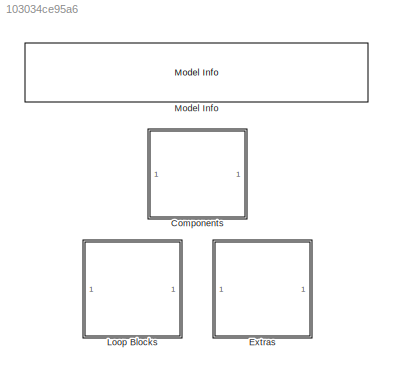
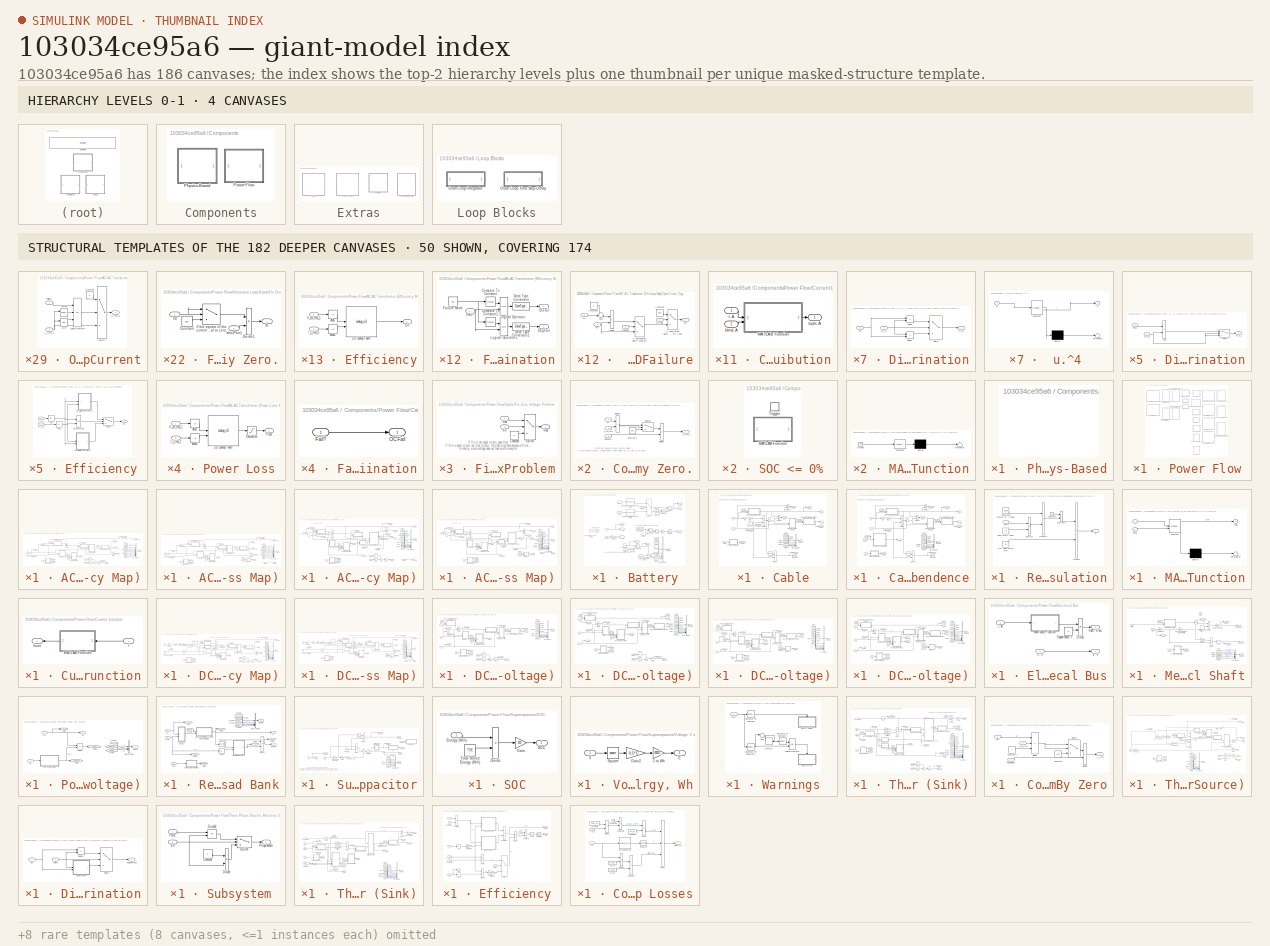
[diagram: thumbnail index - top-2 hierarchy levels (4 canvases) + 50 structural-template representatives of the remaining 182 canvases]
MODEL slx_103034ce95a6
KIND library
CONFIG AbsTol = auto
CONFIG EnableMultiTasking = off
CONFIG FixedStep = auto
CONFIG MaxStep = auto
CONFIG MinStep = auto
CONFIG RelTol = 1e-3
CONFIG SampleTimeConstraint = Unconstrained
CONFIG SolverName = VariableStepAuto
CONFIG StartTime = 0.0
CONFIG StopTime = 10.0
BLOCK [SubSystem] Components
BLOCK [SubSystem] Components/Physics-Based
BLOCK [SubSystem] Components/Power Flow
BLOCK [SubSystem] Components/Power Flow/AC-AC Transformer (Efficiency Map)
  AttributesFormatString = AC-AC Transformer (Efficiency Map)
BLOCK [Abs] Components/Power Flow/AC-AC Transformer (Efficiency Map)/Abs
  SaturateOnIntegerOverflow = off
BLOCK [Abs] Components/Power Flow/AC-AC Transformer (Efficiency Map)/Abs2
  SaturateOnIntegerOverflow = off
BLOCK [Abs] Components/Power Flow/AC-AC Transformer (Efficiency Map)/Abs3
  SaturateOnIntegerOverflow = off
BLOCK [BusCreator] Components/Power Flow/AC-AC Transformer (Efficiency Map)/Bus Creator1
  DisplayOption = bar
  InheritFromInputs = on
  Inputs = 8
BLOCK [SubSystem] Components/Power Flow/AC-AC Transformer (Efficiency Map)/Compensate for Divide By Zero
BLOCK [SubSystem] Components/Power Flow/AC-AC Transformer (Efficiency Map)/Compensate for Divide By Zero/Fix Divide By Zero.
BLOCK [Constant] Components/Power Flow/AC-AC Transformer (Efficiency Map)/Compensate for Divide By Zero/Fix Divide By Zero./Constant1
  SampleTime = -1
  Value = eps
BLOCK [Product] Components/Power Flow/AC-AC Transformer (Efficiency Map)/Compensate for Divide By Zero/Fix Divide By Zero./Divide1
  Inputs = /*
BLOCK [Outport] Components/Power Flow/AC-AC Transformer (Efficiency Map)/Compensate for Divide By Zero/Fix Divide By Zero./I_L_rms_1
BLOCK [Inport] Components/Power Flow/AC-AC Transformer (Efficiency Map)/Compensate for Divide By Zero/Fix Divide By Zero./P_AC_1
  Port = 2
BLOCK [Switch] Components/Power Flow/AC-AC Transformer (Efficiency Map)/Compensate for Divide By Zero/Fix Divide By Zero./Switch1
  Criteria = u2 ~= 0
  InputSameDT = off
  SaturateOnIntegerOverflow = off
BLOCK [Inport] Components/Power Flow/AC-AC Transformer (Efficiency Map)/Compensate for Divide By Zero/Fix Divide By Zero./V_LN_rms_1
BLOCK [Outport] Components/Power Flow/AC-AC Transformer (Efficiency Map)/Compensate for Divide By Zero/I_L_rms_1
BLOCK [Inport] Components/Power Flow/AC-AC Transformer (Efficiency Map)/Compensate for Divide By Zero/P_AC_1
BLOCK [Inport] Components/Power Flow/AC-AC Transformer (Efficiency Map)/Compensate for Divide By Zero/V_LN_rms_1
  Port = 2
BLOCK [SubSystem] Components/Power Flow/AC-AC Transformer (Efficiency Map)/Direction Determination
BLOCK [Product] Components/Power Flow/AC-AC Transformer (Efficiency Map)/Direction Determination/Divide
  Inputs = /*
BLOCK [Product] Components/Power Flow/AC-AC Transformer (Efficiency Map)/Direction Determination/Divide1
  Inputs = **
BLOCK [Inport] Components/Power Flow/AC-AC Transformer (Efficiency Map)/Direction Determination/Eff
  Port = 2
BLOCK [Outport] Components/Power Flow/AC-AC Transformer (Efficiency Map)/Direction Determination/P_AC_1
BLOCK [Inport] Components/Power Flow/AC-AC Transformer (Efficiency Map)/Direction Determination/P_AC_2
BLOCK [Switch] Components/Power Flow/AC-AC Transformer (Efficiency Map)/Direction Determination/Switch
  Criteria = u2 > Threshold
  InputSameDT = off
  SaturateOnIntegerOverflow = off
BLOCK [Product] Components/Power Flow/AC-AC Transformer (Efficiency Map)/Divide1
  Inputs = **
BLOCK [Product] Components/Power Flow/AC-AC Transformer (Efficiency Map)/Divide3
  Inputs = **
BLOCK [SubSystem] Components/Power Flow/AC-AC Transformer (Efficiency Map)/Efficiency
BLOCK [Lookup_n-D] Components/Power Flow/AC-AC Transformer (Efficiency Map)/Efficiency/2-D Lookup Table
  BreakpointsForDimension1 = X_C_VoltageAC1Vec_M
  BreakpointsForDimension2 = Y_C_CurrentAC2Vec_M
  ExtrapMethod = Clip
  InputPortMap = u0,u1
  InternalRulePriority = Speed
  RndMeth = Simplest
  Table = T_C_EffArray_M
  UseLastTableValue = on
BLOCK [Abs] Components/Power Flow/AC-AC Transformer (Efficiency Map)/Efficiency/Abs
  SaturateOnIntegerOverflow = off
BLOCK [Abs] Components/Power Flow/AC-AC Transformer (Efficiency Map)/Efficiency/Abs1
  SaturateOnIntegerOverflow = off
BLOCK [Outport] Components/Power Flow/AC-AC Transformer (Efficiency Map)/Efficiency/Eff
BLOCK [Inport] Components/Power Flow/AC-AC Transformer (Efficiency Map)/Efficiency/I_L_rms_2
  Port = 2
BLOCK [Inport] Components/Power Flow/AC-AC Transformer (Efficiency Map)/Efficiency/V_LN_rms_1
BLOCK [Inport] Components/Power Flow/AC-AC Transformer (Efficiency Map)/Fail?
  Port = 3
BLOCK [SubSystem] Components/Power Flow/AC-AC Transformer (Efficiency Map)/Failure Determination
BLOCK [Reference] Components/Power Flow/AC-AC Transformer (Efficiency Map)/Failure Determination/Compare To Constant  REF=simulink/Logic and Bit
Operations/Compare
To Constant
  SourceBlock = simulink/Logic and Bit\nOperations/Compare\nTo Constant
  SourceType = Compare To Constant
BLOCK [Reference] Components/Power Flow/AC-AC Transformer (Efficiency Map)/Failure Determination/Compare To Constant1  REF=simulink/Logic and Bit
Operations/Compare
To Constant
  SourceBlock = simulink/Logic and Bit\nOperations/Compare\nTo Constant
  SourceType = Compare To Constant
BLOCK [DataTypeConversion] Components/Power Flow/AC-AC Transformer (Efficiency Map)/Failure Determination/Data Type Conversion
  OutDataTypeStr = double
  RndMeth = Floor
  SaturateOnIntegerOverflow = off
BLOCK [DataTypeConversion] Components/Power Flow/AC-AC Transformer (Efficiency Map)/Failure Determination/Data Type Conversion1
  OutDataTypeStr = double
  RndMeth = Floor
  SaturateOnIntegerOverflow = off
BLOCK [Outport] Components/Power Flow/AC-AC Transformer (Efficiency Map)/Failure Determination/DegFail
  Port = 2
BLOCK [Inport] Components/Power Flow/AC-AC Transformer (Efficiency Map)/Failure Determination/Fail?
BLOCK [Constant] Components/Power Flow/AC-AC Transformer (Efficiency Map)/Failure Determination/Failure Mode
  Value = FM
BLOCK [Logic] Components/Power Flow/AC-AC Transformer (Efficiency Map)/Failure Determination/Logical Operator
  AllPortsSameDT = off
  OutDataTypeStr = boolean
BLOCK [Logic] Components/Power Flow/AC-AC Transformer (Efficiency Map)/Failure Determination/Logical Operator1
  AllPortsSameDT = off
  OutDataTypeStr = boolean
BLOCK [Outport] Components/Power Flow/AC-AC Transformer (Efficiency Map)/Failure Determination/OCFail
BLOCK [From] Components/Power Flow/AC-AC Transformer (Efficiency Map)/From
  GotoTag = P_AC_2
BLOCK [From] Components/Power Flow/AC-AC Transformer (Efficiency Map)/From1
  GotoTag = P_AC_1
BLOCK [From] Components/Power Flow/AC-AC Transformer (Efficiency Map)/From10
  GotoTag = V_LN_rms_2
BLOCK [From] Components/Power Flow/AC-AC Transformer (Efficiency Map)/From11
  GotoTag = I_L_rms_2
BLOCK [From] Components/Power Flow/AC-AC Transformer (Efficiency Map)/From12
  GotoTag = Eff
BLOCK [From] Components/Power Flow/AC-AC Transformer (Efficiency Map)/From13
  GotoTag = OCFail
BLOCK [From] Components/Power Flow/AC-AC Transformer (Efficiency Map)/From14
  GotoTag = DegFail
BLOCK [From] Components/Power Flow/AC-AC Transformer (Efficiency Map)/From2
  GotoTag = OCFail
BLOCK [From] Components/Power Flow/AC-AC Transformer (Efficiency Map)/From3
  GotoTag = OCFail
BLOCK [From] Components/Power Flow/AC-AC Transformer (Efficiency Map)/From4
  GotoTag = I_L_rms_1
BLOCK [From] Components/Power Flow/AC-AC Transformer (Efficiency Map)/From5
  GotoTag = P_AC_2
BLOCK [From] Components/Power Flow/AC-AC Transformer (Efficiency Map)/From6
  GotoTag = Ploss
BLOCK [From] Components/Power Flow/AC-AC Transformer (Efficiency Map)/From7
  GotoTag = V_LN_rms_1
BLOCK [From] Components/Power Flow/AC-AC Transformer (Efficiency Map)/From8
  GotoTag = P_AC_1
BLOCK [Goto] Components/Power Flow/AC-AC Transformer (Efficiency Map)/Goto
  GotoTag = P_AC_1
BLOCK [Goto] Components/Power Flow/AC-AC Transformer (Efficiency Map)/Goto1
  GotoTag = P_AC_2
BLOCK [Goto] Components/Power Flow/AC-AC Transformer (Efficiency Map)/Goto10
  GotoTag = DegFail
BLOCK [Goto] Components/Power Flow/AC-AC Transformer (Efficiency Map)/Goto2
  GotoTag = Eff
BLOCK [Goto] Components/Power Flow/AC-AC Transformer (Efficiency Map)/Goto3
  GotoTag = V_LN_rms_1
BLOCK [Goto] Components/Power Flow/AC-AC Transformer (Efficiency Map)/Goto4
  GotoTag = I_L_rms_2
BLOCK [Goto] Components/Power Flow/AC-AC Transformer (Efficiency Map)/Goto5
  GotoTag = I_L_rms_1
BLOCK [Goto] Components/Power Flow/AC-AC Transformer (Efficiency Map)/Goto7
  GotoTag = OCFail
BLOCK [Goto] Components/Power Flow/AC-AC Transformer (Efficiency Map)/Goto8
  GotoTag = V_LN_rms_2
BLOCK [Goto] Components/Power Flow/AC-AC Transformer (Efficiency Map)/Goto9
  GotoTag = Ploss
BLOCK [Inport] Components/Power Flow/AC-AC Transformer (Efficiency Map)/HP
  Port = 4
BLOCK [Outport] Components/Power Flow/AC-AC Transformer (Efficiency Map)/I_L_rms_1, Arms
  Port = 4
BLOCK [Inport] Components/Power Flow/AC-AC Transformer (Efficiency Map)/I_L_rms_2, Arms
  Port = 2
BLOCK [SubSystem] Components/Power Flow/AC-AC Transformer (Efficiency Map)/Open Circuit Failure - DC Current
BLOCK [Constant] Components/Power Flow/AC-AC Transformer (Efficiency Map)/Open Circuit Failure - DC Current/Constant
  Value = 0
BLOCK [Inport] Components/Power Flow/AC-AC Transformer (Efficiency Map)/Open Circuit Failure - DC Current/Failed?
BLOCK [Inport] Components/Power Flow/AC-AC Transformer (Efficiency Map)/Open Circuit Failure - DC Current/I_L_rms_1
  Port = 2
BLOCK [Outport] Components/Power Flow/AC-AC Transformer (Efficiency Map)/Open Circuit Failure - DC Current/I_L_rms_1 
BLOCK [RelationalOperator] Components/Power Flow/AC-AC Transformer (Efficiency Map)/Open Circuit Failure - DC Current/IsInf
  InputSameDT = off
  Operator = isInf
  OutDataTypeStr = boolean
  RndMeth = Simplest
BLOCK [RelationalOperator] Components/Power Flow/AC-AC Transformer (Efficiency Map)/Open Circuit Failure - DC Current/IsNaN
  InputSameDT = off
  Operator = isNaN
  OutDataTypeStr = boolean
  RndMeth = Simplest
BLOCK [Logic] Components/Power Flow/AC-AC Transformer (Efficiency Map)/Open Circuit Failure - DC Current/Logical Operator
  AllPortsSameDT = off
  Inputs = 3
  Operator = OR
  OutDataTypeStr = boolean
BLOCK [Switch] Components/Power Flow/AC-AC Transformer (Efficiency Map)/Open Circuit Failure - DC Current/Switch
  Criteria = u2 > Threshold
  InputSameDT = off
  SaturateOnIntegerOverflow = off
BLOCK [SubSystem] Components/Power Flow/AC-AC Transformer (Efficiency Map)/Open Circuit Failure - Line to Neutral Voltage
  NameLocation = top
BLOCK [Constant] Components/Power Flow/AC-AC Transformer (Efficiency Map)/Open Circuit Failure - Line to Neutral Voltage/Constant
  Value = 0
BLOCK [Inport] Components/Power Flow/AC-AC Transformer (Efficiency Map)/Open Circuit Failure - Line to Neutral Voltage/Failed?
BLOCK [RelationalOperator] Components/Power Flow/AC-AC Transformer (Efficiency Map)/Open Circuit Failure - Line to Neutral Voltage/IsInf
  InputSameDT = off
  Operator = isInf
  OutDataTypeStr = boolean
  RndMeth = Simplest
BLOCK [RelationalOperator] Components/Power Flow/AC-AC Transformer (Efficiency Map)/Open Circuit Failure - Line to Neutral Voltage/IsNaN
  InputSameDT = off
  Operator = isNaN
  OutDataTypeStr = boolean
  RndMeth = Simplest
BLOCK [Logic] Components/Power Flow/AC-AC Transformer (Efficiency Map)/Open Circuit Failure - Line to Neutral Voltage/Logical Operator
  AllPortsSameDT = off
  Inputs = 3
  Operator = OR
  OutDataTypeStr = boolean
BLOCK [Switch] Components/Power Flow/AC-AC Transformer (Efficiency Map)/Open Circuit Failure - Line to Neutral Voltage/Switch
  Criteria = u2 > Threshold
  InputSameDT = off
  SaturateOnIntegerOverflow = off
BLOCK [Inport] Components/Power Flow/AC-AC Transformer (Efficiency Map)/Open Circuit Failure - Line to Neutral Voltage/V_LN_rms_2
  Port = 2
BLOCK [Outport] Components/Power Flow/AC-AC Transformer (Efficiency Map)/Open Circuit Failure - Line to Neutral Voltage/V_LN_rms_2 
BLOCK [SubSystem] Components/Power Flow/AC-AC Transformer (Efficiency Map)/Open Circuit// Degradation Failure
BLOCK [Constant] Components/Power Flow/AC-AC Transformer (Efficiency Map)/Open Circuit// Degradation Failure/Constant
  Value = eps
BLOCK [Constant] Components/Power Flow/AC-AC Transformer (Efficiency Map)/Open Circuit// Degradation Failure/Constant1
BLOCK [Inport] Components/Power Flow/AC-AC Transformer (Efficiency Map)/Open Circuit// Degradation Failure/DegFail?
  Port = 2
BLOCK [Product] Components/Power Flow/AC-AC Transformer (Efficiency Map)/Open Circuit// Degradation Failure/Divide
  Inputs = **
BLOCK [Inport] Components/Power Flow/AC-AC Transformer (Efficiency Map)/Open Circuit// Degradation Failure/Eff
BLOCK [Outport] Components/Power Flow/AC-AC Transformer (Efficiency Map)/Open Circuit// Degradation Failure/Eff 
BLOCK [Inport] Components/Power Flow/AC-AC Transformer (Efficiency Map)/Open Circuit// Degradation Failure/HP
  Port = 4
BLOCK [Switch] Components/Power Flow/AC-AC Transformer (Efficiency Map)/Open Circuit// Degradation Failure/If degradation failure, scale Eff.
  Criteria = u2 > Threshold
  InputSameDT = off
  SaturateOnIntegerOverflow = off
BLOCK [Switch] Components/Power Flow/AC-AC Transformer (Efficiency Map)/Open Circuit// Degradation Failure/If open circuit failure, set Eff = eps.
  Criteria = u2 > Threshold
  InputSameDT = off
  SaturateOnIntegerOverflow = off
BLOCK [Inport] Components/Power Flow/AC-AC Transformer (Efficiency Map)/Open Circuit// Degradation Failure/OCFail?
  Port = 3
BLOCK [Sum] Components/Power Flow/AC-AC Transformer (Efficiency Map)/Open Circuit// Degradation Failure/Sum
  Inputs = +-|
BLOCK [Outport] Components/Power Flow/AC-AC Transformer (Efficiency Map)/Outputs
  Port = 2
BLOCK [Outport] Components/Power Flow/AC-AC Transformer (Efficiency Map)/Ploss, W
  Port = 3
BLOCK [Sum] Components/Power Flow/AC-AC Transformer (Efficiency Map)/Sum
  Inputs = +-|
BLOCK [Gain] Components/Power Flow/AC-AC Transformer (Efficiency Map)/Transformer Ratio
  Gain = K
BLOCK [Inport] Components/Power Flow/AC-AC Transformer (Efficiency Map)/V_LN_rms_1, Vrms
BLOCK [Outport] Components/Power Flow/AC-AC Transformer (Efficiency Map)/V_LN_rms_2, Vrms
BLOCK [SubSystem] Components/Power Flow/AC-AC Transformer (Power Loss Map)
  AttributesFormatString = AC-AC Transformer (Power Loss Map)
BLOCK [BusCreator] Components/Power Flow/AC-AC Transformer (Power Loss Map)/Bus Creator1
  DisplayOption = bar
  InheritFromInputs = on
  Inputs = 8
BLOCK [SubSystem] Components/Power Flow/AC-AC Transformer (Power Loss Map)/Compensate for Divide By Zero
BLOCK [SubSystem] Components/Power Flow/AC-AC Transformer (Power Loss Map)/Compensate for Divide By Zero/Fix Divide By Zero.
BLOCK [Constant] Components/Power Flow/AC-AC Transformer (Power Loss Map)/Compensate for Divide By Zero/Fix Divide By Zero./Constant1
  SampleTime = -1
  Value = eps
BLOCK [Product] Components/Power Flow/AC-AC Transformer (Power Loss Map)/Compensate for Divide By Zero/Fix Divide By Zero./Divide1
  Inputs = /*
BLOCK [Outport] Components/Power Flow/AC-AC Transformer (Power Loss Map)/Compensate for Divide By Zero/Fix Divide By Zero./I_L_rms_1
BLOCK [Inport] Components/Power Flow/AC-AC Transformer (Power Loss Map)/Compensate for Divide By Zero/Fix Divide By Zero./P_AC_1
  Port = 2
BLOCK [Switch] Components/Power Flow/AC-AC Transformer (Power Loss Map)/Compensate for Divide By Zero/Fix Divide By Zero./Switch1
  Criteria = u2 ~= 0
  InputSameDT = off
  SaturateOnIntegerOverflow = off
BLOCK [Inport] Components/Power Flow/AC-AC Transformer (Power Loss Map)/Compensate for Divide By Zero/Fix Divide By Zero./V_LN_rms_1
BLOCK [Outport] Components/Power Flow/AC-AC Transformer (Power Loss Map)/Compensate for Divide By Zero/I_L_rms_1
BLOCK [Inport] Components/Power Flow/AC-AC Transformer (Power Loss Map)/Compensate for Divide By Zero/P_AC_1
BLOCK [Inport] Components/Power Flow/AC-AC Transformer (Power Loss Map)/Compensate for Divide By Zero/V_LN_rms_1
  Port = 2
BLOCK [SubSystem] Components/Power Flow/AC-AC Transformer (Power Loss Map)/Direction Determination
BLOCK [Sum] Components/Power Flow/AC-AC Transformer (Power Loss Map)/Direction Determination/Add1
  IconShape = rectangular
BLOCK [Outport] Components/Power Flow/AC-AC Transformer (Power Loss Map)/Direction Determination/P_AC_1
BLOCK [Inport] Components/Power Flow/AC-AC Transformer (Power Loss Map)/Direction Determination/P_AC_2
BLOCK [Inport] Components/Power Flow/AC-AC Transformer (Power Loss Map)/Direction Determination/Ploss
  Port = 2
BLOCK [Switch] Components/Power Flow/AC-AC Transformer (Power Loss Map)/Direction Determination/Switch
  Criteria = u2 ~= 0
  InputSameDT = off
  SaturateOnIntegerOverflow = off
BLOCK [Product] Components/Power Flow/AC-AC Transformer (Power Loss Map)/Divide1
  Inputs = **
BLOCK [Product] Components/Power Flow/AC-AC Transformer (Power Loss Map)/Divide3
  Inputs = **
BLOCK [SubSystem] Components/Power Flow/AC-AC Transformer (Power Loss Map)/Efficiency
BLOCK [Abs] Components/Power Flow/AC-AC Transformer (Power Loss Map)/Efficiency/Abs
  SaturateOnIntegerOverflow = off
BLOCK [Abs] Components/Power Flow/AC-AC Transformer (Power Loss Map)/Efficiency/Abs1
  SaturateOnIntegerOverflow = off
BLOCK [Outport] Components/Power Flow/AC-AC Transformer (Power Loss Map)/Efficiency/Eff
BLOCK [SubSystem] Components/Power Flow/AC-AC Transformer (Power Loss Map)/Efficiency/Fix Divide By Zero.
BLOCK [Constant] Components/Power Flow/AC-AC Transformer (Power Loss Map)/Efficiency/Fix Divide By Zero./Constant1
  SampleTime = -1
  Value = eps
BLOCK [Product] Components/Power Flow/AC-AC Transformer (Power Loss Map)/Efficiency/Fix Divide By Zero./Divide1
  Inputs = /*
BLOCK [Outport] Components/Power Flow/AC-AC Transformer (Power Loss Map)/Efficiency/Fix Divide By Zero./Eff
BLOCK [Switch] Components/Power Flow/AC-AC Transformer (Power Loss Map)/Efficiency/Fix Divide By Zero./Switch1
  Criteria = u2 ~= 0
  InputSameDT = off
  SaturateOnIntegerOverflow = off
BLOCK [Inport] Components/Power Flow/AC-AC Transformer (Power Loss Map)/Efficiency/Fix Divide By Zero./abs(P_AC_1)
  Port = 2
BLOCK [Inport] Components/Power Flow/AC-AC Transformer (Power Loss Map)/Efficiency/Fix Divide By Zero./abs(P_AC_2)
BLOCK [SubSystem] Components/Power Flow/AC-AC Transformer (Power Loss Map)/Efficiency/Fix Divide By Zero.1
BLOCK [Constant] Components/Power Flow/AC-AC Transformer (Power Loss Map)/Efficiency/Fix Divide By Zero.1/Constant1
  SampleTime = -1
  Value = eps
BLOCK [Product] Components/Power Flow/AC-AC Transformer (Power Loss Map)/Efficiency/Fix Divide By Zero.1/Divide1
  Inputs = /*
BLOCK [Outport] Components/Power Flow/AC-AC Transformer (Power Loss Map)/Efficiency/Fix Divide By Zero.1/Eff
BLOCK [Switch] Components/Power Flow/AC-AC Transformer (Power Loss Map)/Efficiency/Fix Divide By Zero.1/Switch1
  Criteria = u2 ~= 0
  InputSameDT = off
  SaturateOnIntegerOverflow = off
BLOCK [Inport] Components/Power Flow/AC-AC Transformer (Power Loss Map)/Efficiency/Fix Divide By Zero.1/abs(P_AC_1)
BLOCK [Inport] Components/Power Flow/AC-AC Transformer (Power Loss Map)/Efficiency/Fix Divide By Zero.1/abs(P_AC_2)
  Port = 2
BLOCK [RelationalOperator] Components/Power Flow/AC-AC Transformer (Power Loss Map)/Efficiency/GreaterThan
  InputSameDT = off
  OutDataTypeStr = boolean
  RndMeth = Simplest
BLOCK [Inport] Components/Power Flow/AC-AC Transformer (Power Loss Map)/Efficiency/P_AC_1
  Port = 2
BLOCK [Inport] Components/Power Flow/AC-AC Transformer (Power Loss Map)/Efficiency/P_AC_2
BLOCK [Switch] Components/Power Flow/AC-AC Transformer (Power Loss Map)/Efficiency/Switch
  Criteria = u2 > Threshold
  InputSameDT = off
  SaturateOnIntegerOverflow = off
BLOCK [Inport] Components/Power Flow/AC-AC Transformer (Power Loss Map)/Fail?
  Port = 3
BLOCK [SubSystem] Components/Power Flow/AC-AC Transformer (Power Loss Map)/Failure Determination
BLOCK [Reference] Components/Power Flow/AC-AC Transformer (Power Loss Map)/Failure Determination/Compare To Constant  REF=simulink/Logic and Bit
Operations/Compare
To Constant
  SourceBlock = simulink/Logic and Bit\nOperations/Compare\nTo Constant
  SourceType = Compare To Constant
BLOCK [Reference] Components/Power Flow/AC-AC Transformer (Power Loss Map)/Failure Determination/Compare To Constant1  REF=simulink/Logic and Bit
Operations/Compare
To Constant
  SourceBlock = simulink/Logic and Bit\nOperations/Compare\nTo Constant
  SourceType = Compare To Constant
BLOCK [DataTypeConversion] Components/Power Flow/AC-AC Transformer (Power Loss Map)/Failure Determination/Data Type Conversion
  OutDataTypeStr = double
  RndMeth = Floor
  SaturateOnIntegerOverflow = off
BLOCK [DataTypeConversion] Components/Power Flow/AC-AC Transformer (Power Loss Map)/Failure Determination/Data Type Conversion1
  OutDataTypeStr = double
  RndMeth = Floor
  SaturateOnIntegerOverflow = off
BLOCK [Outport] Components/Power Flow/AC-AC Transformer (Power Loss Map)/Failure Determination/DegFail
  Port = 2
BLOCK [Inport] Components/Power Flow/AC-AC Transformer (Power Loss Map)/Failure Determination/Fail?
BLOCK [Constant] Components/Power Flow/AC-AC Transformer (Power Loss Map)/Failure Determination/Failure Mode
  Value = FM
BLOCK [Logic] Components/Power Flow/AC-AC Transformer (Power Loss Map)/Failure Determination/Logical Operator
  AllPortsSameDT = off
  OutDataTypeStr = boolean
BLOCK [Logic] Components/Power Flow/AC-AC Transformer (Power Loss Map)/Failure Determination/Logical Operator1
  AllPortsSameDT = off
  OutDataTypeStr = boolean
BLOCK [Outport] Components/Power Flow/AC-AC Transformer (Power Loss Map)/Failure Determination/OCFail
BLOCK [From] Components/Power Flow/AC-AC Transformer (Power Loss Map)/From
  GotoTag = P_AC_2
BLOCK [From] Components/Power Flow/AC-AC Transformer (Power Loss Map)/From1
  GotoTag = P_AC_1
BLOCK [From] Components/Power Flow/AC-AC Transformer (Power Loss Map)/From10
  GotoTag = V_LN_rms_2
BLOCK [From] Components/Power Flow/AC-AC Transformer (Power Loss Map)/From11
  GotoTag = I_L_rms_2
BLOCK [From] Components/Power Flow/AC-AC Transformer (Power Loss Map)/From12
  GotoTag = Eff
BLOCK [From] Components/Power Flow/AC-AC Transformer (Power Loss Map)/From13
  GotoTag = OCFail
BLOCK [From] Components/Power Flow/AC-AC Transformer (Power Loss Map)/From14
  GotoTag = DegFail
BLOCK [From] Components/Power Flow/AC-AC Transformer (Power Loss Map)/From2
  GotoTag = OCFail
BLOCK [From] Components/Power Flow/AC-AC Transformer (Power Loss Map)/From3
  GotoTag = OCFail
BLOCK [From] Components/Power Flow/AC-AC Transformer (Power Loss Map)/From4
  GotoTag = I_L_rms_1
BLOCK [From] Components/Power Flow/AC-AC Transformer (Power Loss Map)/From5
  GotoTag = P_AC_2
BLOCK [From] Components/Power Flow/AC-AC Transformer (Power Loss Map)/From6
  GotoTag = Ploss
BLOCK [From] Components/Power Flow/AC-AC Transformer (Power Loss Map)/From7
  GotoTag = V_LN_rms_1
BLOCK [From] Components/Power Flow/AC-AC Transformer (Power Loss Map)/From8
  GotoTag = Ploss
BLOCK [From] Components/Power Flow/AC-AC Transformer (Power Loss Map)/From9
  GotoTag = P_AC_1
BLOCK [Goto] Components/Power Flow/AC-AC Transformer (Power Loss Map)/Goto
  GotoTag = P_AC_1
BLOCK [Goto] Components/Power Flow/AC-AC Transformer (Power Loss Map)/Goto1
  GotoTag = P_AC_2
BLOCK [Goto] Components/Power Flow/AC-AC Transformer (Power Loss Map)/Goto10
  GotoTag = DegFail
BLOCK [Goto] Components/Power Flow/AC-AC Transformer (Power Loss Map)/Goto2
  GotoTag = Ploss
BLOCK [Goto] Components/Power Flow/AC-AC Transformer (Power Loss Map)/Goto3
  GotoTag = V_LN_rms_1
BLOCK [Goto] Components/Power Flow/AC-AC Transformer (Power Loss Map)/Goto4
  GotoTag = I_L_rms_2
BLOCK [Goto] Components/Power Flow/AC-AC Transformer (Power Loss Map)/Goto5
  GotoTag = I_L_rms_1
BLOCK [Goto] Components/Power Flow/AC-AC Transformer (Power Loss Map)/Goto7
  GotoTag = OCFail
BLOCK [Goto] Components/Power Flow/AC-AC Transformer (Power Loss Map)/Goto8
  GotoTag = V_LN_rms_2
BLOCK [Goto] Components/Power Flow/AC-AC Transformer (Power Loss Map)/Goto9
  GotoTag = Eff
BLOCK [Inport] Components/Power Flow/AC-AC Transformer (Power Loss Map)/HP
  Port = 4
BLOCK [Outport] Components/Power Flow/AC-AC Transformer (Power Loss Map)/I_L_rms_1, Arms
  Port = 4
BLOCK [Inport] Components/Power Flow/AC-AC Transformer (Power Loss Map)/I_L_rms_2, Arms
  Port = 2
BLOCK [SubSystem] Components/Power Flow/AC-AC Transformer (Power Loss Map)/Open Circuit Failure - DC Current
BLOCK [Constant] Components/Power Flow/AC-AC Transformer (Power Loss Map)/Open Circuit Failure - DC Current/Constant
  Value = 0
BLOCK [Inport] Components/Power Flow/AC-AC Transformer (Power Loss Map)/Open Circuit Failure - DC Current/Failed?
BLOCK [Inport] Components/Power Flow/AC-AC Transformer (Power Loss Map)/Open Circuit Failure - DC Current/I_L_rms_1
  Port = 2
BLOCK [Outport] Components/Power Flow/AC-AC Transformer (Power Loss Map)/Open Circuit Failure - DC Current/I_L_rms_1 
BLOCK [RelationalOperator] Components/Power Flow/AC-AC Transformer (Power Loss Map)/Open Circuit Failure - DC Current/IsInf
  InputSameDT = off
  Operator = isInf
  OutDataTypeStr = boolean
  RndMeth = Simplest
BLOCK [RelationalOperator] Components/Power Flow/AC-AC Transformer (Power Loss Map)/Open Circuit Failure - DC Current/IsNaN
  InputSameDT = off
  Operator = isNaN
  OutDataTypeStr = boolean
  RndMeth = Simplest
BLOCK [Logic] Components/Power Flow/AC-AC Transformer (Power Loss Map)/Open Circuit Failure - DC Current/Logical Operator
  AllPortsSameDT = off
  Inputs = 3
  Operator = OR
  OutDataTypeStr = boolean
BLOCK [Switch] Components/Power Flow/AC-AC Transformer (Power Loss Map)/Open Circuit Failure - DC Current/Switch
  Criteria = u2 > Threshold
  InputSameDT = off
  SaturateOnIntegerOverflow = off
BLOCK [SubSystem] Components/Power Flow/AC-AC Transformer (Power Loss Map)/Open Circuit Failure - Line to Neutral Voltage
  NameLocation = top
BLOCK [Constant] Components/Power Flow/AC-AC Transformer (Power Loss Map)/Open Circuit Failure - Line to Neutral Voltage/Constant
  Value = 0
BLOCK [Inport] Components/Power Flow/AC-AC Transformer (Power Loss Map)/Open Circuit Failure - Line to Neutral Voltage/Failed?
BLOCK [RelationalOperator] Components/Power Flow/AC-AC Transformer (Power Loss Map)/Open Circuit Failure - Line to Neutral Voltage/IsInf
  InputSameDT = off
  Operator = isInf
  OutDataTypeStr = boolean
  RndMeth = Simplest
BLOCK [RelationalOperator] Components/Power Flow/AC-AC Transformer (Power Loss Map)/Open Circuit Failure - Line to Neutral Voltage/IsNaN
  InputSameDT = off
  Operator = isNaN
  OutDataTypeStr = boolean
  RndMeth = Simplest
BLOCK [Logic] Components/Power Flow/AC-AC Transformer (Power Loss Map)/Open Circuit Failure - Line to Neutral Voltage/Logical Operator
  AllPortsSameDT = off
  Inputs = 3
  Operator = OR
  OutDataTypeStr = boolean
BLOCK [Switch] Components/Power Flow/AC-AC Transformer (Power Loss Map)/Open Circuit Failure - Line to Neutral Voltage/Switch
  Criteria = u2 > Threshold
  InputSameDT = off
  SaturateOnIntegerOverflow = off
BLOCK [Inport] Components/Power Flow/AC-AC Transformer (Power Loss Map)/Open Circuit Failure - Line to Neutral Voltage/V_LN_rms_2
  Port = 2
BLOCK [Outport] Components/Power Flow/AC-AC Transformer (Power Loss Map)/Open Circuit Failure - Line to Neutral Voltage/V_LN_rms_2 
BLOCK [SubSystem] Components/Power Flow/AC-AC Transformer (Power Loss Map)/Open Circuit// Degradation Failure
BLOCK [Constant] Components/Power Flow/AC-AC Transformer (Power Loss Map)/Open Circuit// Degradation Failure/Constant
  Value = 0
BLOCK [Constant] Components/Power Flow/AC-AC Transformer (Power Loss Map)/Open Circuit// Degradation Failure/Constant1
  Value = Plosslim
BLOCK [Inport] Components/Power Flow/AC-AC Transformer (Power Loss Map)/Open Circuit// Degradation Failure/DegFail?
  Port = 2
BLOCK [Product] Components/Power Flow/AC-AC Transformer (Power Loss Map)/Open Circuit// Degradation Failure/Divide
  Inputs = **
BLOCK [Inport] Components/Power Flow/AC-AC Transformer (Power Loss Map)/Open Circuit// Degradation Failure/HP
  Port = 4
BLOCK [Switch] Components/Power Flow/AC-AC Transformer (Power Loss Map)/Open Circuit// Degradation Failure/If degradation failure, add to Ploss.
  Criteria = u2 > Threshold
  InputSameDT = off
  SaturateOnIntegerOverflow = off
BLOCK [Switch] Components/Power Flow/AC-AC Transformer (Power Loss Map)/Open Circuit// Degradation Failure/If open circuit failure, set Ploss = 0.
  Criteria = u2 > Threshold
  InputSameDT = off
  SaturateOnIntegerOverflow = off
BLOCK [Inport] Components/Power Flow/AC-AC Transformer (Power Loss Map)/Open Circuit// Degradation Failure/OCFail?
  Port = 3
BLOCK [Inport] Components/Power Flow/AC-AC Transformer (Power Loss Map)/Open Circuit// Degradation Failure/Ploss
BLOCK [Outport] Components/Power Flow/AC-AC Transformer (Power Loss Map)/Open Circuit// Degradation Failure/Ploss 
BLOCK [Sum] Components/Power Flow/AC-AC Transformer (Power Loss Map)/Open Circuit// Degradation Failure/Sum1
  Inputs = ++|
BLOCK [Outport] Components/Power Flow/AC-AC Transformer (Power Loss Map)/Outputs
  Port = 2
BLOCK [Outport] Components/Power Flow/AC-AC Transformer (Power Loss Map)/Ploss, W
  Port = 3
BLOCK [SubSystem] Components/Power Flow/AC-AC Transformer (Power Loss Map)/Power Loss
BLOCK [Lookup_n-D] Components/Power Flow/AC-AC Transformer (Power Loss Map)/Power Loss/2-D Lookup Table
  BreakpointsForDimension1 = X_C_VoltageAC1Vec_M
  BreakpointsForDimension2 = Y_C_CurrentAC2Vec_M
  ExtrapMethod = Clip
  InputPortMap = u0,u1
  InternalRulePriority = Speed
  RndMeth = Simplest
  Table = T_C_PowLossArray_M
  UseLastTableValue = on
BLOCK [Abs] Components/Power Flow/AC-AC Transformer (Power Loss Map)/Power Loss/Abs
  SaturateOnIntegerOverflow = off
BLOCK [Abs] Components/Power Flow/AC-AC Transformer (Power Loss Map)/Power Loss/Abs1
  SaturateOnIntegerOverflow = off
BLOCK [Inport] Components/Power Flow/AC-AC Transformer (Power Loss Map)/Power Loss/I_L_rms_2
  Port = 2
BLOCK [Outport] Components/Power Flow/AC-AC Transformer (Power Loss Map)/Power Loss/Ploss
BLOCK [Saturate] Components/Power Flow/AC-AC Transformer (Power Loss Map)/Power Loss/Saturation
  LowerLimit = 0
  UpperLimit = inf
BLOCK [Inport] Components/Power Flow/AC-AC Transformer (Power Loss Map)/Power Loss/V_LN_rms_1
BLOCK [Gain] Components/Power Flow/AC-AC Transformer (Power Loss Map)/Transformer Ratio
  Gain = K
BLOCK [Inport] Components/Power Flow/AC-AC Transformer (Power Loss Map)/V_LN_rms_1, Vrms
BLOCK [Outport] Components/Power Flow/AC-AC Transformer (Power Loss Map)/V_LN_rms_2, Vrms
BLOCK [SubSystem] Components/Power Flow/AC-DC Rectifier (Efficiency Map)
  AttributesFormatString = AC-DC Rectifier (Efficiency Map)
BLOCK [Abs] Components/Power Flow/AC-DC Rectifier (Efficiency Map)/Abs
  SaturateOnIntegerOverflow = off
BLOCK [Abs] Components/Power Flow/AC-DC Rectifier (Efficiency Map)/Abs2
  SaturateOnIntegerOverflow = off
BLOCK [Abs] Components/Power Flow/AC-DC Rectifier (Efficiency Map)/Abs3
  SaturateOnIntegerOverflow = off
BLOCK [BusCreator] Components/Power Flow/AC-DC Rectifier (Efficiency Map)/Bus Creator1
  DisplayOption = bar
  InheritFromInputs = on
  Inputs = 11
BLOCK [SubSystem] Components/Power Flow/AC-DC Rectifier (Efficiency Map)/Compensate for Divide By Zero.
BLOCK [Constant] Components/Power Flow/AC-DC Rectifier (Efficiency Map)/Compensate for Divide By Zero./Constant1
  Value = eps
BLOCK [Product] Components/Power Flow/AC-DC Rectifier (Efficiency Map)/Compensate for Divide By Zero./Divide1
  Inputs = /*
BLOCK [Product] Components/Power Flow/AC-DC Rectifier (Efficiency Map)/Compensate for Divide By Zero./Divide2
  Inputs = **
BLOCK [Outport] Components/Power Flow/AC-DC Rectifier (Efficiency Map)/Compensate for Divide By Zero./I_L_rms
BLOCK [Inport] Components/Power Flow/AC-DC Rectifier (Efficiency Map)/Compensate for Divide By Zero./PEquivAC
BLOCK [Inport] Components/Power Flow/AC-DC Rectifier (Efficiency Map)/Compensate for Divide By Zero./PF
  Port = 3
BLOCK [Switch] Components/Power Flow/AC-DC Rectifier (Efficiency Map)/Compensate for Divide By Zero./Switch1
  Criteria = u2 ~= 0
  InputSameDT = off
  SaturateOnIntegerOverflow = off
BLOCK [Inport] Components/Power Flow/AC-DC Rectifier (Efficiency Map)/Compensate for Divide By Zero./V_LN_rms
  Port = 2
BLOCK [SubSystem] Components/Power Flow/AC-DC Rectifier (Efficiency Map)/Direction Determination
BLOCK [Product] Components/Power Flow/AC-DC Rectifier (Efficiency Map)/Direction Determination/Divide
  Inputs = **
BLOCK [Product] Components/Power Flow/AC-DC Rectifier (Efficiency Map)/Direction Determination/Divide1
  Inputs = */
BLOCK [Inport] Components/Power Flow/AC-DC Rectifier (Efficiency Map)/Direction Determination/Eff
  Port = 2
BLOCK [Outport] Components/Power Flow/AC-DC Rectifier (Efficiency Map)/Direction Determination/PEquivAC
BLOCK [Inport] Components/Power Flow/AC-DC Rectifier (Efficiency Map)/Direction Determination/P_DC
BLOCK [Switch] Components/Power Flow/AC-DC Rectifier (Efficiency Map)/Direction Determination/Switch
  Criteria = u2 > Threshold
  InputSameDT = off
  SaturateOnIntegerOverflow = off
BLOCK [Product] Components/Power Flow/AC-DC Rectifier (Efficiency Map)/Divide1
  Inputs = **
BLOCK [Product] Components/Power Flow/AC-DC Rectifier (Efficiency Map)/Divide3
  Inputs = **
BLOCK [SubSystem] Components/Power Flow/AC-DC Rectifier (Efficiency Map)/Efficiency
BLOCK [Lookup_n-D] Components/Power Flow/AC-DC Rectifier (Efficiency Map)/Efficiency/2-D Lookup Table
  BreakpointsForDimension1 = X_C_VoltageInVec_M
  BreakpointsForDimension2 = Y_C_RMSCurrentOutVec_M
  ExtrapMethod = Clip
  InputPortMap = u0,u1
  InternalRulePriority = Speed
  RndMeth = Simplest
  Table = T_C_EffArray_M
  UseLastTableValue = on
BLOCK [Abs] Components/Power Flow/AC-DC Rectifier (Efficiency Map)/Efficiency/Abs
  SaturateOnIntegerOverflow = off
BLOCK [Abs] Components/Power Flow/AC-DC Rectifier (Efficiency Map)/Efficiency/Abs1
  SaturateOnIntegerOverflow = off
BLOCK [Outport] Components/Power Flow/AC-DC Rectifier (Efficiency Map)/Efficiency/Eff
BLOCK [Inport] Components/Power Flow/AC-DC Rectifier (Efficiency Map)/Efficiency/I_L_rms
  Port = 2
BLOCK [Inport] Components/Power Flow/AC-DC Rectifier (Efficiency Map)/Efficiency/V_DC
BLOCK [Inport] Components/Power Flow/AC-DC Rectifier (Efficiency Map)/Fail?
  Port = 3
BLOCK [SubSystem] Components/Power Flow/AC-DC Rectifier (Efficiency Map)/Failure Determination
BLOCK [Reference] Components/Power Flow/AC-DC Rectifier (Efficiency Map)/Failure Determination/Compare To Constant  REF=simulink/Logic and Bit
Operations/Compare
To Constant
  SourceBlock = simulink/Logic and Bit\nOperations/Compare\nTo Constant
  SourceType = Compare To Constant
BLOCK [Reference] Components/Power Flow/AC-DC Rectifier (Efficiency Map)/Failure Determination/Compare To Constant1  REF=simulink/Logic and Bit
Operations/Compare
To Constant
  SourceBlock = simulink/Logic and Bit\nOperations/Compare\nTo Constant
  SourceType = Compare To Constant
BLOCK [DataTypeConversion] Components/Power Flow/AC-DC Rectifier (Efficiency Map)/Failure Determination/Data Type Conversion
  OutDataTypeStr = double
  RndMeth = Floor
  SaturateOnIntegerOverflow = off
BLOCK [DataTypeConversion] Components/Power Flow/AC-DC Rectifier (Efficiency Map)/Failure Determination/Data Type Conversion1
  OutDataTypeStr = double
  RndMeth = Floor
  SaturateOnIntegerOverflow = off
BLOCK [Outport] Components/Power Flow/AC-DC Rectifier (Efficiency Map)/Failure Determination/DegFail
  Port = 2
BLOCK [Inport] Components/Power Flow/AC-DC Rectifier (Efficiency Map)/Failure Determination/Fail?
BLOCK [Constant] Components/Power Flow/AC-DC Rectifier (Efficiency Map)/Failure Determination/Failure Mode
  Value = FM
BLOCK [Logic] Components/Power Flow/AC-DC Rectifier (Efficiency Map)/Failure Determination/Logical Operator
  AllPortsSameDT = off
  OutDataTypeStr = boolean
BLOCK [Logic] Components/Power Flow/AC-DC Rectifier (Efficiency Map)/Failure Determination/Logical Operator1
  AllPortsSameDT = off
  OutDataTypeStr = boolean
BLOCK [Outport] Components/Power Flow/AC-DC Rectifier (Efficiency Map)/Failure Determination/OCFail
BLOCK [From] Components/Power Flow/AC-DC Rectifier (Efficiency Map)/From
  GotoTag = P_AC
BLOCK [From] Components/Power Flow/AC-DC Rectifier (Efficiency Map)/From1
  GotoTag = P_DC
BLOCK [From] Components/Power Flow/AC-DC Rectifier (Efficiency Map)/From10
  GotoTag = V_LN_rms
BLOCK [From] Components/Power Flow/AC-DC Rectifier (Efficiency Map)/From11
  GotoTag = I_L_rms
BLOCK [From] Components/Power Flow/AC-DC Rectifier (Efficiency Map)/From12
  GotoTag = Eff
BLOCK [From] Components/Power Flow/AC-DC Rectifier (Efficiency Map)/From13
  GotoTag = OCFail
BLOCK [From] Components/Power Flow/AC-DC Rectifier (Efficiency Map)/From14
  GotoTag = DegFail
BLOCK [From] Components/Power Flow/AC-DC Rectifier (Efficiency Map)/From15
  GotoTag = DegFail
BLOCK [From] Components/Power Flow/AC-DC Rectifier (Efficiency Map)/From16
  GotoTag = PF
BLOCK [From] Components/Power Flow/AC-DC Rectifier (Efficiency Map)/From2
  GotoTag = OCFail
BLOCK [From] Components/Power Flow/AC-DC Rectifier (Efficiency Map)/From3
  GotoTag = OCFail
BLOCK [From] Components/Power Flow/AC-DC Rectifier (Efficiency Map)/From4
  GotoTag = I_DC
BLOCK [From] Components/Power Flow/AC-DC Rectifier (Efficiency Map)/From5
  GotoTag = P_AC
BLOCK [From] Components/Power Flow/AC-DC Rectifier (Efficiency Map)/From6
  GotoTag = Ploss
BLOCK [From] Components/Power Flow/AC-DC Rectifier (Efficiency Map)/From7
  GotoTag = V_DC
BLOCK [From] Components/Power Flow/AC-DC Rectifier (Efficiency Map)/From8
  GotoTag = Ploss
BLOCK [From] Components/Power Flow/AC-DC Rectifier (Efficiency Map)/From9
  GotoTag = P_DC
BLOCK [Goto] Components/Power Flow/AC-DC Rectifier (Efficiency Map)/Goto
  GotoTag = P_AC
BLOCK [Goto] Components/Power Flow/AC-DC Rectifier (Efficiency Map)/Goto1
  GotoTag = P_DC
BLOCK [Goto] Components/Power Flow/AC-DC Rectifier (Efficiency Map)/Goto10
  GotoTag = DegFail
BLOCK [Goto] Components/Power Flow/AC-DC Rectifier (Efficiency Map)/Goto2
  GotoTag = Eff
BLOCK [Goto] Components/Power Flow/AC-DC Rectifier (Efficiency Map)/Goto3
  GotoTag = V_DC
BLOCK [Goto] Components/Power Flow/AC-DC Rectifier (Efficiency Map)/Goto4
  GotoTag = I_DC
BLOCK [Goto] Components/Power Flow/AC-DC Rectifier (Efficiency Map)/Goto5
  GotoTag = I_L_rms
BLOCK [Goto] Components/Power Flow/AC-DC Rectifier (Efficiency Map)/Goto6
  GotoTag = PF
BLOCK [Goto] Components/Power Flow/AC-DC Rectifier (Efficiency Map)/Goto7
  GotoTag = OCFail
BLOCK [Goto] Components/Power Flow/AC-DC Rectifier (Efficiency Map)/Goto8
  GotoTag = V_LN_rms
BLOCK [Goto] Components/Power Flow/AC-DC Rectifier (Efficiency Map)/Goto9
  GotoTag = Ploss
BLOCK [Inport] Components/Power Flow/AC-DC Rectifier (Efficiency Map)/HP
  Port = 4
BLOCK [Inport] Components/Power Flow/AC-DC Rectifier (Efficiency Map)/I, A
  Port = 2
BLOCK [Outport] Components/Power Flow/AC-DC Rectifier (Efficiency Map)/I_L_rms(t), Arms
  Port = 5
BLOCK [Inport] Components/Power Flow/AC-DC Rectifier (Efficiency Map)/I_L_rms(t-1), Arms
  Port = 5
BLOCK [Outport] Components/Power Flow/AC-DC Rectifier (Efficiency Map)/I_L_rms, Arms
  Port = 4
BLOCK [Gain] Components/Power Flow/AC-DC Rectifier (Efficiency Map)/Instantaneous (Total) to Average Power
  Gain = 1/3
BLOCK [SubSystem] Components/Power Flow/AC-DC Rectifier (Efficiency Map)/Open Circuit Failure - DC Voltage
BLOCK [Constant] Components/Power Flow/AC-DC Rectifier (Efficiency Map)/Open Circuit Failure - DC Voltage/Constant
  Value = 0
BLOCK [Inport] Components/Power Flow/AC-DC Rectifier (Efficiency Map)/Open Circuit Failure - DC Voltage/Failed?
BLOCK [RelationalOperator] Components/Power Flow/AC-DC Rectifier (Efficiency Map)/Open Circuit Failure - DC Voltage/IsInf
  InputSameDT = off
  Operator = isInf
  OutDataTypeStr = boolean
  RndMeth = Simplest
BLOCK [RelationalOperator] Components/Power Flow/AC-DC Rectifier (Efficiency Map)/Open Circuit Failure - DC Voltage/IsNaN
  InputSameDT = off
  Operator = isNaN
  OutDataTypeStr = boolean
  RndMeth = Simplest
BLOCK [Logic] Components/Power Flow/AC-DC Rectifier (Efficiency Map)/Open Circuit Failure - DC Voltage/Logical Operator
  AllPortsSameDT = off
  Inputs = 3
  Operator = OR
  OutDataTypeStr = boolean
BLOCK [Switch] Components/Power Flow/AC-DC Rectifier (Efficiency Map)/Open Circuit Failure - DC Voltage/Switch
  Criteria = u2 > Threshold
  InputSameDT = off
  SaturateOnIntegerOverflow = off
BLOCK [Inport] Components/Power Flow/AC-DC Rectifier (Efficiency Map)/Open Circuit Failure - DC Voltage/V_DC
  Port = 2
BLOCK [Outport] Components/Power Flow/AC-DC Rectifier (Efficiency Map)/Open Circuit Failure - DC Voltage/V_DC 
BLOCK [SubSystem] Components/Power Flow/AC-DC Rectifier (Efficiency Map)/Open Circuit// Degradation Failure
BLOCK [Constant] Components/Power Flow/AC-DC Rectifier (Efficiency Map)/Open Circuit// Degradation Failure/Constant
  Value = eps
BLOCK [Constant] Components/Power Flow/AC-DC Rectifier (Efficiency Map)/Open Circuit// Degradation Failure/Constant1
BLOCK [Inport] Components/Power Flow/AC-DC Rectifier (Efficiency Map)/Open Circuit// Degradation Failure/DegFail?
  Port = 2
BLOCK [Product] Components/Power Flow/AC-DC Rectifier (Efficiency Map)/Open Circuit// Degradation Failure/Divide
  Inputs = **
BLOCK [Inport] Components/Power Flow/AC-DC Rectifier (Efficiency Map)/Open Circuit// Degradation Failure/Eff
BLOCK [Outport] Components/Power Flow/AC-DC Rectifier (Efficiency Map)/Open Circuit// Degradation Failure/Eff 
BLOCK [Inport] Components/Power Flow/AC-DC Rectifier (Efficiency Map)/Open Circuit// Degradation Failure/HP
  Port = 4
BLOCK [Switch] Components/Power Flow/AC-DC Rectifier (Efficiency Map)/Open Circuit// Degradation Failure/If degradation failure, scale Eff.
  Criteria = u2 > Threshold
  InputSameDT = off
  SaturateOnIntegerOverflow = off
BLOCK [Switch] Components/Power Flow/AC-DC Rectifier (Efficiency Map)/Open Circuit// Degradation Failure/If open circuit failure, set Eff = eps.
  Criteria = u2 > Threshold
  InputSameDT = off
  SaturateOnIntegerOverflow = off
BLOCK [Inport] Components/Power Flow/AC-DC Rectifier (Efficiency Map)/Open Circuit// Degradation Failure/OCFail?
  Port = 3
BLOCK [Sum] Components/Power Flow/AC-DC Rectifier (Efficiency Map)/Open Circuit// Degradation Failure/Sum
  Inputs = +-|
BLOCK [Outport] Components/Power Flow/AC-DC Rectifier (Efficiency Map)/Outputs
  Port = 2
BLOCK [Outport] Components/Power Flow/AC-DC Rectifier (Efficiency Map)/Ploss, W
  Port = 3
BLOCK [SubSystem] Components/Power Flow/AC-DC Rectifier (Efficiency Map)/Power Factor
BLOCK [Lookup_n-D] Components/Power Flow/AC-DC Rectifier (Efficiency Map)/Power Factor/2-D Lookup Table1
  BreakpointsForDimension1 = X_C_VoltageInVec_M
  BreakpointsForDimension2 = Y_C_RMSCurrentOutVec_M
  ExtrapMethod = Clip
  InputPortMap = u0,u1
  InternalRulePriority = Speed
  RndMeth = Simplest
  Table = T_C_PFArray_M
  UseLastTableValue = on
BLOCK [Abs] Components/Power Flow/AC-DC Rectifier (Efficiency Map)/Power Factor/Abs
  SaturateOnIntegerOverflow = off
BLOCK [Abs] Components/Power Flow/AC-DC Rectifier (Efficiency Map)/Power Factor/Abs1
  SaturateOnIntegerOverflow = off
BLOCK [Inport] Components/Power Flow/AC-DC Rectifier (Efficiency Map)/Power Factor/I_L_rms
BLOCK [Outport] Components/Power Flow/AC-DC Rectifier (Efficiency Map)/Power Factor/PF
BLOCK [Inport] Components/Power Flow/AC-DC Rectifier (Efficiency Map)/Power Factor/V_DC
  Port = 2
BLOCK [Sum] Components/Power Flow/AC-DC Rectifier (Efficiency Map)/Sum
  Inputs = +-|
BLOCK [Outport] Components/Power Flow/AC-DC Rectifier (Efficiency Map)/V, V 
BLOCK [Inport] Components/Power Flow/AC-DC Rectifier (Efficiency Map)/V_LN_rms, Vrms
BLOCK [SubSystem] Components/Power Flow/AC-DC Rectifier (Power Loss Map)
  AttributesFormatString = AC-DC Rectifier (Power Loss Map)
BLOCK [BusCreator] Components/Power Flow/AC-DC Rectifier (Power Loss Map)/Bus Creator1
  DisplayOption = bar
  InheritFromInputs = on
  Inputs = 11
BLOCK [SubSystem] Components/Power Flow/AC-DC Rectifier (Power Loss Map)/Compensate for Divide By Zero.
BLOCK [Constant] Components/Power Flow/AC-DC Rectifier (Power Loss Map)/Compensate for Divide By Zero./Constant1
  Value = eps
BLOCK [Product] Components/Power Flow/AC-DC Rectifier (Power Loss Map)/Compensate for Divide By Zero./Divide1
  Inputs = /*
BLOCK [Product] Components/Power Flow/AC-DC Rectifier (Power Loss Map)/Compensate for Divide By Zero./Divide2
  Inputs = **
BLOCK [Outport] Components/Power Flow/AC-DC Rectifier (Power Loss Map)/Compensate for Divide By Zero./I_L_rms
BLOCK [Inport] Components/Power Flow/AC-DC Rectifier (Power Loss Map)/Compensate for Divide By Zero./PEquivAC
BLOCK [Inport] Components/Power Flow/AC-DC Rectifier (Power Loss Map)/Compensate for Divide By Zero./PF
  Port = 3
BLOCK [Switch] Components/Power Flow/AC-DC Rectifier (Power Loss Map)/Compensate for Divide By Zero./Switch1
  Criteria = u2 ~= 0
  InputSameDT = off
  SaturateOnIntegerOverflow = off
BLOCK [Inport] Components/Power Flow/AC-DC Rectifier (Power Loss Map)/Compensate for Divide By Zero./V_LN_rms
  Port = 2
BLOCK [SubSystem] Components/Power Flow/AC-DC Rectifier (Power Loss Map)/Direction Determination
BLOCK [Sum] Components/Power Flow/AC-DC Rectifier (Power Loss Map)/Direction Determination/Add1
  IconShape = rectangular
  Inputs = -+
BLOCK [Outport] Components/Power Flow/AC-DC Rectifier (Power Loss Map)/Direction Determination/PEquivAC
BLOCK [Inport] Components/Power Flow/AC-DC Rectifier (Power Loss Map)/Direction Determination/P_DC
BLOCK [Inport] Components/Power Flow/AC-DC Rectifier (Power Loss Map)/Direction Determination/Ploss
  Port = 2
BLOCK [Switch] Components/Power Flow/AC-DC Rectifier (Power Loss Map)/Direction Determination/Switch
  Criteria = u2 ~= 0
  InputSameDT = off
  SaturateOnIntegerOverflow = off
BLOCK [Product] Components/Power Flow/AC-DC Rectifier (Power Loss Map)/Divide1
  Inputs = **
BLOCK [Product] Components/Power Flow/AC-DC Rectifier (Power Loss Map)/Divide3
  Inputs = **
BLOCK [SubSystem] Components/Power Flow/AC-DC Rectifier (Power Loss Map)/Efficiency
BLOCK [Abs] Components/Power Flow/AC-DC Rectifier (Power Loss Map)/Efficiency/Abs
  SaturateOnIntegerOverflow = off
BLOCK [Abs] Components/Power Flow/AC-DC Rectifier (Power Loss Map)/Efficiency/Abs1
  SaturateOnIntegerOverflow = off
BLOCK [Outport] Components/Power Flow/AC-DC Rectifier (Power Loss Map)/Efficiency/Eff
BLOCK [SubSystem] Components/Power Flow/AC-DC Rectifier (Power Loss Map)/Efficiency/Fix Divide By Zero.
BLOCK [Constant] Components/Power Flow/AC-DC Rectifier (Power Loss Map)/Efficiency/Fix Divide By Zero./Constant
  Value = eps
BLOCK [Product] Components/Power Flow/AC-DC Rectifier (Power Loss Map)/Efficiency/Fix Divide By Zero./Divide1
  Inputs = /*
BLOCK [Outport] Components/Power Flow/AC-DC Rectifier (Power Loss Map)/Efficiency/Fix Divide By Zero./Eff
BLOCK [Switch] Components/Power Flow/AC-DC Rectifier (Power Loss Map)/Efficiency/Fix Divide By Zero./Switch
  Criteria = u2 ~= 0
  InputSameDT = off
  SaturateOnIntegerOverflow = off
BLOCK [Inport] Components/Power Flow/AC-DC Rectifier (Power Loss Map)/Efficiency/Fix Divide By Zero./abs(P_AC)
BLOCK [Inport] Components/Power Flow/AC-DC Rectifier (Power Loss Map)/Efficiency/Fix Divide By Zero./abs(P_DC)
  Port = 2
BLOCK [SubSystem] Components/Power Flow/AC-DC Rectifier (Power Loss Map)/Efficiency/Fix Divide By Zero.1
BLOCK [Constant] Components/Power Flow/AC-DC Rectifier (Power Loss Map)/Efficiency/Fix Divide By Zero.1/Constant1
  Value = eps
BLOCK [Product] Components/Power Flow/AC-DC Rectifier (Power Loss Map)/Efficiency/Fix Divide By Zero.1/Divide1
  Inputs = /*
BLOCK [Outport] Components/Power Flow/AC-DC Rectifier (Power Loss Map)/Efficiency/Fix Divide By Zero.1/Eff
BLOCK [Switch] Components/Power Flow/AC-DC Rectifier (Power Loss Map)/Efficiency/Fix Divide By Zero.1/Switch1
  Criteria = u2 ~= 0
  InputSameDT = off
  SaturateOnIntegerOverflow = off
BLOCK [Inport] Components/Power Flow/AC-DC Rectifier (Power Loss Map)/Efficiency/Fix Divide By Zero.1/abs(P_AC)
  Port = 2
BLOCK [Inport] Components/Power Flow/AC-DC Rectifier (Power Loss Map)/Efficiency/Fix Divide By Zero.1/abs(P_DC)
BLOCK [RelationalOperator] Components/Power Flow/AC-DC Rectifier (Power Loss Map)/Efficiency/GreaterThan
  InputSameDT = off
  OutDataTypeStr = boolean
  RndMeth = Simplest
BLOCK [Inport] Components/Power Flow/AC-DC Rectifier (Power Loss Map)/Efficiency/P_AC
BLOCK [Inport] Components/Power Flow/AC-DC Rectifier (Power Loss Map)/Efficiency/P_DC
  Port = 2
BLOCK [Switch] Components/Power Flow/AC-DC Rectifier (Power Loss Map)/Efficiency/Switch
  Criteria = u2 > Threshold
  InputSameDT = off
  SaturateOnIntegerOverflow = off
BLOCK [Inport] Components/Power Flow/AC-DC Rectifier (Power Loss Map)/Fail?
  Port = 3
BLOCK [SubSystem] Components/Power Flow/AC-DC Rectifier (Power Loss Map)/Failure Determination
BLOCK [Reference] Components/Power Flow/AC-DC Rectifier (Power Loss Map)/Failure Determination/Compare To Constant  REF=simulink/Logic and Bit
Operations/Compare
To Constant
  SourceBlock = simulink/Logic and Bit\nOperations/Compare\nTo Constant
  SourceType = Compare To Constant
BLOCK [Reference] Components/Power Flow/AC-DC Rectifier (Power Loss Map)/Failure Determination/Compare To Constant1  REF=simulink/Logic and Bit
Operations/Compare
To Constant
  SourceBlock = simulink/Logic and Bit\nOperations/Compare\nTo Constant
  SourceType = Compare To Constant
BLOCK [DataTypeConversion] Components/Power Flow/AC-DC Rectifier (Power Loss Map)/Failure Determination/Data Type Conversion
  OutDataTypeStr = double
  RndMeth = Floor
  SaturateOnIntegerOverflow = off
BLOCK [DataTypeConversion] Components/Power Flow/AC-DC Rectifier (Power Loss Map)/Failure Determination/Data Type Conversion1
  OutDataTypeStr = double
  RndMeth = Floor
  SaturateOnIntegerOverflow = off
BLOCK [Outport] Components/Power Flow/AC-DC Rectifier (Power Loss Map)/Failure Determination/DegFail
  Port = 2
BLOCK [Inport] Components/Power Flow/AC-DC Rectifier (Power Loss Map)/Failure Determination/Fail?
BLOCK [Constant] Components/Power Flow/AC-DC Rectifier (Power Loss Map)/Failure Determination/Failure Mode
  Value = FM
BLOCK [Logic] Components/Power Flow/AC-DC Rectifier (Power Loss Map)/Failure Determination/Logical Operator
  AllPortsSameDT = off
  OutDataTypeStr = boolean
BLOCK [Logic] Components/Power Flow/AC-DC Rectifier (Power Loss Map)/Failure Determination/Logical Operator1
  AllPortsSameDT = off
  OutDataTypeStr = boolean
BLOCK [Outport] Components/Power Flow/AC-DC Rectifier (Power Loss Map)/Failure Determination/OCFail
BLOCK [From] Components/Power Flow/AC-DC Rectifier (Power Loss Map)/From
  GotoTag = P_AC
BLOCK [From] Components/Power Flow/AC-DC Rectifier (Power Loss Map)/From1
  GotoTag = P_DC
BLOCK [From] Components/Power Flow/AC-DC Rectifier (Power Loss Map)/From10
  GotoTag = V_LN_rms
BLOCK [From] Components/Power Flow/AC-DC Rectifier (Power Loss Map)/From11
  GotoTag = I_L_rms
BLOCK [From] Components/Power Flow/AC-DC Rectifier (Power Loss Map)/From12
  GotoTag = Eff
BLOCK [From] Components/Power Flow/AC-DC Rectifier (Power Loss Map)/From13
  GotoTag = OCFail
BLOCK [From] Components/Power Flow/AC-DC Rectifier (Power Loss Map)/From14
  GotoTag = DegFail
BLOCK [From] Components/Power Flow/AC-DC Rectifier (Power Loss Map)/From15
  GotoTag = OCFail
BLOCK [From] Components/Power Flow/AC-DC Rectifier (Power Loss Map)/From16
  GotoTag = DegFail
BLOCK [From] Components/Power Flow/AC-DC Rectifier (Power Loss Map)/From2
  GotoTag = PF
BLOCK [From] Components/Power Flow/AC-DC Rectifier (Power Loss Map)/From3
  GotoTag = OCFail
BLOCK [From] Components/Power Flow/AC-DC Rectifier (Power Loss Map)/From4
  GotoTag = I_DC
BLOCK [From] Components/Power Flow/AC-DC Rectifier (Power Loss Map)/From5
  GotoTag = P_AC
BLOCK [From] Components/Power Flow/AC-DC Rectifier (Power Loss Map)/From6
  GotoTag = Ploss
BLOCK [From] Components/Power Flow/AC-DC Rectifier (Power Loss Map)/From7
  GotoTag = V_DC
BLOCK [From] Components/Power Flow/AC-DC Rectifier (Power Loss Map)/From8
  GotoTag = Ploss
BLOCK [From] Components/Power Flow/AC-DC Rectifier (Power Loss Map)/From9
  GotoTag = P_DC
BLOCK [Gain] Components/Power Flow/AC-DC Rectifier (Power Loss Map)/Gain
  Gain = 1/3
BLOCK [Goto] Components/Power Flow/AC-DC Rectifier (Power Loss Map)/Goto
  GotoTag = P_AC
BLOCK [Goto] Components/Power Flow/AC-DC Rectifier (Power Loss Map)/Goto1
  GotoTag = P_DC
BLOCK [Goto] Components/Power Flow/AC-DC Rectifier (Power Loss Map)/Goto10
  GotoTag = DegFail
BLOCK [Goto] Components/Power Flow/AC-DC Rectifier (Power Loss Map)/Goto2
  GotoTag = Ploss
BLOCK [Goto] Components/Power Flow/AC-DC Rectifier (Power Loss Map)/Goto3
  GotoTag = V_DC
BLOCK [Goto] Components/Power Flow/AC-DC Rectifier (Power Loss Map)/Goto4
  GotoTag = I_DC
BLOCK [Goto] Components/Power Flow/AC-DC Rectifier (Power Loss Map)/Goto5
  GotoTag = I_L_rms
BLOCK [Goto] Components/Power Flow/AC-DC Rectifier (Power Loss Map)/Goto6
  GotoTag = PF
BLOCK [Goto] Components/Power Flow/AC-DC Rectifier (Power Loss Map)/Goto7
  GotoTag = OCFail
BLOCK [Goto] Components/Power Flow/AC-DC Rectifier (Power Loss Map)/Goto8
  GotoTag = V_LN_rms
BLOCK [Goto] Components/Power Flow/AC-DC Rectifier (Power Loss Map)/Goto9
  GotoTag = Eff
BLOCK [Inport] Components/Power Flow/AC-DC Rectifier (Power Loss Map)/HP
  Port = 4
BLOCK [Inport] Components/Power Flow/AC-DC Rectifier (Power Loss Map)/I, A
  Port = 2
BLOCK [Outport] Components/Power Flow/AC-DC Rectifier (Power Loss Map)/I_L_rms(t), Arms
  Port = 5
BLOCK [Inport] Components/Power Flow/AC-DC Rectifier (Power Loss Map)/I_L_rms(t-1), Arms
  Port = 5
BLOCK [Outport] Components/Power Flow/AC-DC Rectifier (Power Loss Map)/I_L_rms, Arms
  Port = 4
BLOCK [SubSystem] Components/Power Flow/AC-DC Rectifier (Power Loss Map)/Open Circuit Failure - DC Voltage
BLOCK [Constant] Components/Power Flow/AC-DC Rectifier (Power Loss Map)/Open Circuit Failure - DC Voltage/Constant
  Value = 0
BLOCK [Inport] Components/Power Flow/AC-DC Rectifier (Power Loss Map)/Open Circuit Failure - DC Voltage/Failed?
BLOCK [RelationalOperator] Components/Power Flow/AC-DC Rectifier (Power Loss Map)/Open Circuit Failure - DC Voltage/IsInf
  InputSameDT = off
  Operator = isInf
  OutDataTypeStr = boolean
  RndMeth = Simplest
BLOCK [RelationalOperator] Components/Power Flow/AC-DC Rectifier (Power Loss Map)/Open Circuit Failure - DC Voltage/IsNaN
  InputSameDT = off
  Operator = isNaN
  OutDataTypeStr = boolean
  RndMeth = Simplest
BLOCK [Logic] Components/Power Flow/AC-DC Rectifier (Power Loss Map)/Open Circuit Failure - DC Voltage/Logical Operator
  AllPortsSameDT = off
  Inputs = 3
  Operator = OR
  OutDataTypeStr = boolean
BLOCK [Switch] Components/Power Flow/AC-DC Rectifier (Power Loss Map)/Open Circuit Failure - DC Voltage/Switch
  Criteria = u2 > Threshold
  InputSameDT = off
  SaturateOnIntegerOverflow = off
BLOCK [Inport] Components/Power Flow/AC-DC Rectifier (Power Loss Map)/Open Circuit Failure - DC Voltage/V_DC
  Port = 2
BLOCK [Outport] Components/Power Flow/AC-DC Rectifier (Power Loss Map)/Open Circuit Failure - DC Voltage/V_DC 
BLOCK [SubSystem] Components/Power Flow/AC-DC Rectifier (Power Loss Map)/Open Circuit// Degradation Failure
BLOCK [Constant] Components/Power Flow/AC-DC Rectifier (Power Loss Map)/Open Circuit// Degradation Failure/Constant
  Value = 0
BLOCK [Constant] Components/Power Flow/AC-DC Rectifier (Power Loss Map)/Open Circuit// Degradation Failure/Constant1
  Value = Plosslim
BLOCK [Inport] Components/Power Flow/AC-DC Rectifier (Power Loss Map)/Open Circuit// Degradation Failure/DegFail?
  Port = 2
BLOCK [Product] Components/Power Flow/AC-DC Rectifier (Power Loss Map)/Open Circuit// Degradation Failure/Divide
  Inputs = **
BLOCK [Inport] Components/Power Flow/AC-DC Rectifier (Power Loss Map)/Open Circuit// Degradation Failure/HP
  Port = 4
BLOCK [Switch] Components/Power Flow/AC-DC Rectifier (Power Loss Map)/Open Circuit// Degradation Failure/If degradation failure, add to Ploss.
  Criteria = u2 > Threshold
  InputSameDT = off
  SaturateOnIntegerOverflow = off
BLOCK [Switch] Components/Power Flow/AC-DC Rectifier (Power Loss Map)/Open Circuit// Degradation Failure/If open circuit failure, set Ploss = 0.
  Criteria = u2 > Threshold
  InputSameDT = off
  SaturateOnIntegerOverflow = off
BLOCK [Inport] Components/Power Flow/AC-DC Rectifier (Power Loss Map)/Open Circuit// Degradation Failure/OCFail?
  Port = 3
BLOCK [Inport] Components/Power Flow/AC-DC Rectifier (Power Loss Map)/Open Circuit// Degradation Failure/Ploss
BLOCK [Outport] Components/Power Flow/AC-DC Rectifier (Power Loss Map)/Open Circuit// Degradation Failure/Ploss 
BLOCK [Sum] Components/Power Flow/AC-DC Rectifier (Power Loss Map)/Open Circuit// Degradation Failure/Sum1
  Inputs = ++|
BLOCK [Outport] Components/Power Flow/AC-DC Rectifier (Power Loss Map)/Outputs
  Port = 2
BLOCK [Outport] Components/Power Flow/AC-DC Rectifier (Power Loss Map)/Ploss, W
  Port = 3
BLOCK [SubSystem] Components/Power Flow/AC-DC Rectifier (Power Loss Map)/Power Factor
BLOCK [Lookup_n-D] Components/Power Flow/AC-DC Rectifier (Power Loss Map)/Power Factor/2-D Lookup Table1
  BreakpointsForDimension1 = X_C_VoltageInVec_M
  BreakpointsForDimension2 = Y_C_RMSCurrentOutVec_M
  ExtrapMethod = Clip
  InputPortMap = u0,u1
  InternalRulePriority = Speed
  RndMeth = Simplest
  Table = T_C_PFArray_M
  UseLastTableValue = on
BLOCK [Abs] Components/Power Flow/AC-DC Rectifier (Power Loss Map)/Power Factor/Abs
  SaturateOnIntegerOverflow = off
BLOCK [Abs] Components/Power Flow/AC-DC Rectifier (Power Loss Map)/Power Factor/Abs1
  SaturateOnIntegerOverflow = off
BLOCK [Inport] Components/Power Flow/AC-DC Rectifier (Power Loss Map)/Power Factor/I_L_rms
BLOCK [Outport] Components/Power Flow/AC-DC Rectifier (Power Loss Map)/Power Factor/PF
BLOCK [Inport] Components/Power Flow/AC-DC Rectifier (Power Loss Map)/Power Factor/V_DC
  Port = 2
BLOCK [SubSystem] Components/Power Flow/AC-DC Rectifier (Power Loss Map)/Power Loss
BLOCK [Lookup_n-D] Components/Power Flow/AC-DC Rectifier (Power Loss Map)/Power Loss/2-D Lookup Table
  BreakpointsForDimension1 = X_C_VoltageInVec_M
  BreakpointsForDimension2 = Y_C_RMSCurrentOutVec_M
  ExtrapMethod = Clip
  InputPortMap = u0,u1
  InternalRulePriority = Speed
  RndMeth = Simplest
  Table = T_C_PowLossArray_M
  UseLastTableValue = on
BLOCK [Abs] Components/Power Flow/AC-DC Rectifier (Power Loss Map)/Power Loss/Abs
  SaturateOnIntegerOverflow = off
BLOCK [Abs] Components/Power Flow/AC-DC Rectifier (Power Loss Map)/Power Loss/Abs1
  SaturateOnIntegerOverflow = off
BLOCK [Inport] Components/Power Flow/AC-DC Rectifier (Power Loss Map)/Power Loss/I_L_rms
  Port = 2
BLOCK [Outport] Components/Power Flow/AC-DC Rectifier (Power Loss Map)/Power Loss/Ploss
BLOCK [Saturate] Components/Power Flow/AC-DC Rectifier (Power Loss Map)/Power Loss/Saturation
  LowerLimit = 0
  UpperLimit = inf
BLOCK [Inport] Components/Power Flow/AC-DC Rectifier (Power Loss Map)/Power Loss/V_DC
BLOCK [Outport] Components/Power Flow/AC-DC Rectifier (Power Loss Map)/V, V 
BLOCK [Inport] Components/Power Flow/AC-DC Rectifier (Power Loss Map)/V_LN_rms, Vrms
BLOCK [SubSystem] Components/Power Flow/Battery
  AttributesFormatString = Battery
BLOCK [Gain] Components/Power Flow/Battery/A*s to Ah
  Gain = 1/3600
BLOCK [BusCreator] Components/Power Flow/Battery/Bus Creator
  DisplayOption = bar
  InheritFromInputs = on
  Inputs = 6
BLOCK [Lookup_n-D] Components/Power Flow/Battery/Charge Curve (1-D Lookup Table)
  BreakpointsForDimension1 = It_vec
  ExtrapMethod = Clip
  InputPortMap = u0
  InternalRulePriority = Speed
  NumberOfTableDimensions = 1
  RndMeth = Simplest
  Table = Vcharge_vec
  UseLastTableValue = on
BLOCK [Reference] Components/Power Flow/Battery/Compare To Constant  REF=simulink/Logic and Bit
Operations/Compare
To Constant
  SourceBlock = simulink/Logic and Bit\nOperations/Compare\nTo Constant
  SourceType = Compare To Constant
BLOCK [Constant] Components/Power Flow/Battery/Constant
  Value = ESR
BLOCK [Constant] Components/Power Flow/Battery/Constant1
  Value = max(It_vec)
BLOCK [Lookup_n-D] Components/Power Flow/Battery/Discharge Curve (1-D Lookup Table)
  BreakpointsForDimension1 = It_vec
  ExtrapMethod = Clip
  InputPortMap = u0
  InternalRulePriority = Speed
  NumberOfTableDimensions = 1
  RndMeth = Simplest
  Table = Vdischarge_vec
  UseLastTableValue = on
BLOCK [Product] Components/Power Flow/Battery/Divide4
  Inputs = */
BLOCK [Inport] Components/Power Flow/Battery/DoD, C
  Port = 2
BLOCK [From] Components/Power Flow/Battery/From
  GotoTag = it
BLOCK [From] Components/Power Flow/Battery/From1
  GotoTag = i
BLOCK [From] Components/Power Flow/Battery/From14
  GotoTag = R
BLOCK [From] Components/Power Flow/Battery/From15
  GotoTag = i
BLOCK [From] Components/Power Flow/Battery/From2
  GotoTag = State
BLOCK [From] Components/Power Flow/Battery/From26
  GotoTag = it
BLOCK [From] Components/Power Flow/Battery/From28
  GotoTag = Vout
BLOCK [From] Components/Power Flow/Battery/From29
  GotoTag = SoC
BLOCK [From] Components/Power Flow/Battery/From3
  GotoTag = it
BLOCK [From] Components/Power Flow/Battery/From30
  GotoTag = i
BLOCK [From] Components/Power Flow/Battery/From32
  GotoTag = i
BLOCK [From] Components/Power Flow/Battery/From5
  GotoTag = it
BLOCK [Goto] Components/Power Flow/Battery/Goto
  GotoTag = i
BLOCK [Goto] Components/Power Flow/Battery/Goto1
  GotoTag = it
BLOCK [Goto] Components/Power Flow/Battery/Goto2
  GotoTag = R
BLOCK [Goto] Components/Power Flow/Battery/Goto3
  GotoTag = State
BLOCK [Goto] Components/Power Flow/Battery/Goto8
  GotoTag = Vout
BLOCK [Goto] Components/Power Flow/Battery/Goto9
  GotoTag = SoC
BLOCK [Inport] Components/Power Flow/Battery/I, A
BLOCK [Outport] Components/Power Flow/Battery/I, C//s 
  Port = 4
BLOCK [Outport] Components/Power Flow/Battery/Outputs
  Port = 2
BLOCK [Outport] Components/Power Flow/Battery/Ploss, W
  Port = 3
BLOCK [Product] Components/Power Flow/Battery/Product5
BLOCK [Product] Components/Power Flow/Battery/Product8
BLOCK [Saturate] Components/Power Flow/Battery/Saturation
  LowerLimit = 0
  UpperLimit = 100
BLOCK [Math] Components/Power Flow/Battery/Square
  Operator = square
BLOCK [Sum] Components/Power Flow/Battery/Subtract3
  IconShape = rectangular
  Inputs = +-
BLOCK [Sum] Components/Power Flow/Battery/Subtract6
  IconShape = rectangular
  Inputs = +-
BLOCK [Switch] Components/Power Flow/Battery/Switch
  Criteria = u2 > Threshold
  InputSameDT = off
  SaturateOnIntegerOverflow = off
BLOCK [Outport] Components/Power Flow/Battery/V, V
BLOCK [Gain] Components/Power Flow/Battery/to %
  Gain = 100
BLOCK [SubSystem] Components/Power Flow/Cable
  AttributesFormatString = Cable
BLOCK [SubSystem] Components/Power Flow/Cable with Temperature Dependence
  AttributesFormatString = Cable with Temperature Dependence
BLOCK [BusCreator] Components/Power Flow/Cable with Temperature Dependence/Bus Creator
  DisplayOption = bar
  InheritFromInputs = on
  Inputs = 8
BLOCK [Product] Components/Power Flow/Cable with Temperature Dependence/Divide
  Inputs = **
BLOCK [Product] Components/Power Flow/Cable with Temperature Dependence/Divide1
  Inputs = **
BLOCK [Product] Components/Power Flow/Cable with Temperature Dependence/Divide2
  Inputs = **
BLOCK [Product] Components/Power Flow/Cable with Temperature Dependence/Divide3
  Inputs = **
BLOCK [Inport] Components/Power Flow/Cable with Temperature Dependence/Fail?
  Port = 3
BLOCK [SubSystem] Components/Power Flow/Cable with Temperature Dependence/Failure Determination
BLOCK [Inport] Components/Power Flow/Cable with Temperature Dependence/Failure Determination/Fail?
BLOCK [Outport] Components/Power Flow/Cable with Temperature Dependence/Failure Determination/OCFail
BLOCK [SubSystem] Components/Power Flow/Cable with Temperature Dependence/Fix Zero Voltage Problem
BLOCK [Constant] Components/Power Flow/Cable with Temperature Dependence/Fix Zero Voltage Problem/Constant
  Value = 0
BLOCK [Switch] Components/Power Flow/Cable with Temperature Dependence/Fix Zero Voltage Problem/Switch
  Criteria = u2 ~= 0
  InputSameDT = off
  SaturateOnIntegerOverflow = off
BLOCK [Inport] Components/Power Flow/Cable with Temperature Dependence/Fix Zero Voltage Problem/Vin
  Port = 2
BLOCK [Outport] Components/Power Flow/Cable with Temperature Dependence/Fix Zero Voltage Problem/Vout
BLOCK [Inport] Components/Power Flow/Cable with Temperature Dependence/Fix Zero Voltage Problem/Vout 
BLOCK [From] Components/Power Flow/Cable with Temperature Dependence/From
  GotoTag = Iin
BLOCK [From] Components/Power Flow/Cable with Temperature Dependence/From1
  GotoTag = Vin
BLOCK [From] Components/Power Flow/Cable with Temperature Dependence/From2
  GotoTag = Vout
BLOCK [From] Components/Power Flow/Cable with Temperature Dependence/From3
  GotoTag = R
BLOCK [From] Components/Power Flow/Cable with Temperature Dependence/From4
  GotoTag = Pin
BLOCK [From] Components/Power Flow/Cable with Temperature Dependence/From5
  GotoTag = Pout
BLOCK [From] Components/Power Flow/Cable with Temperature Dependence/From6
  GotoTag = Ploss
BLOCK [From] Components/Power Flow/Cable with Temperature Dependence/From7
  GotoTag = Temp
BLOCK [From] Components/Power Flow/Cable with Temperature Dependence/From8
  GotoTag = OCFail
BLOCK [From] Components/Power Flow/Cable with Temperature Dependence/From9
  GotoTag = OCFail
BLOCK [Goto] Components/Power Flow/Cable with Temperature Dependence/Goto
  GotoTag = Iin
BLOCK [Goto] Components/Power Flow/Cable with Temperature Dependence/Goto1
  GotoTag = Vin
BLOCK [Goto] Components/Power Flow/Cable with Temperature Dependence/Goto2
  GotoTag = Vout
BLOCK [Goto] Components/Power Flow/Cable with Temperature Dependence/Goto3
  GotoTag = R
BLOCK [Goto] Components/Power Flow/Cable with Temperature Dependence/Goto4
  GotoTag = Pin
BLOCK [Goto] Components/Power Flow/Cable with Temperature Dependence/Goto5
  GotoTag = Pout
BLOCK [Goto] Components/Power Flow/Cable with Temperature Dependence/Goto6
  GotoTag = Ploss
BLOCK [Goto] Components/Power Flow/Cable with Temperature Dependence/Goto7
  GotoTag = Temp
BLOCK [Goto] Components/Power Flow/Cable with Temperature Dependence/Goto8
  GotoTag = OCFail
BLOCK [Outport] Components/Power Flow/Cable with Temperature Dependence/I(t), A
  Port = 5
BLOCK [Inport] Components/Power Flow/Cable with Temperature Dependence/I(t-1), A
  Port = 5
BLOCK [Inport] Components/Power Flow/Cable with Temperature Dependence/I, A
  Port = 2
BLOCK [Outport] Components/Power Flow/Cable with Temperature Dependence/I, A 
  Port = 4
BLOCK [SubSystem] Components/Power Flow/Cable with Temperature Dependence/Open Circuit Failure - Current
  NameLocation = top
BLOCK [Constant] Components/Power Flow/Cable with Temperature Dependence/Open Circuit Failure - Current/Constant
  Value = 0
BLOCK [Inport] Components/Power Flow/Cable with Temperature Dependence/Open Circuit Failure - Current/Failed?
BLOCK [Inport] Components/Power Flow/Cable with Temperature Dependence/Open Circuit Failure - Current/Iin//Iout
  Port = 2
BLOCK [Outport] Components/Power Flow/Cable with Temperature Dependence/Open Circuit Failure - Current/Iin//Iout 
BLOCK [RelationalOperator] Components/Power Flow/Cable with Temperature Dependence/Open Circuit Failure - Current/IsInf
  InputSameDT = off
  Operator = isInf
  OutDataTypeStr = boolean
  RndMeth = Simplest
BLOCK [RelationalOperator] Components/Power Flow/Cable with Temperature Dependence/Open Circuit Failure - Current/IsNaN
  InputSameDT = off
  Operator = isNaN
  OutDataTypeStr = boolean
  RndMeth = Simplest
BLOCK [Logic] Components/Power Flow/Cable with Temperature Dependence/Open Circuit Failure - Current/Logical Operator
  AllPortsSameDT = off
  Inputs = 3
  Operator = OR
  OutDataTypeStr = boolean
BLOCK [Switch] Components/Power Flow/Cable with Temperature Dependence/Open Circuit Failure - Current/Switch
  Criteria = u2 > Threshold
  InputSameDT = off
  SaturateOnIntegerOverflow = off
BLOCK [SubSystem] Components/Power Flow/Cable with Temperature Dependence/Open Circuit Failure - Voltage
  NameLocation = top
BLOCK [Constant] Components/Power Flow/Cable with Temperature Dependence/Open Circuit Failure - Voltage/Constant
  Value = 0
BLOCK [Inport] Components/Power Flow/Cable with Temperature Dependence/Open Circuit Failure - Voltage/Failed?
BLOCK [RelationalOperator] Components/Power Flow/Cable with Temperature Dependence/Open Circuit Failure - Voltage/IsInf
  InputSameDT = off
  Operator = isInf
  OutDataTypeStr = boolean
  RndMeth = Simplest
BLOCK [RelationalOperator] Components/Power Flow/Cable with Temperature Dependence/Open Circuit Failure - Voltage/IsNaN
  InputSameDT = off
  Operator = isNaN
  OutDataTypeStr = boolean
  RndMeth = Simplest
BLOCK [Logic] Components/Power Flow/Cable with Temperature Dependence/Open Circuit Failure - Voltage/Logical Operator
  AllPortsSameDT = off
  Inputs = 3
  Operator = OR
  OutDataTypeStr = boolean
BLOCK [Switch] Components/Power Flow/Cable with Temperature Dependence/Open Circuit Failure - Voltage/Switch
  Criteria = u2 > Threshold
  InputSameDT = off
  SaturateOnIntegerOverflow = off
BLOCK [Inport] Components/Power Flow/Cable with Temperature Dependence/Open Circuit Failure - Voltage/Vout
  Port = 2
BLOCK [Outport] Components/Power Flow/Cable with Temperature Dependence/Open Circuit Failure - Voltage/Vout 
BLOCK [Outport] Components/Power Flow/Cable with Temperature Dependence/Outputs
  Port = 2
BLOCK [Outport] Components/Power Flow/Cable with Temperature Dependence/Ploss, W
  Port = 3
BLOCK [SubSystem] Components/Power Flow/Cable with Temperature Dependence/Resistance Calculation
BLOCK [Constant] Components/Power Flow/Cable with Temperature Dependence/Resistance Calculation/Constant
BLOCK [Constant] Components/Power Flow/Cable with Temperature Dependence/Resistance Calculation/Fixed Temp, degF
  SampleTime = -1
  Value = T0
  VectorParams1D = off
BLOCK [Product] Components/Power Flow/Cable with Temperature Dependence/Resistance Calculation/Product
BLOCK [Product] Components/Power Flow/Cable with Temperature Dependence/Resistance Calculation/Product1
BLOCK [Outport] Components/Power Flow/Cable with Temperature Dependence/Resistance Calculation/R
BLOCK [Constant] Components/Power Flow/Cable with Temperature Dependence/Resistance Calculation/R at Fixed Temp, ohm
  Value = R0
BLOCK [Constant] Components/Power Flow/Cable with Temperature Dependence/Resistance Calculation/Resistance Temperature Coefficient, 1//degF
  SampleTime = -1
  Value = alpha
  VectorParams1D = off
BLOCK [Sum] Components/Power Flow/Cable with Temperature Dependence/Resistance Calculation/Subtract
  IconShape = rectangular
  Inputs = +-
BLOCK [Sum] Components/Power Flow/Cable with Temperature Dependence/Resistance Calculation/Subtract1
  IconShape = rectangular
BLOCK [Inport] Components/Power Flow/Cable with Temperature Dependence/Resistance Calculation/Temp
BLOCK [Math] Components/Power Flow/Cable with Temperature Dependence/Square
  Operator = square
BLOCK [Sum] Components/Power Flow/Cable with Temperature Dependence/Sum
  Inputs = |-+
BLOCK [Inport] Components/Power Flow/Cable with Temperature Dependence/T, degF
  Port = 4
BLOCK [Inport] Components/Power Flow/Cable with Temperature Dependence/V_1, V
BLOCK [Outport] Components/Power Flow/Cable with Temperature Dependence/V_2, V
BLOCK [BusCreator] Components/Power Flow/Cable/Bus Creator
  DisplayOption = bar
  InheritFromInputs = on
  Inputs = 7
BLOCK [Constant] Components/Power Flow/Cable/Constant
  Value = R
BLOCK [Product] Components/Power Flow/Cable/Divide
  Inputs = **
BLOCK [Product] Components/Power Flow/Cable/Divide1
  Inputs = **
BLOCK [Product] Components/Power Flow/Cable/Divide2
  Inputs = **
BLOCK [Product] Components/Power Flow/Cable/Divide3
  Inputs = **
BLOCK [Inport] Components/Power Flow/Cable/Fail?
  Port = 3
BLOCK [SubSystem] Components/Power Flow/Cable/Failure Determination
BLOCK [Inport] Components/Power Flow/Cable/Failure Determination/Fail?
BLOCK [Outport] Components/Power Flow/Cable/Failure Determination/OCFail
BLOCK [SubSystem] Components/Power Flow/Cable/Fix Zero Voltage Problem
BLOCK [Constant] Components/Power Flow/Cable/Fix Zero Voltage Problem/Constant
  Value = 0
BLOCK [Switch] Components/Power Flow/Cable/Fix Zero Voltage Problem/Switch
  Criteria = u2 ~= 0
  InputSameDT = off
  SaturateOnIntegerOverflow = off
BLOCK [Inport] Components/Power Flow/Cable/Fix Zero Voltage Problem/Vin
  Port = 2
BLOCK [Outport] Components/Power Flow/Cable/Fix Zero Voltage Problem/Vout
BLOCK [Inport] Components/Power Flow/Cable/Fix Zero Voltage Problem/Vout 
BLOCK [From] Components/Power Flow/Cable/From
  GotoTag = Iin
BLOCK [From] Components/Power Flow/Cable/From1
  GotoTag = Vin
BLOCK [From] Components/Power Flow/Cable/From2
  GotoTag = Vout
BLOCK [From] Components/Power Flow/Cable/From3
  GotoTag = R
BLOCK [From] Components/Power Flow/Cable/From4
  GotoTag = Pin
BLOCK [From] Components/Power Flow/Cable/From5
  GotoTag = Pout
BLOCK [From] Components/Power Flow/Cable/From6
  GotoTag = Ploss
BLOCK [From] Components/Power Flow/Cable/From8
  GotoTag = OCFail
BLOCK [From] Components/Power Flow/Cable/From9
  GotoTag = OCFail
BLOCK [Goto] Components/Power Flow/Cable/Goto
  GotoTag = Iin
BLOCK [Goto] Components/Power Flow/Cable/Goto1
  GotoTag = Vin
BLOCK [Goto] Components/Power Flow/Cable/Goto2
  GotoTag = Vout
BLOCK [Goto] Components/Power Flow/Cable/Goto3
  GotoTag = R
BLOCK [Goto] Components/Power Flow/Cable/Goto4
  GotoTag = Pin
BLOCK [Goto] Components/Power Flow/Cable/Goto5
  GotoTag = Pout
BLOCK [Goto] Components/Power Flow/Cable/Goto6
  GotoTag = Ploss
BLOCK [Goto] Components/Power Flow/Cable/Goto8
  GotoTag = OCFail
BLOCK [Outport] Components/Power Flow/Cable/I(t), A
  Port = 5
BLOCK [Inport] Components/Power Flow/Cable/I(t-1), A
  Port = 4
BLOCK [Inport] Components/Power Flow/Cable/I, A
  Port = 2
BLOCK [Outport] Components/Power Flow/Cable/I, A 
  Port = 4
BLOCK [SubSystem] Components/Power Flow/Cable/Open Circuit Failure - Current
  NameLocation = top
BLOCK [Constant] Components/Power Flow/Cable/Open Circuit Failure - Current/Constant
  Value = 0
BLOCK [Inport] Components/Power Flow/Cable/Open Circuit Failure - Current/Failed?
BLOCK [Inport] Components/Power Flow/Cable/Open Circuit Failure - Current/Iin//Iout
  Port = 2
BLOCK [Outport] Components/Power Flow/Cable/Open Circuit Failure - Current/Iin//Iout 
BLOCK [RelationalOperator] Components/Power Flow/Cable/Open Circuit Failure - Current/IsInf
  InputSameDT = off
  Operator = isInf
  OutDataTypeStr = boolean
  RndMeth = Simplest
BLOCK [RelationalOperator] Components/Power Flow/Cable/Open Circuit Failure - Current/IsNaN
  InputSameDT = off
  Operator = isNaN
  OutDataTypeStr = boolean
  RndMeth = Simplest
BLOCK [Logic] Components/Power Flow/Cable/Open Circuit Failure - Current/Logical Operator
  AllPortsSameDT = off
  Inputs = 3
  Operator = OR
  OutDataTypeStr = boolean
BLOCK [Switch] Components/Power Flow/Cable/Open Circuit Failure - Current/Switch
  Criteria = u2 > Threshold
  InputSameDT = off
  SaturateOnIntegerOverflow = off
BLOCK [SubSystem] Components/Power Flow/Cable/Open Circuit Failure - Voltage
  NameLocation = top
BLOCK [Constant] Components/Power Flow/Cable/Open Circuit Failure - Voltage/Constant
  Value = 0
BLOCK [Inport] Components/Power Flow/Cable/Open Circuit Failure - Voltage/Failed?
BLOCK [RelationalOperator] Components/Power Flow/Cable/Open Circuit Failure - Voltage/IsInf
  InputSameDT = off
  Operator = isInf
  OutDataTypeStr = boolean
  RndMeth = Simplest
BLOCK [RelationalOperator] Components/Power Flow/Cable/Open Circuit Failure - Voltage/IsNaN
  InputSameDT = off
  Operator = isNaN
  OutDataTypeStr = boolean
  RndMeth = Simplest
BLOCK [Logic] Components/Power Flow/Cable/Open Circuit Failure - Voltage/Logical Operator
  AllPortsSameDT = off
  Inputs = 3
  Operator = OR
  OutDataTypeStr = boolean
BLOCK [Switch] Components/Power Flow/Cable/Open Circuit Failure - Voltage/Switch
  Criteria = u2 > Threshold
  InputSameDT = off
  SaturateOnIntegerOverflow = off
BLOCK [Inport] Components/Power Flow/Cable/Open Circuit Failure - Voltage/Vout
  Port = 2
BLOCK [Outport] Components/Power Flow/Cable/Open Circuit Failure - Voltage/Vout 
BLOCK [Outport] Components/Power Flow/Cable/Outputs
  Port = 2
BLOCK [Outport] Components/Power Flow/Cable/Ploss, W
  Port = 3
BLOCK [Math] Components/Power Flow/Cable/Square
  Operator = square
BLOCK [Sum] Components/Power Flow/Cable/Sum
  Inputs = |-+
BLOCK [Inport] Components/Power Flow/Cable/V_1, V
BLOCK [Outport] Components/Power Flow/Cable/V_2, V
BLOCK [SubSystem] Components/Power Flow/Current Distribution
  AttributesFormatString = Current Distribution
BLOCK [Inport] Components/Power Flow/Current Distribution/I, A
BLOCK [Inport] Components/Power Flow/Current Distribution/Idmd, A
  Port = 2
BLOCK [Outport] Components/Power Flow/Current Distribution/Isplit, A
BLOCK [SubSystem] Components/Power Flow/Current Distribution/MATLAB Function
  ErrorFcn = Stateflow.Translate.translate
  PermitHierarchicalResolution = ExplicitOnly
  SFBlockType = MATLAB Function
  TreatAsAtomicUnit = on
BLOCK [Demux] Components/Power Flow/Current Distribution/MATLAB Function/ Demux 
  Outputs = 1
BLOCK [S-Function] Components/Power Flow/Current Distribution/MATLAB Function/ SFunction 
  EnableBusSupport = off
  FunctionName = sf_sfun
  PortCounts = [2 2]
  SFcnIsStateOwnerBlock = off
  SFunctionDeploymentMode = off
  Tag = Stateflow S-Function 14
BLOCK [Terminator] Components/Power Flow/Current Distribution/MATLAB Function/ Terminator 
BLOCK [Inport] Components/Power Flow/Current Distribution/MATLAB Function/I
BLOCK [Inport] Components/Power Flow/Current Distribution/MATLAB Function/Idmd
  Port = 2
BLOCK [Outport] Components/Power Flow/Current Distribution/MATLAB Function/Isplit
BLOCK [SubSystem] Components/Power Flow/Current Junction
  AttributesFormatString = Current Junction
BLOCK [Inport] Components/Power Flow/Current Junction/I
BLOCK [Outport] Components/Power Flow/Current Junction/Isum
  VarSizeSig = No
BLOCK [SubSystem] Components/Power Flow/Current Junction/MATLAB Function
  ErrorFcn = Stateflow.Translate.translate
  PermitHierarchicalResolution = ExplicitOnly
  SFBlockType = MATLAB Function
  TreatAsAtomicUnit = on
BLOCK [Demux] Components/Power Flow/Current Junction/MATLAB Function/ Demux 
  Outputs = 1
BLOCK [S-Function] Components/Power Flow/Current Junction/MATLAB Function/ SFunction 
  EnableBusSupport = off
  FunctionName = sf_sfun
  Parameters = Nb
  PortCounts = [1 2]
  SFcnIsStateOwnerBlock = off
  SFunctionDeploymentMode = off
  Tag = Stateflow S-Function 12
BLOCK [Terminator] Components/Power Flow/Current Junction/MATLAB Function/ Terminator 
BLOCK [Inport] Components/Power Flow/Current Junction/MATLAB Function/u
BLOCK [Outport] Components/Power Flow/Current Junction/MATLAB Function/y
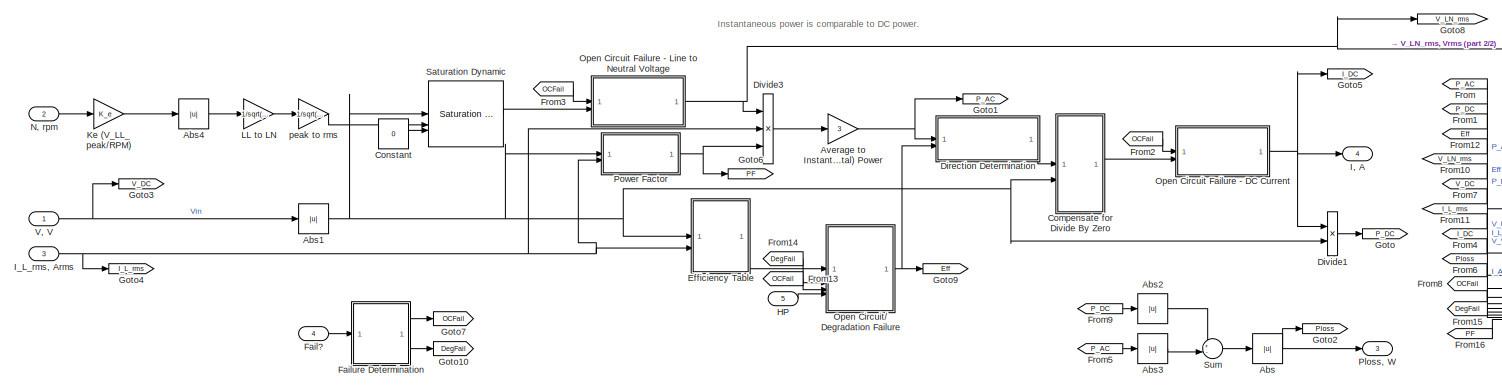
[diagram: Components/Power Flow/DC-AC Inverter (Efficiency Map) - part 1/2, most of the canvas]
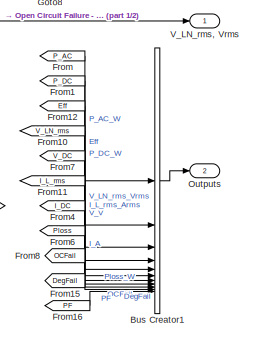
[diagram: Components/Power Flow/DC-AC Inverter (Efficiency Map) - part 2/2, right side, full height]
BLOCK [SubSystem] Components/Power Flow/DC-AC Inverter (Efficiency Map)
  AttributesFormatString = DC-AC Inverter (Efficiency Map)
BLOCK [Abs] Components/Power Flow/DC-AC Inverter (Efficiency Map)/Abs
  SaturateOnIntegerOverflow = off
BLOCK [Abs] Components/Power Flow/DC-AC Inverter (Efficiency Map)/Abs1
  SaturateOnIntegerOverflow = off
BLOCK [Abs] Components/Power Flow/DC-AC Inverter (Efficiency Map)/Abs2
  SaturateOnIntegerOverflow = off
BLOCK [Abs] Components/Power Flow/DC-AC Inverter (Efficiency Map)/Abs3
  SaturateOnIntegerOverflow = off
BLOCK [Abs] Components/Power Flow/DC-AC Inverter (Efficiency Map)/Abs4
  SaturateOnIntegerOverflow = off
BLOCK [Gain] Components/Power Flow/DC-AC Inverter (Efficiency Map)/Average to Instantaneous (Total) Power
  Gain = 3
BLOCK [BusCreator] Components/Power Flow/DC-AC Inverter (Efficiency Map)/Bus Creator1
  DisplayOption = bar
  InheritFromInputs = on
  Inputs = 11
BLOCK [SubSystem] Components/Power Flow/DC-AC Inverter (Efficiency Map)/Compensate for Divide By Zero
BLOCK [SubSystem] Components/Power Flow/DC-AC Inverter (Efficiency Map)/Compensate for Divide By Zero/Fix Divide By Zero.
BLOCK [Constant] Components/Power Flow/DC-AC Inverter (Efficiency Map)/Compensate for Divide By Zero/Fix Divide By Zero./Constant1
  Value = eps
BLOCK [Product] Components/Power Flow/DC-AC Inverter (Efficiency Map)/Compensate for Divide By Zero/Fix Divide By Zero./Divide1
  Inputs = /*
BLOCK [Outport] Components/Power Flow/DC-AC Inverter (Efficiency Map)/Compensate for Divide By Zero/Fix Divide By Zero./I_DC
BLOCK [Inport] Components/Power Flow/DC-AC Inverter (Efficiency Map)/Compensate for Divide By Zero/Fix Divide By Zero./PEquivDC
  Port = 2
BLOCK [Switch] Components/Power Flow/DC-AC Inverter (Efficiency Map)/Compensate for Divide By Zero/Fix Divide By Zero./Switch1
  Criteria = u2 ~= 0
  InputSameDT = off
  SaturateOnIntegerOverflow = off
BLOCK [Inport] Components/Power Flow/DC-AC Inverter (Efficiency Map)/Compensate for Divide By Zero/Fix Divide By Zero./V_DC
BLOCK [Outport] Components/Power Flow/DC-AC Inverter (Efficiency Map)/Compensate for Divide By Zero/I_DC
BLOCK [Inport] Components/Power Flow/DC-AC Inverter (Efficiency Map)/Compensate for Divide By Zero/PEquivDC
BLOCK [Inport] Components/Power Flow/DC-AC Inverter (Efficiency Map)/Compensate for Divide By Zero/V_DC
  Port = 2
BLOCK [Constant] Components/Power Flow/DC-AC Inverter (Efficiency Map)/Constant
  Value = 0
BLOCK [SubSystem] Components/Power Flow/DC-AC Inverter (Efficiency Map)/Direction Determination
BLOCK [Product] Components/Power Flow/DC-AC Inverter (Efficiency Map)/Direction Determination/Divide
  Inputs = /*
BLOCK [Product] Components/Power Flow/DC-AC Inverter (Efficiency Map)/Direction Determination/Divide1
  Inputs = **
BLOCK [Inport] Components/Power Flow/DC-AC Inverter (Efficiency Map)/Direction Determination/Eff
  Port = 2
BLOCK [Outport] Components/Power Flow/DC-AC Inverter (Efficiency Map)/Direction Determination/PEquivDC
BLOCK [Inport] Components/Power Flow/DC-AC Inverter (Efficiency Map)/Direction Determination/P_AC
BLOCK [Switch] Components/Power Flow/DC-AC Inverter (Efficiency Map)/Direction Determination/Switch
  Criteria = u2 > Threshold
  InputSameDT = off
  SaturateOnIntegerOverflow = off
BLOCK [Product] Components/Power Flow/DC-AC Inverter (Efficiency Map)/Divide1
  Inputs = **
BLOCK [Product] Components/Power Flow/DC-AC Inverter (Efficiency Map)/Divide3
  Inputs = ***
BLOCK [SubSystem] Components/Power Flow/DC-AC Inverter (Efficiency Map)/Efficiency Table
BLOCK [Abs] Components/Power Flow/DC-AC Inverter (Efficiency Map)/Efficiency Table/Abs
  SaturateOnIntegerOverflow = off
BLOCK [Abs] Components/Power Flow/DC-AC Inverter (Efficiency Map)/Efficiency Table/Abs1
  SaturateOnIntegerOverflow = off
BLOCK [Outport] Components/Power Flow/DC-AC Inverter (Efficiency Map)/Efficiency Table/Eff
BLOCK [Lookup_n-D] Components/Power Flow/DC-AC Inverter (Efficiency Map)/Efficiency Table/Efficiency Map
  BreakpointsForDimension1 = X_C_VoltageInVec_M
  BreakpointsForDimension2 = Y_C_RMSCurrentOutVec_M
  ExtrapMethod = Clip
  InputPortMap = u0,u1
  InternalRulePriority = Speed
  RndMeth = Simplest
  Table = T_C_EffArray_M
  UseLastTableValue = on
BLOCK [Inport] Components/Power Flow/DC-AC Inverter (Efficiency Map)/Efficiency Table/I_L_rms
  Port = 2
BLOCK [Inport] Components/Power Flow/DC-AC Inverter (Efficiency Map)/Efficiency Table/V_DC
BLOCK [Inport] Components/Power Flow/DC-AC Inverter (Efficiency Map)/Fail?
  Port = 4
BLOCK [SubSystem] Components/Power Flow/DC-AC Inverter (Efficiency Map)/Failure Determination
BLOCK [Reference] Components/Power Flow/DC-AC Inverter (Efficiency Map)/Failure Determination/Compare To Constant  REF=simulink/Logic and Bit
Operations/Compare
To Constant
  SourceBlock = simulink/Logic and Bit\nOperations/Compare\nTo Constant
  SourceType = Compare To Constant
BLOCK [Reference] Components/Power Flow/DC-AC Inverter (Efficiency Map)/Failure Determination/Compare To Constant1  REF=simulink/Logic and Bit
Operations/Compare
To Constant
  SourceBlock = simulink/Logic and Bit\nOperations/Compare\nTo Constant
  SourceType = Compare To Constant
BLOCK [DataTypeConversion] Components/Power Flow/DC-AC Inverter (Efficiency Map)/Failure Determination/Data Type Conversion
  OutDataTypeStr = double
  RndMeth = Floor
  SaturateOnIntegerOverflow = off
BLOCK [DataTypeConversion] Components/Power Flow/DC-AC Inverter (Efficiency Map)/Failure Determination/Data Type Conversion1
  OutDataTypeStr = double
  RndMeth = Floor
  SaturateOnIntegerOverflow = off
BLOCK [Outport] Components/Power Flow/DC-AC Inverter (Efficiency Map)/Failure Determination/DegFail
  Port = 2
BLOCK [Inport] Components/Power Flow/DC-AC Inverter (Efficiency Map)/Failure Determination/Fail?
BLOCK [Constant] Components/Power Flow/DC-AC Inverter (Efficiency Map)/Failure Determination/Failure Mode
  Value = FM
BLOCK [Logic] Components/Power Flow/DC-AC Inverter (Efficiency Map)/Failure Determination/Logical Operator
  AllPortsSameDT = off
  OutDataTypeStr = boolean
BLOCK [Logic] Components/Power Flow/DC-AC Inverter (Efficiency Map)/Failure Determination/Logical Operator1
  AllPortsSameDT = off
  OutDataTypeStr = boolean
BLOCK [Outport] Components/Power Flow/DC-AC Inverter (Efficiency Map)/Failure Determination/OCFail
BLOCK [From] Components/Power Flow/DC-AC Inverter (Efficiency Map)/From
  GotoTag = P_AC
BLOCK [From] Components/Power Flow/DC-AC Inverter (Efficiency Map)/From1
  GotoTag = P_DC
BLOCK [From] Components/Power Flow/DC-AC Inverter (Efficiency Map)/From10
  GotoTag = V_LN_rms
BLOCK [From] Components/Power Flow/DC-AC Inverter (Efficiency Map)/From11
  GotoTag = I_L_rms
BLOCK [From] Components/Power Flow/DC-AC Inverter (Efficiency Map)/From12
  GotoTag = Eff
BLOCK [From] Components/Power Flow/DC-AC Inverter (Efficiency Map)/From13
  GotoTag = OCFail
BLOCK [From] Components/Power Flow/DC-AC Inverter (Efficiency Map)/From14
  GotoTag = DegFail
BLOCK [From] Components/Power Flow/DC-AC Inverter (Efficiency Map)/From15
  GotoTag = DegFail
BLOCK [From] Components/Power Flow/DC-AC Inverter (Efficiency Map)/From16
  GotoTag = PF
BLOCK [From] Components/Power Flow/DC-AC Inverter (Efficiency Map)/From2
  GotoTag = OCFail
BLOCK [From] Components/Power Flow/DC-AC Inverter (Efficiency Map)/From3
  GotoTag = OCFail
BLOCK [From] Components/Power Flow/DC-AC Inverter (Efficiency Map)/From4
  GotoTag = I_DC
BLOCK [From] Components/Power Flow/DC-AC Inverter (Efficiency Map)/From5
  GotoTag = P_AC
BLOCK [From] Components/Power Flow/DC-AC Inverter (Efficiency Map)/From6
  GotoTag = Ploss
BLOCK [From] Components/Power Flow/DC-AC Inverter (Efficiency Map)/From7
  GotoTag = V_DC
BLOCK [From] Components/Power Flow/DC-AC Inverter (Efficiency Map)/From8
  GotoTag = OCFail
BLOCK [From] Components/Power Flow/DC-AC Inverter (Efficiency Map)/From9
  GotoTag = P_DC
BLOCK [Goto] Components/Power Flow/DC-AC Inverter (Efficiency Map)/Goto
  GotoTag = P_DC
BLOCK [Goto] Components/Power Flow/DC-AC Inverter (Efficiency Map)/Goto1
  GotoTag = P_AC
BLOCK [Goto] Components/Power Flow/DC-AC Inverter (Efficiency Map)/Goto10
  GotoTag = DegFail
BLOCK [Goto] Components/Power Flow/DC-AC Inverter (Efficiency Map)/Goto2
  GotoTag = Ploss
BLOCK [Goto] Components/Power Flow/DC-AC Inverter (Efficiency Map)/Goto3
  GotoTag = V_DC
BLOCK [Goto] Components/Power Flow/DC-AC Inverter (Efficiency Map)/Goto4
  GotoTag = I_L_rms
BLOCK [Goto] Components/Power Flow/DC-AC Inverter (Efficiency Map)/Goto5
  GotoTag = I_DC
BLOCK [Goto] Components/Power Flow/DC-AC Inverter (Efficiency Map)/Goto6
  GotoTag = PF
BLOCK [Goto] Components/Power Flow/DC-AC Inverter (Efficiency Map)/Goto7
  GotoTag = OCFail
BLOCK [Goto] Components/Power Flow/DC-AC Inverter (Efficiency Map)/Goto8
  GotoTag = V_LN_rms
BLOCK [Goto] Components/Power Flow/DC-AC Inverter (Efficiency Map)/Goto9
  GotoTag = Eff
BLOCK [Inport] Components/Power Flow/DC-AC Inverter (Efficiency Map)/HP
  Port = 5
BLOCK [Outport] Components/Power Flow/DC-AC Inverter (Efficiency Map)/I, A
  Port = 4
BLOCK [Inport] Components/Power Flow/DC-AC Inverter (Efficiency Map)/I_L_rms, Arms
  Port = 3
BLOCK [Gain] Components/Power Flow/DC-AC Inverter (Efficiency Map)/Ke (V_LL_peak//RPM)
  Gain = K_e
BLOCK [Gain] Components/Power Flow/DC-AC Inverter (Efficiency Map)/LL to LN
  Gain = 1/sqrt(3)
BLOCK [Inport] Components/Power Flow/DC-AC Inverter (Efficiency Map)/N, rpm
  Port = 2
BLOCK [SubSystem] Components/Power Flow/DC-AC Inverter (Efficiency Map)/Open Circuit Failure - DC Current
BLOCK [Constant] Components/Power Flow/DC-AC Inverter (Efficiency Map)/Open Circuit Failure - DC Current/Constant
  Value = 0
BLOCK [Inport] Components/Power Flow/DC-AC Inverter (Efficiency Map)/Open Circuit Failure - DC Current/Failed?
BLOCK [Inport] Components/Power Flow/DC-AC Inverter (Efficiency Map)/Open Circuit Failure - DC Current/I_DC
  Port = 2
BLOCK [Outport] Components/Power Flow/DC-AC Inverter (Efficiency Map)/Open Circuit Failure - DC Current/I_DC 
BLOCK [RelationalOperator] Components/Power Flow/DC-AC Inverter (Efficiency Map)/Open Circuit Failure - DC Current/IsInf
  InputSameDT = off
  Operator = isInf
  OutDataTypeStr = boolean
  RndMeth = Simplest
BLOCK [RelationalOperator] Components/Power Flow/DC-AC Inverter (Efficiency Map)/Open Circuit Failure - DC Current/IsNaN
  InputSameDT = off
  Operator = isNaN
  OutDataTypeStr = boolean
  RndMeth = Simplest
BLOCK [Logic] Components/Power Flow/DC-AC Inverter (Efficiency Map)/Open Circuit Failure - DC Current/Logical Operator
  AllPortsSameDT = off
  Inputs = 3
  Operator = OR
  OutDataTypeStr = boolean
BLOCK [Switch] Components/Power Flow/DC-AC Inverter (Efficiency Map)/Open Circuit Failure - DC Current/Switch
  Criteria = u2 > Threshold
  InputSameDT = off
  SaturateOnIntegerOverflow = off
BLOCK [SubSystem] Components/Power Flow/DC-AC Inverter (Efficiency Map)/Open Circuit Failure - Line to Neutral Voltage
  NameLocation = top
BLOCK [Constant] Components/Power Flow/DC-AC Inverter (Efficiency Map)/Open Circuit Failure - Line to Neutral Voltage/Constant
  Value = 0
BLOCK [Inport] Components/Power Flow/DC-AC Inverter (Efficiency Map)/Open Circuit Failure - Line to Neutral Voltage/Failed?
BLOCK [RelationalOperator] Components/Power Flow/DC-AC Inverter (Efficiency Map)/Open Circuit Failure - Line to Neutral Voltage/IsInf
  InputSameDT = off
  Operator = isInf
  OutDataTypeStr = boolean
  RndMeth = Simplest
BLOCK [RelationalOperator] Components/Power Flow/DC-AC Inverter (Efficiency Map)/Open Circuit Failure - Line to Neutral Voltage/IsNaN
  InputSameDT = off
  Operator = isNaN
  OutDataTypeStr = boolean
  RndMeth = Simplest
BLOCK [Logic] Components/Power Flow/DC-AC Inverter (Efficiency Map)/Open Circuit Failure - Line to Neutral Voltage/Logical Operator
  AllPortsSameDT = off
  Inputs = 3
  Operator = OR
  OutDataTypeStr = boolean
BLOCK [Switch] Components/Power Flow/DC-AC Inverter (Efficiency Map)/Open Circuit Failure - Line to Neutral Voltage/Switch
  Criteria = u2 > Threshold
  InputSameDT = off
  SaturateOnIntegerOverflow = off
BLOCK [Inport] Components/Power Flow/DC-AC Inverter (Efficiency Map)/Open Circuit Failure - Line to Neutral Voltage/V_LN_rms
  Port = 2
BLOCK [Outport] Components/Power Flow/DC-AC Inverter (Efficiency Map)/Open Circuit Failure - Line to Neutral Voltage/V_LN_rms 
BLOCK [SubSystem] Components/Power Flow/DC-AC Inverter (Efficiency Map)/Open Circuit// Degradation Failure
BLOCK [Constant] Components/Power Flow/DC-AC Inverter (Efficiency Map)/Open Circuit// Degradation Failure/Constant
  Value = eps
BLOCK [Constant] Components/Power Flow/DC-AC Inverter (Efficiency Map)/Open Circuit// Degradation Failure/Constant1
BLOCK [Inport] Components/Power Flow/DC-AC Inverter (Efficiency Map)/Open Circuit// Degradation Failure/DegFail?
  Port = 2
BLOCK [Product] Components/Power Flow/DC-AC Inverter (Efficiency Map)/Open Circuit// Degradation Failure/Divide
  Inputs = **
BLOCK [Inport] Components/Power Flow/DC-AC Inverter (Efficiency Map)/Open Circuit// Degradation Failure/Eff
BLOCK [Outport] Components/Power Flow/DC-AC Inverter (Efficiency Map)/Open Circuit// Degradation Failure/Eff 
BLOCK [Inport] Components/Power Flow/DC-AC Inverter (Efficiency Map)/Open Circuit// Degradation Failure/HP
  Port = 4
BLOCK [Switch] Components/Power Flow/DC-AC Inverter (Efficiency Map)/Open Circuit// Degradation Failure/If degradation failure, scale Eff.
  Criteria = u2 > Threshold
  InputSameDT = off
  SaturateOnIntegerOverflow = off
BLOCK [Switch] Components/Power Flow/DC-AC Inverter (Efficiency Map)/Open Circuit// Degradation Failure/If open circuit failure, set Eff = eps.
  Criteria = u2 > Threshold
  InputSameDT = off
  SaturateOnIntegerOverflow = off
BLOCK [Inport] Components/Power Flow/DC-AC Inverter (Efficiency Map)/Open Circuit// Degradation Failure/OCFail?
  Port = 3
BLOCK [Sum] Components/Power Flow/DC-AC Inverter (Efficiency Map)/Open Circuit// Degradation Failure/Sum
  Inputs = +-|
BLOCK [Outport] Components/Power Flow/DC-AC Inverter (Efficiency Map)/Outputs
  Port = 2
BLOCK [Outport] Components/Power Flow/DC-AC Inverter (Efficiency Map)/Ploss, W
  Port = 3
BLOCK [SubSystem] Components/Power Flow/DC-AC Inverter (Efficiency Map)/Power Factor
BLOCK [Lookup_n-D] Components/Power Flow/DC-AC Inverter (Efficiency Map)/Power Factor/2-D Lookup Table
  BreakpointsForDimension1 = X_C_VoltageInVec_M
  BreakpointsForDimension2 = Y_C_RMSCurrentOutVec_M
  ExtrapMethod = Clip
  InputPortMap = u0,u1
  InternalRulePriority = Speed
  RndMeth = Simplest
  Table = T_C_PFArray_M
  UseLastTableValue = on
BLOCK [Abs] Components/Power Flow/DC-AC Inverter (Efficiency Map)/Power Factor/Abs
  SaturateOnIntegerOverflow = off
BLOCK [Abs] Components/Power Flow/DC-AC Inverter (Efficiency Map)/Power Factor/Abs1
  SaturateOnIntegerOverflow = off
BLOCK [Inport] Components/Power Flow/DC-AC Inverter (Efficiency Map)/Power Factor/I_L_rms
  Port = 2
BLOCK [Outport] Components/Power Flow/DC-AC Inverter (Efficiency Map)/Power Factor/PF
BLOCK [Inport] Components/Power Flow/DC-AC Inverter (Efficiency Map)/Power Factor/V_DC
BLOCK [Reference] Components/Power Flow/DC-AC Inverter (Efficiency Map)/Saturation Dynamic  REF=simulink/Discontinuities/Saturation
Dynamic
  SourceBlock = simulink/Discontinuities/Saturation\nDynamic
  SourceType = Saturation Dynamic
BLOCK [Sum] Components/Power Flow/DC-AC Inverter (Efficiency Map)/Sum
  Inputs = +-|
BLOCK [Inport] Components/Power Flow/DC-AC Inverter (Efficiency Map)/V, V
BLOCK [Outport] Components/Power Flow/DC-AC Inverter (Efficiency Map)/V_LN_rms, Vrms
BLOCK [Gain] Components/Power Flow/DC-AC Inverter (Efficiency Map)/peak to rms
  Gain = 1/sqrt(2)
BLOCK [SubSystem] Components/Power Flow/DC-AC Inverter (Power Loss Map)
  AttributesFormatString = DC-AC Inverter (Power Loss Map)
BLOCK [Abs] Components/Power Flow/DC-AC Inverter (Power Loss Map)/Abs1
  SaturateOnIntegerOverflow = off
BLOCK [Abs] Components/Power Flow/DC-AC Inverter (Power Loss Map)/Abs4
  SaturateOnIntegerOverflow = off
BLOCK [Gain] Components/Power Flow/DC-AC Inverter (Power Loss Map)/Average to Instantaneous (Total) Power
  Gain = 3
BLOCK [BusCreator] Components/Power Flow/DC-AC Inverter (Power Loss Map)/Bus Creator1
  DisplayOption = bar
  InheritFromInputs = on
  Inputs = 11
BLOCK [SubSystem] Components/Power Flow/DC-AC Inverter (Power Loss Map)/Compensate for Divide By Zero
BLOCK [SubSystem] Components/Power Flow/DC-AC Inverter (Power Loss Map)/Compensate for Divide By Zero/Fix Divide By Zero.
BLOCK [Constant] Components/Power Flow/DC-AC Inverter (Power Loss Map)/Compensate for Divide By Zero/Fix Divide By Zero./Constant1
  Value = eps
BLOCK [Product] Components/Power Flow/DC-AC Inverter (Power Loss Map)/Compensate for Divide By Zero/Fix Divide By Zero./Divide1
  Inputs = /*
BLOCK [Outport] Components/Power Flow/DC-AC Inverter (Power Loss Map)/Compensate for Divide By Zero/Fix Divide By Zero./I_DC
BLOCK [Inport] Components/Power Flow/DC-AC Inverter (Power Loss Map)/Compensate for Divide By Zero/Fix Divide By Zero./PEquivDC
  Port = 2
BLOCK [Switch] Components/Power Flow/DC-AC Inverter (Power Loss Map)/Compensate for Divide By Zero/Fix Divide By Zero./Switch1
  Criteria = u2 ~= 0
  InputSameDT = off
  SaturateOnIntegerOverflow = off
BLOCK [Inport] Components/Power Flow/DC-AC Inverter (Power Loss Map)/Compensate for Divide By Zero/Fix Divide By Zero./V_DC
BLOCK [Outport] Components/Power Flow/DC-AC Inverter (Power Loss Map)/Compensate for Divide By Zero/I_DC
BLOCK [Inport] Components/Power Flow/DC-AC Inverter (Power Loss Map)/Compensate for Divide By Zero/PEquivDC
BLOCK [Inport] Components/Power Flow/DC-AC Inverter (Power Loss Map)/Compensate for Divide By Zero/V_DC
  Port = 2
BLOCK [Constant] Components/Power Flow/DC-AC Inverter (Power Loss Map)/Constant
  Value = 0
BLOCK [SubSystem] Components/Power Flow/DC-AC Inverter (Power Loss Map)/Direction Determination
BLOCK [Sum] Components/Power Flow/DC-AC Inverter (Power Loss Map)/Direction Determination/Add1
  IconShape = rectangular
BLOCK [Outport] Components/Power Flow/DC-AC Inverter (Power Loss Map)/Direction Determination/PEquivDC
BLOCK [Inport] Components/Power Flow/DC-AC Inverter (Power Loss Map)/Direction Determination/P_AC
BLOCK [Inport] Components/Power Flow/DC-AC Inverter (Power Loss Map)/Direction Determination/Ploss
  Port = 2
BLOCK [Switch] Components/Power Flow/DC-AC Inverter (Power Loss Map)/Direction Determination/Switch
  Criteria = u2 ~= 0
  InputSameDT = off
  SaturateOnIntegerOverflow = off
BLOCK [Product] Components/Power Flow/DC-AC Inverter (Power Loss Map)/Divide1
  Inputs = **
BLOCK [Product] Components/Power Flow/DC-AC Inverter (Power Loss Map)/Divide3
  Inputs = ***
BLOCK [SubSystem] Components/Power Flow/DC-AC Inverter (Power Loss Map)/Efficiency
BLOCK [Abs] Components/Power Flow/DC-AC Inverter (Power Loss Map)/Efficiency/Abs
  SaturateOnIntegerOverflow = off
BLOCK [Abs] Components/Power Flow/DC-AC Inverter (Power Loss Map)/Efficiency/Abs1
  SaturateOnIntegerOverflow = off
BLOCK [Outport] Components/Power Flow/DC-AC Inverter (Power Loss Map)/Efficiency/Eff
BLOCK [SubSystem] Components/Power Flow/DC-AC Inverter (Power Loss Map)/Efficiency/Fix Divide By Zero.
BLOCK [Constant] Components/Power Flow/DC-AC Inverter (Power Loss Map)/Efficiency/Fix Divide By Zero./Constant
  Value = eps
BLOCK [Product] Components/Power Flow/DC-AC Inverter (Power Loss Map)/Efficiency/Fix Divide By Zero./Divide1
  Inputs = /*
BLOCK [Outport] Components/Power Flow/DC-AC Inverter (Power Loss Map)/Efficiency/Fix Divide By Zero./Eff
BLOCK [Switch] Components/Power Flow/DC-AC Inverter (Power Loss Map)/Efficiency/Fix Divide By Zero./Switch
  Criteria = u2 ~= 0
  InputSameDT = off
  SaturateOnIntegerOverflow = off
BLOCK [Inport] Components/Power Flow/DC-AC Inverter (Power Loss Map)/Efficiency/Fix Divide By Zero./abs(P_AC)
BLOCK [Inport] Components/Power Flow/DC-AC Inverter (Power Loss Map)/Efficiency/Fix Divide By Zero./abs(P_DC)
  Port = 2
BLOCK [SubSystem] Components/Power Flow/DC-AC Inverter (Power Loss Map)/Efficiency/Fix Divide By Zero.1
BLOCK [Constant] Components/Power Flow/DC-AC Inverter (Power Loss Map)/Efficiency/Fix Divide By Zero.1/Constant1
  Value = eps
BLOCK [Product] Components/Power Flow/DC-AC Inverter (Power Loss Map)/Efficiency/Fix Divide By Zero.1/Divide1
  Inputs = /*
BLOCK [Outport] Components/Power Flow/DC-AC Inverter (Power Loss Map)/Efficiency/Fix Divide By Zero.1/Eff
BLOCK [Switch] Components/Power Flow/DC-AC Inverter (Power Loss Map)/Efficiency/Fix Divide By Zero.1/Switch1
  Criteria = u2 ~= 0
  InputSameDT = off
  SaturateOnIntegerOverflow = off
BLOCK [Inport] Components/Power Flow/DC-AC Inverter (Power Loss Map)/Efficiency/Fix Divide By Zero.1/abs(P_AC)
  Port = 2
BLOCK [Inport] Components/Power Flow/DC-AC Inverter (Power Loss Map)/Efficiency/Fix Divide By Zero.1/abs(P_DC)
BLOCK [RelationalOperator] Components/Power Flow/DC-AC Inverter (Power Loss Map)/Efficiency/GreaterThan
  InputSameDT = off
  OutDataTypeStr = boolean
  RndMeth = Simplest
BLOCK [Inport] Components/Power Flow/DC-AC Inverter (Power Loss Map)/Efficiency/P_AC
BLOCK [Inport] Components/Power Flow/DC-AC Inverter (Power Loss Map)/Efficiency/P_DC
  Port = 2
BLOCK [Switch] Components/Power Flow/DC-AC Inverter (Power Loss Map)/Efficiency/Switch
  Criteria = u2 > Threshold
  InputSameDT = off
  SaturateOnIntegerOverflow = off
BLOCK [Inport] Components/Power Flow/DC-AC Inverter (Power Loss Map)/Fail?
  Port = 4
BLOCK [SubSystem] Components/Power Flow/DC-AC Inverter (Power Loss Map)/Failure Determination
BLOCK [Reference] Components/Power Flow/DC-AC Inverter (Power Loss Map)/Failure Determination/Compare To Constant  REF=simulink/Logic and Bit
Operations/Compare
To Constant
  SourceBlock = simulink/Logic and Bit\nOperations/Compare\nTo Constant
  SourceType = Compare To Constant
BLOCK [Reference] Components/Power Flow/DC-AC Inverter (Power Loss Map)/Failure Determination/Compare To Constant1  REF=simulink/Logic and Bit
Operations/Compare
To Constant
  SourceBlock = simulink/Logic and Bit\nOperations/Compare\nTo Constant
  SourceType = Compare To Constant
BLOCK [DataTypeConversion] Components/Power Flow/DC-AC Inverter (Power Loss Map)/Failure Determination/Data Type Conversion
  OutDataTypeStr = double
  RndMeth = Floor
  SaturateOnIntegerOverflow = off
BLOCK [DataTypeConversion] Components/Power Flow/DC-AC Inverter (Power Loss Map)/Failure Determination/Data Type Conversion1
  OutDataTypeStr = double
  RndMeth = Floor
  SaturateOnIntegerOverflow = off
BLOCK [Outport] Components/Power Flow/DC-AC Inverter (Power Loss Map)/Failure Determination/DegFail
  Port = 2
BLOCK [Inport] Components/Power Flow/DC-AC Inverter (Power Loss Map)/Failure Determination/Fail?
BLOCK [Constant] Components/Power Flow/DC-AC Inverter (Power Loss Map)/Failure Determination/Failure Mode
  Value = FM
BLOCK [Logic] Components/Power Flow/DC-AC Inverter (Power Loss Map)/Failure Determination/Logical Operator
  AllPortsSameDT = off
  OutDataTypeStr = boolean
BLOCK [Logic] Components/Power Flow/DC-AC Inverter (Power Loss Map)/Failure Determination/Logical Operator1
  AllPortsSameDT = off
  OutDataTypeStr = boolean
BLOCK [Outport] Components/Power Flow/DC-AC Inverter (Power Loss Map)/Failure Determination/OCFail
BLOCK [From] Components/Power Flow/DC-AC Inverter (Power Loss Map)/From
  GotoTag = P_AC
BLOCK [From] Components/Power Flow/DC-AC Inverter (Power Loss Map)/From1
  GotoTag = P_DC
BLOCK [From] Components/Power Flow/DC-AC Inverter (Power Loss Map)/From10
  GotoTag = V_LN_rms
BLOCK [From] Components/Power Flow/DC-AC Inverter (Power Loss Map)/From11
  GotoTag = I_L_rms
BLOCK [From] Components/Power Flow/DC-AC Inverter (Power Loss Map)/From12
  GotoTag = Eff
BLOCK [From] Components/Power Flow/DC-AC Inverter (Power Loss Map)/From13
  GotoTag = OCFail
BLOCK [From] Components/Power Flow/DC-AC Inverter (Power Loss Map)/From14
  GotoTag = DegFail
BLOCK [From] Components/Power Flow/DC-AC Inverter (Power Loss Map)/From15
  GotoTag = PF
BLOCK [From] Components/Power Flow/DC-AC Inverter (Power Loss Map)/From16
  GotoTag = OCFail
BLOCK [From] Components/Power Flow/DC-AC Inverter (Power Loss Map)/From17
  GotoTag = DegFail
BLOCK [From] Components/Power Flow/DC-AC Inverter (Power Loss Map)/From2
  GotoTag = OCFail
BLOCK [From] Components/Power Flow/DC-AC Inverter (Power Loss Map)/From3
  GotoTag = OCFail
BLOCK [From] Components/Power Flow/DC-AC Inverter (Power Loss Map)/From4
  GotoTag = I_DC
BLOCK [From] Components/Power Flow/DC-AC Inverter (Power Loss Map)/From5
  GotoTag = P_AC
BLOCK [From] Components/Power Flow/DC-AC Inverter (Power Loss Map)/From6
  GotoTag = Ploss
BLOCK [From] Components/Power Flow/DC-AC Inverter (Power Loss Map)/From7
  GotoTag = V_DC
BLOCK [From] Components/Power Flow/DC-AC Inverter (Power Loss Map)/From8
  GotoTag = Ploss
BLOCK [From] Components/Power Flow/DC-AC Inverter (Power Loss Map)/From9
  GotoTag = P_DC
BLOCK [Goto] Components/Power Flow/DC-AC Inverter (Power Loss Map)/Goto
  GotoTag = P_DC
BLOCK [Goto] Components/Power Flow/DC-AC Inverter (Power Loss Map)/Goto1
  GotoTag = P_AC
BLOCK [Goto] Components/Power Flow/DC-AC Inverter (Power Loss Map)/Goto10
  GotoTag = DegFail
BLOCK [Goto] Components/Power Flow/DC-AC Inverter (Power Loss Map)/Goto2
  GotoTag = Ploss
BLOCK [Goto] Components/Power Flow/DC-AC Inverter (Power Loss Map)/Goto3
  GotoTag = V_DC
BLOCK [Goto] Components/Power Flow/DC-AC Inverter (Power Loss Map)/Goto4
  GotoTag = I_L_rms
BLOCK [Goto] Components/Power Flow/DC-AC Inverter (Power Loss Map)/Goto5
  GotoTag = I_DC
BLOCK [Goto] Components/Power Flow/DC-AC Inverter (Power Loss Map)/Goto6
  GotoTag = PF
BLOCK [Goto] Components/Power Flow/DC-AC Inverter (Power Loss Map)/Goto7
  GotoTag = OCFail
BLOCK [Goto] Components/Power Flow/DC-AC Inverter (Power Loss Map)/Goto8
  GotoTag = V_LN_rms
BLOCK [Goto] Components/Power Flow/DC-AC Inverter (Power Loss Map)/Goto9
  GotoTag = Eff
BLOCK [Inport] Components/Power Flow/DC-AC Inverter (Power Loss Map)/HP
  Port = 5
BLOCK [Outport] Components/Power Flow/DC-AC Inverter (Power Loss Map)/I, A
  Port = 4
BLOCK [Inport] Components/Power Flow/DC-AC Inverter (Power Loss Map)/I_L_rms, Arms
  Port = 3
BLOCK [Gain] Components/Power Flow/DC-AC Inverter (Power Loss Map)/Ke (V_LL_peak//RPM)
  Gain = K_e
BLOCK [Gain] Components/Power Flow/DC-AC Inverter (Power Loss Map)/LL to LN
  Gain = 1/sqrt(3)
BLOCK [Inport] Components/Power Flow/DC-AC Inverter (Power Loss Map)/N, rpm
  Port = 2
BLOCK [SubSystem] Components/Power Flow/DC-AC Inverter (Power Loss Map)/Open Circuit Failure - DC Current
BLOCK [Constant] Components/Power Flow/DC-AC Inverter (Power Loss Map)/Open Circuit Failure - DC Current/Constant
  Value = 0
BLOCK [Inport] Components/Power Flow/DC-AC Inverter (Power Loss Map)/Open Circuit Failure - DC Current/Failed?
BLOCK [Inport] Components/Power Flow/DC-AC Inverter (Power Loss Map)/Open Circuit Failure - DC Current/I_DC
  Port = 2
BLOCK [Outport] Components/Power Flow/DC-AC Inverter (Power Loss Map)/Open Circuit Failure - DC Current/I_DC 
BLOCK [RelationalOperator] Components/Power Flow/DC-AC Inverter (Power Loss Map)/Open Circuit Failure - DC Current/IsInf
  InputSameDT = off
  Operator = isInf
  OutDataTypeStr = boolean
  RndMeth = Simplest
BLOCK [RelationalOperator] Components/Power Flow/DC-AC Inverter (Power Loss Map)/Open Circuit Failure - DC Current/IsNaN
  InputSameDT = off
  Operator = isNaN
  OutDataTypeStr = boolean
  RndMeth = Simplest
BLOCK [Logic] Components/Power Flow/DC-AC Inverter (Power Loss Map)/Open Circuit Failure - DC Current/Logical Operator
  AllPortsSameDT = off
  Inputs = 3
  Operator = OR
  OutDataTypeStr = boolean
BLOCK [Switch] Components/Power Flow/DC-AC Inverter (Power Loss Map)/Open Circuit Failure - DC Current/Switch
  Criteria = u2 > Threshold
  InputSameDT = off
  SaturateOnIntegerOverflow = off
BLOCK [SubSystem] Components/Power Flow/DC-AC Inverter (Power Loss Map)/Open Circuit Failure - Line to Neutral Voltage
  NameLocation = top
BLOCK [Constant] Components/Power Flow/DC-AC Inverter (Power Loss Map)/Open Circuit Failure - Line to Neutral Voltage/Constant
  Value = 0
BLOCK [Inport] Components/Power Flow/DC-AC Inverter (Power Loss Map)/Open Circuit Failure - Line to Neutral Voltage/Failed?
BLOCK [RelationalOperator] Components/Power Flow/DC-AC Inverter (Power Loss Map)/Open Circuit Failure - Line to Neutral Voltage/IsInf
  InputSameDT = off
  Operator = isInf
  OutDataTypeStr = boolean
  RndMeth = Simplest
BLOCK [RelationalOperator] Components/Power Flow/DC-AC Inverter (Power Loss Map)/Open Circuit Failure - Line to Neutral Voltage/IsNaN
  InputSameDT = off
  Operator = isNaN
  OutDataTypeStr = boolean
  RndMeth = Simplest
BLOCK [Logic] Components/Power Flow/DC-AC Inverter (Power Loss Map)/Open Circuit Failure - Line to Neutral Voltage/Logical Operator
  AllPortsSameDT = off
  Inputs = 3
  Operator = OR
  OutDataTypeStr = boolean
BLOCK [Switch] Components/Power Flow/DC-AC Inverter (Power Loss Map)/Open Circuit Failure - Line to Neutral Voltage/Switch
  Criteria = u2 > Threshold
  InputSameDT = off
  SaturateOnIntegerOverflow = off
BLOCK [Inport] Components/Power Flow/DC-AC Inverter (Power Loss Map)/Open Circuit Failure - Line to Neutral Voltage/V_LN_rms
  Port = 2
BLOCK [Outport] Components/Power Flow/DC-AC Inverter (Power Loss Map)/Open Circuit Failure - Line to Neutral Voltage/V_LN_rms 
BLOCK [SubSystem] Components/Power Flow/DC-AC Inverter (Power Loss Map)/Open Circuit// Degradation Failure
BLOCK [Constant] Components/Power Flow/DC-AC Inverter (Power Loss Map)/Open Circuit// Degradation Failure/Constant
  Value = 0
BLOCK [Constant] Components/Power Flow/DC-AC Inverter (Power Loss Map)/Open Circuit// Degradation Failure/Constant1
  Value = Plosslim
BLOCK [Inport] Components/Power Flow/DC-AC Inverter (Power Loss Map)/Open Circuit// Degradation Failure/DegFail?
  Port = 2
BLOCK [Product] Components/Power Flow/DC-AC Inverter (Power Loss Map)/Open Circuit// Degradation Failure/Divide
  Inputs = **
BLOCK [Inport] Components/Power Flow/DC-AC Inverter (Power Loss Map)/Open Circuit// Degradation Failure/HP
  Port = 4
BLOCK [Switch] Components/Power Flow/DC-AC Inverter (Power Loss Map)/Open Circuit// Degradation Failure/If degradation failure, add to Ploss.
  Criteria = u2 > Threshold
  InputSameDT = off
  SaturateOnIntegerOverflow = off
BLOCK [Switch] Components/Power Flow/DC-AC Inverter (Power Loss Map)/Open Circuit// Degradation Failure/If open circuit failure, set Ploss = 0.
  Criteria = u2 > Threshold
  InputSameDT = off
  SaturateOnIntegerOverflow = off
BLOCK [Inport] Components/Power Flow/DC-AC Inverter (Power Loss Map)/Open Circuit// Degradation Failure/OCFail?
  Port = 3
BLOCK [Inport] Components/Power Flow/DC-AC Inverter (Power Loss Map)/Open Circuit// Degradation Failure/Ploss
BLOCK [Outport] Components/Power Flow/DC-AC Inverter (Power Loss Map)/Open Circuit// Degradation Failure/Ploss 
BLOCK [Sum] Components/Power Flow/DC-AC Inverter (Power Loss Map)/Open Circuit// Degradation Failure/Sum1
  Inputs = ++|
BLOCK [Outport] Components/Power Flow/DC-AC Inverter (Power Loss Map)/Outputs
  Port = 2
BLOCK [Outport] Components/Power Flow/DC-AC Inverter (Power Loss Map)/Ploss, W
  Port = 3
BLOCK [SubSystem] Components/Power Flow/DC-AC Inverter (Power Loss Map)/Power Factor
BLOCK [Lookup_n-D] Components/Power Flow/DC-AC Inverter (Power Loss Map)/Power Factor/2-D Lookup Table
  BreakpointsForDimension1 = X_C_VoltageInVec_M
  BreakpointsForDimension2 = Y_C_RMSCurrentOutVec_M
  ExtrapMethod = Clip
  InputPortMap = u0,u1
  InternalRulePriority = Speed
  RndMeth = Simplest
  Table = T_C_PFArray_M
  UseLastTableValue = on
BLOCK [Abs] Components/Power Flow/DC-AC Inverter (Power Loss Map)/Power Factor/Abs
  SaturateOnIntegerOverflow = off
BLOCK [Abs] Components/Power Flow/DC-AC Inverter (Power Loss Map)/Power Factor/Abs1
  SaturateOnIntegerOverflow = off
BLOCK [Inport] Components/Power Flow/DC-AC Inverter (Power Loss Map)/Power Factor/I_L_rms
  Port = 2
BLOCK [Outport] Components/Power Flow/DC-AC Inverter (Power Loss Map)/Power Factor/PF
BLOCK [Inport] Components/Power Flow/DC-AC Inverter (Power Loss Map)/Power Factor/V_DC
BLOCK [SubSystem] Components/Power Flow/DC-AC Inverter (Power Loss Map)/Power Loss
BLOCK [Lookup_n-D] Components/Power Flow/DC-AC Inverter (Power Loss Map)/Power Loss/2-D Lookup Table
  BreakpointsForDimension1 = X_C_VoltageInVec_M
  BreakpointsForDimension2 = Y_C_RMSCurrentOutVec_M
  ExtrapMethod = Clip
  InputPortMap = u0,u1
  InternalRulePriority = Speed
  RndMeth = Simplest
  Table = T_C_PowLossArray_M
  UseLastTableValue = on
BLOCK [Abs] Components/Power Flow/DC-AC Inverter (Power Loss Map)/Power Loss/Abs
  SaturateOnIntegerOverflow = off
BLOCK [Abs] Components/Power Flow/DC-AC Inverter (Power Loss Map)/Power Loss/Abs1
  SaturateOnIntegerOverflow = off
BLOCK [Inport] Components/Power Flow/DC-AC Inverter (Power Loss Map)/Power Loss/I_L_rms
  Port = 2
BLOCK [Outport] Components/Power Flow/DC-AC Inverter (Power Loss Map)/Power Loss/Ploss
BLOCK [Saturate] Components/Power Flow/DC-AC Inverter (Power Loss Map)/Power Loss/Saturation
  LowerLimit = 0
  UpperLimit = inf
BLOCK [Inport] Components/Power Flow/DC-AC Inverter (Power Loss Map)/Power Loss/V_DC
BLOCK [Reference] Components/Power Flow/DC-AC Inverter (Power Loss Map)/Saturation Dynamic  REF=simulink/Discontinuities/Saturation
Dynamic
  SourceBlock = simulink/Discontinuities/Saturation\nDynamic
  SourceType = Saturation Dynamic
BLOCK [Inport] Components/Power Flow/DC-AC Inverter (Power Loss Map)/V, V
BLOCK [Outport] Components/Power Flow/DC-AC Inverter (Power Loss Map)/V_LN_rms, Vrms
BLOCK [Gain] Components/Power Flow/DC-AC Inverter (Power Loss Map)/peak to rms
  Gain = 1/sqrt(2)
BLOCK [SubSystem] Components/Power Flow/DC-DC Converter (Efficiency Map) (Regulate Output Voltage)
  AttributesFormatString = DC-DC Converter\n(Efficiency Map)\n(Regulate Output Voltage)
BLOCK [Abs] Components/Power Flow/DC-DC Converter (Efficiency Map) (Regulate Output Voltage)/Abs
  SaturateOnIntegerOverflow = off
BLOCK [Abs] Components/Power Flow/DC-DC Converter (Efficiency Map) (Regulate Output Voltage)/Abs2
  SaturateOnIntegerOverflow = off
BLOCK [Abs] Components/Power Flow/DC-DC Converter (Efficiency Map) (Regulate Output Voltage)/Abs3
  SaturateOnIntegerOverflow = off
BLOCK [BusCreator] Components/Power Flow/DC-DC Converter (Efficiency Map) (Regulate Output Voltage)/Bus Creator
  DisplayOption = bar
  InheritFromInputs = on
  Inputs = 9
BLOCK [SubSystem] Components/Power Flow/DC-DC Converter (Efficiency Map) (Regulate Output Voltage)/Compensate for Divide By Zero
BLOCK [SubSystem] Components/Power Flow/DC-DC Converter (Efficiency Map) (Regulate Output Voltage)/Compensate for Divide By Zero/Fix Divide By Zero.
BLOCK [Constant] Components/Power Flow/DC-DC Converter (Efficiency Map) (Regulate Output Voltage)/Compensate for Divide By Zero/Fix Divide By Zero./Constant
  Value = eps
BLOCK [Product] Components/Power Flow/DC-DC Converter (Efficiency Map) (Regulate Output Voltage)/Compensate for Divide By Zero/Fix Divide By Zero./Divide1
  Inputs = /*
BLOCK [Outport] Components/Power Flow/DC-DC Converter (Efficiency Map) (Regulate Output Voltage)/Compensate for Divide By Zero/Fix Divide By Zero./Iin
BLOCK [Inport] Components/Power Flow/DC-DC Converter (Efficiency Map) (Regulate Output Voltage)/Compensate for Divide By Zero/Fix Divide By Zero./Pin
  Port = 2
BLOCK [Switch] Components/Power Flow/DC-DC Converter (Efficiency Map) (Regulate Output Voltage)/Compensate for Divide By Zero/Fix Divide By Zero./Switch
  Criteria = u2 ~= 0
  InputSameDT = off
  SaturateOnIntegerOverflow = off
BLOCK [Inport] Components/Power Flow/DC-DC Converter (Efficiency Map) (Regulate Output Voltage)/Compensate for Divide By Zero/Fix Divide By Zero./Vin
BLOCK [Outport] Components/Power Flow/DC-DC Converter (Efficiency Map) (Regulate Output Voltage)/Compensate for Divide By Zero/Iin
BLOCK [Inport] Components/Power Flow/DC-DC Converter (Efficiency Map) (Regulate Output Voltage)/Compensate for Divide By Zero/Pin
BLOCK [Inport] Components/Power Flow/DC-DC Converter (Efficiency Map) (Regulate Output Voltage)/Compensate for Divide By Zero/Vin
  Port = 2
BLOCK [SubSystem] Components/Power Flow/DC-DC Converter (Efficiency Map) (Regulate Output Voltage)/Direction Determination
BLOCK [Product] Components/Power Flow/DC-DC Converter (Efficiency Map) (Regulate Output Voltage)/Direction Determination/Divide
  Inputs = /*
BLOCK [Product] Components/Power Flow/DC-DC Converter (Efficiency Map) (Regulate Output Voltage)/Direction Determination/Divide1
  Inputs = **
BLOCK [Inport] Components/Power Flow/DC-DC Converter (Efficiency Map) (Regulate Output Voltage)/Direction Determination/Eff
  Port = 2
BLOCK [Outport] Components/Power Flow/DC-DC Converter (Efficiency Map) (Regulate Output Voltage)/Direction Determination/Pin
BLOCK [Inport] Components/Power Flow/DC-DC Converter (Efficiency Map) (Regulate Output Voltage)/Direction Determination/Pout
BLOCK [Switch] Components/Power Flow/DC-DC Converter (Efficiency Map) (Regulate Output Voltage)/Direction Determination/Switch
  Criteria = u2 > Threshold
  InputSameDT = off
  SaturateOnIntegerOverflow = off
BLOCK [Product] Components/Power Flow/DC-DC Converter (Efficiency Map) (Regulate Output Voltage)/Divide
  Inputs = **
BLOCK [SubSystem] Components/Power Flow/DC-DC Converter (Efficiency Map) (Regulate Output Voltage)/Efficiency
BLOCK [Lookup_n-D] Components/Power Flow/DC-DC Converter (Efficiency Map) (Regulate Output Voltage)/Efficiency/2-D Lookup Table
  BreakpointsForDimension1 = X_Vin_VoltageVec_M
  BreakpointsForDimension2 = Y_Iout_CurrentVec_M
  ExtrapMethod = Clip
  InputPortMap = u0,u1
  InternalRulePriority = Speed
  RndMeth = Simplest
  Table = T_C_EffArray_M
  UseLastTableValue = on
BLOCK [Abs] Components/Power Flow/DC-DC Converter (Efficiency Map) (Regulate Output Voltage)/Efficiency/Abs
  SaturateOnIntegerOverflow = off
BLOCK [Abs] Components/Power Flow/DC-DC Converter (Efficiency Map) (Regulate Output Voltage)/Efficiency/Abs1
  SaturateOnIntegerOverflow = off
BLOCK [Outport] Components/Power Flow/DC-DC Converter (Efficiency Map) (Regulate Output Voltage)/Efficiency/Eff
BLOCK [Inport] Components/Power Flow/DC-DC Converter (Efficiency Map) (Regulate Output Voltage)/Efficiency/Iout
  Port = 2
BLOCK [Inport] Components/Power Flow/DC-DC Converter (Efficiency Map) (Regulate Output Voltage)/Efficiency/Vin
BLOCK [Inport] Components/Power Flow/DC-DC Converter (Efficiency Map) (Regulate Output Voltage)/Fail?
  Port = 4
BLOCK [SubSystem] Components/Power Flow/DC-DC Converter (Efficiency Map) (Regulate Output Voltage)/Failure Determination
BLOCK [Reference] Components/Power Flow/DC-DC Converter (Efficiency Map) (Regulate Output Voltage)/Failure Determination/Compare To Constant  REF=simulink/Logic and Bit
Operations/Compare
To Constant
  SourceBlock = simulink/Logic and Bit\nOperations/Compare\nTo Constant
  SourceType = Compare To Constant
BLOCK [Reference] Components/Power Flow/DC-DC Converter (Efficiency Map) (Regulate Output Voltage)/Failure Determination/Compare To Constant1  REF=simulink/Logic and Bit
Operations/Compare
To Constant
  SourceBlock = simulink/Logic and Bit\nOperations/Compare\nTo Constant
  SourceType = Compare To Constant
BLOCK [DataTypeConversion] Components/Power Flow/DC-DC Converter (Efficiency Map) (Regulate Output Voltage)/Failure Determination/Data Type Conversion
  OutDataTypeStr = double
  RndMeth = Floor
  SaturateOnIntegerOverflow = off
BLOCK [DataTypeConversion] Components/Power Flow/DC-DC Converter (Efficiency Map) (Regulate Output Voltage)/Failure Determination/Data Type Conversion1
  OutDataTypeStr = double
  RndMeth = Floor
  SaturateOnIntegerOverflow = off
BLOCK [Outport] Components/Power Flow/DC-DC Converter (Efficiency Map) (Regulate Output Voltage)/Failure Determination/DegFail
  Port = 2
BLOCK [Inport] Components/Power Flow/DC-DC Converter (Efficiency Map) (Regulate Output Voltage)/Failure Determination/Fail?
BLOCK [Constant] Components/Power Flow/DC-DC Converter (Efficiency Map) (Regulate Output Voltage)/Failure Determination/Failure Mode
  Value = FM
BLOCK [Logic] Components/Power Flow/DC-DC Converter (Efficiency Map) (Regulate Output Voltage)/Failure Determination/Logical Operator
  AllPortsSameDT = off
  OutDataTypeStr = boolean
BLOCK [Logic] Components/Power Flow/DC-DC Converter (Efficiency Map) (Regulate Output Voltage)/Failure Determination/Logical Operator1
  AllPortsSameDT = off
  OutDataTypeStr = boolean
BLOCK [Outport] Components/Power Flow/DC-DC Converter (Efficiency Map) (Regulate Output Voltage)/Failure Determination/OCFail
BLOCK [From] Components/Power Flow/DC-DC Converter (Efficiency Map) (Regulate Output Voltage)/From
  GotoTag = Pin
BLOCK [From] Components/Power Flow/DC-DC Converter (Efficiency Map) (Regulate Output Voltage)/From1
  GotoTag = Pout
BLOCK [From] Components/Power Flow/DC-DC Converter (Efficiency Map) (Regulate Output Voltage)/From10
  GotoTag = Pout
BLOCK [From] Components/Power Flow/DC-DC Converter (Efficiency Map) (Regulate Output Voltage)/From11
  GotoTag = Pin
BLOCK [From] Components/Power Flow/DC-DC Converter (Efficiency Map) (Regulate Output Voltage)/From13
  GotoTag = OCFail
BLOCK [From] Components/Power Flow/DC-DC Converter (Efficiency Map) (Regulate Output Voltage)/From14
  GotoTag = DegFail
BLOCK [From] Components/Power Flow/DC-DC Converter (Efficiency Map) (Regulate Output Voltage)/From18
  GotoTag = Iout
BLOCK [From] Components/Power Flow/DC-DC Converter (Efficiency Map) (Regulate Output Voltage)/From2
  GotoTag = Eff
BLOCK [From] Components/Power Flow/DC-DC Converter (Efficiency Map) (Regulate Output Voltage)/From3
  GotoTag = Vout
BLOCK [From] Components/Power Flow/DC-DC Converter (Efficiency Map) (Regulate Output Voltage)/From4
  GotoTag = Vin
BLOCK [From] Components/Power Flow/DC-DC Converter (Efficiency Map) (Regulate Output Voltage)/From5
  GotoTag = Iin
BLOCK [From] Components/Power Flow/DC-DC Converter (Efficiency Map) (Regulate Output Voltage)/From6
  GotoTag = Iout
BLOCK [From] Components/Power Flow/DC-DC Converter (Efficiency Map) (Regulate Output Voltage)/From7
  GotoTag = Ploss
BLOCK [From] Components/Power Flow/DC-DC Converter (Efficiency Map) (Regulate Output Voltage)/From8
  GotoTag = OCFail
BLOCK [From] Components/Power Flow/DC-DC Converter (Efficiency Map) (Regulate Output Voltage)/From9
  GotoTag = OCFail
BLOCK [Goto] Components/Power Flow/DC-DC Converter (Efficiency Map) (Regulate Output Voltage)/Goto
  GotoTag = Pout
BLOCK [Goto] Components/Power Flow/DC-DC Converter (Efficiency Map) (Regulate Output Voltage)/Goto1
  GotoTag = DegFail
BLOCK [Goto] Components/Power Flow/DC-DC Converter (Efficiency Map) (Regulate Output Voltage)/Goto14
  GotoTag = Vout
BLOCK [Goto] Components/Power Flow/DC-DC Converter (Efficiency Map) (Regulate Output Voltage)/Goto2
  GotoTag = Pin
BLOCK [Goto] Components/Power Flow/DC-DC Converter (Efficiency Map) (Regulate Output Voltage)/Goto3
  GotoTag = Ploss
BLOCK [Goto] Components/Power Flow/DC-DC Converter (Efficiency Map) (Regulate Output Voltage)/Goto4
  GotoTag = Vin
BLOCK [Goto] Components/Power Flow/DC-DC Converter (Efficiency Map) (Regulate Output Voltage)/Goto5
  GotoTag = Iin
BLOCK [Goto] Components/Power Flow/DC-DC Converter (Efficiency Map) (Regulate Output Voltage)/Goto6
  GotoTag = Iout
BLOCK [Goto] Components/Power Flow/DC-DC Converter (Efficiency Map) (Regulate Output Voltage)/Goto7
  GotoTag = Eff
BLOCK [Goto] Components/Power Flow/DC-DC Converter (Efficiency Map) (Regulate Output Voltage)/Goto8
  GotoTag = OCFail
BLOCK [Inport] Components/Power Flow/DC-DC Converter (Efficiency Map) (Regulate Output Voltage)/HP
  Port = 5
BLOCK [Inport] Components/Power Flow/DC-DC Converter (Efficiency Map) (Regulate Output Voltage)/I*_2, A
  Port = 3
BLOCK [Outport] Components/Power Flow/DC-DC Converter (Efficiency Map) (Regulate Output Voltage)/I_1, A
  Port = 3
BLOCK [Outport] Components/Power Flow/DC-DC Converter (Efficiency Map) (Regulate Output Voltage)/I_2, A
  Port = 4
BLOCK [SubSystem] Components/Power Flow/DC-DC Converter (Efficiency Map) (Regulate Output Voltage)/Open Circuit Failure - Input Current
BLOCK [Constant] Components/Power Flow/DC-DC Converter (Efficiency Map) (Regulate Output Voltage)/Open Circuit Failure - Input Current/Constant
  Value = 0
BLOCK [Inport] Components/Power Flow/DC-DC Converter (Efficiency Map) (Regulate Output Voltage)/Open Circuit Failure - Input Current/Failed?
BLOCK [Inport] Components/Power Flow/DC-DC Converter (Efficiency Map) (Regulate Output Voltage)/Open Circuit Failure - Input Current/Iin
  Port = 2
BLOCK [Outport] Components/Power Flow/DC-DC Converter (Efficiency Map) (Regulate Output Voltage)/Open Circuit Failure - Input Current/Iin  
BLOCK [RelationalOperator] Components/Power Flow/DC-DC Converter (Efficiency Map) (Regulate Output Voltage)/Open Circuit Failure - Input Current/IsInf
  InputSameDT = off
  Operator = isInf
  OutDataTypeStr = boolean
  RndMeth = Simplest
BLOCK [RelationalOperator] Components/Power Flow/DC-DC Converter (Efficiency Map) (Regulate Output Voltage)/Open Circuit Failure - Input Current/IsNaN
  InputSameDT = off
  Operator = isNaN
  OutDataTypeStr = boolean
  RndMeth = Simplest
BLOCK [Logic] Components/Power Flow/DC-DC Converter (Efficiency Map) (Regulate Output Voltage)/Open Circuit Failure - Input Current/Logical Operator
  AllPortsSameDT = off
  Inputs = 3
  Operator = OR
  OutDataTypeStr = boolean
BLOCK [Switch] Components/Power Flow/DC-DC Converter (Efficiency Map) (Regulate Output Voltage)/Open Circuit Failure - Input Current/Switch
  Criteria = u2 > Threshold
  InputSameDT = off
  SaturateOnIntegerOverflow = off
BLOCK [SubSystem] Components/Power Flow/DC-DC Converter (Efficiency Map) (Regulate Output Voltage)/Open Circuit Failure - Output Voltage
  NameLocation = top
BLOCK [Constant] Components/Power Flow/DC-DC Converter (Efficiency Map) (Regulate Output Voltage)/Open Circuit Failure - Output Voltage/Constant
  Value = 0
BLOCK [Inport] Components/Power Flow/DC-DC Converter (Efficiency Map) (Regulate Output Voltage)/Open Circuit Failure - Output Voltage/Failed?
BLOCK [RelationalOperator] Components/Power Flow/DC-DC Converter (Efficiency Map) (Regulate Output Voltage)/Open Circuit Failure - Output Voltage/IsInf
  InputSameDT = off
  Operator = isInf
  OutDataTypeStr = boolean
  RndMeth = Simplest
BLOCK [RelationalOperator] Components/Power Flow/DC-DC Converter (Efficiency Map) (Regulate Output Voltage)/Open Circuit Failure - Output Voltage/IsNaN
  InputSameDT = off
  Operator = isNaN
  OutDataTypeStr = boolean
  RndMeth = Simplest
BLOCK [Logic] Components/Power Flow/DC-DC Converter (Efficiency Map) (Regulate Output Voltage)/Open Circuit Failure - Output Voltage/Logical Operator
  AllPortsSameDT = off
  Inputs = 3
  Operator = OR
  OutDataTypeStr = boolean
BLOCK [Switch] Components/Power Flow/DC-DC Converter (Efficiency Map) (Regulate Output Voltage)/Open Circuit Failure - Output Voltage/Switch
  Criteria = u2 > Threshold
  InputSameDT = off
  SaturateOnIntegerOverflow = off
BLOCK [Inport] Components/Power Flow/DC-DC Converter (Efficiency Map) (Regulate Output Voltage)/Open Circuit Failure - Output Voltage/Vout
  Port = 2
BLOCK [Outport] Components/Power Flow/DC-DC Converter (Efficiency Map) (Regulate Output Voltage)/Open Circuit Failure - Output Voltage/Vout   
BLOCK [SubSystem] Components/Power Flow/DC-DC Converter (Efficiency Map) (Regulate Output Voltage)/Open Circuit// Degradation Failure
BLOCK [Constant] Components/Power Flow/DC-DC Converter (Efficiency Map) (Regulate Output Voltage)/Open Circuit// Degradation Failure/Constant
  Value = eps
BLOCK [Constant] Components/Power Flow/DC-DC Converter (Efficiency Map) (Regulate Output Voltage)/Open Circuit// Degradation Failure/Constant1
BLOCK [Inport] Components/Power Flow/DC-DC Converter (Efficiency Map) (Regulate Output Voltage)/Open Circuit// Degradation Failure/DegFail?
  Port = 2
BLOCK [Product] Components/Power Flow/DC-DC Converter (Efficiency Map) (Regulate Output Voltage)/Open Circuit// Degradation Failure/Divide
  Inputs = **
BLOCK [Inport] Components/Power Flow/DC-DC Converter (Efficiency Map) (Regulate Output Voltage)/Open Circuit// Degradation Failure/Eff
BLOCK [Outport] Components/Power Flow/DC-DC Converter (Efficiency Map) (Regulate Output Voltage)/Open Circuit// Degradation Failure/Eff 
BLOCK [Inport] Components/Power Flow/DC-DC Converter (Efficiency Map) (Regulate Output Voltage)/Open Circuit// Degradation Failure/HP
  Port = 4
BLOCK [Switch] Components/Power Flow/DC-DC Converter (Efficiency Map) (Regulate Output Voltage)/Open Circuit// Degradation Failure/If degradation failure, scale Eff.
  Criteria = u2 > Threshold
  InputSameDT = off
  SaturateOnIntegerOverflow = off
BLOCK [Switch] Components/Power Flow/DC-DC Converter (Efficiency Map) (Regulate Output Voltage)/Open Circuit// Degradation Failure/If open circuit failure, set Eff = eps.
  Criteria = u2 > Threshold
  InputSameDT = off
  SaturateOnIntegerOverflow = off
BLOCK [Inport] Components/Power Flow/DC-DC Converter (Efficiency Map) (Regulate Output Voltage)/Open Circuit// Degradation Failure/OCFail?
  Port = 3
BLOCK [Sum] Components/Power Flow/DC-DC Converter (Efficiency Map) (Regulate Output Voltage)/Open Circuit// Degradation Failure/Sum
  Inputs = +-|
BLOCK [Outport] Components/Power Flow/DC-DC Converter (Efficiency Map) (Regulate Output Voltage)/Outputs
BLOCK [Outport] Components/Power Flow/DC-DC Converter (Efficiency Map) (Regulate Output Voltage)/Ploss, W
  Port = 2
BLOCK [Sum] Components/Power Flow/DC-DC Converter (Efficiency Map) (Regulate Output Voltage)/Sum
  Inputs = +-|
BLOCK [Inport] Components/Power Flow/DC-DC Converter (Efficiency Map) (Regulate Output Voltage)/V_1. V
  Port = 2
BLOCK [Inport] Components/Power Flow/DC-DC Converter (Efficiency Map) (Regulate Output Voltage)/V_2, V
BLOCK [SubSystem] Components/Power Flow/DC-DC Converter (Efficiency Map) (Set Output Voltage)
  AttributesFormatString = DC-DC Converter\n(Efficiency Map)\n(Set Output Voltage)
BLOCK [Abs] Components/Power Flow/DC-DC Converter (Efficiency Map) (Set Output Voltage)/Abs
  SaturateOnIntegerOverflow = off
BLOCK [Abs] Components/Power Flow/DC-DC Converter (Efficiency Map) (Set Output Voltage)/Abs2
  SaturateOnIntegerOverflow = off
BLOCK [Abs] Components/Power Flow/DC-DC Converter (Efficiency Map) (Set Output Voltage)/Abs3
  SaturateOnIntegerOverflow = off
BLOCK [BusCreator] Components/Power Flow/DC-DC Converter (Efficiency Map) (Set Output Voltage)/Bus Creator
  DisplayOption = bar
  InheritFromInputs = on
  Inputs = 9
BLOCK [SubSystem] Components/Power Flow/DC-DC Converter (Efficiency Map) (Set Output Voltage)/Compensate for Divide By Zero
BLOCK [SubSystem] Components/Power Flow/DC-DC Converter (Efficiency Map) (Set Output Voltage)/Compensate for Divide By Zero/Fix Divide By Zero.
BLOCK [Constant] Components/Power Flow/DC-DC Converter (Efficiency Map) (Set Output Voltage)/Compensate for Divide By Zero/Fix Divide By Zero./Constant
  SampleTime = -1
  Value = eps
BLOCK [Product] Components/Power Flow/DC-DC Converter (Efficiency Map) (Set Output Voltage)/Compensate for Divide By Zero/Fix Divide By Zero./Divide1
  Inputs = /*
BLOCK [Outport] Components/Power Flow/DC-DC Converter (Efficiency Map) (Set Output Voltage)/Compensate for Divide By Zero/Fix Divide By Zero./Iin
BLOCK [Inport] Components/Power Flow/DC-DC Converter (Efficiency Map) (Set Output Voltage)/Compensate for Divide By Zero/Fix Divide By Zero./Pin
  Port = 2
BLOCK [Switch] Components/Power Flow/DC-DC Converter (Efficiency Map) (Set Output Voltage)/Compensate for Divide By Zero/Fix Divide By Zero./Switch
  Criteria = u2 ~= 0
  InputSameDT = off
  SaturateOnIntegerOverflow = off
BLOCK [Inport] Components/Power Flow/DC-DC Converter (Efficiency Map) (Set Output Voltage)/Compensate for Divide By Zero/Fix Divide By Zero./Vin
BLOCK [Outport] Components/Power Flow/DC-DC Converter (Efficiency Map) (Set Output Voltage)/Compensate for Divide By Zero/Iin
BLOCK [Inport] Components/Power Flow/DC-DC Converter (Efficiency Map) (Set Output Voltage)/Compensate for Divide By Zero/Pin
BLOCK [Inport] Components/Power Flow/DC-DC Converter (Efficiency Map) (Set Output Voltage)/Compensate for Divide By Zero/Vin
  Port = 2
BLOCK [SubSystem] Components/Power Flow/DC-DC Converter (Efficiency Map) (Set Output Voltage)/Direction Determination
BLOCK [Product] Components/Power Flow/DC-DC Converter (Efficiency Map) (Set Output Voltage)/Direction Determination/Divide
  Inputs = /*
BLOCK [Product] Components/Power Flow/DC-DC Converter (Efficiency Map) (Set Output Voltage)/Direction Determination/Divide1
  Inputs = **
BLOCK [Inport] Components/Power Flow/DC-DC Converter (Efficiency Map) (Set Output Voltage)/Direction Determination/Eff
  Port = 2
BLOCK [Outport] Components/Power Flow/DC-DC Converter (Efficiency Map) (Set Output Voltage)/Direction Determination/Pin
BLOCK [Inport] Components/Power Flow/DC-DC Converter (Efficiency Map) (Set Output Voltage)/Direction Determination/Pout
BLOCK [Switch] Components/Power Flow/DC-DC Converter (Efficiency Map) (Set Output Voltage)/Direction Determination/Switch
  Criteria = u2 > Threshold
  InputSameDT = off
  SaturateOnIntegerOverflow = off
BLOCK [Product] Components/Power Flow/DC-DC Converter (Efficiency Map) (Set Output Voltage)/Divide
  Inputs = **
BLOCK [SubSystem] Components/Power Flow/DC-DC Converter (Efficiency Map) (Set Output Voltage)/Efficiency
BLOCK [Lookup_n-D] Components/Power Flow/DC-DC Converter (Efficiency Map) (Set Output Voltage)/Efficiency/2-D Lookup Table
  BreakpointsForDimension1 = X_Vin_VoltageVec_M
  BreakpointsForDimension2 = Y_Iout_CurrentVec_M
  ExtrapMethod = Clip
  InputPortMap = u0,u1
  InternalRulePriority = Speed
  RndMeth = Simplest
  Table = T_C_EffArray_M
  UseLastTableValue = on
BLOCK [Abs] Components/Power Flow/DC-DC Converter (Efficiency Map) (Set Output Voltage)/Efficiency/Abs
  SaturateOnIntegerOverflow = off
BLOCK [Abs] Components/Power Flow/DC-DC Converter (Efficiency Map) (Set Output Voltage)/Efficiency/Abs1
  SaturateOnIntegerOverflow = off
BLOCK [Outport] Components/Power Flow/DC-DC Converter (Efficiency Map) (Set Output Voltage)/Efficiency/Eff
BLOCK [Inport] Components/Power Flow/DC-DC Converter (Efficiency Map) (Set Output Voltage)/Efficiency/Iout
  Port = 2
BLOCK [Inport] Components/Power Flow/DC-DC Converter (Efficiency Map) (Set Output Voltage)/Efficiency/Vin
BLOCK [Inport] Components/Power Flow/DC-DC Converter (Efficiency Map) (Set Output Voltage)/Fail?
  Port = 4
BLOCK [SubSystem] Components/Power Flow/DC-DC Converter (Efficiency Map) (Set Output Voltage)/Failure Determination
BLOCK [Reference] Components/Power Flow/DC-DC Converter (Efficiency Map) (Set Output Voltage)/Failure Determination/Compare To Constant  REF=simulink/Logic and Bit
Operations/Compare
To Constant
  SourceBlock = simulink/Logic and Bit\nOperations/Compare\nTo Constant
  SourceType = Compare To Constant
BLOCK [Reference] Components/Power Flow/DC-DC Converter (Efficiency Map) (Set Output Voltage)/Failure Determination/Compare To Constant1  REF=simulink/Logic and Bit
Operations/Compare
To Constant
  SourceBlock = simulink/Logic and Bit\nOperations/Compare\nTo Constant
  SourceType = Compare To Constant
BLOCK [DataTypeConversion] Components/Power Flow/DC-DC Converter (Efficiency Map) (Set Output Voltage)/Failure Determination/Data Type Conversion
  OutDataTypeStr = double
  RndMeth = Floor
  SaturateOnIntegerOverflow = off
BLOCK [DataTypeConversion] Components/Power Flow/DC-DC Converter (Efficiency Map) (Set Output Voltage)/Failure Determination/Data Type Conversion1
  OutDataTypeStr = double
  RndMeth = Floor
  SaturateOnIntegerOverflow = off
BLOCK [Outport] Components/Power Flow/DC-DC Converter (Efficiency Map) (Set Output Voltage)/Failure Determination/DegFail
  Port = 2
BLOCK [Inport] Components/Power Flow/DC-DC Converter (Efficiency Map) (Set Output Voltage)/Failure Determination/Fail?
BLOCK [Constant] Components/Power Flow/DC-DC Converter (Efficiency Map) (Set Output Voltage)/Failure Determination/Failure Mode
  Value = FM
BLOCK [Logic] Components/Power Flow/DC-DC Converter (Efficiency Map) (Set Output Voltage)/Failure Determination/Logical Operator
  AllPortsSameDT = off
  OutDataTypeStr = boolean
BLOCK [Logic] Components/Power Flow/DC-DC Converter (Efficiency Map) (Set Output Voltage)/Failure Determination/Logical Operator1
  AllPortsSameDT = off
  OutDataTypeStr = boolean
BLOCK [Outport] Components/Power Flow/DC-DC Converter (Efficiency Map) (Set Output Voltage)/Failure Determination/OCFail
BLOCK [From] Components/Power Flow/DC-DC Converter (Efficiency Map) (Set Output Voltage)/From
  GotoTag = Pin
BLOCK [From] Components/Power Flow/DC-DC Converter (Efficiency Map) (Set Output Voltage)/From1
  GotoTag = Pout
BLOCK [From] Components/Power Flow/DC-DC Converter (Efficiency Map) (Set Output Voltage)/From10
  GotoTag = Pout
BLOCK [From] Components/Power Flow/DC-DC Converter (Efficiency Map) (Set Output Voltage)/From11
  GotoTag = Pin
BLOCK [From] Components/Power Flow/DC-DC Converter (Efficiency Map) (Set Output Voltage)/From13
  GotoTag = OCFail
BLOCK [From] Components/Power Flow/DC-DC Converter (Efficiency Map) (Set Output Voltage)/From14
  GotoTag = DegFail
BLOCK [From] Components/Power Flow/DC-DC Converter (Efficiency Map) (Set Output Voltage)/From18
  GotoTag = Vset
BLOCK [From] Components/Power Flow/DC-DC Converter (Efficiency Map) (Set Output Voltage)/From2
  GotoTag = Eff
BLOCK [From] Components/Power Flow/DC-DC Converter (Efficiency Map) (Set Output Voltage)/From3
  GotoTag = Vout
BLOCK [From] Components/Power Flow/DC-DC Converter (Efficiency Map) (Set Output Voltage)/From4
  GotoTag = Vin
BLOCK [From] Components/Power Flow/DC-DC Converter (Efficiency Map) (Set Output Voltage)/From5
  GotoTag = Iin
BLOCK [From] Components/Power Flow/DC-DC Converter (Efficiency Map) (Set Output Voltage)/From6
  GotoTag = Iout
BLOCK [From] Components/Power Flow/DC-DC Converter (Efficiency Map) (Set Output Voltage)/From7
  GotoTag = Ploss
BLOCK [From] Components/Power Flow/DC-DC Converter (Efficiency Map) (Set Output Voltage)/From8
  GotoTag = OCFail
BLOCK [From] Components/Power Flow/DC-DC Converter (Efficiency Map) (Set Output Voltage)/From9
  GotoTag = OCFail
BLOCK [Goto] Components/Power Flow/DC-DC Converter (Efficiency Map) (Set Output Voltage)/Goto
  GotoTag = Pout
BLOCK [Goto] Components/Power Flow/DC-DC Converter (Efficiency Map) (Set Output Voltage)/Goto1
  GotoTag = DegFail
BLOCK [Goto] Components/Power Flow/DC-DC Converter (Efficiency Map) (Set Output Voltage)/Goto14
  GotoTag = Vset
BLOCK [Goto] Components/Power Flow/DC-DC Converter (Efficiency Map) (Set Output Voltage)/Goto2
  GotoTag = Pin
BLOCK [Goto] Components/Power Flow/DC-DC Converter (Efficiency Map) (Set Output Voltage)/Goto3
  GotoTag = Vout
BLOCK [Goto] Components/Power Flow/DC-DC Converter (Efficiency Map) (Set Output Voltage)/Goto4
  GotoTag = Vin
BLOCK [Goto] Components/Power Flow/DC-DC Converter (Efficiency Map) (Set Output Voltage)/Goto5
  GotoTag = Iin
BLOCK [Goto] Components/Power Flow/DC-DC Converter (Efficiency Map) (Set Output Voltage)/Goto6
  GotoTag = Iout
BLOCK [Goto] Components/Power Flow/DC-DC Converter (Efficiency Map) (Set Output Voltage)/Goto7
  GotoTag = Eff
BLOCK [Goto] Components/Power Flow/DC-DC Converter (Efficiency Map) (Set Output Voltage)/Goto8
  GotoTag = OCFail
BLOCK [Goto] Components/Power Flow/DC-DC Converter (Efficiency Map) (Set Output Voltage)/Goto9
  GotoTag = Ploss
BLOCK [Inport] Components/Power Flow/DC-DC Converter (Efficiency Map) (Set Output Voltage)/HP
  Port = 5
BLOCK [Outport] Components/Power Flow/DC-DC Converter (Efficiency Map) (Set Output Voltage)/I_1, A
  Port = 4
BLOCK [Inport] Components/Power Flow/DC-DC Converter (Efficiency Map) (Set Output Voltage)/I_2, A
  Port = 3
BLOCK [SubSystem] Components/Power Flow/DC-DC Converter (Efficiency Map) (Set Output Voltage)/Open Circuit Failure - Input Current
BLOCK [Constant] Components/Power Flow/DC-DC Converter (Efficiency Map) (Set Output Voltage)/Open Circuit Failure - Input Current/Constant
  Value = 0
BLOCK [Inport] Components/Power Flow/DC-DC Converter (Efficiency Map) (Set Output Voltage)/Open Circuit Failure - Input Current/Failed?
BLOCK [Inport] Components/Power Flow/DC-DC Converter (Efficiency Map) (Set Output Voltage)/Open Circuit Failure - Input Current/Iin
  Port = 2
BLOCK [Outport] Components/Power Flow/DC-DC Converter (Efficiency Map) (Set Output Voltage)/Open Circuit Failure - Input Current/Iin  
BLOCK [RelationalOperator] Components/Power Flow/DC-DC Converter (Efficiency Map) (Set Output Voltage)/Open Circuit Failure - Input Current/IsInf
  InputSameDT = off
  Operator = isInf
  OutDataTypeStr = boolean
  RndMeth = Simplest
BLOCK [RelationalOperator] Components/Power Flow/DC-DC Converter (Efficiency Map) (Set Output Voltage)/Open Circuit Failure - Input Current/IsNaN
  InputSameDT = off
  Operator = isNaN
  OutDataTypeStr = boolean
  RndMeth = Simplest
BLOCK [Logic] Components/Power Flow/DC-DC Converter (Efficiency Map) (Set Output Voltage)/Open Circuit Failure - Input Current/Logical Operator
  AllPortsSameDT = off
  Inputs = 3
  Operator = OR
  OutDataTypeStr = boolean
BLOCK [Switch] Components/Power Flow/DC-DC Converter (Efficiency Map) (Set Output Voltage)/Open Circuit Failure - Input Current/Switch
  Criteria = u2 > Threshold
  InputSameDT = off
  SaturateOnIntegerOverflow = off
BLOCK [SubSystem] Components/Power Flow/DC-DC Converter (Efficiency Map) (Set Output Voltage)/Open Circuit Failure - Output Voltage
  NameLocation = top
BLOCK [Constant] Components/Power Flow/DC-DC Converter (Efficiency Map) (Set Output Voltage)/Open Circuit Failure - Output Voltage/Constant
  Value = 0
BLOCK [Inport] Components/Power Flow/DC-DC Converter (Efficiency Map) (Set Output Voltage)/Open Circuit Failure - Output Voltage/Failed?
BLOCK [RelationalOperator] Components/Power Flow/DC-DC Converter (Efficiency Map) (Set Output Voltage)/Open Circuit Failure - Output Voltage/IsInf
  InputSameDT = off
  Operator = isInf
  OutDataTypeStr = boolean
  RndMeth = Simplest
BLOCK [RelationalOperator] Components/Power Flow/DC-DC Converter (Efficiency Map) (Set Output Voltage)/Open Circuit Failure - Output Voltage/IsNaN
  InputSameDT = off
  Operator = isNaN
  OutDataTypeStr = boolean
  RndMeth = Simplest
BLOCK [Logic] Components/Power Flow/DC-DC Converter (Efficiency Map) (Set Output Voltage)/Open Circuit Failure - Output Voltage/Logical Operator
  AllPortsSameDT = off
  Inputs = 3
  Operator = OR
  OutDataTypeStr = boolean
BLOCK [Switch] Components/Power Flow/DC-DC Converter (Efficiency Map) (Set Output Voltage)/Open Circuit Failure - Output Voltage/Switch
  Criteria = u2 > Threshold
  InputSameDT = off
  SaturateOnIntegerOverflow = off
BLOCK [Inport] Components/Power Flow/DC-DC Converter (Efficiency Map) (Set Output Voltage)/Open Circuit Failure - Output Voltage/Vout
  Port = 2
BLOCK [Outport] Components/Power Flow/DC-DC Converter (Efficiency Map) (Set Output Voltage)/Open Circuit Failure - Output Voltage/Vout   
BLOCK [SubSystem] Components/Power Flow/DC-DC Converter (Efficiency Map) (Set Output Voltage)/Open Circuit// Degradation Failure
BLOCK [Constant] Components/Power Flow/DC-DC Converter (Efficiency Map) (Set Output Voltage)/Open Circuit// Degradation Failure/Constant
  Value = eps
BLOCK [Constant] Components/Power Flow/DC-DC Converter (Efficiency Map) (Set Output Voltage)/Open Circuit// Degradation Failure/Constant1
BLOCK [Inport] Components/Power Flow/DC-DC Converter (Efficiency Map) (Set Output Voltage)/Open Circuit// Degradation Failure/Deg
  Port = 4
BLOCK [Inport] Components/Power Flow/DC-DC Converter (Efficiency Map) (Set Output Voltage)/Open Circuit// Degradation Failure/DegFail?
  Port = 2
BLOCK [Product] Components/Power Flow/DC-DC Converter (Efficiency Map) (Set Output Voltage)/Open Circuit// Degradation Failure/Divide
  Inputs = **
BLOCK [Outport] Components/Power Flow/DC-DC Converter (Efficiency Map) (Set Output Voltage)/Open Circuit// Degradation Failure/Eff 
BLOCK [Inport] Components/Power Flow/DC-DC Converter (Efficiency Map) (Set Output Voltage)/Open Circuit// Degradation Failure/HP
BLOCK [Switch] Components/Power Flow/DC-DC Converter (Efficiency Map) (Set Output Voltage)/Open Circuit// Degradation Failure/If degradation failure, scale Eff.
  Criteria = u2 > Threshold
  InputSameDT = off
  SaturateOnIntegerOverflow = off
BLOCK [Switch] Components/Power Flow/DC-DC Converter (Efficiency Map) (Set Output Voltage)/Open Circuit// Degradation Failure/If open circuit failure, set Eff = eps.
  Criteria = u2 > Threshold
  InputSameDT = off
  SaturateOnIntegerOverflow = off
BLOCK [Inport] Components/Power Flow/DC-DC Converter (Efficiency Map) (Set Output Voltage)/Open Circuit// Degradation Failure/OCFail?
  Port = 3
BLOCK [Sum] Components/Power Flow/DC-DC Converter (Efficiency Map) (Set Output Voltage)/Open Circuit// Degradation Failure/Sum
  Inputs = +-|
BLOCK [Outport] Components/Power Flow/DC-DC Converter (Efficiency Map) (Set Output Voltage)/Outputs
  Port = 2
BLOCK [Outport] Components/Power Flow/DC-DC Converter (Efficiency Map) (Set Output Voltage)/Ploss, W
  Port = 3
BLOCK [Sum] Components/Power Flow/DC-DC Converter (Efficiency Map) (Set Output Voltage)/Sum
  Inputs = +-|
BLOCK [Inport] Components/Power Flow/DC-DC Converter (Efficiency Map) (Set Output Voltage)/V*, V
BLOCK [Inport] Components/Power Flow/DC-DC Converter (Efficiency Map) (Set Output Voltage)/V_1, V
  Port = 2
BLOCK [Outport] Components/Power Flow/DC-DC Converter (Efficiency Map) (Set Output Voltage)/V_2, V
BLOCK [SubSystem] Components/Power Flow/DC-DC Converter (Power Loss Map) (Regulate Output Voltage)
  AttributesFormatString = DC-DC Converter\n(Power Loss Map)\n(Regulate Output Voltage)
BLOCK [BusCreator] Components/Power Flow/DC-DC Converter (Power Loss Map) (Regulate Output Voltage)/Bus Creator
  DisplayOption = bar
  InheritFromInputs = on
  Inputs = 13
BLOCK [SubSystem] Components/Power Flow/DC-DC Converter (Power Loss Map) (Regulate Output Voltage)/Compensate for Divide By Zero
BLOCK [SubSystem] Components/Power Flow/DC-DC Converter (Power Loss Map) (Regulate Output Voltage)/Compensate for Divide By Zero/Fix Divide By Zero.
BLOCK [Constant] Components/Power Flow/DC-DC Converter (Power Loss Map) (Regulate Output Voltage)/Compensate for Divide By Zero/Fix Divide By Zero./Constant
  Value = eps
BLOCK [Product] Components/Power Flow/DC-DC Converter (Power Loss Map) (Regulate Output Voltage)/Compensate for Divide By Zero/Fix Divide By Zero./Divide1
  Inputs = /*
BLOCK [Outport] Components/Power Flow/DC-DC Converter (Power Loss Map) (Regulate Output Voltage)/Compensate for Divide By Zero/Fix Divide By Zero./Iin
BLOCK [Inport] Components/Power Flow/DC-DC Converter (Power Loss Map) (Regulate Output Voltage)/Compensate for Divide By Zero/Fix Divide By Zero./Pin
  Port = 2
BLOCK [Switch] Components/Power Flow/DC-DC Converter (Power Loss Map) (Regulate Output Voltage)/Compensate for Divide By Zero/Fix Divide By Zero./Switch
  Criteria = u2 ~= 0
  InputSameDT = off
  SaturateOnIntegerOverflow = off
BLOCK [Inport] Components/Power Flow/DC-DC Converter (Power Loss Map) (Regulate Output Voltage)/Compensate for Divide By Zero/Fix Divide By Zero./Vin
BLOCK [Outport] Components/Power Flow/DC-DC Converter (Power Loss Map) (Regulate Output Voltage)/Compensate for Divide By Zero/Iin
BLOCK [Inport] Components/Power Flow/DC-DC Converter (Power Loss Map) (Regulate Output Voltage)/Compensate for Divide By Zero/Pin
BLOCK [Inport] Components/Power Flow/DC-DC Converter (Power Loss Map) (Regulate Output Voltage)/Compensate for Divide By Zero/Vin
  Port = 2
BLOCK [SubSystem] Components/Power Flow/DC-DC Converter (Power Loss Map) (Regulate Output Voltage)/Direction Determination
BLOCK [Sum] Components/Power Flow/DC-DC Converter (Power Loss Map) (Regulate Output Voltage)/Direction Determination/Add1
  IconShape = rectangular
BLOCK [Outport] Components/Power Flow/DC-DC Converter (Power Loss Map) (Regulate Output Voltage)/Direction Determination/Pin
BLOCK [Inport] Components/Power Flow/DC-DC Converter (Power Loss Map) (Regulate Output Voltage)/Direction Determination/Ploss
  Port = 2
BLOCK [Inport] Components/Power Flow/DC-DC Converter (Power Loss Map) (Regulate Output Voltage)/Direction Determination/Pout
BLOCK [Switch] Components/Power Flow/DC-DC Converter (Power Loss Map) (Regulate Output Voltage)/Direction Determination/Switch
  Criteria = u2 ~= 0
  InputSameDT = off
  SaturateOnIntegerOverflow = off
BLOCK [Product] Components/Power Flow/DC-DC Converter (Power Loss Map) (Regulate Output Voltage)/Divide
  Inputs = **
BLOCK [SubSystem] Components/Power Flow/DC-DC Converter (Power Loss Map) (Regulate Output Voltage)/Efficiency
BLOCK [Abs] Components/Power Flow/DC-DC Converter (Power Loss Map) (Regulate Output Voltage)/Efficiency/Abs
  SaturateOnIntegerOverflow = off
BLOCK [Abs] Components/Power Flow/DC-DC Converter (Power Loss Map) (Regulate Output Voltage)/Efficiency/Abs1
  SaturateOnIntegerOverflow = off
BLOCK [Outport] Components/Power Flow/DC-DC Converter (Power Loss Map) (Regulate Output Voltage)/Efficiency/Eff
BLOCK [SubSystem] Components/Power Flow/DC-DC Converter (Power Loss Map) (Regulate Output Voltage)/Efficiency/Fix Divide By Zero.
BLOCK [Constant] Components/Power Flow/DC-DC Converter (Power Loss Map) (Regulate Output Voltage)/Efficiency/Fix Divide By Zero./Constant1
  Value = eps
BLOCK [Product] Components/Power Flow/DC-DC Converter (Power Loss Map) (Regulate Output Voltage)/Efficiency/Fix Divide By Zero./Divide1
  Inputs = /*
BLOCK [Outport] Components/Power Flow/DC-DC Converter (Power Loss Map) (Regulate Output Voltage)/Efficiency/Fix Divide By Zero./Eff
BLOCK [Switch] Components/Power Flow/DC-DC Converter (Power Loss Map) (Regulate Output Voltage)/Efficiency/Fix Divide By Zero./Switch1
  Criteria = u2 ~= 0
  InputSameDT = off
  SaturateOnIntegerOverflow = off
BLOCK [Inport] Components/Power Flow/DC-DC Converter (Power Loss Map) (Regulate Output Voltage)/Efficiency/Fix Divide By Zero./abs(Pin)
  Port = 2
BLOCK [Inport] Components/Power Flow/DC-DC Converter (Power Loss Map) (Regulate Output Voltage)/Efficiency/Fix Divide By Zero./abs(Pout)
BLOCK [SubSystem] Components/Power Flow/DC-DC Converter (Power Loss Map) (Regulate Output Voltage)/Efficiency/Fix Divide By Zero.1
BLOCK [Constant] Components/Power Flow/DC-DC Converter (Power Loss Map) (Regulate Output Voltage)/Efficiency/Fix Divide By Zero.1/Constant
  Value = eps
BLOCK [Product] Components/Power Flow/DC-DC Converter (Power Loss Map) (Regulate Output Voltage)/Efficiency/Fix Divide By Zero.1/Divide1
  Inputs = /*
BLOCK [Outport] Components/Power Flow/DC-DC Converter (Power Loss Map) (Regulate Output Voltage)/Efficiency/Fix Divide By Zero.1/Eff
BLOCK [Switch] Components/Power Flow/DC-DC Converter (Power Loss Map) (Regulate Output Voltage)/Efficiency/Fix Divide By Zero.1/Switch
  Criteria = u2 ~= 0
  InputSameDT = off
  SaturateOnIntegerOverflow = off
BLOCK [Inport] Components/Power Flow/DC-DC Converter (Power Loss Map) (Regulate Output Voltage)/Efficiency/Fix Divide By Zero.1/abs(Pin)
BLOCK [Inport] Components/Power Flow/DC-DC Converter (Power Loss Map) (Regulate Output Voltage)/Efficiency/Fix Divide By Zero.1/abs(Pout)
  Port = 2
BLOCK [RelationalOperator] Components/Power Flow/DC-DC Converter (Power Loss Map) (Regulate Output Voltage)/Efficiency/GreaterThan
  InputSameDT = off
  OutDataTypeStr = boolean
  RndMeth = Simplest
BLOCK [Inport] Components/Power Flow/DC-DC Converter (Power Loss Map) (Regulate Output Voltage)/Efficiency/Pin
  Port = 2
BLOCK [Inport] Components/Power Flow/DC-DC Converter (Power Loss Map) (Regulate Output Voltage)/Efficiency/Pout
BLOCK [Switch] Components/Power Flow/DC-DC Converter (Power Loss Map) (Regulate Output Voltage)/Efficiency/Switch
  Criteria = u2 > Threshold
  InputSameDT = off
  SaturateOnIntegerOverflow = off
BLOCK [Inport] Components/Power Flow/DC-DC Converter (Power Loss Map) (Regulate Output Voltage)/Fail?
  Port = 4
BLOCK [SubSystem] Components/Power Flow/DC-DC Converter (Power Loss Map) (Regulate Output Voltage)/Failure Determination
BLOCK [Reference] Components/Power Flow/DC-DC Converter (Power Loss Map) (Regulate Output Voltage)/Failure Determination/Compare To Constant  REF=simulink/Logic and Bit
Operations/Compare
To Constant
  SourceBlock = simulink/Logic and Bit\nOperations/Compare\nTo Constant
  SourceType = Compare To Constant
BLOCK [Reference] Components/Power Flow/DC-DC Converter (Power Loss Map) (Regulate Output Voltage)/Failure Determination/Compare To Constant1  REF=simulink/Logic and Bit
Operations/Compare
To Constant
  SourceBlock = simulink/Logic and Bit\nOperations/Compare\nTo Constant
  SourceType = Compare To Constant
BLOCK [DataTypeConversion] Components/Power Flow/DC-DC Converter (Power Loss Map) (Regulate Output Voltage)/Failure Determination/Data Type Conversion
  OutDataTypeStr = double
  RndMeth = Floor
  SaturateOnIntegerOverflow = off
BLOCK [DataTypeConversion] Components/Power Flow/DC-DC Converter (Power Loss Map) (Regulate Output Voltage)/Failure Determination/Data Type Conversion1
  OutDataTypeStr = double
  RndMeth = Floor
  SaturateOnIntegerOverflow = off
BLOCK [Outport] Components/Power Flow/DC-DC Converter (Power Loss Map) (Regulate Output Voltage)/Failure Determination/DegFail
  Port = 2
BLOCK [Inport] Components/Power Flow/DC-DC Converter (Power Loss Map) (Regulate Output Voltage)/Failure Determination/Fail?
BLOCK [Constant] Components/Power Flow/DC-DC Converter (Power Loss Map) (Regulate Output Voltage)/Failure Determination/Failure Mode
  Value = FM
BLOCK [Logic] Components/Power Flow/DC-DC Converter (Power Loss Map) (Regulate Output Voltage)/Failure Determination/Logical Operator
  AllPortsSameDT = off
  OutDataTypeStr = boolean
BLOCK [Logic] Components/Power Flow/DC-DC Converter (Power Loss Map) (Regulate Output Voltage)/Failure Determination/Logical Operator1
  AllPortsSameDT = off
  OutDataTypeStr = boolean
BLOCK [Outport] Components/Power Flow/DC-DC Converter (Power Loss Map) (Regulate Output Voltage)/Failure Determination/OCFail
BLOCK [From] Components/Power Flow/DC-DC Converter (Power Loss Map) (Regulate Output Voltage)/From
  GotoTag = Pin
BLOCK [From] Components/Power Flow/DC-DC Converter (Power Loss Map) (Regulate Output Voltage)/From1
  GotoTag = Pout
BLOCK [From] Components/Power Flow/DC-DC Converter (Power Loss Map) (Regulate Output Voltage)/From10
  GotoTag = Pout
BLOCK [From] Components/Power Flow/DC-DC Converter (Power Loss Map) (Regulate Output Voltage)/From11
  GotoTag = Pin
BLOCK [From] Components/Power Flow/DC-DC Converter (Power Loss Map) (Regulate Output Voltage)/From13
  GotoTag = OCFail
BLOCK [From] Components/Power Flow/DC-DC Converter (Power Loss Map) (Regulate Output Voltage)/From14
  GotoTag = DegFail
BLOCK [From] Components/Power Flow/DC-DC Converter (Power Loss Map) (Regulate Output Voltage)/From18
  GotoTag = Iout
BLOCK [From] Components/Power Flow/DC-DC Converter (Power Loss Map) (Regulate Output Voltage)/From2
  GotoTag = Eff
BLOCK [From] Components/Power Flow/DC-DC Converter (Power Loss Map) (Regulate Output Voltage)/From3
  GotoTag = Vout
BLOCK [From] Components/Power Flow/DC-DC Converter (Power Loss Map) (Regulate Output Voltage)/From4
  GotoTag = Vin
BLOCK [From] Components/Power Flow/DC-DC Converter (Power Loss Map) (Regulate Output Voltage)/From5
  GotoTag = Iin
BLOCK [From] Components/Power Flow/DC-DC Converter (Power Loss Map) (Regulate Output Voltage)/From6
  GotoTag = Iout
BLOCK [From] Components/Power Flow/DC-DC Converter (Power Loss Map) (Regulate Output Voltage)/From7
  GotoTag = Ploss
BLOCK [From] Components/Power Flow/DC-DC Converter (Power Loss Map) (Regulate Output Voltage)/From8
  GotoTag = OCFail
BLOCK [From] Components/Power Flow/DC-DC Converter (Power Loss Map) (Regulate Output Voltage)/From9
  GotoTag = OCFail
BLOCK [Goto] Components/Power Flow/DC-DC Converter (Power Loss Map) (Regulate Output Voltage)/Goto
  GotoTag = Pout
BLOCK [Goto] Components/Power Flow/DC-DC Converter (Power Loss Map) (Regulate Output Voltage)/Goto1
  GotoTag = DegFail
BLOCK [Goto] Components/Power Flow/DC-DC Converter (Power Loss Map) (Regulate Output Voltage)/Goto14
  GotoTag = Vout
BLOCK [Goto] Components/Power Flow/DC-DC Converter (Power Loss Map) (Regulate Output Voltage)/Goto2
  GotoTag = Pin
BLOCK [Goto] Components/Power Flow/DC-DC Converter (Power Loss Map) (Regulate Output Voltage)/Goto4
  GotoTag = Vin
BLOCK [Goto] Components/Power Flow/DC-DC Converter (Power Loss Map) (Regulate Output Voltage)/Goto5
  GotoTag = Iin
BLOCK [Goto] Components/Power Flow/DC-DC Converter (Power Loss Map) (Regulate Output Voltage)/Goto6
  GotoTag = Iout
BLOCK [Goto] Components/Power Flow/DC-DC Converter (Power Loss Map) (Regulate Output Voltage)/Goto7
  GotoTag = Ploss
BLOCK [Goto] Components/Power Flow/DC-DC Converter (Power Loss Map) (Regulate Output Voltage)/Goto8
  GotoTag = OCFail
BLOCK [Goto] Components/Power Flow/DC-DC Converter (Power Loss Map) (Regulate Output Voltage)/Goto9
  GotoTag = Eff
BLOCK [Inport] Components/Power Flow/DC-DC Converter (Power Loss Map) (Regulate Output Voltage)/HP
  Port = 5
BLOCK [Inport] Components/Power Flow/DC-DC Converter (Power Loss Map) (Regulate Output Voltage)/I*_2, A
  Port = 3
BLOCK [Outport] Components/Power Flow/DC-DC Converter (Power Loss Map) (Regulate Output Voltage)/I_1, A
  Port = 3
BLOCK [Outport] Components/Power Flow/DC-DC Converter (Power Loss Map) (Regulate Output Voltage)/I_2, A
  Port = 4
BLOCK [SubSystem] Components/Power Flow/DC-DC Converter (Power Loss Map) (Regulate Output Voltage)/Open Circuit Failure - Input Current
BLOCK [Constant] Components/Power Flow/DC-DC Converter (Power Loss Map) (Regulate Output Voltage)/Open Circuit Failure - Input Current/Constant
  Value = 0
BLOCK [Inport] Components/Power Flow/DC-DC Converter (Power Loss Map) (Regulate Output Voltage)/Open Circuit Failure - Input Current/Failed?
BLOCK [Inport] Components/Power Flow/DC-DC Converter (Power Loss Map) (Regulate Output Voltage)/Open Circuit Failure - Input Current/Iin
  Port = 2
BLOCK [Outport] Components/Power Flow/DC-DC Converter (Power Loss Map) (Regulate Output Voltage)/Open Circuit Failure - Input Current/Iin  
BLOCK [RelationalOperator] Components/Power Flow/DC-DC Converter (Power Loss Map) (Regulate Output Voltage)/Open Circuit Failure - Input Current/IsInf
  InputSameDT = off
  Operator = isInf
  OutDataTypeStr = boolean
  RndMeth = Simplest
BLOCK [RelationalOperator] Components/Power Flow/DC-DC Converter (Power Loss Map) (Regulate Output Voltage)/Open Circuit Failure - Input Current/IsNaN
  InputSameDT = off
  Operator = isNaN
  OutDataTypeStr = boolean
  RndMeth = Simplest
BLOCK [Logic] Components/Power Flow/DC-DC Converter (Power Loss Map) (Regulate Output Voltage)/Open Circuit Failure - Input Current/Logical Operator
  AllPortsSameDT = off
  Inputs = 3
  Operator = OR
  OutDataTypeStr = boolean
BLOCK [Switch] Components/Power Flow/DC-DC Converter (Power Loss Map) (Regulate Output Voltage)/Open Circuit Failure - Input Current/Switch
  Criteria = u2 > Threshold
  InputSameDT = off
  SaturateOnIntegerOverflow = off
BLOCK [SubSystem] Components/Power Flow/DC-DC Converter (Power Loss Map) (Regulate Output Voltage)/Open Circuit Failure - Output Voltage
  NameLocation = top
BLOCK [Constant] Components/Power Flow/DC-DC Converter (Power Loss Map) (Regulate Output Voltage)/Open Circuit Failure - Output Voltage/Constant
  Value = 0
BLOCK [Inport] Components/Power Flow/DC-DC Converter (Power Loss Map) (Regulate Output Voltage)/Open Circuit Failure - Output Voltage/Failed?
BLOCK [RelationalOperator] Components/Power Flow/DC-DC Converter (Power Loss Map) (Regulate Output Voltage)/Open Circuit Failure - Output Voltage/IsInf
  InputSameDT = off
  Operator = isInf
  OutDataTypeStr = boolean
  RndMeth = Simplest
BLOCK [RelationalOperator] Components/Power Flow/DC-DC Converter (Power Loss Map) (Regulate Output Voltage)/Open Circuit Failure - Output Voltage/IsNaN
  InputSameDT = off
  Operator = isNaN
  OutDataTypeStr = boolean
  RndMeth = Simplest
BLOCK [Logic] Components/Power Flow/DC-DC Converter (Power Loss Map) (Regulate Output Voltage)/Open Circuit Failure - Output Voltage/Logical Operator
  AllPortsSameDT = off
  Inputs = 3
  Operator = OR
  OutDataTypeStr = boolean
BLOCK [Switch] Components/Power Flow/DC-DC Converter (Power Loss Map) (Regulate Output Voltage)/Open Circuit Failure - Output Voltage/Switch
  Criteria = u2 > Threshold
  InputSameDT = off
  SaturateOnIntegerOverflow = off
BLOCK [Inport] Components/Power Flow/DC-DC Converter (Power Loss Map) (Regulate Output Voltage)/Open Circuit Failure - Output Voltage/Vout
  Port = 2
BLOCK [Outport] Components/Power Flow/DC-DC Converter (Power Loss Map) (Regulate Output Voltage)/Open Circuit Failure - Output Voltage/Vout   
BLOCK [SubSystem] Components/Power Flow/DC-DC Converter (Power Loss Map) (Regulate Output Voltage)/Open Circuit// Degradation Failure
BLOCK [Constant] Components/Power Flow/DC-DC Converter (Power Loss Map) (Regulate Output Voltage)/Open Circuit// Degradation Failure/Constant
  Value = 0
BLOCK [Constant] Components/Power Flow/DC-DC Converter (Power Loss Map) (Regulate Output Voltage)/Open Circuit// Degradation Failure/Constant1
  Value = Plosslim
BLOCK [Inport] Components/Power Flow/DC-DC Converter (Power Loss Map) (Regulate Output Voltage)/Open Circuit// Degradation Failure/DegFail?
  Port = 2
BLOCK [Product] Components/Power Flow/DC-DC Converter (Power Loss Map) (Regulate Output Voltage)/Open Circuit// Degradation Failure/Divide
  Inputs = **
BLOCK [Inport] Components/Power Flow/DC-DC Converter (Power Loss Map) (Regulate Output Voltage)/Open Circuit// Degradation Failure/HP
  Port = 4
BLOCK [Switch] Components/Power Flow/DC-DC Converter (Power Loss Map) (Regulate Output Voltage)/Open Circuit// Degradation Failure/If degradation failure, add to Ploss.
  Criteria = u2 > Threshold
  InputSameDT = off
  SaturateOnIntegerOverflow = off
BLOCK [Switch] Components/Power Flow/DC-DC Converter (Power Loss Map) (Regulate Output Voltage)/Open Circuit// Degradation Failure/If open circuit failure, set Ploss = 0.
  Criteria = u2 > Threshold
  InputSameDT = off
  SaturateOnIntegerOverflow = off
BLOCK [Inport] Components/Power Flow/DC-DC Converter (Power Loss Map) (Regulate Output Voltage)/Open Circuit// Degradation Failure/OCFail?
  Port = 3
BLOCK [Inport] Components/Power Flow/DC-DC Converter (Power Loss Map) (Regulate Output Voltage)/Open Circuit// Degradation Failure/Ploss
BLOCK [Outport] Components/Power Flow/DC-DC Converter (Power Loss Map) (Regulate Output Voltage)/Open Circuit// Degradation Failure/Ploss 
BLOCK [Sum] Components/Power Flow/DC-DC Converter (Power Loss Map) (Regulate Output Voltage)/Open Circuit// Degradation Failure/Sum1
  Inputs = ++|
BLOCK [Outport] Components/Power Flow/DC-DC Converter (Power Loss Map) (Regulate Output Voltage)/Outputs
BLOCK [Outport] Components/Power Flow/DC-DC Converter (Power Loss Map) (Regulate Output Voltage)/Ploss, W
  Port = 2
BLOCK [SubSystem] Components/Power Flow/DC-DC Converter (Power Loss Map) (Regulate Output Voltage)/Power Loss
BLOCK [Lookup_n-D] Components/Power Flow/DC-DC Converter (Power Loss Map) (Regulate Output Voltage)/Power Loss/2-D Lookup Table
  BreakpointsForDimension1 = X_Vin_VoltageVec_M
  BreakpointsForDimension2 = Y_Iout_CurrentVec_M
  ExtrapMethod = Clip
  InputPortMap = u0,u1
  InternalRulePriority = Speed
  RndMeth = Simplest
  Table = T_C_PlossArray_M
  UseLastTableValue = on
BLOCK [Abs] Components/Power Flow/DC-DC Converter (Power Loss Map) (Regulate Output Voltage)/Power Loss/Abs
  SaturateOnIntegerOverflow = off
BLOCK [Abs] Components/Power Flow/DC-DC Converter (Power Loss Map) (Regulate Output Voltage)/Power Loss/Abs1
  SaturateOnIntegerOverflow = off
BLOCK [Inport] Components/Power Flow/DC-DC Converter (Power Loss Map) (Regulate Output Voltage)/Power Loss/Iout
  Port = 2
BLOCK [Outport] Components/Power Flow/DC-DC Converter (Power Loss Map) (Regulate Output Voltage)/Power Loss/Ploss
BLOCK [Inport] Components/Power Flow/DC-DC Converter (Power Loss Map) (Regulate Output Voltage)/Power Loss/Vin
BLOCK [Inport] Components/Power Flow/DC-DC Converter (Power Loss Map) (Regulate Output Voltage)/V_1. V
  Port = 2
BLOCK [Inport] Components/Power Flow/DC-DC Converter (Power Loss Map) (Regulate Output Voltage)/V_2, V
BLOCK [SubSystem] Components/Power Flow/DC-DC Converter (Power Loss Map) (Set Output Voltage)
  AttributesFormatString = DC-DC Converter\n(Power Loss Map)\n(Set Output Voltage)
BLOCK [BusCreator] Components/Power Flow/DC-DC Converter (Power Loss Map) (Set Output Voltage)/Bus Creator
  DisplayOption = bar
  InheritFromInputs = on
  Inputs = 9
BLOCK [SubSystem] Components/Power Flow/DC-DC Converter (Power Loss Map) (Set Output Voltage)/Compensate for Divide By Zero
BLOCK [SubSystem] Components/Power Flow/DC-DC Converter (Power Loss Map) (Set Output Voltage)/Compensate for Divide By Zero/Fix Divide By Zero.
BLOCK [Constant] Components/Power Flow/DC-DC Converter (Power Loss Map) (Set Output Voltage)/Compensate for Divide By Zero/Fix Divide By Zero./Constant
  SampleTime = -1
  Value = eps
BLOCK [Product] Components/Power Flow/DC-DC Converter (Power Loss Map) (Set Output Voltage)/Compensate for Divide By Zero/Fix Divide By Zero./Divide1
  Inputs = /*
BLOCK [Outport] Components/Power Flow/DC-DC Converter (Power Loss Map) (Set Output Voltage)/Compensate for Divide By Zero/Fix Divide By Zero./Iin
BLOCK [Inport] Components/Power Flow/DC-DC Converter (Power Loss Map) (Set Output Voltage)/Compensate for Divide By Zero/Fix Divide By Zero./Pin
  Port = 2
BLOCK [Switch] Components/Power Flow/DC-DC Converter (Power Loss Map) (Set Output Voltage)/Compensate for Divide By Zero/Fix Divide By Zero./Switch
  Criteria = u2 ~= 0
  InputSameDT = off
  SaturateOnIntegerOverflow = off
BLOCK [Inport] Components/Power Flow/DC-DC Converter (Power Loss Map) (Set Output Voltage)/Compensate for Divide By Zero/Fix Divide By Zero./Vin
BLOCK [Outport] Components/Power Flow/DC-DC Converter (Power Loss Map) (Set Output Voltage)/Compensate for Divide By Zero/Iin
BLOCK [Inport] Components/Power Flow/DC-DC Converter (Power Loss Map) (Set Output Voltage)/Compensate for Divide By Zero/Pin
BLOCK [Inport] Components/Power Flow/DC-DC Converter (Power Loss Map) (Set Output Voltage)/Compensate for Divide By Zero/Vin
  Port = 2
BLOCK [SubSystem] Components/Power Flow/DC-DC Converter (Power Loss Map) (Set Output Voltage)/Direction Determination
BLOCK [Sum] Components/Power Flow/DC-DC Converter (Power Loss Map) (Set Output Voltage)/Direction Determination/Add1
  IconShape = rectangular
BLOCK [Outport] Components/Power Flow/DC-DC Converter (Power Loss Map) (Set Output Voltage)/Direction Determination/Pin
BLOCK [Inport] Components/Power Flow/DC-DC Converter (Power Loss Map) (Set Output Voltage)/Direction Determination/Ploss
  Port = 2
BLOCK [Inport] Components/Power Flow/DC-DC Converter (Power Loss Map) (Set Output Voltage)/Direction Determination/Pout
BLOCK [Switch] Components/Power Flow/DC-DC Converter (Power Loss Map) (Set Output Voltage)/Direction Determination/Switch
  Criteria = u2 ~= 0
  InputSameDT = off
  SaturateOnIntegerOverflow = off
BLOCK [Product] Components/Power Flow/DC-DC Converter (Power Loss Map) (Set Output Voltage)/Divide
  Inputs = **
BLOCK [SubSystem] Components/Power Flow/DC-DC Converter (Power Loss Map) (Set Output Voltage)/Efficiency
BLOCK [Abs] Components/Power Flow/DC-DC Converter (Power Loss Map) (Set Output Voltage)/Efficiency/Abs
  SaturateOnIntegerOverflow = off
BLOCK [Abs] Components/Power Flow/DC-DC Converter (Power Loss Map) (Set Output Voltage)/Efficiency/Abs1
  SaturateOnIntegerOverflow = off
BLOCK [Outport] Components/Power Flow/DC-DC Converter (Power Loss Map) (Set Output Voltage)/Efficiency/Eff
BLOCK [SubSystem] Components/Power Flow/DC-DC Converter (Power Loss Map) (Set Output Voltage)/Efficiency/Fix Divide By Zero.
BLOCK [Constant] Components/Power Flow/DC-DC Converter (Power Loss Map) (Set Output Voltage)/Efficiency/Fix Divide By Zero./Constant1
  Value = eps
BLOCK [Product] Components/Power Flow/DC-DC Converter (Power Loss Map) (Set Output Voltage)/Efficiency/Fix Divide By Zero./Divide1
  Inputs = /*
BLOCK [Outport] Components/Power Flow/DC-DC Converter (Power Loss Map) (Set Output Voltage)/Efficiency/Fix Divide By Zero./Eff
BLOCK [Switch] Components/Power Flow/DC-DC Converter (Power Loss Map) (Set Output Voltage)/Efficiency/Fix Divide By Zero./Switch1
  Criteria = u2 ~= 0
  InputSameDT = off
  SaturateOnIntegerOverflow = off
BLOCK [Inport] Components/Power Flow/DC-DC Converter (Power Loss Map) (Set Output Voltage)/Efficiency/Fix Divide By Zero./abs(Pin)
  Port = 2
BLOCK [Inport] Components/Power Flow/DC-DC Converter (Power Loss Map) (Set Output Voltage)/Efficiency/Fix Divide By Zero./abs(Pout)
BLOCK [SubSystem] Components/Power Flow/DC-DC Converter (Power Loss Map) (Set Output Voltage)/Efficiency/Fix Divide By Zero.1
BLOCK [Constant] Components/Power Flow/DC-DC Converter (Power Loss Map) (Set Output Voltage)/Efficiency/Fix Divide By Zero.1/Constant
  Value = eps
BLOCK [Product] Components/Power Flow/DC-DC Converter (Power Loss Map) (Set Output Voltage)/Efficiency/Fix Divide By Zero.1/Divide1
  Inputs = /*
BLOCK [Outport] Components/Power Flow/DC-DC Converter (Power Loss Map) (Set Output Voltage)/Efficiency/Fix Divide By Zero.1/Eff
BLOCK [Switch] Components/Power Flow/DC-DC Converter (Power Loss Map) (Set Output Voltage)/Efficiency/Fix Divide By Zero.1/Switch
  Criteria = u2 ~= 0
  InputSameDT = off
  SaturateOnIntegerOverflow = off
BLOCK [Inport] Components/Power Flow/DC-DC Converter (Power Loss Map) (Set Output Voltage)/Efficiency/Fix Divide By Zero.1/abs(Pin)
BLOCK [Inport] Components/Power Flow/DC-DC Converter (Power Loss Map) (Set Output Voltage)/Efficiency/Fix Divide By Zero.1/abs(Pout)
  Port = 2
BLOCK [RelationalOperator] Components/Power Flow/DC-DC Converter (Power Loss Map) (Set Output Voltage)/Efficiency/GreaterThan
  InputSameDT = off
  OutDataTypeStr = boolean
  RndMeth = Simplest
BLOCK [Inport] Components/Power Flow/DC-DC Converter (Power Loss Map) (Set Output Voltage)/Efficiency/Pin
  Port = 2
BLOCK [Inport] Components/Power Flow/DC-DC Converter (Power Loss Map) (Set Output Voltage)/Efficiency/Pout
BLOCK [Switch] Components/Power Flow/DC-DC Converter (Power Loss Map) (Set Output Voltage)/Efficiency/Switch
  Criteria = u2 > Threshold
  InputSameDT = off
  SaturateOnIntegerOverflow = off
BLOCK [Inport] Components/Power Flow/DC-DC Converter (Power Loss Map) (Set Output Voltage)/Fail?
  Port = 4
BLOCK [SubSystem] Components/Power Flow/DC-DC Converter (Power Loss Map) (Set Output Voltage)/Failure Determination
BLOCK [Reference] Components/Power Flow/DC-DC Converter (Power Loss Map) (Set Output Voltage)/Failure Determination/Compare To Constant  REF=simulink/Logic and Bit
Operations/Compare
To Constant
  SourceBlock = simulink/Logic and Bit\nOperations/Compare\nTo Constant
  SourceType = Compare To Constant
BLOCK [Reference] Components/Power Flow/DC-DC Converter (Power Loss Map) (Set Output Voltage)/Failure Determination/Compare To Constant1  REF=simulink/Logic and Bit
Operations/Compare
To Constant
  SourceBlock = simulink/Logic and Bit\nOperations/Compare\nTo Constant
  SourceType = Compare To Constant
BLOCK [DataTypeConversion] Components/Power Flow/DC-DC Converter (Power Loss Map) (Set Output Voltage)/Failure Determination/Data Type Conversion
  OutDataTypeStr = double
  RndMeth = Floor
  SaturateOnIntegerOverflow = off
BLOCK [DataTypeConversion] Components/Power Flow/DC-DC Converter (Power Loss Map) (Set Output Voltage)/Failure Determination/Data Type Conversion1
  OutDataTypeStr = double
  RndMeth = Floor
  SaturateOnIntegerOverflow = off
BLOCK [Outport] Components/Power Flow/DC-DC Converter (Power Loss Map) (Set Output Voltage)/Failure Determination/DegFail
  Port = 2
BLOCK [Inport] Components/Power Flow/DC-DC Converter (Power Loss Map) (Set Output Voltage)/Failure Determination/Fail?
BLOCK [Constant] Components/Power Flow/DC-DC Converter (Power Loss Map) (Set Output Voltage)/Failure Determination/Failure Mode
  Value = FM
BLOCK [Logic] Components/Power Flow/DC-DC Converter (Power Loss Map) (Set Output Voltage)/Failure Determination/Logical Operator
  AllPortsSameDT = off
  OutDataTypeStr = boolean
BLOCK [Logic] Components/Power Flow/DC-DC Converter (Power Loss Map) (Set Output Voltage)/Failure Determination/Logical Operator1
  AllPortsSameDT = off
  OutDataTypeStr = boolean
BLOCK [Outport] Components/Power Flow/DC-DC Converter (Power Loss Map) (Set Output Voltage)/Failure Determination/OCFail
BLOCK [From] Components/Power Flow/DC-DC Converter (Power Loss Map) (Set Output Voltage)/From
  GotoTag = Pin
BLOCK [From] Components/Power Flow/DC-DC Converter (Power Loss Map) (Set Output Voltage)/From1
  GotoTag = Pout
BLOCK [From] Components/Power Flow/DC-DC Converter (Power Loss Map) (Set Output Voltage)/From10
  GotoTag = Pout
BLOCK [From] Components/Power Flow/DC-DC Converter (Power Loss Map) (Set Output Voltage)/From11
  GotoTag = Pin
BLOCK [From] Components/Power Flow/DC-DC Converter (Power Loss Map) (Set Output Voltage)/From13
  GotoTag = OCFail
BLOCK [From] Components/Power Flow/DC-DC Converter (Power Loss Map) (Set Output Voltage)/From14
  GotoTag = DegFail
BLOCK [From] Components/Power Flow/DC-DC Converter (Power Loss Map) (Set Output Voltage)/From18
  GotoTag = Vset
BLOCK [From] Components/Power Flow/DC-DC Converter (Power Loss Map) (Set Output Voltage)/From2
  GotoTag = Eff
BLOCK [From] Components/Power Flow/DC-DC Converter (Power Loss Map) (Set Output Voltage)/From3
  GotoTag = Vout
BLOCK [From] Components/Power Flow/DC-DC Converter (Power Loss Map) (Set Output Voltage)/From4
  GotoTag = Vin
BLOCK [From] Components/Power Flow/DC-DC Converter (Power Loss Map) (Set Output Voltage)/From5
  GotoTag = Iin
BLOCK [From] Components/Power Flow/DC-DC Converter (Power Loss Map) (Set Output Voltage)/From6
  GotoTag = Iout
BLOCK [From] Components/Power Flow/DC-DC Converter (Power Loss Map) (Set Output Voltage)/From7
  GotoTag = Ploss
BLOCK [From] Components/Power Flow/DC-DC Converter (Power Loss Map) (Set Output Voltage)/From8
  GotoTag = OCFail
BLOCK [From] Components/Power Flow/DC-DC Converter (Power Loss Map) (Set Output Voltage)/From9
  GotoTag = OCFail
BLOCK [Goto] Components/Power Flow/DC-DC Converter (Power Loss Map) (Set Output Voltage)/Goto
  GotoTag = Pout
BLOCK [Goto] Components/Power Flow/DC-DC Converter (Power Loss Map) (Set Output Voltage)/Goto1
  GotoTag = DegFail
BLOCK [Goto] Components/Power Flow/DC-DC Converter (Power Loss Map) (Set Output Voltage)/Goto14
  GotoTag = Vset
BLOCK [Goto] Components/Power Flow/DC-DC Converter (Power Loss Map) (Set Output Voltage)/Goto2
  GotoTag = Pin
BLOCK [Goto] Components/Power Flow/DC-DC Converter (Power Loss Map) (Set Output Voltage)/Goto3
  GotoTag = Vout
BLOCK [Goto] Components/Power Flow/DC-DC Converter (Power Loss Map) (Set Output Voltage)/Goto4
  GotoTag = Vin
BLOCK [Goto] Components/Power Flow/DC-DC Converter (Power Loss Map) (Set Output Voltage)/Goto5
  GotoTag = Iin
BLOCK [Goto] Components/Power Flow/DC-DC Converter (Power Loss Map) (Set Output Voltage)/Goto6
  GotoTag = Iout
BLOCK [Goto] Components/Power Flow/DC-DC Converter (Power Loss Map) (Set Output Voltage)/Goto7
  GotoTag = Ploss
BLOCK [Goto] Components/Power Flow/DC-DC Converter (Power Loss Map) (Set Output Voltage)/Goto8
  GotoTag = OCFail
BLOCK [Goto] Components/Power Flow/DC-DC Converter (Power Loss Map) (Set Output Voltage)/Goto9
  GotoTag = Eff
BLOCK [Inport] Components/Power Flow/DC-DC Converter (Power Loss Map) (Set Output Voltage)/HP
  Port = 5
BLOCK [Outport] Components/Power Flow/DC-DC Converter (Power Loss Map) (Set Output Voltage)/I_1, A
  Port = 4
BLOCK [Inport] Components/Power Flow/DC-DC Converter (Power Loss Map) (Set Output Voltage)/I_2, A
  Port = 3
BLOCK [SubSystem] Components/Power Flow/DC-DC Converter (Power Loss Map) (Set Output Voltage)/Open Circuit Failure - Input Current
BLOCK [Constant] Components/Power Flow/DC-DC Converter (Power Loss Map) (Set Output Voltage)/Open Circuit Failure - Input Current/Constant
  Value = 0
BLOCK [Inport] Components/Power Flow/DC-DC Converter (Power Loss Map) (Set Output Voltage)/Open Circuit Failure - Input Current/Failed?
BLOCK [Inport] Components/Power Flow/DC-DC Converter (Power Loss Map) (Set Output Voltage)/Open Circuit Failure - Input Current/Iin
  Port = 2
BLOCK [Outport] Components/Power Flow/DC-DC Converter (Power Loss Map) (Set Output Voltage)/Open Circuit Failure - Input Current/Iin  
BLOCK [RelationalOperator] Components/Power Flow/DC-DC Converter (Power Loss Map) (Set Output Voltage)/Open Circuit Failure - Input Current/IsInf
  InputSameDT = off
  Operator = isInf
  OutDataTypeStr = boolean
  RndMeth = Simplest
BLOCK [RelationalOperator] Components/Power Flow/DC-DC Converter (Power Loss Map) (Set Output Voltage)/Open Circuit Failure - Input Current/IsNaN
  InputSameDT = off
  Operator = isNaN
  OutDataTypeStr = boolean
  RndMeth = Simplest
BLOCK [Logic] Components/Power Flow/DC-DC Converter (Power Loss Map) (Set Output Voltage)/Open Circuit Failure - Input Current/Logical Operator
  AllPortsSameDT = off
  Inputs = 3
  Operator = OR
  OutDataTypeStr = boolean
BLOCK [Switch] Components/Power Flow/DC-DC Converter (Power Loss Map) (Set Output Voltage)/Open Circuit Failure - Input Current/Switch
  Criteria = u2 > Threshold
  InputSameDT = off
  SaturateOnIntegerOverflow = off
BLOCK [SubSystem] Components/Power Flow/DC-DC Converter (Power Loss Map) (Set Output Voltage)/Open Circuit Failure - Output Voltage
  NameLocation = top
BLOCK [Constant] Components/Power Flow/DC-DC Converter (Power Loss Map) (Set Output Voltage)/Open Circuit Failure - Output Voltage/Constant
  Value = 0
BLOCK [Inport] Components/Power Flow/DC-DC Converter (Power Loss Map) (Set Output Voltage)/Open Circuit Failure - Output Voltage/Failed?
BLOCK [RelationalOperator] Components/Power Flow/DC-DC Converter (Power Loss Map) (Set Output Voltage)/Open Circuit Failure - Output Voltage/IsInf
  InputSameDT = off
  Operator = isInf
  OutDataTypeStr = boolean
  RndMeth = Simplest
BLOCK [RelationalOperator] Components/Power Flow/DC-DC Converter (Power Loss Map) (Set Output Voltage)/Open Circuit Failure - Output Voltage/IsNaN
  InputSameDT = off
  Operator = isNaN
  OutDataTypeStr = boolean
  RndMeth = Simplest
BLOCK [Logic] Components/Power Flow/DC-DC Converter (Power Loss Map) (Set Output Voltage)/Open Circuit Failure - Output Voltage/Logical Operator
  AllPortsSameDT = off
  Inputs = 3
  Operator = OR
  OutDataTypeStr = boolean
BLOCK [Switch] Components/Power Flow/DC-DC Converter (Power Loss Map) (Set Output Voltage)/Open Circuit Failure - Output Voltage/Switch
  Criteria = u2 > Threshold
  InputSameDT = off
  SaturateOnIntegerOverflow = off
BLOCK [Inport] Components/Power Flow/DC-DC Converter (Power Loss Map) (Set Output Voltage)/Open Circuit Failure - Output Voltage/Vout
  Port = 2
BLOCK [Outport] Components/Power Flow/DC-DC Converter (Power Loss Map) (Set Output Voltage)/Open Circuit Failure - Output Voltage/Vout   
BLOCK [SubSystem] Components/Power Flow/DC-DC Converter (Power Loss Map) (Set Output Voltage)/Open Circuit// Degradation Failure
BLOCK [Constant] Components/Power Flow/DC-DC Converter (Power Loss Map) (Set Output Voltage)/Open Circuit// Degradation Failure/Constant
  Value = 0
BLOCK [Constant] Components/Power Flow/DC-DC Converter (Power Loss Map) (Set Output Voltage)/Open Circuit// Degradation Failure/Constant1
  Value = Plosslim
BLOCK [Inport] Components/Power Flow/DC-DC Converter (Power Loss Map) (Set Output Voltage)/Open Circuit// Degradation Failure/DegFail?
  Port = 2
BLOCK [Product] Components/Power Flow/DC-DC Converter (Power Loss Map) (Set Output Voltage)/Open Circuit// Degradation Failure/Divide
  Inputs = **
BLOCK [Inport] Components/Power Flow/DC-DC Converter (Power Loss Map) (Set Output Voltage)/Open Circuit// Degradation Failure/HP
  Port = 4
BLOCK [Switch] Components/Power Flow/DC-DC Converter (Power Loss Map) (Set Output Voltage)/Open Circuit// Degradation Failure/If degradation failure, add to Ploss.
  Criteria = u2 > Threshold
  InputSameDT = off
  SaturateOnIntegerOverflow = off
BLOCK [Switch] Components/Power Flow/DC-DC Converter (Power Loss Map) (Set Output Voltage)/Open Circuit// Degradation Failure/If open circuit failure, set Ploss = 0.
  Criteria = u2 > Threshold
  InputSameDT = off
  SaturateOnIntegerOverflow = off
BLOCK [Inport] Components/Power Flow/DC-DC Converter (Power Loss Map) (Set Output Voltage)/Open Circuit// Degradation Failure/OCFail?
  Port = 3
BLOCK [Inport] Components/Power Flow/DC-DC Converter (Power Loss Map) (Set Output Voltage)/Open Circuit// Degradation Failure/Ploss
BLOCK [Outport] Components/Power Flow/DC-DC Converter (Power Loss Map) (Set Output Voltage)/Open Circuit// Degradation Failure/Ploss 
BLOCK [Sum] Components/Power Flow/DC-DC Converter (Power Loss Map) (Set Output Voltage)/Open Circuit// Degradation Failure/Sum1
  Inputs = ++|
BLOCK [Outport] Components/Power Flow/DC-DC Converter (Power Loss Map) (Set Output Voltage)/Outputs
  Port = 2
BLOCK [Outport] Components/Power Flow/DC-DC Converter (Power Loss Map) (Set Output Voltage)/Ploss, W
  Port = 3
BLOCK [SubSystem] Components/Power Flow/DC-DC Converter (Power Loss Map) (Set Output Voltage)/Power Loss
BLOCK [Lookup_n-D] Components/Power Flow/DC-DC Converter (Power Loss Map) (Set Output Voltage)/Power Loss/2-D Lookup Table
  BreakpointsForDimension1 = X_Vin_VoltageVec_M
  BreakpointsForDimension2 = Y_Iout_CurrentVec_M
  ExtrapMethod = Clip
  InputPortMap = u0,u1
  InternalRulePriority = Speed
  RndMeth = Simplest
  Table = T_C_PlossArray_M
  UseLastTableValue = on
BLOCK [Abs] Components/Power Flow/DC-DC Converter (Power Loss Map) (Set Output Voltage)/Power Loss/Abs
  SaturateOnIntegerOverflow = off
BLOCK [Abs] Components/Power Flow/DC-DC Converter (Power Loss Map) (Set Output Voltage)/Power Loss/Abs1
  SaturateOnIntegerOverflow = off
BLOCK [Inport] Components/Power Flow/DC-DC Converter (Power Loss Map) (Set Output Voltage)/Power Loss/Iout
  Port = 2
BLOCK [Outport] Components/Power Flow/DC-DC Converter (Power Loss Map) (Set Output Voltage)/Power Loss/Ploss
BLOCK [Inport] Components/Power Flow/DC-DC Converter (Power Loss Map) (Set Output Voltage)/Power Loss/Vin
BLOCK [Inport] Components/Power Flow/DC-DC Converter (Power Loss Map) (Set Output Voltage)/V*, V
BLOCK [Inport] Components/Power Flow/DC-DC Converter (Power Loss Map) (Set Output Voltage)/V_1, V
  Port = 2
BLOCK [Outport] Components/Power Flow/DC-DC Converter (Power Loss Map) (Set Output Voltage)/V_2, V
BLOCK [SubSystem] Components/Power Flow/Electrical Bus
  AttributesFormatString = Electrical Bus
BLOCK [Constant] Components/Power Flow/Electrical Bus/Capacitance, F
  Value = C
BLOCK [Product] Components/Power Flow/Electrical Bus/Divide
  Inputs = */
BLOCK [Inport] Components/Power Flow/Electrical Bus/I, A
BLOCK [SubSystem] Components/Power Flow/Electrical Bus/MATLAB Function
  ErrorFcn = Stateflow.Translate.translate
  PermitHierarchicalResolution = ExplicitOnly
  SFBlockType = MATLAB Function
  TreatAsAtomicUnit = on
BLOCK [Demux] Components/Power Flow/Electrical Bus/MATLAB Function/ Demux 
  Outputs = 1
BLOCK [S-Function] Components/Power Flow/Electrical Bus/MATLAB Function/ SFunction 
  EnableBusSupport = off
  FunctionName = sf_sfun
  Parameters = Nb
  PortCounts = [1 2]
  SFcnIsStateOwnerBlock = off
  SFunctionDeploymentMode = off
  Tag = Stateflow S-Function 10
BLOCK [Terminator] Components/Power Flow/Electrical Bus/MATLAB Function/ Terminator 
BLOCK [Inport] Components/Power Flow/Electrical Bus/MATLAB Function/u
BLOCK [Outport] Components/Power Flow/Electrical Bus/MATLAB Function/y
BLOCK [Inport] Components/Power Flow/Electrical Bus/V, V
  Port = 2
BLOCK [Outport] Components/Power Flow/Electrical Bus/V, V 
BLOCK [Outport] Components/Power Flow/Electrical Bus/Vdot, V//sec
  Port = 2
BLOCK [SubSystem] Components/Power Flow/Mechanical Shaft
  AttributesFormatString = Mechanical Shaft
BLOCK [Abs] Components/Power Flow/Mechanical Shaft/Abs
  SaturateOnIntegerOverflow = off
BLOCK [BusCreator] Components/Power Flow/Mechanical Shaft/Bus Creator
  DisplayOption = bar
  InheritFromInputs = on
  Inputs = 5
BLOCK [Product] Components/Power Flow/Mechanical Shaft/Divide
  Inputs = */
BLOCK [Product] Components/Power Flow/Mechanical Shaft/Divide1
  Inputs = **
BLOCK [Inport] Components/Power Flow/Mechanical Shaft/Fail?
  Port = 2
BLOCK [SubSystem] Components/Power Flow/Mechanical Shaft/Failure Determination
BLOCK [Inport] Components/Power Flow/Mechanical Shaft/Failure Determination/Fail?
BLOCK [Outport] Components/Power Flow/Mechanical Shaft/Failure Determination/SBFail
BLOCK [From] Components/Power Flow/Mechanical Shaft/From
  GotoTag = Tnet
BLOCK [From] Components/Power Flow/Mechanical Shaft/From1
  GotoTag = N
BLOCK [From] Components/Power Flow/Mechanical Shaft/From2
  GotoTag = Ploss
BLOCK [From] Components/Power Flow/Mechanical Shaft/From3
  GotoTag = Ndot
BLOCK [From] Components/Power Flow/Mechanical Shaft/From4
  GotoTag = SBFail
BLOCK [From] Components/Power Flow/Mechanical Shaft/From6
  GotoTag = SBFail
BLOCK [Goto] Components/Power Flow/Mechanical Shaft/Goto
  GotoTag = Ploss
BLOCK [Goto] Components/Power Flow/Mechanical Shaft/Goto1
  GotoTag = Tnet
BLOCK [Goto] Components/Power Flow/Mechanical Shaft/Goto2
  GotoTag = Ndot
BLOCK [Goto] Components/Power Flow/Mechanical Shaft/Goto3
  GotoTag = N
BLOCK [Goto] Components/Power Flow/Mechanical Shaft/Goto8
  GotoTag = SBFail
BLOCK [Constant] Components/Power Flow/Mechanical Shaft/Inertia (slug-ft^2 or lbf-ft-s^2)
  Value = J
BLOCK [Inport] Components/Power Flow/Mechanical Shaft/N, rpm
  Port = 3
BLOCK [Outport] Components/Power Flow/Mechanical Shaft/Ndot, rpm//sec
  Port = 3
BLOCK [Outport] Components/Power Flow/Mechanical Shaft/Outputs
BLOCK [Outport] Components/Power Flow/Mechanical Shaft/Ploss, W
  Port = 2
BLOCK [Gain] Components/Power Flow/Mechanical Shaft/RPM to rad//s
  Gain = (2*pi)/60
BLOCK [SubSystem] Components/Power Flow/Mechanical Shaft/Shaft Break Failure
  NameLocation = top
BLOCK [Constant] Components/Power Flow/Mechanical Shaft/Shaft Break Failure/Constant
  Value = 0
BLOCK [Inport] Components/Power Flow/Mechanical Shaft/Shaft Break Failure/Failed?
BLOCK [RelationalOperator] Components/Power Flow/Mechanical Shaft/Shaft Break Failure/IsInf
  InputSameDT = off
  Operator = isInf
  OutDataTypeStr = boolean
  RndMeth = Simplest
BLOCK [RelationalOperator] Components/Power Flow/Mechanical Shaft/Shaft Break Failure/IsNaN
  InputSameDT = off
  Operator = isNaN
  OutDataTypeStr = boolean
  RndMeth = Simplest
BLOCK [Logic] Components/Power Flow/Mechanical Shaft/Shaft Break Failure/Logical Operator
  AllPortsSameDT = off
  Inputs = 3
  Operator = OR
  OutDataTypeStr = boolean
BLOCK [Switch] Components/Power Flow/Mechanical Shaft/Shaft Break Failure/Switch
  Criteria = u2 > Threshold
  InputSameDT = off
  SaturateOnIntegerOverflow = off
BLOCK [Inport] Components/Power Flow/Mechanical Shaft/Shaft Break Failure/T
  Port = 2
BLOCK [Outport] Components/Power Flow/Mechanical Shaft/Shaft Break Failure/T 
  VarSizeSig = No
BLOCK [Sum] Components/Power Flow/Mechanical Shaft/Sum
  Inputs = |+-
BLOCK [Inport] Components/Power Flow/Mechanical Shaft/T, lbf-ft
BLOCK [Gain] Components/Power Flow/Mechanical Shaft/Viscous Damping Coefficient, lbf-ft-s
  Gain = B
BLOCK [Gain] Components/Power Flow/Mechanical Shaft/lbf-ft to N-m
  Gain = 1.355818
BLOCK [Gain] Components/Power Flow/Mechanical Shaft/rad//s^2 to RPM//s
  Gain = 60/(2*pi)
BLOCK [SubSystem] Components/Power Flow/Power Supply (Set Voltage)
  AttributesFormatString = Power Supply\n(Set Voltage)
BLOCK [BusCreator] Components/Power Flow/Power Supply (Set Voltage)/Bus Creator
  DisplayOption = bar
  InheritFromInputs = on
  Inputs = 3
BLOCK [Product] Components/Power Flow/Power Supply (Set Voltage)/Divide
  Inputs = **
BLOCK [From] Components/Power Flow/Power Supply (Set Voltage)/From1
  GotoTag = Vout
BLOCK [From] Components/Power Flow/Power Supply (Set Voltage)/From3
  GotoTag = Idmdsum
BLOCK [From] Components/Power Flow/Power Supply (Set Voltage)/From6
  GotoTag = Pdmd
BLOCK [Goto] Components/Power Flow/Power Supply (Set Voltage)/Goto
  GotoTag = Vout
BLOCK [Goto] Components/Power Flow/Power Supply (Set Voltage)/Goto1
  GotoTag = Idmdsum
BLOCK [Goto] Components/Power Flow/Power Supply (Set Voltage)/Goto5
  GotoTag = Pdmd
BLOCK [Inport] Components/Power Flow/Power Supply (Set Voltage)/I, A
  Port = 2
BLOCK [SubSystem] Components/Power Flow/Power Supply (Set Voltage)/MATLAB Function
  ErrorFcn = Stateflow.Translate.translate
  PermitHierarchicalResolution = ExplicitOnly
  SFBlockType = MATLAB Function
  TreatAsAtomicUnit = on
BLOCK [Demux] Components/Power Flow/Power Supply (Set Voltage)/MATLAB Function/ Demux 
  Outputs = 1
BLOCK [S-Function] Components/Power Flow/Power Supply (Set Voltage)/MATLAB Function/ SFunction 
  EnableBusSupport = off
  FunctionName = sf_sfun
  Parameters = Nb
  PortCounts = [1 2]
  SFcnIsStateOwnerBlock = off
  SFunctionDeploymentMode = off
  Tag = Stateflow S-Function 11
BLOCK [Terminator] Components/Power Flow/Power Supply (Set Voltage)/MATLAB Function/ Terminator 
BLOCK [Inport] Components/Power Flow/Power Supply (Set Voltage)/MATLAB Function/u
BLOCK [Outport] Components/Power Flow/Power Supply (Set Voltage)/MATLAB Function/y
BLOCK [Outport] Components/Power Flow/Power Supply (Set Voltage)/Outputs
BLOCK [Inport] Components/Power Flow/Power Supply (Set Voltage)/V*, V
BLOCK [Outport] Components/Power Flow/Power Supply (Set Voltage)/V, V
  Port = 2
BLOCK [SubSystem] Components/Power Flow/Resistive Load Bank
  AttributesFormatString = Resistive Load Bank
  ClipboardFcn = Active Resistor\nVersion: %<LibraryVersion>
BLOCK [Abs] Components/Power Flow/Resistive Load Bank/Abs1
  SaturateOnIntegerOverflow = off
BLOCK [BusCreator] Components/Power Flow/Resistive Load Bank/Bus Creator
  DisplayOption = bar
  InheritFromInputs = on
  Inputs = 5
BLOCK [Product] Components/Power Flow/Resistive Load Bank/Divide2
  Inputs = **
BLOCK [Inport] Components/Power Flow/Resistive Load Bank/Fail?
  Port = 3
BLOCK [SubSystem] Components/Power Flow/Resistive Load Bank/Failure Determination
BLOCK [Inport] Components/Power Flow/Resistive Load Bank/Failure Determination/Fail?
BLOCK [Outport] Components/Power Flow/Resistive Load Bank/Failure Determination/OCFail
BLOCK [SubSystem] Components/Power Flow/Resistive Load Bank/Fix Divide By Zero.
BLOCK [Constant] Components/Power Flow/Resistive Load Bank/Fix Divide By Zero./Constant
  Value = eps
BLOCK [Product] Components/Power Flow/Resistive Load Bank/Fix Divide By Zero./Divide1
  Inputs = /*
BLOCK [Inport] Components/Power Flow/Resistive Load Bank/Fix Divide By Zero./I^2
BLOCK [Switch] Components/Power Flow/Resistive Load Bank/Fix Divide By Zero./If the square of the current is not equal to zero.
  Criteria = u2 ~= 0
  InputSameDT = off
  SaturateOnIntegerOverflow = off
BLOCK [Outport] Components/Power Flow/Resistive Load Bank/Fix Divide By Zero./R
BLOCK [Inport] Components/Power Flow/Resistive Load Bank/Fix Divide By Zero./abs(Pset)
  Port = 2
BLOCK [SubSystem] Components/Power Flow/Resistive Load Bank/Fix Divide By Zero.1
BLOCK [Constant] Components/Power Flow/Resistive Load Bank/Fix Divide By Zero.1/Constant
  Value = eps
BLOCK [Product] Components/Power Flow/Resistive Load Bank/Fix Divide By Zero.1/Divide1
  Inputs = /*
BLOCK [Outport] Components/Power Flow/Resistive Load Bank/Fix Divide By Zero.1/I
BLOCK [Switch] Components/Power Flow/Resistive Load Bank/Fix Divide By Zero.1/If voltage is not equal to zero.
  Criteria = u2 ~= 0
  InputSameDT = off
  SaturateOnIntegerOverflow = off
BLOCK [Inport] Components/Power Flow/Resistive Load Bank/Fix Divide By Zero.1/Pset
  Port = 2
BLOCK [Inport] Components/Power Flow/Resistive Load Bank/Fix Divide By Zero.1/V
BLOCK [From] Components/Power Flow/Resistive Load Bank/From1
  GotoTag = I
BLOCK [From] Components/Power Flow/Resistive Load Bank/From2
  GotoTag = Pset
BLOCK [From] Components/Power Flow/Resistive Load Bank/From3
  GotoTag = R
BLOCK [From] Components/Power Flow/Resistive Load Bank/From4
  GotoTag = Ploss
BLOCK [From] Components/Power Flow/Resistive Load Bank/From5
  GotoTag = OCFail
BLOCK [From] Components/Power Flow/Resistive Load Bank/From6
  GotoTag = V
BLOCK [Goto] Components/Power Flow/Resistive Load Bank/Goto
  GotoTag = V
BLOCK [Goto] Components/Power Flow/Resistive Load Bank/Goto1
  GotoTag = I
BLOCK [Goto] Components/Power Flow/Resistive Load Bank/Goto2
  GotoTag = Ploss
BLOCK [Goto] Components/Power Flow/Resistive Load Bank/Goto3
  GotoTag = R
BLOCK [Goto] Components/Power Flow/Resistive Load Bank/Goto4
  GotoTag = Pset
BLOCK [Goto] Components/Power Flow/Resistive Load Bank/Goto6
  GotoTag = OCFail
BLOCK [Outport] Components/Power Flow/Resistive Load Bank/I, A
  Port = 3
BLOCK [SubSystem] Components/Power Flow/Resistive Load Bank/Open Circuit Failure - Line to Neutral Voltage
  NameLocation = top
BLOCK [Constant] Components/Power Flow/Resistive Load Bank/Open Circuit Failure - Line to Neutral Voltage/Constant
  Value = 0
BLOCK [Inport] Components/Power Flow/Resistive Load Bank/Open Circuit Failure - Line to Neutral Voltage/Failed?
BLOCK [Inport] Components/Power Flow/Resistive Load Bank/Open Circuit Failure - Line to Neutral Voltage/I
  Port = 2
BLOCK [Outport] Components/Power Flow/Resistive Load Bank/Open Circuit Failure - Line to Neutral Voltage/I 
BLOCK [RelationalOperator] Components/Power Flow/Resistive Load Bank/Open Circuit Failure - Line to Neutral Voltage/IsInf
  InputSameDT = off
  Operator = isInf
  OutDataTypeStr = boolean
  RndMeth = Simplest
BLOCK [RelationalOperator] Components/Power Flow/Resistive Load Bank/Open Circuit Failure - Line to Neutral Voltage/IsNaN
  InputSameDT = off
  Operator = isNaN
  OutDataTypeStr = boolean
  RndMeth = Simplest
BLOCK [Logic] Components/Power Flow/Resistive Load Bank/Open Circuit Failure - Line to Neutral Voltage/Logical Operator
  AllPortsSameDT = off
  Inputs = 3
  Operator = OR
  OutDataTypeStr = boolean
BLOCK [Switch] Components/Power Flow/Resistive Load Bank/Open Circuit Failure - Line to Neutral Voltage/Switch
  Criteria = u2 > Threshold
  InputSameDT = off
  SaturateOnIntegerOverflow = off
BLOCK [Outport] Components/Power Flow/Resistive Load Bank/Outputs
BLOCK [Inport] Components/Power Flow/Resistive Load Bank/P*, W 
  Port = 2
BLOCK [Outport] Components/Power Flow/Resistive Load Bank/Ploss, W
  Port = 2
BLOCK [Math] Components/Power Flow/Resistive Load Bank/Square
  Operator = square
BLOCK [Inport] Components/Power Flow/Resistive Load Bank/V, V
BLOCK [SubSystem] Components/Power Flow/Supercapacitor
  AttributesFormatString = Supercapacitor
BLOCK [BusCreator] Components/Power Flow/Supercapacitor/Bus Creator
  DisplayOption = bar
  InheritFromInputs = on
  Inputs = 5
BLOCK [Constant] Components/Power Flow/Supercapacitor/Constant
  Value = ESR
BLOCK [Gain] Components/Power Flow/Supercapacitor/Convention Correction
  Gain = -1
BLOCK [Product] Components/Power Flow/Supercapacitor/Divide
  Inputs = **
BLOCK [Product] Components/Power Flow/Supercapacitor/Divide1
  Inputs = **
BLOCK [From] Components/Power Flow/Supercapacitor/From
  GotoTag = Energy
BLOCK [From] Components/Power Flow/Supercapacitor/From2
  GotoTag = Iout
BLOCK [From] Components/Power Flow/Supercapacitor/From3
  GotoTag = Vout
BLOCK [From] Components/Power Flow/Supercapacitor/From4
  GotoTag = Ploss
BLOCK [From] Components/Power Flow/Supercapacitor/From6
  GotoTag = SOC
BLOCK [From] Components/Power Flow/Supercapacitor/From8
  GotoTag = SOC
BLOCK [Gain] Components/Power Flow/Supercapacitor/Gain
  Gain = 1/C
BLOCK [Goto] Components/Power Flow/Supercapacitor/Goto
  GotoTag = Ploss
BLOCK [Goto] Components/Power Flow/Supercapacitor/Goto2
  GotoTag = Vout
BLOCK [Goto] Components/Power Flow/Supercapacitor/Goto3
  GotoTag = Iout
BLOCK [Goto] Components/Power Flow/Supercapacitor/Goto5
  GotoTag = SOC
BLOCK [Goto] Components/Power Flow/Supercapacitor/Goto6
  GotoTag = Energy
BLOCK [Outport] Components/Power Flow/Supercapacitor/I(t), A
  Port = 5
BLOCK [Inport] Components/Power Flow/Supercapacitor/I(t-1), A
  Port = 3
BLOCK [Inport] Components/Power Flow/Supercapacitor/I, A 
BLOCK [Outport] Components/Power Flow/Supercapacitor/Outputs
  Port = 2
BLOCK [Outport] Components/Power Flow/Supercapacitor/Ploss, W
  Port = 3
BLOCK [SubSystem] Components/Power Flow/Supercapacitor/SOC
BLOCK [Product] Components/Power Flow/Supercapacitor/SOC/Divide
  Inputs = */
BLOCK [Inport] Components/Power Flow/Supercapacitor/SOC/Energy (W-h)
BLOCK [Gain] Components/Power Flow/Supercapacitor/SOC/Gain
  Gain = 100
BLOCK [Outport] Components/Power Flow/Supercapacitor/SOC/SOC
BLOCK [Constant] Components/Power Flow/Supercapacitor/SOC/Total Stored Energy (W-h)
  Value = TSE
BLOCK [Saturate] Components/Power Flow/Supercapacitor/Saturation
  LowerLimit = 0
  UpperLimit = inf
BLOCK [Math] Components/Power Flow/Supercapacitor/Square1
  Operator = square
BLOCK [Sum] Components/Power Flow/Supercapacitor/Sum
  Inputs = |-+
BLOCK [Inport] Components/Power Flow/Supercapacitor/V, V
  Port = 2
BLOCK [Outport] Components/Power Flow/Supercapacitor/Vdot, V//sec
  Port = 4
BLOCK [SubSystem] Components/Power Flow/Supercapacitor/Voltage, V to Energy, Wh
  NameLocation = top
BLOCK [Outport] Components/Power Flow/Supercapacitor/Voltage, V to Energy, Wh/E
BLOCK [Gain] Components/Power Flow/Supercapacitor/Voltage, V to Energy, Wh/Gain2
  Gain = 0.5*C
BLOCK [Gain] Components/Power Flow/Supercapacitor/Voltage, V to Energy, Wh/J to Wh
  Gain = 0.000277778
BLOCK [Math] Components/Power Flow/Supercapacitor/Voltage, V to Energy, Wh/Square
  Operator = square
BLOCK [Inport] Components/Power Flow/Supercapacitor/Voltage, V to Energy, Wh/V
BLOCK [Outport] Components/Power Flow/Supercapacitor/Vout, V
BLOCK [SubSystem] Components/Power Flow/Supercapacitor/Warnings
BLOCK [Reference] Components/Power Flow/Supercapacitor/Warnings/Compare To Constant  REF=simulink/Logic and Bit
Operations/Compare
To Constant
  SourceBlock = simulink/Logic and Bit\nOperations/Compare\nTo Constant
  SourceType = Compare To Constant
BLOCK [Reference] Components/Power Flow/Supercapacitor/Warnings/Compare To Constant1  REF=simulink/Logic and Bit
Operations/Compare
To Constant
  SourceBlock = simulink/Logic and Bit\nOperations/Compare\nTo Constant
  SourceType = Compare To Constant
BLOCK [Reference] Components/Power Flow/Supercapacitor/Warnings/Compare To Constant2  REF=simulink/Logic and Bit
Operations/Compare
To Constant
  SourceBlock = simulink/Logic and Bit\nOperations/Compare\nTo Constant
  SourceType = Compare To Constant
BLOCK [Logic] Components/Power Flow/Supercapacitor/Warnings/Logical Operator
  AllPortsSameDT = off
  OutDataTypeStr = boolean
BLOCK [Memory] Components/Power Flow/Supercapacitor/Warnings/Memory
BLOCK [Inport] Components/Power Flow/Supercapacitor/Warnings/SOC
BLOCK [SubSystem] Components/Power Flow/Supercapacitor/Warnings/SOC <= 0%
BLOCK [SubSystem] Components/Power Flow/Supercapacitor/Warnings/SOC <= 0%/MATLAB Function
  ErrorFcn = Stateflow.Translate.translate
  PermitHierarchicalResolution = ExplicitOnly
  SFBlockType = MATLAB Function
  TreatAsAtomicUnit = on
BLOCK [Demux] Components/Power Flow/Supercapacitor/Warnings/SOC <= 0%/MATLAB Function/ Demux 
  Outputs = 1
BLOCK [Ground] Components/Power Flow/Supercapacitor/Warnings/SOC <= 0%/MATLAB Function/ Ground 
BLOCK [S-Function] Components/Power Flow/Supercapacitor/Warnings/SOC <= 0%/MATLAB Function/ SFunction 
  EnableBusSupport = off
  FunctionName = sf_sfun
  Parameters = BlkNm
  PortCounts = [1 1]
  SFcnIsStateOwnerBlock = off
  SFunctionDeploymentMode = off
  Tag = Stateflow S-Function 2
BLOCK [Terminator] Components/Power Flow/Supercapacitor/Warnings/SOC <= 0%/MATLAB Function/ Terminator 
BLOCK [TriggerPort] Components/Power Flow/Supercapacitor/Warnings/SOC <= 0%/Trigger
  StatesWhenEnabling = held
  VariantControl = (inherit)
BLOCK [SubSystem] Components/Power Flow/Supercapacitor/Warnings/SOC > 100%
BLOCK [SubSystem] Components/Power Flow/Supercapacitor/Warnings/SOC > 100%/MATLAB Function
  ErrorFcn = Stateflow.Translate.translate
  PermitHierarchicalResolution = ExplicitOnly
  SFBlockType = MATLAB Function
  TreatAsAtomicUnit = on
BLOCK [Demux] Components/Power Flow/Supercapacitor/Warnings/SOC > 100%/MATLAB Function/ Demux 
  Outputs = 1
BLOCK [Ground] Components/Power Flow/Supercapacitor/Warnings/SOC > 100%/MATLAB Function/ Ground 
BLOCK [S-Function] Components/Power Flow/Supercapacitor/Warnings/SOC > 100%/MATLAB Function/ SFunction 
  EnableBusSupport = off
  FunctionName = sf_sfun
  Parameters = BlkNm
  PortCounts = [1 1]
  SFcnIsStateOwnerBlock = off
  SFunctionDeploymentMode = off
  Tag = Stateflow S-Function 5
BLOCK [Terminator] Components/Power Flow/Supercapacitor/Warnings/SOC > 100%/MATLAB Function/ Terminator 
BLOCK [TriggerPort] Components/Power Flow/Supercapacitor/Warnings/SOC > 100%/Trigger
  StatesWhenEnabling = held
  VariantControl = (inherit)
BLOCK [Sum] Components/Power Flow/Supercapacitor/Warnings/Sum
  Inputs = |++
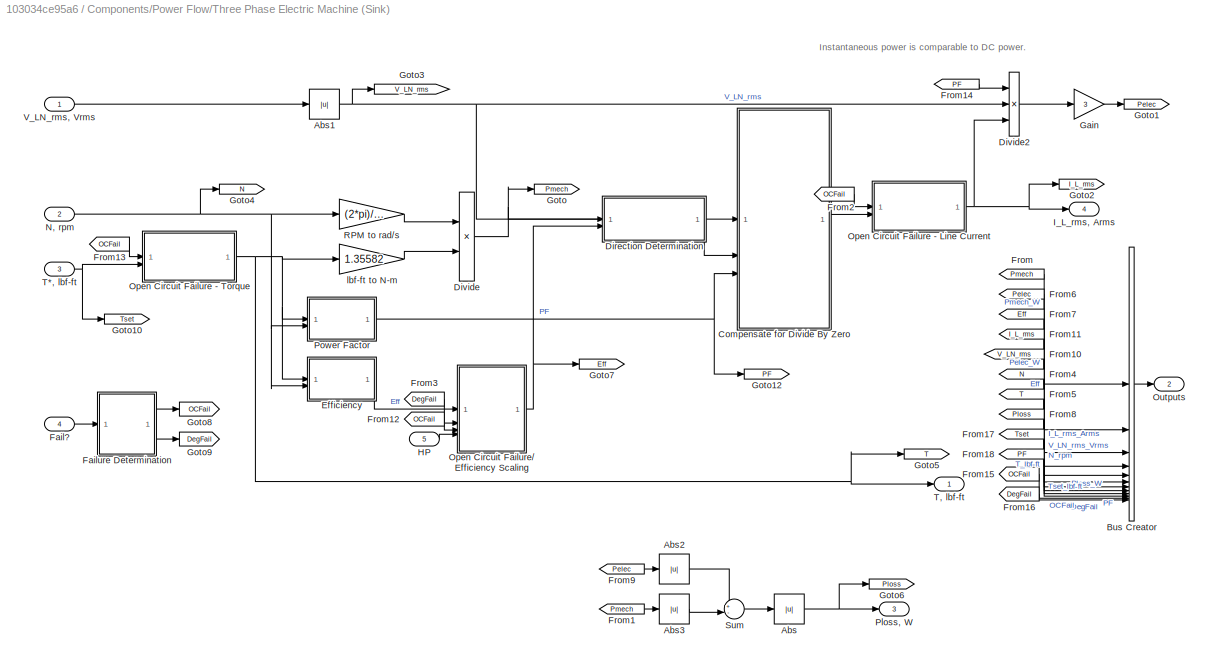
BLOCK [SubSystem] Components/Power Flow/Three Phase Electric Machine (Sink)
  AttributesFormatString = Three Phase Electric Machine\n(Sink)
BLOCK [Abs] Components/Power Flow/Three Phase Electric Machine (Sink)/Abs
  SaturateOnIntegerOverflow = off
BLOCK [Abs] Components/Power Flow/Three Phase Electric Machine (Sink)/Abs1
  SaturateOnIntegerOverflow = off
BLOCK [Abs] Components/Power Flow/Three Phase Electric Machine (Sink)/Abs2
  SaturateOnIntegerOverflow = off
BLOCK [Abs] Components/Power Flow/Three Phase Electric Machine (Sink)/Abs3
  SaturateOnIntegerOverflow = off
BLOCK [BusCreator] Components/Power Flow/Three Phase Electric Machine (Sink)/Bus Creator
  DisplayOption = bar
  InheritFromInputs = on
  Inputs = 12
BLOCK [SubSystem] Components/Power Flow/Three Phase Electric Machine (Sink)/Compensate for Divide By Zero
BLOCK [Constant] Components/Power Flow/Three Phase Electric Machine (Sink)/Compensate for Divide By Zero/Constant
  Value = eps
BLOCK [Constant] Components/Power Flow/Three Phase Electric Machine (Sink)/Compensate for Divide By Zero/Constant1
  Value = 3
BLOCK [Product] Components/Power Flow/Three Phase Electric Machine (Sink)/Compensate for Divide By Zero/Divide
  Inputs = ***
BLOCK [Product] Components/Power Flow/Three Phase Electric Machine (Sink)/Compensate for Divide By Zero/Divide1
  Inputs = /*
BLOCK [Outport] Components/Power Flow/Three Phase Electric Machine (Sink)/Compensate for Divide By Zero/I_L_rms
BLOCK [Inport] Components/Power Flow/Three Phase Electric Machine (Sink)/Compensate for Divide By Zero/PEquivElect
  Port = 2
BLOCK [Inport] Components/Power Flow/Three Phase Electric Machine (Sink)/Compensate for Divide By Zero/PF
  Port = 3
BLOCK [Switch] Components/Power Flow/Three Phase Electric Machine (Sink)/Compensate for Divide By Zero/Switch
  Criteria = u2 ~= 0
  InputSameDT = off
  SaturateOnIntegerOverflow = off
BLOCK [Inport] Components/Power Flow/Three Phase Electric Machine (Sink)/Compensate for Divide By Zero/V_LN_rms
BLOCK [SubSystem] Components/Power Flow/Three Phase Electric Machine (Sink)/Direction Determination
BLOCK [Product] Components/Power Flow/Three Phase Electric Machine (Sink)/Direction Determination/Divide
  Inputs = /*
BLOCK [Product] Components/Power Flow/Three Phase Electric Machine (Sink)/Direction Determination/Divide1
  Inputs = **
BLOCK [Inport] Components/Power Flow/Three Phase Electric Machine (Sink)/Direction Determination/Eff
  Port = 2
BLOCK [Outport] Components/Power Flow/Three Phase Electric Machine (Sink)/Direction Determination/PEquivElect
BLOCK [Inport] Components/Power Flow/Three Phase Electric Machine (Sink)/Direction Determination/PMech
BLOCK [Switch] Components/Power Flow/Three Phase Electric Machine (Sink)/Direction Determination/Switch
  Criteria = u2 > Threshold
  InputSameDT = off
  SaturateOnIntegerOverflow = off
BLOCK [Product] Components/Power Flow/Three Phase Electric Machine (Sink)/Divide
  Inputs = **
BLOCK [Product] Components/Power Flow/Three Phase Electric Machine (Sink)/Divide2
  Inputs = ***
BLOCK [SubSystem] Components/Power Flow/Three Phase Electric Machine (Sink)/Efficiency
BLOCK [Lookup_n-D] Components/Power Flow/Three Phase Electric Machine (Sink)/Efficiency/2-D Lookup Table
  BreakpointsForDimension1 = X_C_SpeedVec_M
  BreakpointsForDimension2 = Y_C_TorqueVec_M
  ExtrapMethod = Clip
  InputPortMap = u0,u1
  InternalRulePriority = Speed
  RndMeth = Simplest
  Table = T_C_EffArray_M
  UseLastTableValue = on
BLOCK [Abs] Components/Power Flow/Three Phase Electric Machine (Sink)/Efficiency/Abs
  SaturateOnIntegerOverflow = off
BLOCK [Abs] Components/Power Flow/Three Phase Electric Machine (Sink)/Efficiency/Abs1
  SaturateOnIntegerOverflow = off
BLOCK [Outport] Components/Power Flow/Three Phase Electric Machine (Sink)/Efficiency/Eff
BLOCK [Inport] Components/Power Flow/Three Phase Electric Machine (Sink)/Efficiency/N
  Port = 2
BLOCK [Inport] Components/Power Flow/Three Phase Electric Machine (Sink)/Efficiency/T
BLOCK [Inport] Components/Power Flow/Three Phase Electric Machine (Sink)/Fail?
  Port = 4
BLOCK [SubSystem] Components/Power Flow/Three Phase Electric Machine (Sink)/Failure Determination
BLOCK [Reference] Components/Power Flow/Three Phase Electric Machine (Sink)/Failure Determination/Compare To Constant  REF=simulink/Logic and Bit
Operations/Compare
To Constant
  SourceBlock = simulink/Logic and Bit\nOperations/Compare\nTo Constant
  SourceType = Compare To Constant
BLOCK [Reference] Components/Power Flow/Three Phase Electric Machine (Sink)/Failure Determination/Compare To Constant1  REF=simulink/Logic and Bit
Operations/Compare
To Constant
  SourceBlock = simulink/Logic and Bit\nOperations/Compare\nTo Constant
  SourceType = Compare To Constant
BLOCK [DataTypeConversion] Components/Power Flow/Three Phase Electric Machine (Sink)/Failure Determination/Data Type Conversion
  OutDataTypeStr = double
  RndMeth = Floor
  SaturateOnIntegerOverflow = off
BLOCK [DataTypeConversion] Components/Power Flow/Three Phase Electric Machine (Sink)/Failure Determination/Data Type Conversion1
  OutDataTypeStr = double
  RndMeth = Floor
  SaturateOnIntegerOverflow = off
BLOCK [Outport] Components/Power Flow/Three Phase Electric Machine (Sink)/Failure Determination/DegFail
  Port = 2
BLOCK [Inport] Components/Power Flow/Three Phase Electric Machine (Sink)/Failure Determination/Fail?
BLOCK [Constant] Components/Power Flow/Three Phase Electric Machine (Sink)/Failure Determination/Failure Mode
  Value = FM
BLOCK [Logic] Components/Power Flow/Three Phase Electric Machine (Sink)/Failure Determination/Logical Operator
  AllPortsSameDT = off
  OutDataTypeStr = boolean
BLOCK [Logic] Components/Power Flow/Three Phase Electric Machine (Sink)/Failure Determination/Logical Operator1
  AllPortsSameDT = off
  OutDataTypeStr = boolean
BLOCK [Outport] Components/Power Flow/Three Phase Electric Machine (Sink)/Failure Determination/OCFail
BLOCK [From] Components/Power Flow/Three Phase Electric Machine (Sink)/From
  GotoTag = Pmech
BLOCK [From] Components/Power Flow/Three Phase Electric Machine (Sink)/From1
  GotoTag = Pmech
BLOCK [From] Components/Power Flow/Three Phase Electric Machine (Sink)/From10
  GotoTag = V_LN_rms
BLOCK [From] Components/Power Flow/Three Phase Electric Machine (Sink)/From11
  GotoTag = I_L_rms
BLOCK [From] Components/Power Flow/Three Phase Electric Machine (Sink)/From12
  GotoTag = OCFail
BLOCK [From] Components/Power Flow/Three Phase Electric Machine (Sink)/From13
  GotoTag = OCFail
BLOCK [From] Components/Power Flow/Three Phase Electric Machine (Sink)/From14
  GotoTag = PF
BLOCK [From] Components/Power Flow/Three Phase Electric Machine (Sink)/From15
  GotoTag = OCFail
BLOCK [From] Components/Power Flow/Three Phase Electric Machine (Sink)/From16
  GotoTag = DegFail
BLOCK [From] Components/Power Flow/Three Phase Electric Machine (Sink)/From17
  GotoTag = Tset
BLOCK [From] Components/Power Flow/Three Phase Electric Machine (Sink)/From18
  GotoTag = PF
BLOCK [From] Components/Power Flow/Three Phase Electric Machine (Sink)/From2
  GotoTag = OCFail
BLOCK [From] Components/Power Flow/Three Phase Electric Machine (Sink)/From3
  GotoTag = DegFail
BLOCK [From] Components/Power Flow/Three Phase Electric Machine (Sink)/From4
  GotoTag = N
BLOCK [From] Components/Power Flow/Three Phase Electric Machine (Sink)/From5
  GotoTag = T
BLOCK [From] Components/Power Flow/Three Phase Electric Machine (Sink)/From6
  GotoTag = Pelec
BLOCK [From] Components/Power Flow/Three Phase Electric Machine (Sink)/From7
  GotoTag = Eff
BLOCK [From] Components/Power Flow/Three Phase Electric Machine (Sink)/From8
  GotoTag = Ploss
BLOCK [From] Components/Power Flow/Three Phase Electric Machine (Sink)/From9
  GotoTag = Pelec
BLOCK [Gain] Components/Power Flow/Three Phase Electric Machine (Sink)/Gain
  Gain = 3
BLOCK [Goto] Components/Power Flow/Three Phase Electric Machine (Sink)/Goto
  GotoTag = Pmech
BLOCK [Goto] Components/Power Flow/Three Phase Electric Machine (Sink)/Goto1
  GotoTag = Pelec
BLOCK [Goto] Components/Power Flow/Three Phase Electric Machine (Sink)/Goto10
  GotoTag = Tset
BLOCK [Goto] Components/Power Flow/Three Phase Electric Machine (Sink)/Goto12
  GotoTag = PF
BLOCK [Goto] Components/Power Flow/Three Phase Electric Machine (Sink)/Goto2
  GotoTag = I_L_rms
BLOCK [Goto] Components/Power Flow/Three Phase Electric Machine (Sink)/Goto3
  GotoTag = V_LN_rms
BLOCK [Goto] Components/Power Flow/Three Phase Electric Machine (Sink)/Goto4
  GotoTag = N
BLOCK [Goto] Components/Power Flow/Three Phase Electric Machine (Sink)/Goto5
  GotoTag = T
BLOCK [Goto] Components/Power Flow/Three Phase Electric Machine (Sink)/Goto6
  GotoTag = Ploss
BLOCK [Goto] Components/Power Flow/Three Phase Electric Machine (Sink)/Goto7
  GotoTag = Eff
BLOCK [Goto] Components/Power Flow/Three Phase Electric Machine (Sink)/Goto8
  GotoTag = OCFail
BLOCK [Goto] Components/Power Flow/Three Phase Electric Machine (Sink)/Goto9
  GotoTag = DegFail
BLOCK [Inport] Components/Power Flow/Three Phase Electric Machine (Sink)/HP
  Port = 5
BLOCK [Outport] Components/Power Flow/Three Phase Electric Machine (Sink)/I_L_rms, Arms
  Port = 4
BLOCK [Inport] Components/Power Flow/Three Phase Electric Machine (Sink)/N, rpm
  Port = 2
BLOCK [SubSystem] Components/Power Flow/Three Phase Electric Machine (Sink)/Open Circuit Failure - Line Current
BLOCK [Constant] Components/Power Flow/Three Phase Electric Machine (Sink)/Open Circuit Failure - Line Current/Constant
  Value = 0
BLOCK [Inport] Components/Power Flow/Three Phase Electric Machine (Sink)/Open Circuit Failure - Line Current/Failed?
BLOCK [Inport] Components/Power Flow/Three Phase Electric Machine (Sink)/Open Circuit Failure - Line Current/I_L_rms
  Port = 2
BLOCK [Outport] Components/Power Flow/Three Phase Electric Machine (Sink)/Open Circuit Failure - Line Current/I_L_rms 
BLOCK [RelationalOperator] Components/Power Flow/Three Phase Electric Machine (Sink)/Open Circuit Failure - Line Current/IsInf
  InputSameDT = off
  Operator = isInf
  OutDataTypeStr = boolean
  RndMeth = Simplest
BLOCK [RelationalOperator] Components/Power Flow/Three Phase Electric Machine (Sink)/Open Circuit Failure - Line Current/IsNaN
  InputSameDT = off
  Operator = isNaN
  OutDataTypeStr = boolean
  RndMeth = Simplest
BLOCK [Logic] Components/Power Flow/Three Phase Electric Machine (Sink)/Open Circuit Failure - Line Current/Logical Operator
  AllPortsSameDT = off
  Inputs = 3
  Operator = OR
  OutDataTypeStr = boolean
BLOCK [Switch] Components/Power Flow/Three Phase Electric Machine (Sink)/Open Circuit Failure - Line Current/Switch
  Criteria = u2 > Threshold
  InputSameDT = off
  SaturateOnIntegerOverflow = off
BLOCK [SubSystem] Components/Power Flow/Three Phase Electric Machine (Sink)/Open Circuit Failure - Torque
BLOCK [Constant] Components/Power Flow/Three Phase Electric Machine (Sink)/Open Circuit Failure - Torque/Constant
  Value = 0
BLOCK [Inport] Components/Power Flow/Three Phase Electric Machine (Sink)/Open Circuit Failure - Torque/Failed?
BLOCK [RelationalOperator] Components/Power Flow/Three Phase Electric Machine (Sink)/Open Circuit Failure - Torque/IsInf
  InputSameDT = off
  Operator = isInf
  OutDataTypeStr = boolean
  RndMeth = Simplest
BLOCK [RelationalOperator] Components/Power Flow/Three Phase Electric Machine (Sink)/Open Circuit Failure - Torque/IsNaN
  InputSameDT = off
  Operator = isNaN
  OutDataTypeStr = boolean
  RndMeth = Simplest
BLOCK [Logic] Components/Power Flow/Three Phase Electric Machine (Sink)/Open Circuit Failure - Torque/Logical Operator
  AllPortsSameDT = off
  Inputs = 3
  Operator = OR
  OutDataTypeStr = boolean
BLOCK [Switch] Components/Power Flow/Three Phase Electric Machine (Sink)/Open Circuit Failure - Torque/Switch
  Criteria = u2 > Threshold
  InputSameDT = off
  SaturateOnIntegerOverflow = off
BLOCK [Outport] Components/Power Flow/Three Phase Electric Machine (Sink)/Open Circuit Failure - Torque/T  
BLOCK [Inport] Components/Power Flow/Three Phase Electric Machine (Sink)/Open Circuit Failure - Torque/T*
  Port = 2
BLOCK [SubSystem] Components/Power Flow/Three Phase Electric Machine (Sink)/Open Circuit Failure// Efficiency Scaling
BLOCK [Constant] Components/Power Flow/Three Phase Electric Machine (Sink)/Open Circuit Failure// Efficiency Scaling/Constant
  Value = 0
BLOCK [Constant] Components/Power Flow/Three Phase Electric Machine (Sink)/Open Circuit Failure// Efficiency Scaling/Constant1
BLOCK [Inport] Components/Power Flow/Three Phase Electric Machine (Sink)/Open Circuit Failure// Efficiency Scaling/DegFail?
  Port = 2
BLOCK [Product] Components/Power Flow/Three Phase Electric Machine (Sink)/Open Circuit Failure// Efficiency Scaling/Divide
  Inputs = **
BLOCK [Inport] Components/Power Flow/Three Phase Electric Machine (Sink)/Open Circuit Failure// Efficiency Scaling/Eff
BLOCK [Outport] Components/Power Flow/Three Phase Electric Machine (Sink)/Open Circuit Failure// Efficiency Scaling/Eff 
BLOCK [Inport] Components/Power Flow/Three Phase Electric Machine (Sink)/Open Circuit Failure// Efficiency Scaling/HP
  Port = 4
BLOCK [Switch] Components/Power Flow/Three Phase Electric Machine (Sink)/Open Circuit Failure// Efficiency Scaling/If degradation failure, penalize Eff.
  Criteria = u2 > Threshold
  InputSameDT = off
  SaturateOnIntegerOverflow = off
BLOCK [Switch] Components/Power Flow/Three Phase Electric Machine (Sink)/Open Circuit Failure// Efficiency Scaling/If open circuit failure, set Eff = 0.
  Criteria = u2 > Threshold
  InputSameDT = off
  SaturateOnIntegerOverflow = off
BLOCK [Inport] Components/Power Flow/Three Phase Electric Machine (Sink)/Open Circuit Failure// Efficiency Scaling/OCFail?
  Port = 3
BLOCK [Sum] Components/Power Flow/Three Phase Electric Machine (Sink)/Open Circuit Failure// Efficiency Scaling/Sum
  Inputs = +-|
BLOCK [Outport] Components/Power Flow/Three Phase Electric Machine (Sink)/Outputs
  Port = 2
BLOCK [Outport] Components/Power Flow/Three Phase Electric Machine (Sink)/Ploss, W
  Port = 3
BLOCK [SubSystem] Components/Power Flow/Three Phase Electric Machine (Sink)/Power Factor
BLOCK [Lookup_n-D] Components/Power Flow/Three Phase Electric Machine (Sink)/Power Factor/2-D Lookup Table
  BreakpointsForDimension1 = X_C_SpeedVec_M
  BreakpointsForDimension2 = Y_C_TorqueVec_M
  ExtrapMethod = Clip
  InputPortMap = u0,u1
  InternalRulePriority = Speed
  RndMeth = Simplest
  Table = T_C_PFArray_M
  UseLastTableValue = on
BLOCK [Abs] Components/Power Flow/Three Phase Electric Machine (Sink)/Power Factor/Abs
  SaturateOnIntegerOverflow = off
BLOCK [Abs] Components/Power Flow/Three Phase Electric Machine (Sink)/Power Factor/Abs1
  SaturateOnIntegerOverflow = off
BLOCK [Inport] Components/Power Flow/Three Phase Electric Machine (Sink)/Power Factor/N
  Port = 2
BLOCK [Outport] Components/Power Flow/Three Phase Electric Machine (Sink)/Power Factor/PF
BLOCK [Inport] Components/Power Flow/Three Phase Electric Machine (Sink)/Power Factor/T
BLOCK [Gain] Components/Power Flow/Three Phase Electric Machine (Sink)/RPM to rad//s
  Gain = (2*pi)/60
BLOCK [Sum] Components/Power Flow/Three Phase Electric Machine (Sink)/Sum
  Inputs = +-|
BLOCK [Inport] Components/Power Flow/Three Phase Electric Machine (Sink)/T*, lbf-ft
  Port = 3
BLOCK [Outport] Components/Power Flow/Three Phase Electric Machine (Sink)/T, lbf-ft
BLOCK [Inport] Components/Power Flow/Three Phase Electric Machine (Sink)/V_LN_rms, Vrms
BLOCK [Gain] Components/Power Flow/Three Phase Electric Machine (Sink)/lbf-ft to N-m
  Gain = 1.35582
BLOCK [SubSystem] Components/Power Flow/Three Phase Electric Machine (Source)
  AttributesFormatString = Three Phase Electric Machine\n(Source)
BLOCK [Abs] Components/Power Flow/Three Phase Electric Machine (Source)/Abs
  SaturateOnIntegerOverflow = off
BLOCK [Abs] Components/Power Flow/Three Phase Electric Machine (Source)/Abs1
  SaturateOnIntegerOverflow = off
BLOCK [Abs] Components/Power Flow/Three Phase Electric Machine (Source)/Abs2
  SaturateOnIntegerOverflow = off
BLOCK [Gain] Components/Power Flow/Three Phase Electric Machine (Source)/Back EMF Constant (V_LL_peak//RPM)
  Gain = Ke
BLOCK [BusCreator] Components/Power Flow/Three Phase Electric Machine (Source)/Bus Creator1
  DisplayOption = bar
  InheritFromInputs = on
  Inputs = 11
BLOCK [SubSystem] Components/Power Flow/Three Phase Electric Machine (Source)/Compensate for Divide By Zero
BLOCK [SubSystem] Components/Power Flow/Three Phase Electric Machine (Source)/Compensate for Divide By Zero/Fix Divide By Zero.
BLOCK [Constant] Components/Power Flow/Three Phase Electric Machine (Source)/Compensate for Divide By Zero/Fix Divide By Zero./Constant
  Value = eps
BLOCK [Product] Components/Power Flow/Three Phase Electric Machine (Source)/Compensate for Divide By Zero/Fix Divide By Zero./Divide1
  Inputs = /*
BLOCK [Inport] Components/Power Flow/Three Phase Electric Machine (Source)/Compensate for Divide By Zero/Fix Divide By Zero./N
BLOCK [Inport] Components/Power Flow/Three Phase Electric Machine (Source)/Compensate for Divide By Zero/Fix Divide By Zero./PEquivMech
  Port = 2
BLOCK [Switch] Components/Power Flow/Three Phase Electric Machine (Source)/Compensate for Divide By Zero/Fix Divide By Zero./Switch
  Criteria = u2 ~= 0
  InputSameDT = off
  SaturateOnIntegerOverflow = off
BLOCK [Outport] Components/Power Flow/Three Phase Electric Machine (Source)/Compensate for Divide By Zero/Fix Divide By Zero./T
BLOCK [Inport] Components/Power Flow/Three Phase Electric Machine (Source)/Compensate for Divide By Zero/N
  Port = 2
BLOCK [Inport] Components/Power Flow/Three Phase Electric Machine (Source)/Compensate for Divide By Zero/PEquivMech
BLOCK [Outport] Components/Power Flow/Three Phase Electric Machine (Source)/Compensate for Divide By Zero/T
BLOCK [SubSystem] Components/Power Flow/Three Phase Electric Machine (Source)/Direction Determination
BLOCK [Product] Components/Power Flow/Three Phase Electric Machine (Source)/Direction Determination/Divide3
  Inputs = **
BLOCK [Inport] Components/Power Flow/Three Phase Electric Machine (Source)/Direction Determination/Eff
BLOCK [Outport] Components/Power Flow/Three Phase Electric Machine (Source)/Direction Determination/PEquivMech
BLOCK [Inport] Components/Power Flow/Three Phase Electric Machine (Source)/Direction Determination/Pelec
  Port = 2
BLOCK [SubSystem] Components/Power Flow/Three Phase Electric Machine (Source)/Direction Determination/Subsystem
BLOCK [Constant] Components/Power Flow/Three Phase Electric Machine (Source)/Direction Determination/Subsystem/Constant
  Value = 0
BLOCK [Product] Components/Power Flow/Three Phase Electric Machine (Source)/Direction Determination/Subsystem/Divide
  Inputs = **
BLOCK [Product] Components/Power Flow/Three Phase Electric Machine (Source)/Direction Determination/Subsystem/Divide2
  Inputs = */
BLOCK [Inport] Components/Power Flow/Three Phase Electric Machine (Source)/Direction Determination/Subsystem/Eff
  Port = 2
BLOCK [Outport] Components/Power Flow/Three Phase Electric Machine (Source)/Direction Determination/Subsystem/PEquivMech
BLOCK [Inport] Components/Power Flow/Three Phase Electric Machine (Source)/Direction Determination/Subsystem/Pelec
BLOCK [Switch] Components/Power Flow/Three Phase Electric Machine (Source)/Direction Determination/Subsystem/Switch
  Criteria = u2 ~= 0
  InputSameDT = off
  SaturateOnIntegerOverflow = off
BLOCK [Switch] Components/Power Flow/Three Phase Electric Machine (Source)/Direction Determination/Switch
  Criteria = u2 > Threshold
  InputSameDT = off
  SaturateOnIntegerOverflow = off
BLOCK [Product] Components/Power Flow/Three Phase Electric Machine (Source)/Divide
  Inputs = **
BLOCK [Product] Components/Power Flow/Three Phase Electric Machine (Source)/Divide1
  Inputs = ***
BLOCK [SubSystem] Components/Power Flow/Three Phase Electric Machine (Source)/Efficiency
BLOCK [Lookup_n-D] Components/Power Flow/Three Phase Electric Machine (Source)/Efficiency/2-D Lookup Table
  BreakpointsForDimension1 = X_C_SpeedVec_M
  BreakpointsForDimension2 = Y_C_TorqueVec_M
  ExtrapMethod = Clip
  InputPortMap = u0,u1
  InternalRulePriority = Speed
  RndMeth = Simplest
  Table = T_C_EffArray_M
  UseLastTableValue = on
BLOCK [Abs] Components/Power Flow/Three Phase Electric Machine (Source)/Efficiency/Abs
  SaturateOnIntegerOverflow = off
BLOCK [Abs] Components/Power Flow/Three Phase Electric Machine (Source)/Efficiency/Abs1
  SaturateOnIntegerOverflow = off
BLOCK [Outport] Components/Power Flow/Three Phase Electric Machine (Source)/Efficiency/Eff
BLOCK [Inport] Components/Power Flow/Three Phase Electric Machine (Source)/Efficiency/N (RPM)
  Port = 2
BLOCK [Saturate] Components/Power Flow/Three Phase Electric Machine (Source)/Efficiency/Saturation
  LowerLimit = eps
  UpperLimit = 1
BLOCK [Inport] Components/Power Flow/Three Phase Electric Machine (Source)/Efficiency/T (lbf-ft)
BLOCK [Inport] Components/Power Flow/Three Phase Electric Machine (Source)/Fail?
  Port = 3
BLOCK [SubSystem] Components/Power Flow/Three Phase Electric Machine (Source)/Failure Determination
BLOCK [Reference] Components/Power Flow/Three Phase Electric Machine (Source)/Failure Determination/Compare To Constant  REF=simulink/Logic and Bit
Operations/Compare
To Constant
  SourceBlock = simulink/Logic and Bit\nOperations/Compare\nTo Constant
  SourceType = Compare To Constant
BLOCK [Reference] Components/Power Flow/Three Phase Electric Machine (Source)/Failure Determination/Compare To Constant1  REF=simulink/Logic and Bit
Operations/Compare
To Constant
  SourceBlock = simulink/Logic and Bit\nOperations/Compare\nTo Constant
  SourceType = Compare To Constant
BLOCK [DataTypeConversion] Components/Power Flow/Three Phase Electric Machine (Source)/Failure Determination/Data Type Conversion
  OutDataTypeStr = double
  RndMeth = Floor
  SaturateOnIntegerOverflow = off
BLOCK [DataTypeConversion] Components/Power Flow/Three Phase Electric Machine (Source)/Failure Determination/Data Type Conversion1
  OutDataTypeStr = double
  RndMeth = Floor
  SaturateOnIntegerOverflow = off
BLOCK [Outport] Components/Power Flow/Three Phase Electric Machine (Source)/Failure Determination/DegFail
  Port = 2
BLOCK [Inport] Components/Power Flow/Three Phase Electric Machine (Source)/Failure Determination/Fail?
BLOCK [Constant] Components/Power Flow/Three Phase Electric Machine (Source)/Failure Determination/Failure Mode
  Value = FM
BLOCK [Logic] Components/Power Flow/Three Phase Electric Machine (Source)/Failure Determination/Logical Operator
  AllPortsSameDT = off
  OutDataTypeStr = boolean
BLOCK [Logic] Components/Power Flow/Three Phase Electric Machine (Source)/Failure Determination/Logical Operator1
  AllPortsSameDT = off
  OutDataTypeStr = boolean
BLOCK [Outport] Components/Power Flow/Three Phase Electric Machine (Source)/Failure Determination/OCFail
BLOCK [From] Components/Power Flow/Three Phase Electric Machine (Source)/From
  GotoTag = Pmech
BLOCK [From] Components/Power Flow/Three Phase Electric Machine (Source)/From1
  GotoTag = Pelec
BLOCK [From] Components/Power Flow/Three Phase Electric Machine (Source)/From10
  GotoTag = Pelec
BLOCK [From] Components/Power Flow/Three Phase Electric Machine (Source)/From11
  GotoTag = Pmech
BLOCK [From] Components/Power Flow/Three Phase Electric Machine (Source)/From12
  GotoTag = OCFail
BLOCK [From] Components/Power Flow/Three Phase Electric Machine (Source)/From13
  GotoTag = PF
BLOCK [From] Components/Power Flow/Three Phase Electric Machine (Source)/From14
  GotoTag = OCFail
BLOCK [From] Components/Power Flow/Three Phase Electric Machine (Source)/From15
  GotoTag = DegFail
BLOCK [From] Components/Power Flow/Three Phase Electric Machine (Source)/From2
  GotoTag = N
BLOCK [From] Components/Power Flow/Three Phase Electric Machine (Source)/From3
  GotoTag = T
BLOCK [From] Components/Power Flow/Three Phase Electric Machine (Source)/From4
  GotoTag = I_L_rms
BLOCK [From] Components/Power Flow/Three Phase Electric Machine (Source)/From5
  GotoTag = Eff
BLOCK [From] Components/Power Flow/Three Phase Electric Machine (Source)/From6
  GotoTag = Ploss
BLOCK [From] Components/Power Flow/Three Phase Electric Machine (Source)/From7
  GotoTag = V_LN_rms
BLOCK [From] Components/Power Flow/Three Phase Electric Machine (Source)/From8
  GotoTag = DegFail
BLOCK [From] Components/Power Flow/Three Phase Electric Machine (Source)/From9
  GotoTag = OCFail
BLOCK [Gain] Components/Power Flow/Three Phase Electric Machine (Source)/Gain
  Gain = 3
BLOCK [Goto] Components/Power Flow/Three Phase Electric Machine (Source)/Goto
  GotoTag = Pmech
BLOCK [Goto] Components/Power Flow/Three Phase Electric Machine (Source)/Goto1
  GotoTag = T
BLOCK [Goto] Components/Power Flow/Three Phase Electric Machine (Source)/Goto10
  GotoTag = I_L_rms
BLOCK [Goto] Components/Power Flow/Three Phase Electric Machine (Source)/Goto12
  GotoTag = PF
BLOCK [Goto] Components/Power Flow/Three Phase Electric Machine (Source)/Goto2
  GotoTag = Pelec
BLOCK [Goto] Components/Power Flow/Three Phase Electric Machine (Source)/Goto3
  GotoTag = Eff
BLOCK [Goto] Components/Power Flow/Three Phase Electric Machine (Source)/Goto4
  GotoTag = Ploss
BLOCK [Goto] Components/Power Flow/Three Phase Electric Machine (Source)/Goto5
  GotoTag = V_LN_rms
BLOCK [Goto] Components/Power Flow/Three Phase Electric Machine (Source)/Goto6
  GotoTag = OCFail
BLOCK [Goto] Components/Power Flow/Three Phase Electric Machine (Source)/Goto8
  GotoTag = N
BLOCK [Goto] Components/Power Flow/Three Phase Electric Machine (Source)/Goto9
  GotoTag = DegFail
BLOCK [Inport] Components/Power Flow/Three Phase Electric Machine (Source)/HP
  Port = 4
BLOCK [Inport] Components/Power Flow/Three Phase Electric Machine (Source)/I_L_rms, Arms
  Port = 2
BLOCK [Gain] Components/Power Flow/Three Phase Electric Machine (Source)/LL to LN
  Gain = 1/sqrt(3)
BLOCK [Inport] Components/Power Flow/Three Phase Electric Machine (Source)/N, rpm
BLOCK [Gain] Components/Power Flow/Three Phase Electric Machine (Source)/N-m to lbf-ft
  Gain = 0.737562
BLOCK [SubSystem] Components/Power Flow/Three Phase Electric Machine (Source)/Open Circuit Failure - Line-Neutral Voltage
BLOCK [Constant] Components/Power Flow/Three Phase Electric Machine (Source)/Open Circuit Failure - Line-Neutral Voltage/Constant
  Value = 0
BLOCK [Inport] Components/Power Flow/Three Phase Electric Machine (Source)/Open Circuit Failure - Line-Neutral Voltage/Failed?
BLOCK [RelationalOperator] Components/Power Flow/Three Phase Electric Machine (Source)/Open Circuit Failure - Line-Neutral Voltage/IsInf
  InputSameDT = off
  Operator = isInf
  OutDataTypeStr = boolean
  RndMeth = Simplest
BLOCK [RelationalOperator] Components/Power Flow/Three Phase Electric Machine (Source)/Open Circuit Failure - Line-Neutral Voltage/IsNaN
  InputSameDT = off
  Operator = isNaN
  OutDataTypeStr = boolean
  RndMeth = Simplest
BLOCK [Logic] Components/Power Flow/Three Phase Electric Machine (Source)/Open Circuit Failure - Line-Neutral Voltage/Logical Operator
  AllPortsSameDT = off
  Inputs = 3
  Operator = OR
  OutDataTypeStr = boolean
BLOCK [Switch] Components/Power Flow/Three Phase Electric Machine (Source)/Open Circuit Failure - Line-Neutral Voltage/Switch
  Criteria = u2 > Threshold
  InputSameDT = off
  SaturateOnIntegerOverflow = off
BLOCK [Inport] Components/Power Flow/Three Phase Electric Machine (Source)/Open Circuit Failure - Line-Neutral Voltage/V_LN_rms
  Port = 2
BLOCK [Outport] Components/Power Flow/Three Phase Electric Machine (Source)/Open Circuit Failure - Line-Neutral Voltage/V_LN_rms 
BLOCK [SubSystem] Components/Power Flow/Three Phase Electric Machine (Source)/Open Circuit// Degradation Failure
BLOCK [Constant] Components/Power Flow/Three Phase Electric Machine (Source)/Open Circuit// Degradation Failure/Constant
  Value = 0
BLOCK [Constant] Components/Power Flow/Three Phase Electric Machine (Source)/Open Circuit// Degradation Failure/Constant1
BLOCK [Inport] Components/Power Flow/Three Phase Electric Machine (Source)/Open Circuit// Degradation Failure/DegFail?
  Port = 2
BLOCK [Product] Components/Power Flow/Three Phase Electric Machine (Source)/Open Circuit// Degradation Failure/Divide
  Inputs = **
BLOCK [Inport] Components/Power Flow/Three Phase Electric Machine (Source)/Open Circuit// Degradation Failure/Eff
BLOCK [Outport] Components/Power Flow/Three Phase Electric Machine (Source)/Open Circuit// Degradation Failure/Eff 
BLOCK [Inport] Components/Power Flow/Three Phase Electric Machine (Source)/Open Circuit// Degradation Failure/HP
  Port = 4
BLOCK [Switch] Components/Power Flow/Three Phase Electric Machine (Source)/Open Circuit// Degradation Failure/If degradation failure, penalize Eff.
  Criteria = u2 > Threshold
  InputSameDT = off
  SaturateOnIntegerOverflow = off
BLOCK [Switch] Components/Power Flow/Three Phase Electric Machine (Source)/Open Circuit// Degradation Failure/If open circuit failure, set Eff = 0.
  Criteria = u2 > Threshold
  InputSameDT = off
  SaturateOnIntegerOverflow = off
BLOCK [Inport] Components/Power Flow/Three Phase Electric Machine (Source)/Open Circuit// Degradation Failure/OCFail?
  Port = 3
BLOCK [Sum] Components/Power Flow/Three Phase Electric Machine (Source)/Open Circuit// Degradation Failure/Sum
  Inputs = +-|
BLOCK [Outport] Components/Power Flow/Three Phase Electric Machine (Source)/Outputs
  Port = 3
BLOCK [Outport] Components/Power Flow/Three Phase Electric Machine (Source)/Ploss, W
  Port = 4
BLOCK [Reference] Components/Power Flow/Three Phase Electric Machine (Source)/Power Factor  REF=$bdroot/Components/Power Flow/Three Phase Electric Machine
(Sink)/Power Factor
  SourceBlock = $bdroot/Components/Power Flow/Three Phase Electric Machine\n(Sink)/Power Factor
  SourceType = SubSystem
BLOCK [Gain] Components/Power Flow/Three Phase Electric Machine (Source)/RPM to rad//s
  Gain = (2*pi)/60
BLOCK [Sum] Components/Power Flow/Three Phase Electric Machine (Source)/Sum
  Inputs = |+-
BLOCK [Outport] Components/Power Flow/Three Phase Electric Machine (Source)/T(t), lbf-ft
  Port = 5
BLOCK [Inport] Components/Power Flow/Three Phase Electric Machine (Source)/T(t-1), lbf-ft
  Port = 5
BLOCK [Outport] Components/Power Flow/Three Phase Electric Machine (Source)/T, lbf-ft
  Port = 2
BLOCK [Outport] Components/Power Flow/Three Phase Electric Machine (Source)/V_LN_rms, Vrms
BLOCK [Gain] Components/Power Flow/Three Phase Electric Machine (Source)/peak to rms
  Gain = 1/sqrt(2)
BLOCK [SubSystem] Components/Power Flow/Three Phase Electric Machine with Temperature Dependence (Sink)
  AttributesFormatString = Three Phase Electric Machine \nwith Temperature Dependence\n(Sink)
BLOCK [Abs] Components/Power Flow/Three Phase Electric Machine with Temperature Dependence (Sink)/Abs1
  SaturateOnIntegerOverflow = off
BLOCK [Gain] Components/Power Flow/Three Phase Electric Machine with Temperature Dependence (Sink)/Average to Instantaneous (Total) Power
  Gain = 3
BLOCK [BusCreator] Components/Power Flow/Three Phase Electric Machine with Temperature Dependence (Sink)/Bus Creator
  DisplayOption = bar
  InheritFromInputs = on
  Inputs = 11
BLOCK [SubSystem] Components/Power Flow/Three Phase Electric Machine with Temperature Dependence (Sink)/Compensate for Divide By Zero
BLOCK [SubSystem] Components/Power Flow/Three Phase Electric Machine with Temperature Dependence (Sink)/Compensate for Divide By Zero/Fix Divide By Zero.
BLOCK [Constant] Components/Power Flow/Three Phase Electric Machine with Temperature Dependence (Sink)/Compensate for Divide By Zero/Fix Divide By Zero./Constant
  Value = eps
BLOCK [Product] Components/Power Flow/Three Phase Electric Machine with Temperature Dependence (Sink)/Compensate for Divide By Zero/Fix Divide By Zero./Divide1
  Inputs = /*
BLOCK [Outport] Components/Power Flow/Three Phase Electric Machine with Temperature Dependence (Sink)/Compensate for Divide By Zero/Fix Divide By Zero./I_L_rms
BLOCK [Inport] Components/Power Flow/Three Phase Electric Machine with Temperature Dependence (Sink)/Compensate for Divide By Zero/Fix Divide By Zero./PEquivElect
  Port = 2
BLOCK [Switch] Components/Power Flow/Three Phase Electric Machine with Temperature Dependence (Sink)/Compensate for Divide By Zero/Fix Divide By Zero./Switch
  Criteria = u2 ~= 0
  InputSameDT = off
  SaturateOnIntegerOverflow = off
BLOCK [Inport] Components/Power Flow/Three Phase Electric Machine with Temperature Dependence (Sink)/Compensate for Divide By Zero/Fix Divide By Zero./V_LN_rms
BLOCK [Outport] Components/Power Flow/Three Phase Electric Machine with Temperature Dependence (Sink)/Compensate for Divide By Zero/I_L_rms
BLOCK [Inport] Components/Power Flow/Three Phase Electric Machine with Temperature Dependence (Sink)/Compensate for Divide By Zero/PEquivElect
  Port = 2
BLOCK [Inport] Components/Power Flow/Three Phase Electric Machine with Temperature Dependence (Sink)/Compensate for Divide By Zero/V_LN_rms
BLOCK [SubSystem] Components/Power Flow/Three Phase Electric Machine with Temperature Dependence (Sink)/Direction Determination
BLOCK [Product] Components/Power Flow/Three Phase Electric Machine with Temperature Dependence (Sink)/Direction Determination/Divide
  Inputs = /*
BLOCK [Product] Components/Power Flow/Three Phase Electric Machine with Temperature Dependence (Sink)/Direction Determination/Divide1
  Inputs = **
BLOCK [Inport] Components/Power Flow/Three Phase Electric Machine with Temperature Dependence (Sink)/Direction Determination/Eff
  Port = 2
BLOCK [Outport] Components/Power Flow/Three Phase Electric Machine with Temperature Dependence (Sink)/Direction Determination/PEquivElect
BLOCK [Inport] Components/Power Flow/Three Phase Electric Machine with Temperature Dependence (Sink)/Direction Determination/PMech
BLOCK [Switch] Components/Power Flow/Three Phase Electric Machine with Temperature Dependence (Sink)/Direction Determination/Switch
  Criteria = u2 > Threshold
  InputSameDT = off
  SaturateOnIntegerOverflow = off
BLOCK [Product] Components/Power Flow/Three Phase Electric Machine with Temperature Dependence (Sink)/Divide
  Inputs = **
BLOCK [Product] Components/Power Flow/Three Phase Electric Machine with Temperature Dependence (Sink)/Divide2
  Inputs = **
BLOCK [SubSystem] Components/Power Flow/Three Phase Electric Machine with Temperature Dependence (Sink)/Efficiency
BLOCK [Abs] Components/Power Flow/Three Phase Electric Machine with Temperature Dependence (Sink)/Efficiency/Abs
  SaturateOnIntegerOverflow = off
BLOCK [Abs] Components/Power Flow/Three Phase Electric Machine with Temperature Dependence (Sink)/Efficiency/Abs1
  SaturateOnIntegerOverflow = off
BLOCK [Abs] Components/Power Flow/Three Phase Electric Machine with Temperature Dependence (Sink)/Efficiency/Abs2
  SaturateOnIntegerOverflow = off
BLOCK [Constant] Components/Power Flow/Three Phase Electric Machine with Temperature Dependence (Sink)/Efficiency/Constant
  Value = T0
BLOCK [Constant] Components/Power Flow/Three Phase Electric Machine with Temperature Dependence (Sink)/Efficiency/Constant1
BLOCK [SubSystem] Components/Power Flow/Three Phase Electric Machine with Temperature Dependence (Sink)/Efficiency/Copper Losses
BLOCK [Constant] Components/Power Flow/Three Phase Electric Machine with Temperature Dependence (Sink)/Efficiency/Copper Losses/C0_Cu
  Value = C_Cu(2)
BLOCK [Constant] Components/Power Flow/Three Phase Electric Machine with Temperature Dependence (Sink)/Efficiency/Copper Losses/C1_Cu
  Value = C_Cu(1)
BLOCK [Constant] Components/Power Flow/Three Phase Electric Machine with Temperature Dependence (Sink)/Efficiency/Copper Losses/Constant15
BLOCK [Constant] Components/Power Flow/Three Phase Electric Machine with Temperature Dependence (Sink)/Efficiency/Copper Losses/Constant7
  Value = R0_Cu
BLOCK [Constant] Components/Power Flow/Three Phase Electric Machine with Temperature Dependence (Sink)/Efficiency/Copper Losses/Constant8
  Value = alpha_Cu
BLOCK [Lookup_n-D] Components/Power Flow/Three Phase Electric Machine with Temperature Dependence (Sink)/Efficiency/Copper Losses/Current Lookup
  BreakpointsForDimension1 = Nvec
  InputPortMap = u0
  InternalRulePriority = Speed
  NumberOfTableDimensions = 1
  RndMeth = Simplest
  Table = Icontvec
BLOCK [Product] Components/Power Flow/Three Phase Electric Machine with Temperature Dependence (Sink)/Efficiency/Copper Losses/Divide1
  Inputs = **
BLOCK [Product] Components/Power Flow/Three Phase Electric Machine with Temperature Dependence (Sink)/Efficiency/Copper Losses/Divide2
  Inputs = **
BLOCK [Product] Components/Power Flow/Three Phase Electric Machine with Temperature Dependence (Sink)/Efficiency/Copper Losses/Divide3
  Inputs = **
BLOCK [Product] Components/Power Flow/Three Phase Electric Machine with Temperature Dependence (Sink)/Efficiency/Copper Losses/Divide4
  Inputs = ***
BLOCK [Inport] Components/Power Flow/Three Phase Electric Machine with Temperature Dependence (Sink)/Efficiency/Copper Losses/N
  Port = 2
BLOCK [Outport] Components/Power Flow/Three Phase Electric Machine with Temperature Dependence (Sink)/Efficiency/Copper Losses/Ploss_Cu
BLOCK [Math] Components/Power Flow/Three Phase Electric Machine with Temperature Dependence (Sink)/Efficiency/Copper Losses/Square1
  Operator = square
BLOCK [Sum] Components/Power Flow/Three Phase Electric Machine with Temperature Dependence (Sink)/Efficiency/Copper Losses/Subtract1
  IconShape = rectangular
BLOCK [Sum] Components/Power Flow/Three Phase Electric Machine with Temperature Dependence (Sink)/Efficiency/Copper Losses/Subtract2
  IconShape = rectangular
BLOCK [Inport] Components/Power Flow/Three Phase Electric Machine with Temperature Dependence (Sink)/Efficiency/Copper Losses/T - T0
BLOCK [Product] Components/Power Flow/Three Phase Electric Machine with Temperature Dependence (Sink)/Efficiency/Divide
  Inputs = **
BLOCK [Product] Components/Power Flow/Three Phase Electric Machine with Temperature Dependence (Sink)/Efficiency/Divide1
  Inputs = **
BLOCK [Product] Components/Power Flow/Three Phase Electric Machine with Temperature Dependence (Sink)/Efficiency/Divide2
  Inputs = */
BLOCK [Outport] Components/Power Flow/Three Phase Electric Machine with Temperature Dependence (Sink)/Efficiency/Eff
BLOCK [From] Components/Power Flow/Three Phase Electric Machine with Temperature Dependence (Sink)/Efficiency/From
  GotoTag = T
BLOCK [Goto] Components/Power Flow/Three Phase Electric Machine with Temperature Dependence (Sink)/Efficiency/Goto
  GotoTag = T
BLOCK [Inport] Components/Power Flow/Three Phase Electric Machine with Temperature Dependence (Sink)/Efficiency/I_L_rms(t-1)
  Port = 5
BLOCK [SubSystem] Components/Power Flow/Three Phase Electric Machine with Temperature Dependence (Sink)/Efficiency/Iron Losses
BLOCK [Constant] Components/Power Flow/Three Phase Electric Machine with Temperature Dependence (Sink)/Efficiency/Iron Losses/C0_Fe
  Value = C_Fe(3)
BLOCK [Constant] Components/Power Flow/Three Phase Electric Machine with Temperature Dependence (Sink)/Efficiency/Iron Losses/C1_Fe
  Value = C_Fe(2)
BLOCK [Constant] Components/Power Flow/Three Phase Electric Machine with Temperature Dependence (Sink)/Efficiency/Iron Losses/C2_Fe
  Value = C_Fe(1)
BLOCK [Constant] Components/Power Flow/Three Phase Electric Machine with Temperature Dependence (Sink)/Efficiency/Iron Losses/Constant1
BLOCK [Constant] Components/Power Flow/Three Phase Electric Machine with Temperature Dependence (Sink)/Efficiency/Iron Losses/Constant11
  Value = R0_Fe
BLOCK [Constant] Components/Power Flow/Three Phase Electric Machine with Temperature Dependence (Sink)/Efficiency/Iron Losses/Constant2
  Value = alpha_Fe
BLOCK [Product] Components/Power Flow/Three Phase Electric Machine with Temperature Dependence (Sink)/Efficiency/Iron Losses/Divide10
  Inputs = ***
BLOCK [Product] Components/Power Flow/Three Phase Electric Machine with Temperature Dependence (Sink)/Efficiency/Iron Losses/Divide5
  Inputs = **
BLOCK [Product] Components/Power Flow/Three Phase Electric Machine with Temperature Dependence (Sink)/Efficiency/Iron Losses/Divide6
  Inputs = */
BLOCK [Product] Components/Power Flow/Three Phase Electric Machine with Temperature Dependence (Sink)/Efficiency/Iron Losses/Divide7
  Inputs = ***
BLOCK [Inport] Components/Power Flow/Three Phase Electric Machine with Temperature Dependence (Sink)/Efficiency/Iron Losses/N
  Port = 2
BLOCK [Outport] Components/Power Flow/Three Phase Electric Machine with Temperature Dependence (Sink)/Efficiency/Iron Losses/Ploss_Fe
BLOCK [Math] Components/Power Flow/Three Phase Electric Machine with Temperature Dependence (Sink)/Efficiency/Iron Losses/Square1
  Operator = square
BLOCK [Sum] Components/Power Flow/Three Phase Electric Machine with Temperature Dependence (Sink)/Efficiency/Iron Losses/Subtract
  IconShape = rectangular
  Inputs = +++
BLOCK [Sum] Components/Power Flow/Three Phase Electric Machine with Temperature Dependence (Sink)/Efficiency/Iron Losses/Subtract4
  IconShape = rectangular
  Inputs = +-
BLOCK [Inport] Components/Power Flow/Three Phase Electric Machine with Temperature Dependence (Sink)/Efficiency/Iron Losses/T - T0
BLOCK [Inport] Components/Power Flow/Three Phase Electric Machine with Temperature Dependence (Sink)/Efficiency/N
  Port = 2
BLOCK [Outport] Components/Power Flow/Three Phase Electric Machine with Temperature Dependence (Sink)/Efficiency/Ploss
  Port = 2
BLOCK [Saturate] Components/Power Flow/Three Phase Electric Machine with Temperature Dependence (Sink)/Efficiency/Saturation
  LowerLimit = 0
  UpperLimit = 1
BLOCK [Sum] Components/Power Flow/Three Phase Electric Machine with Temperature Dependence (Sink)/Efficiency/Subtract
  IconShape = rectangular
  Inputs = +-
BLOCK [Sum] Components/Power Flow/Three Phase Electric Machine with Temperature Dependence (Sink)/Efficiency/Subtract2
  IconShape = rectangular
BLOCK [Sum] Components/Power Flow/Three Phase Electric Machine with Temperature Dependence (Sink)/Efficiency/Subtract3
  IconShape = rectangular
  Inputs = +-
BLOCK [Switch] Components/Power Flow/Three Phase Electric Machine with Temperature Dependence (Sink)/Efficiency/Switch
  Criteria = u2 > Threshold
  InputSameDT = off
  SaturateOnIntegerOverflow = off
BLOCK [Inport] Components/Power Flow/Three Phase Electric Machine with Temperature Dependence (Sink)/Efficiency/T
  Port = 4
BLOCK [Inport] Components/Power Flow/Three Phase Electric Machine with Temperature Dependence (Sink)/Efficiency/Trq
  Port = 3
BLOCK [Inport] Components/Power Flow/Three Phase Electric Machine with Temperature Dependence (Sink)/Efficiency/V_LN_rms
BLOCK [Gain] Components/Power Flow/Three Phase Electric Machine with Temperature Dependence (Sink)/Efficiency/lbf-ft//s to J//s
  Gain = 1.355818
BLOCK [Gain] Components/Power Flow/Three Phase Electric Machine with Temperature Dependence (Sink)/Efficiency/rpm to rad//s
  Gain = pi/30
BLOCK [Inport] Components/Power Flow/Three Phase Electric Machine with Temperature Dependence (Sink)/Fail?
  Port = 4
BLOCK [SubSystem] Components/Power Flow/Three Phase Electric Machine with Temperature Dependence (Sink)/Failure Determination
BLOCK [Reference] Components/Power Flow/Three Phase Electric Machine with Temperature Dependence (Sink)/Failure Determination/Compare To Constant  REF=simulink/Logic and Bit
Operations/Compare
To Constant
  SourceBlock = simulink/Logic and Bit\nOperations/Compare\nTo Constant
  SourceType = Compare To Constant
BLOCK [DataTypeConversion] Components/Power Flow/Three Phase Electric Machine with Temperature Dependence (Sink)/Failure Determination/Data Type Conversion
  OutDataTypeStr = double
  RndMeth = Floor
  SaturateOnIntegerOverflow = off
BLOCK [Inport] Components/Power Flow/Three Phase Electric Machine with Temperature Dependence (Sink)/Failure Determination/Fail?
BLOCK [Constant] Components/Power Flow/Three Phase Electric Machine with Temperature Dependence (Sink)/Failure Determination/Failure Mode
  Value = FM
BLOCK [Logic] Components/Power Flow/Three Phase Electric Machine with Temperature Dependence (Sink)/Failure Determination/Logical Operator
  AllPortsSameDT = off
  OutDataTypeStr = boolean
BLOCK [Outport] Components/Power Flow/Three Phase Electric Machine with Temperature Dependence (Sink)/Failure Determination/OCFail
BLOCK [From] Components/Power Flow/Three Phase Electric Machine with Temperature Dependence (Sink)/From
  GotoTag = Pmech
BLOCK [From] Components/Power Flow/Three Phase Electric Machine with Temperature Dependence (Sink)/From1
  GotoTag = Temp
BLOCK [From] Components/Power Flow/Three Phase Electric Machine with Temperature Dependence (Sink)/From10
  GotoTag = V_LN_rms
BLOCK [From] Components/Power Flow/Three Phase Electric Machine with Temperature Dependence (Sink)/From11
  GotoTag = I_L_rms
BLOCK [From] Components/Power Flow/Three Phase Electric Machine with Temperature Dependence (Sink)/From12
  GotoTag = OCFail
BLOCK [From] Components/Power Flow/Three Phase Electric Machine with Temperature Dependence (Sink)/From13
  GotoTag = OCFail
BLOCK [From] Components/Power Flow/Three Phase Electric Machine with Temperature Dependence (Sink)/From14
  GotoTag = Tset
BLOCK [From] Components/Power Flow/Three Phase Electric Machine with Temperature Dependence (Sink)/From15
  GotoTag = OCFail
BLOCK [From] Components/Power Flow/Three Phase Electric Machine with Temperature Dependence (Sink)/From2
  GotoTag = OCFail
BLOCK [From] Components/Power Flow/Three Phase Electric Machine with Temperature Dependence (Sink)/From4
  GotoTag = N
BLOCK [From] Components/Power Flow/Three Phase Electric Machine with Temperature Dependence (Sink)/From5
  GotoTag = T
BLOCK [From] Components/Power Flow/Three Phase Electric Machine with Temperature Dependence (Sink)/From6
  GotoTag = Pelec
BLOCK [From] Components/Power Flow/Three Phase Electric Machine with Temperature Dependence (Sink)/From7
  GotoTag = Eff
BLOCK [From] Components/Power Flow/Three Phase Electric Machine with Temperature Dependence (Sink)/From8
  GotoTag = Ploss
BLOCK [Goto] Components/Power Flow/Three Phase Electric Machine with Temperature Dependence (Sink)/Goto
  GotoTag = Pmech
BLOCK [Goto] Components/Power Flow/Three Phase Electric Machine with Temperature Dependence (Sink)/Goto1
  GotoTag = Pelec
BLOCK [Goto] Components/Power Flow/Three Phase Electric Machine with Temperature Dependence (Sink)/Goto10
  GotoTag = Tset
BLOCK [Goto] Components/Power Flow/Three Phase Electric Machine with Temperature Dependence (Sink)/Goto11
  GotoTag = Temp
BLOCK [Goto] Components/Power Flow/Three Phase Electric Machine with Temperature Dependence (Sink)/Goto2
  GotoTag = I_L_rms
BLOCK [Goto] Components/Power Flow/Three Phase Electric Machine with Temperature Dependence (Sink)/Goto3
  GotoTag = V_LN_rms
BLOCK [Goto] Components/Power Flow/Three Phase Electric Machine with Temperature Dependence (Sink)/Goto4
  GotoTag = N
BLOCK [Goto] Components/Power Flow/Three Phase Electric Machine with Temperature Dependence (Sink)/Goto5
  GotoTag = T
BLOCK [Goto] Components/Power Flow/Three Phase Electric Machine with Temperature Dependence (Sink)/Goto6
  GotoTag = Ploss
BLOCK [Goto] Components/Power Flow/Three Phase Electric Machine with Temperature Dependence (Sink)/Goto7
  GotoTag = Eff
BLOCK [Goto] Components/Power Flow/Three Phase Electric Machine with Temperature Dependence (Sink)/Goto8
  GotoTag = OCFail
BLOCK [Outport] Components/Power Flow/Three Phase Electric Machine with Temperature Dependence (Sink)/I_L_rms(t), Arms
  Port = 5
BLOCK [Inport] Components/Power Flow/Three Phase Electric Machine with Temperature Dependence (Sink)/I_L_rms(t-1), Arms
  Port = 6
BLOCK [Outport] Components/Power Flow/Three Phase Electric Machine with Temperature Dependence (Sink)/I_L_rms, Arms
  Port = 4
BLOCK [Gain] Components/Power Flow/Three Phase Electric Machine with Temperature Dependence (Sink)/Instantaneous (Total) to Average Power
  Gain = 1/3
BLOCK [Inport] Components/Power Flow/Three Phase Electric Machine with Temperature Dependence (Sink)/N, rpm
  Port = 2
BLOCK [SubSystem] Components/Power Flow/Three Phase Electric Machine with Temperature Dependence (Sink)/Open Circuit Failure
BLOCK [SubSystem] Components/Power Flow/Three Phase Electric Machine with Temperature Dependence (Sink)/Open Circuit Failure - Line Current
BLOCK [Constant] Components/Power Flow/Three Phase Electric Machine with Temperature Dependence (Sink)/Open Circuit Failure - Line Current/Constant
  Value = 0
BLOCK [Inport] Components/Power Flow/Three Phase Electric Machine with Temperature Dependence (Sink)/Open Circuit Failure - Line Current/Failed?
BLOCK [Inport] Components/Power Flow/Three Phase Electric Machine with Temperature Dependence (Sink)/Open Circuit Failure - Line Current/I_L_rms
  Port = 2
BLOCK [Outport] Components/Power Flow/Three Phase Electric Machine with Temperature Dependence (Sink)/Open Circuit Failure - Line Current/I_L_rms 
BLOCK [RelationalOperator] Components/Power Flow/Three Phase Electric Machine with Temperature Dependence (Sink)/Open Circuit Failure - Line Current/IsInf
  InputSameDT = off
  Operator = isInf
  OutDataTypeStr = boolean
  RndMeth = Simplest
BLOCK [RelationalOperator] Components/Power Flow/Three Phase Electric Machine with Temperature Dependence (Sink)/Open Circuit Failure - Line Current/IsNaN
  InputSameDT = off
  Operator = isNaN
  OutDataTypeStr = boolean
  RndMeth = Simplest
BLOCK [Logic] Components/Power Flow/Three Phase Electric Machine with Temperature Dependence (Sink)/Open Circuit Failure - Line Current/Logical Operator
  AllPortsSameDT = off
  Inputs = 3
  Operator = OR
  OutDataTypeStr = boolean
BLOCK [Switch] Components/Power Flow/Three Phase Electric Machine with Temperature Dependence (Sink)/Open Circuit Failure - Line Current/Switch
  Criteria = u2 > Threshold
  InputSameDT = off
  SaturateOnIntegerOverflow = off
BLOCK [SubSystem] Components/Power Flow/Three Phase Electric Machine with Temperature Dependence (Sink)/Open Circuit Failure - Torque
BLOCK [Constant] Components/Power Flow/Three Phase Electric Machine with Temperature Dependence (Sink)/Open Circuit Failure - Torque/Constant
  Value = 0
BLOCK [Inport] Components/Power Flow/Three Phase Electric Machine with Temperature Dependence (Sink)/Open Circuit Failure - Torque/Failed?
BLOCK [RelationalOperator] Components/Power Flow/Three Phase Electric Machine with Temperature Dependence (Sink)/Open Circuit Failure - Torque/IsInf
  InputSameDT = off
  Operator = isInf
  OutDataTypeStr = boolean
  RndMeth = Simplest
BLOCK [RelationalOperator] Components/Power Flow/Three Phase Electric Machine with Temperature Dependence (Sink)/Open Circuit Failure - Torque/IsNaN
  InputSameDT = off
  Operator = isNaN
  OutDataTypeStr = boolean
  RndMeth = Simplest
BLOCK [Logic] Components/Power Flow/Three Phase Electric Machine with Temperature Dependence (Sink)/Open Circuit Failure - Torque/Logical Operator
  AllPortsSameDT = off
  Inputs = 3
  Operator = OR
  OutDataTypeStr = boolean
BLOCK [Switch] Components/Power Flow/Three Phase Electric Machine with Temperature Dependence (Sink)/Open Circuit Failure - Torque/Switch
  Criteria = u2 > Threshold
  InputSameDT = off
  SaturateOnIntegerOverflow = off
BLOCK [Outport] Components/Power Flow/Three Phase Electric Machine with Temperature Dependence (Sink)/Open Circuit Failure - Torque/T  
BLOCK [Inport] Components/Power Flow/Three Phase Electric Machine with Temperature Dependence (Sink)/Open Circuit Failure - Torque/T*
  Port = 2
BLOCK [Constant] Components/Power Flow/Three Phase Electric Machine with Temperature Dependence (Sink)/Open Circuit Failure/Constant
  Value = 0
BLOCK [Inport] Components/Power Flow/Three Phase Electric Machine with Temperature Dependence (Sink)/Open Circuit Failure/Eff
BLOCK [Outport] Components/Power Flow/Three Phase Electric Machine with Temperature Dependence (Sink)/Open Circuit Failure/Eff 
BLOCK [Switch] Components/Power Flow/Three Phase Electric Machine with Temperature Dependence (Sink)/Open Circuit Failure/If open circuit failure, set Eff = 0.
  Criteria = u2 > Threshold
  InputSameDT = off
  SaturateOnIntegerOverflow = off
BLOCK [Inport] Components/Power Flow/Three Phase Electric Machine with Temperature Dependence (Sink)/Open Circuit Failure/OCFail?
  Port = 2
BLOCK [Outport] Components/Power Flow/Three Phase Electric Machine with Temperature Dependence (Sink)/Outputs
  Port = 2
BLOCK [Outport] Components/Power Flow/Three Phase Electric Machine with Temperature Dependence (Sink)/Ploss, W
  Port = 3
BLOCK [Gain] Components/Power Flow/Three Phase Electric Machine with Temperature Dependence (Sink)/RPM to rad//s
  Gain = (2*pi)/60
BLOCK [Inport] Components/Power Flow/Three Phase Electric Machine with Temperature Dependence (Sink)/T, degF
  Port = 5
BLOCK [Inport] Components/Power Flow/Three Phase Electric Machine with Temperature Dependence (Sink)/Trq*, lbf-ft
  Port = 3
BLOCK [Outport] Components/Power Flow/Three Phase Electric Machine with Temperature Dependence (Sink)/Trq, lbf-ft
BLOCK [Inport] Components/Power Flow/Three Phase Electric Machine with Temperature Dependence (Sink)/V_LN_rms, Vrms
BLOCK [Gain] Components/Power Flow/Three Phase Electric Machine with Temperature Dependence (Sink)/lbf-ft to N-m
  Gain = 1.35582
BLOCK [SubSystem] Extras
BLOCK [SubSystem] Extras/Heat Exchanger
  AttributesFormatString = Heat Exchanger
  ClipboardFcn = Heat Exchanger
BLOCK [Gain] Extras/Heat Exchanger/BTU//s to J//s
  Gain = 1055.06
BLOCK [BusCreator] Extras/Heat Exchanger/Bus Creator
  DisplayOption = bar
  InheritFromInputs = on
  Inputs = 11
BLOCK [MinMax] Extras/Heat Exchanger/Cmin
  Inputs = 2
BLOCK [Product] Extras/Heat Exchanger/Divide10
  Inputs = */
BLOCK [Product] Extras/Heat Exchanger/Divide12
  Inputs = /*
BLOCK [Product] Extras/Heat Exchanger/Divide6
  Inputs = **
BLOCK [Product] Extras/Heat Exchanger/Divide7
  Inputs = **
BLOCK [Product] Extras/Heat Exchanger/Divide8
  Inputs = **
BLOCK [Product] Extras/Heat Exchanger/Divide9
  Inputs = **
BLOCK [Lookup_n-D] Extras/Heat Exchanger/Effectiveness Table
  BreakpointsForDimension1 = Wh_vec
  BreakpointsForDimension2 = Wc_vec
  ExtrapMethod = Clip
  InputPortMap = u0,u1
  InternalRulePriority = Speed
  RndMeth = Simplest
  Table = eff_vec
  UseLastTableValue = on
BLOCK [From] Extras/Heat Exchanger/From
  GotoTag = Tc_in
BLOCK [From] Extras/Heat Exchanger/From1
  GotoTag = Th_in
BLOCK [From] Extras/Heat Exchanger/From10
  GotoTag = Qdot
BLOCK [From] Extras/Heat Exchanger/From11
  GotoTag = Cmin
BLOCK [From] Extras/Heat Exchanger/From12
  GotoTag = Wh
BLOCK [From] Extras/Heat Exchanger/From13
  GotoTag = Wc
BLOCK [From] Extras/Heat Exchanger/From14
  GotoTag = eff
BLOCK [From] Extras/Heat Exchanger/From2
  GotoTag = Th_in
BLOCK [From] Extras/Heat Exchanger/From3
  GotoTag = Tc_out
BLOCK [From] Extras/Heat Exchanger/From4
  GotoTag = Wc
BLOCK [From] Extras/Heat Exchanger/From5
  GotoTag = dTh
BLOCK [From] Extras/Heat Exchanger/From6
  GotoTag = Tc_in
BLOCK [From] Extras/Heat Exchanger/From7
  GotoTag = Th_out
BLOCK [From] Extras/Heat Exchanger/From8
  GotoTag = dTc
BLOCK [From] Extras/Heat Exchanger/From9
  GotoTag = Wh
BLOCK [Goto] Extras/Heat Exchanger/Goto
  GotoTag = Tc_in
BLOCK [Goto] Extras/Heat Exchanger/Goto1
  GotoTag = Th_in
BLOCK [Goto] Extras/Heat Exchanger/Goto10
  GotoTag = eff
BLOCK [Goto] Extras/Heat Exchanger/Goto2
  GotoTag = Qdot
BLOCK [Goto] Extras/Heat Exchanger/Goto3
  GotoTag = dTc
BLOCK [Goto] Extras/Heat Exchanger/Goto4
  GotoTag = dTh
BLOCK [Goto] Extras/Heat Exchanger/Goto5
  GotoTag = Wh
BLOCK [Goto] Extras/Heat Exchanger/Goto6
  GotoTag = Wc
BLOCK [Goto] Extras/Heat Exchanger/Goto7
  GotoTag = Cmin
BLOCK [Goto] Extras/Heat Exchanger/Goto8
  GotoTag = Tc_out
BLOCK [Goto] Extras/Heat Exchanger/Goto9
  GotoTag = Th_out
BLOCK [Outport] Extras/Heat Exchanger/Outputs
  Port = 3
BLOCK [Constant] Extras/Heat Exchanger/Specific Heat Capacity (cold), BTU//(lbm-°F)
  Value = cp_c
BLOCK [Constant] Extras/Heat Exchanger/Specific Heat Capacity (hot), BTU//(lbm-°F)
  Value = cp_h
BLOCK [Sum] Extras/Heat Exchanger/Subtract3
  IconShape = rectangular
  Inputs = +-
BLOCK [Sum] Extras/Heat Exchanger/Subtract4
  IconShape = rectangular
BLOCK [Sum] Extras/Heat Exchanger/Subtract5
  IconShape = rectangular
  Inputs = +-
BLOCK [Inport] Extras/Heat Exchanger/TC_In, degF
  Port = 2
BLOCK [Outport] Extras/Heat Exchanger/TC_Out, degF
  Port = 2
BLOCK [Outport] Extras/Heat Exchanger/TH_In(t), degF
  Port = 4
BLOCK [Inport] Extras/Heat Exchanger/TH_In(t-1), degF
  Port = 5
BLOCK [Inport] Extras/Heat Exchanger/TH_In, degF
BLOCK [Outport] Extras/Heat Exchanger/TH_Out, degF
BLOCK [Inport] Extras/Heat Exchanger/WC, lbm//s
  Port = 4
BLOCK [Inport] Extras/Heat Exchanger/WH, lbm//s
  Port = 3
BLOCK [SubSystem] Extras/Heat Sink
  AttributesFormatString = Heat Sink
BLOCK [Sum] Extras/Heat Sink/Add
  IconShape = rectangular
BLOCK [Sum] Extras/Heat Sink/Add1
  IconShape = rectangular
BLOCK [BusCreator] Extras/Heat Sink/Bus Creator
  DisplayOption = bar
  InheritFromInputs = on
  Inputs = 6
BLOCK [Product] Extras/Heat Sink/Divide
  Inputs = */
BLOCK [Product] Extras/Heat Sink/Divide1
  Inputs = **
BLOCK [Product] Extras/Heat Sink/Divide2
  Inputs = */
BLOCK [From] Extras/Heat Sink/From
  GotoTag = W
BLOCK [From] Extras/Heat Sink/From1
  GotoTag = T
BLOCK [From] Extras/Heat Sink/From2
  GotoTag = Tcool
BLOCK [From] Extras/Heat Sink/From3
  GotoTag = W
BLOCK [From] Extras/Heat Sink/From4
  GotoTag = G
BLOCK [From] Extras/Heat Sink/From5
  GotoTag = Ploss
BLOCK [From] Extras/Heat Sink/From6
  GotoTag = Tcool_out
BLOCK [Goto] Extras/Heat Sink/Goto
  GotoTag = W
BLOCK [Goto] Extras/Heat Sink/Goto1
  GotoTag = T
BLOCK [Goto] Extras/Heat Sink/Goto2
  GotoTag = Tcool_out
BLOCK [Goto] Extras/Heat Sink/Goto3
  GotoTag = Ploss
BLOCK [Goto] Extras/Heat Sink/Goto4
  GotoTag = Tcool
BLOCK [Goto] Extras/Heat Sink/Goto5
  GotoTag = G
BLOCK [Outport] Extras/Heat Sink/Outputs
  Port = 4
BLOCK [Outport] Extras/Heat Sink/Ploss(t), W
  Port = 5
BLOCK [Inport] Extras/Heat Sink/Ploss(t-1), W
  Port = 4
BLOCK [Inport] Extras/Heat Sink/Ploss, W
  Port = 2
BLOCK [Constant] Extras/Heat Sink/Specific Heat (BTU//(lbm-°F))
  Value = Cp
BLOCK [Outport] Extras/Heat Sink/T, degF
BLOCK [Inport] Extras/Heat Sink/Tcool_In, degF
BLOCK [Outport] Extras/Heat Sink/Tcool_Out, degF
  Port = 2
BLOCK [Lookup_n-D] Extras/Heat Sink/Thermal Conductance, W//°F Function of Mass Flow Rate
  BreakpointsForDimension1 = Wvec
  BreakpointsForDimension2 = [1:3]
  InputPortMap = u0
  InternalRulePriority = Speed
  NumberOfTableDimensions = 1
  RndMeth = Simplest
  Table = Gvec
BLOCK [Gain] Extras/Heat Sink/W to BTU//s
  Gain = 0.000947817
BLOCK [Inport] Extras/Heat Sink/Win, lbm//s
  Port = 3
BLOCK [Outport] Extras/Heat Sink/Wout, lbm//s
  Port = 3
BLOCK [SubSystem] Extras/Radiator
  AttributesFormatString = Radiator
BLOCK [SubSystem] Extras/Radiator/ u.^4 
  ErrorFcn = Stateflow.Translate.translate
  PermitHierarchicalResolution = ExplicitOnly
  SFBlockType = MATLAB Function
  TreatAsAtomicUnit = on
BLOCK [Demux] Extras/Radiator/ u.^4 / Demux 
  Outputs = 1
BLOCK [S-Function] Extras/Radiator/ u.^4 / SFunction 
  EnableBusSupport = off
  FunctionName = sf_sfun
  PortCounts = [1 2]
  SFcnIsStateOwnerBlock = off
  SFunctionDeploymentMode = off
  Tag = Stateflow S-Function 29
BLOCK [Terminator] Extras/Radiator/ u.^4 / Terminator 
BLOCK [Inport] Extras/Radiator/ u.^4 /u
BLOCK [Outport] Extras/Radiator/ u.^4 /y
BLOCK [Sum] Extras/Radiator/Add
  IconShape = rectangular
  Inputs = +-
BLOCK [Sum] Extras/Radiator/Add1
  IconShape = rectangular
  Inputs = -+
BLOCK [Constant] Extras/Radiator/Area, m2
  Value = A
BLOCK [BusCreator] Extras/Radiator/Bus Creator
  DisplayOption = bar
  InheritFromInputs = on
  Inputs = 6
BLOCK [Product] Extras/Radiator/Divide
  Inputs = ****
BLOCK [Product] Extras/Radiator/Divide2
  Inputs = **
BLOCK [Product] Extras/Radiator/Divide3
  Inputs = */
BLOCK [Constant] Extras/Radiator/Emissivity
  Value = eps
BLOCK [Constant] Extras/Radiator/External ambient temperature, degF
  Value = T0
BLOCK [From] Extras/Radiator/From1
  GotoTag = Tout
BLOCK [From] Extras/Radiator/From2
  GotoTag = Tin
BLOCK [From] Extras/Radiator/From3
  GotoTag = W
BLOCK [From] Extras/Radiator/From4
  GotoTag = Tin
BLOCK [From] Extras/Radiator/From5
  GotoTag = Prad
BLOCK [From] Extras/Radiator/From6
  GotoTag = Trad
BLOCK [From] Extras/Radiator/From7
  GotoTag = Tamb
BLOCK [Goto] Extras/Radiator/Goto1
  GotoTag = Trad
BLOCK [Goto] Extras/Radiator/Goto2
  GotoTag = W
BLOCK [Goto] Extras/Radiator/Goto3
  GotoTag = Tin
BLOCK [Goto] Extras/Radiator/Goto4
  GotoTag = Tout
BLOCK [Goto] Extras/Radiator/Goto5
  GotoTag = Prad
BLOCK [Goto] Extras/Radiator/Goto6
  GotoTag = Tamb
BLOCK [Gain] Extras/Radiator/J//s to BTU//s
  Gain = 0.000947817
BLOCK [Outport] Extras/Radiator/Outputs
  Port = 2
BLOCK [Saturate] Extras/Radiator/Saturation
  LowerLimit = 0
  NameLocation = left
  UpperLimit = inf
BLOCK [Constant] Extras/Radiator/Specific Heat Capacity, BTU//(lbm-degF)
  Value = cp
BLOCK [Constant] Extras/Radiator/Stefan-Boltzmann constant, W m-2 K4
  Value = 5.669*10^-8
BLOCK [Outport] Extras/Radiator/T(t), degF
  Port = 3
BLOCK [Inport] Extras/Radiator/T(t-1), degF
  Port = 3
BLOCK [Inport] Extras/Radiator/Tin, degF
BLOCK [Outport] Extras/Radiator/Tout, degF
BLOCK [Inport] Extras/Radiator/W, lbm//s
  Port = 2
BLOCK [SubSystem] Extras/Radiator/degF to K
  ErrorFcn = Stateflow.Translate.translate
  PermitHierarchicalResolution = ExplicitOnly
  SFBlockType = MATLAB Function
  TreatAsAtomicUnit = on
BLOCK [SubSystem] Extras/Radiator/degF to K 
  ErrorFcn = Stateflow.Translate.translate
  PermitHierarchicalResolution = ExplicitOnly
  SFBlockType = MATLAB Function
  TreatAsAtomicUnit = on
BLOCK [Demux] Extras/Radiator/degF to K / Demux 
  Outputs = 1
BLOCK [S-Function] Extras/Radiator/degF to K / SFunction 
  EnableBusSupport = off
  FunctionName = sf_sfun
  PortCounts = [1 2]
  SFcnIsStateOwnerBlock = off
  SFunctionDeploymentMode = off
  Tag = Stateflow S-Function 33
BLOCK [Terminator] Extras/Radiator/degF to K / Terminator 
BLOCK [Inport] Extras/Radiator/degF to K /u
BLOCK [Outport] Extras/Radiator/degF to K /y
BLOCK [Demux] Extras/Radiator/degF to K/ Demux 
  Outputs = 1
BLOCK [S-Function] Extras/Radiator/degF to K/ SFunction 
  EnableBusSupport = off
  FunctionName = sf_sfun
  PortCounts = [1 2]
  SFcnIsStateOwnerBlock = off
  SFunctionDeploymentMode = off
  Tag = Stateflow S-Function 30
BLOCK [Terminator] Extras/Radiator/degF to K/ Terminator 
BLOCK [Inport] Extras/Radiator/degF to K/u
BLOCK [Outport] Extras/Radiator/degF to K/y
BLOCK [SubSystem] Extras/Radiator/u.^4
  ErrorFcn = Stateflow.Translate.translate
  PermitHierarchicalResolution = ExplicitOnly
  SFBlockType = MATLAB Function
  TreatAsAtomicUnit = on
BLOCK [Demux] Extras/Radiator/u.^4/ Demux 
  Outputs = 1
BLOCK [S-Function] Extras/Radiator/u.^4/ SFunction 
  EnableBusSupport = off
  FunctionName = sf_sfun
  PortCounts = [1 2]
  SFcnIsStateOwnerBlock = off
  SFunctionDeploymentMode = off
  Tag = Stateflow S-Function 32
BLOCK [Terminator] Extras/Radiator/u.^4/ Terminator 
BLOCK [Inport] Extras/Radiator/u.^4/u
BLOCK [Outport] Extras/Radiator/u.^4/y
BLOCK [SubSystem] Extras/Temperature with Cooling
  AttributesFormatString = Temperature with Cooling
BLOCK [Gain] Extras/Temperature with Cooling/BTU//hr to Watts
  Gain = 0.29307
BLOCK [Constant] Extras/Temperature with Cooling/Coefficient of Performance (Btu//(hr-°F))
  Value = COP
BLOCK [Product] Extras/Temperature with Cooling/Divide
  Inputs = *//
BLOCK [Gain] Extras/Temperature with Cooling/Joules to BTU
  Gain = 0.000947817
BLOCK [Constant] Extras/Temperature with Cooling/Mass (lbm)
  Value = m
BLOCK [Product] Extras/Temperature with Cooling/Multiply1
  Inputs = **
BLOCK [Inport] Extras/Temperature with Cooling/Ploss, W
BLOCK [Inport] Extras/Temperature with Cooling/Q, J
  Port = 5
BLOCK [Outport] Extras/Temperature with Cooling/Qdot, W
  Port = 3
BLOCK [Constant] Extras/Temperature with Cooling/Specific Heat (Btu//(lbm-°F))
  Value = Cp
BLOCK [Sum] Extras/Temperature with Cooling/Subtract
  IconShape = rectangular
  Inputs = -+
BLOCK [Sum] Extras/Temperature with Cooling/Subtract2
  IconShape = rectangular
  Inputs = +-
BLOCK [Sum] Extras/Temperature with Cooling/Sum
  Inputs = |++
BLOCK [Outport] Extras/Temperature with Cooling/T(t), degF
  Port = 2
BLOCK [Inport] Extras/Temperature with Cooling/T(t-1), degF
  Port = 4
BLOCK [Outport] Extras/Temperature with Cooling/T, degF
BLOCK [Inport] Extras/Temperature with Cooling/Tamb, degF
  Port = 2
BLOCK [Inport] Extras/Temperature with Cooling/Tcool, degF
  Port = 3
BLOCK [SubSystem] Loop Blocks
BLOCK [SubSystem] Loop Blocks/Outer Loop Integrator
  AttributesFormatString = Outer Loop Integrator\nVersion: %<LibraryVersion>
BLOCK [Constant] Loop Blocks/Outer Loop Integrator/Constant
  Value = Xo
BLOCK [Integrator] Loop Blocks/Outer Loop Integrator/Integrator
  InitialConditionSource = external
BLOCK [Outport] Loop Blocks/Outer Loop Integrator/X
BLOCK [Inport] Loop Blocks/Outer Loop Integrator/Xdot
BLOCK [SubSystem] Loop Blocks/Outer Loop Time Step Delay
  AttributesFormatString = OuterLoop Time Step Delay\nVersion: %<LibraryVersion>
BLOCK [UnitDelay] Loop Blocks/Outer Loop Time Step Delay/Unit Delay
  HasFrameUpgradeWarning = on
  InitialCondition = Wo
  SampleTime = -1
BLOCK [Inport] Loop Blocks/Outer Loop Time Step Delay/W(t)
BLOCK [Outport] Loop Blocks/Outer Loop Time Step Delay/W(t-1)
BLOCK [Reference] Model Info  REF=simulink/Model-Wide
Utilities/Model Info
  SourceBlock = simulink/Model-Wide\nUtilities/Model Info
  SourceType = CMBlock
ANNOTATION Components/Power Flow/AC-AC Transformer (Efficiency Map)/Compensate for Divide By Zero: If Vin is not equal to zero, use its value. If Vin is equal to zero, it will calculate a nan value for Iin. Set Iin to zero.
ANNOTATION Components/Power Flow/AC-AC Transformer (Power Loss Map)/Compensate for Divide By Zero: If Vin is not equal to zero, use its value. If Vin is equal to zero, it will calculate a nan value for Iin. Set Iin to zero.
ANNOTATION Components/Power Flow/AC-DC Rectifier (Efficiency Map): V_LN_rms = V_DC
ANNOTATION Components/Power Flow/AC-DC Rectifier (Efficiency Map)/Compensate for Divide By Zero.: If Vin is not equal to zero, use its value. If Vin is equal to zero, it will calculate a nan value for Iin. Set Iin to zero.
ANNOTATION Components/Power Flow/AC-DC Rectifier (Power Loss Map): V_LN_rms = V_DC
ANNOTATION Components/Power Flow/AC-DC Rectifier (Power Loss Map)/Compensate for Divide By Zero.: If Vin is not equal to zero, use its value. If Vin is equal to zero, it will calculate a nan value for Iin. Set Iin to zero.
ANNOTATION Components/Power Flow/Battery: 1 = Discharging 0 = Charging
ANNOTATION Components/Power Flow/Battery: Depth of Discharge ( $\int i dt$ )
ANNOTATION Components/Power Flow/Battery: Current Demand
ANNOTATION Components/Power Flow/Battery: Depth of Charge/Discharge Calculation
ANNOTATION Components/Power Flow/Battery: Placeholder Power Loss Calculation (P = I^2*R)
ANNOTATION Components/Power Flow/Battery: Sign Convention: i > 0 => discharging i charging
ANNOTATION Components/Power Flow/Battery: Voltage drop across resistance
ANNOTATION Components/Power Flow/Cable: Memory block used to break algebraic loop.
ANNOTATION Components/Power Flow/Cable with Temperature Dependence: Memory block used to break algebraic loop.
ANNOTATION Components/Power Flow/Cable with Temperature Dependence/Fix Zero Voltage Problem: If Vin is not equal to zero, pass Vout. If Vin is equal to zero, set Vout to zero. This has to be done because a Vin of 0 would take an efficiency hit and produce a negative Vout. In reality, a zero voltage does not take an efficiency hit.
ANNOTATION Components/Power Flow/Cable/Fix Zero Voltage Problem: If Vin is not equal to zero, pass Vout. If Vin is equal to zero, set Vout to zero. This has to be done because a Vin of 0 would take an efficiency hit and produce a negative Vout. In reality, a zero voltage does not take an efficiency hit.
ANNOTATION Components/Power Flow/DC-AC Inverter (Efficiency Map): Instantaneous power is comparable to DC power.
ANNOTATION Components/Power Flow/DC-AC Inverter (Efficiency Map)/Compensate for Divide By Zero: If Vin is not equal to zero, use its value. If Vin is equal to zero, it will calculate a nan value for Iin. Set Iin to zero.
ANNOTATION Components/Power Flow/DC-AC Inverter (Power Loss Map): Instantaneous power is comparable to DC power.
ANNOTATION Components/Power Flow/DC-AC Inverter (Power Loss Map)/Compensate for Divide By Zero: If Vin is not equal to zero, use its value. If Vin is equal to zero, it will calculate a nan value for Iin. Set Iin to zero.
ANNOTATION Components/Power Flow/DC-DC Converter (Efficiency Map) (Regulate Output Voltage)/Compensate for Divide By Zero: If Vin is not equal to zero, use its value. If Vin is equal to zero, it will calculate a nan value for Iin. Set Iin to zero.
ANNOTATION Components/Power Flow/DC-DC Converter (Efficiency Map) (Set Output Voltage)/Compensate for Divide By Zero: If Vin is not equal to zero, use its value. If Vin is equal to zero, it will calculate a nan value for Iin. Set Iin to zero.
ANNOTATION Components/Power Flow/DC-DC Converter (Power Loss Map) (Regulate Output Voltage)/Compensate for Divide By Zero: If Vin is not equal to zero, use its value. If Vin is equal to zero, it will calculate a nan value for Iin. Set Iin to zero.
ANNOTATION Components/Power Flow/DC-DC Converter (Power Loss Map) (Set Output Voltage)/Compensate for Divide By Zero: If Vin is not equal to zero, use its value. If Vin is equal to zero, it will calculate a nan value for Iin. Set Iin to zero.
ANNOTATION Components/Power Flow/Mechanical Shaft: Units J : lb-ft-s^2 B : lb-ft-s
ANNOTATION Components/Power Flow/Supercapacitor: Explanation for Convention Correction: If Iout is positive, discharge the capacitor. This is because a positive current demand from a sink block means that the sink block needs current. If Iout is negative, charge the capacitor. This is because a negative current demand from a sink block means that the sink block is giving current.
ANNOTATION Components/Power Flow/Three Phase Electric Machine (Sink): Instantaneous power is comparable to DC power.
ANNOTATION Components/Power Flow/Three Phase Electric Machine (Source)/Compensate for Divide By Zero: If Vin is not equal to zero, use its value. If Vin is equal to zero, it will calculate a nan value for Iin. Set Iin to zero.
ANNOTATION Components/Power Flow/Three Phase Electric Machine with Temperature Dependence (Sink): Instantaneous power is comparable to DC power.
ANNOTATION Components/Power Flow/Three Phase Electric Machine with Temperature Dependence (Sink)/Compensate for Divide By Zero: If Vin is not equal to zero, use its value. If Vin is equal to zero, it will calculate a nan value for Iin. Set Iin to zero.
ANNOTATION Extras/Radiator: Radiators disapate heat using both radiation and convection (if fluid is present). This model only contains equations for radiation.
LINE Components/Power Flow/AC-DC Rectifier (Efficiency Map)/Abs2:1 -> Components/Power Flow/AC-DC Rectifier (Efficiency Map)/Sum:1
LINE Components/Power Flow/AC-DC Rectifier (Efficiency Map)/Abs3:1 -> Components/Power Flow/AC-DC Rectifier (Efficiency Map)/Sum:2
LINE Components/Power Flow/AC-DC Rectifier (Efficiency Map)/Abs:1 -> Components/Power Flow/AC-DC Rectifier (Efficiency Map)/Goto9:1
LINE Components/Power Flow/AC-DC Rectifier (Efficiency Map)/Bus Creator1:1 -> Components/Power Flow/AC-DC Rectifier (Efficiency Map)/Outputs:1
LINE Components/Power Flow/AC-DC Rectifier (Efficiency Map)/Compensate for Divide By Zero./Constant1:1 -> Components/Power Flow/AC-DC Rectifier (Efficiency Map)/Compensate for Divide By Zero./Switch1:3
LINE Components/Power Flow/AC-DC Rectifier (Efficiency Map)/Compensate for Divide By Zero./Divide1:1 -> Components/Power Flow/AC-DC Rectifier (Efficiency Map)/Compensate for Divide By Zero./I_L_rms:1
NET Components/Power Flow/AC-DC Rectifier (Efficiency Map)/Compensate for Divide By Zero./Divide2:1 -> Components/Power Flow/AC-DC Rectifier (Efficiency Map)/Compensate for Divide By Zero./Switch1:1, Components/Power Flow/AC-DC Rectifier (Efficiency Map)/Compensate for Divide By Zero./Switch1:2
LINE Components/Power Flow/AC-DC Rectifier (Efficiency Map)/Compensate for Divide By Zero./PEquivAC:1 -> Components/Power Flow/AC-DC Rectifier (Efficiency Map)/Compensate for Divide By Zero./Divide1:2
LINE Components/Power Flow/AC-DC Rectifier (Efficiency Map)/Compensate for Divide By Zero./PF:1 -> Components/Power Flow/AC-DC Rectifier (Efficiency Map)/Compensate for Divide By Zero./Divide2:1
LINE Components/Power Flow/AC-DC Rectifier (Efficiency Map)/Compensate for Divide By Zero./Switch1:1 -> Components/Power Flow/AC-DC Rectifier (Efficiency Map)/Compensate for Divide By Zero./Divide1:1
LINE Components/Power Flow/AC-DC Rectifier (Efficiency Map)/Compensate for Divide By Zero./V_LN_rms:1 -> Components/Power Flow/AC-DC Rectifier (Efficiency Map)/Compensate for Divide By Zero./Divide2:2
NET Components/Power Flow/AC-DC Rectifier (Efficiency Map)/Compensate for Divide By Zero.:1 -> Components/Power Flow/AC-DC Rectifier (Efficiency Map)/Divide1:2, Components/Power Flow/AC-DC Rectifier (Efficiency Map)/Instantaneous (Total) to Average Power:1
LINE Components/Power Flow/AC-DC Rectifier (Efficiency Map)/Direction Determination/Divide1:1 -> Components/Power Flow/AC-DC Rectifier (Efficiency Map)/Direction Determination/Switch:3
LINE Components/Power Flow/AC-DC Rectifier (Efficiency Map)/Direction Determination/Divide:1 -> Components/Power Flow/AC-DC Rectifier (Efficiency Map)/Direction Determination/Switch:1
NET Components/Power Flow/AC-DC Rectifier (Efficiency Map)/Direction Determination/Eff:1 -> Components/Power Flow/AC-DC Rectifier (Efficiency Map)/Direction Determination/Divide1:2, Components/Power Flow/AC-DC Rectifier (Efficiency Map)/Direction Determination/Divide:1
NET Components/Power Flow/AC-DC Rectifier (Efficiency Map)/Direction Determination/P_DC:1 -> Components/Power Flow/AC-DC Rectifier (Efficiency Map)/Direction Determination/Divide1:1, Components/Power Flow/AC-DC Rectifier (Efficiency Map)/Direction Determination/Divide:2, Components/Power Flow/AC-DC Rectifier (Efficiency Map)/Direction Determination/Switch:2
LINE Components/Power Flow/AC-DC Rectifier (Efficiency Map)/Direction Determination/Switch:1 -> Components/Power Flow/AC-DC Rectifier (Efficiency Map)/Direction Determination/PEquivAC:1
LINE Components/Power Flow/AC-DC Rectifier (Efficiency Map)/Direction Determination:1 -> Components/Power Flow/AC-DC Rectifier (Efficiency Map)/Compensate for Divide By Zero.:1
LINE Components/Power Flow/AC-DC Rectifier (Efficiency Map)/Divide1:1 -> Components/Power Flow/AC-DC Rectifier (Efficiency Map)/Goto:1
NET Components/Power Flow/AC-DC Rectifier (Efficiency Map)/Divide3:1 -> Components/Power Flow/AC-DC Rectifier (Efficiency Map)/Direction Determination:1, Components/Power Flow/AC-DC Rectifier (Efficiency Map)/Goto1:1
LINE Components/Power Flow/AC-DC Rectifier (Efficiency Map)/Efficiency/2-D Lookup Table:1 -> Components/Power Flow/AC-DC Rectifier (Efficiency Map)/Efficiency/Eff:1
LINE Components/Power Flow/AC-DC Rectifier (Efficiency Map)/Efficiency/Abs1:1 -> Components/Power Flow/AC-DC Rectifier (Efficiency Map)/Efficiency/2-D Lookup Table:2
LINE Components/Power Flow/AC-DC Rectifier (Efficiency Map)/Efficiency/Abs:1 -> Components/Power Flow/AC-DC Rectifier (Efficiency Map)/Efficiency/2-D Lookup Table:1
LINE Components/Power Flow/AC-DC Rectifier (Efficiency Map)/Efficiency/I_L_rms:1 -> Components/Power Flow/AC-DC Rectifier (Efficiency Map)/Efficiency/Abs1:1
LINE Components/Power Flow/AC-DC Rectifier (Efficiency Map)/Efficiency/V_DC:1 -> Components/Power Flow/AC-DC Rectifier (Efficiency Map)/Efficiency/Abs:1
LINE Components/Power Flow/AC-DC Rectifier (Efficiency Map)/Efficiency:1 -> Components/Power Flow/AC-DC Rectifier (Efficiency Map)/Open Circuit// Degradation Failure:1
LINE Components/Power Flow/AC-DC Rectifier (Efficiency Map)/Fail?:1 -> Components/Power Flow/AC-DC Rectifier (Efficiency Map)/Failure Determination:1
LINE Components/Power Flow/AC-DC Rectifier (Efficiency Map)/Failure Determination/Compare To Constant1:1 -> Components/Power Flow/AC-DC Rectifier (Efficiency Map)/Failure Determination/Logical Operator1:1
LINE Components/Power Flow/AC-DC Rectifier (Efficiency Map)/Failure Determination/Compare To Constant:1 -> Components/Power Flow/AC-DC Rectifier (Efficiency Map)/Failure Determination/Logical Operator:1
LINE Components/Power Flow/AC-DC Rectifier (Efficiency Map)/Failure Determination/Data Type Conversion1:1 -> Components/Power Flow/AC-DC Rectifier (Efficiency Map)/Failure Determination/DegFail:1
LINE Components/Power Flow/AC-DC Rectifier (Efficiency Map)/Failure Determination/Data Type Conversion:1 -> Components/Power Flow/AC-DC Rectifier (Efficiency Map)/Failure Determination/OCFail:1
NET Components/Power Flow/AC-DC Rectifier (Efficiency Map)/Failure Determination/Fail?:1 -> Components/Power Flow/AC-DC Rectifier (Efficiency Map)/Failure Determination/Logical Operator1:2, Components/Power Flow/AC-DC Rectifier (Efficiency Map)/Failure Determination/Logical Operator:2
NET Components/Power Flow/AC-DC Rectifier (Efficiency Map)/Failure Determination/Failure Mode:1 -> Components/Power Flow/AC-DC Rectifier (Efficiency Map)/Failure Determination/Compare To Constant1:1, Components/Power Flow/AC-DC Rectifier (Efficiency Map)/Failure Determination/Compare To Constant:1
LINE Components/Power Flow/AC-DC Rectifier (Efficiency Map)/Failure Determination/Logical Operator1:1 -> Components/Power Flow/AC-DC Rectifier (Efficiency Map)/Failure Determination/Data Type Conversion1:1
LINE Components/Power Flow/AC-DC Rectifier (Efficiency Map)/Failure Determination/Logical Operator:1 -> Components/Power Flow/AC-DC Rectifier (Efficiency Map)/Failure Determination/Data Type Conversion:1
LINE Components/Power Flow/AC-DC Rectifier (Efficiency Map)/Failure Determination:1 -> Components/Power Flow/AC-DC Rectifier (Efficiency Map)/Goto7:1
LINE Components/Power Flow/AC-DC Rectifier (Efficiency Map)/Failure Determination:2 -> Components/Power Flow/AC-DC Rectifier (Efficiency Map)/Goto10:1
LINE Components/Power Flow/AC-DC Rectifier (Efficiency Map)/From10:1 -> Components/Power Flow/AC-DC Rectifier (Efficiency Map)/Bus Creator1:4
LINE Components/Power Flow/AC-DC Rectifier (Efficiency Map)/From11:1 -> Components/Power Flow/AC-DC Rectifier (Efficiency Map)/Bus Creator1:6
LINE Components/Power Flow/AC-DC Rectifier (Efficiency Map)/From12:1 -> Components/Power Flow/AC-DC Rectifier (Efficiency Map)/Bus Creator1:3
LINE Components/Power Flow/AC-DC Rectifier (Efficiency Map)/From13:1 -> Components/Power Flow/AC-DC Rectifier (Efficiency Map)/Open Circuit// Degradation Failure:3
LINE Components/Power Flow/AC-DC Rectifier (Efficiency Map)/From14:1 -> Components/Power Flow/AC-DC Rectifier (Efficiency Map)/Open Circuit// Degradation Failure:2
LINE Components/Power Flow/AC-DC Rectifier (Efficiency Map)/From15:1 -> Components/Power Flow/AC-DC Rectifier (Efficiency Map)/Bus Creator1:10
LINE Components/Power Flow/AC-DC Rectifier (Efficiency Map)/From16:1 -> Components/Power Flow/AC-DC Rectifier (Efficiency Map)/Bus Creator1:11
LINE Components/Power Flow/AC-DC Rectifier (Efficiency Map)/From1:1 -> Components/Power Flow/AC-DC Rectifier (Efficiency Map)/Bus Creator1:2
LINE Components/Power Flow/AC-DC Rectifier (Efficiency Map)/From2:1 -> Components/Power Flow/AC-DC Rectifier (Efficiency Map)/Bus Creator1:9
LINE Components/Power Flow/AC-DC Rectifier (Efficiency Map)/From3:1 -> Components/Power Flow/AC-DC Rectifier (Efficiency Map)/Open Circuit Failure - DC Voltage:1
LINE Components/Power Flow/AC-DC Rectifier (Efficiency Map)/From4:1 -> Components/Power Flow/AC-DC Rectifier (Efficiency Map)/Bus Creator1:7
LINE Components/Power Flow/AC-DC Rectifier (Efficiency Map)/From5:1 -> Components/Power Flow/AC-DC Rectifier (Efficiency Map)/Abs3:1
LINE Components/Power Flow/AC-DC Rectifier (Efficiency Map)/From6:1 -> Components/Power Flow/AC-DC Rectifier (Efficiency Map)/Bus Creator1:8
LINE Components/Power Flow/AC-DC Rectifier (Efficiency Map)/From7:1 -> Components/Power Flow/AC-DC Rectifier (Efficiency Map)/Bus Creator1:5
LINE Components/Power Flow/AC-DC Rectifier (Efficiency Map)/From8:1 -> Components/Power Flow/AC-DC Rectifier (Efficiency Map)/Ploss, W:1
LINE Components/Power Flow/AC-DC Rectifier (Efficiency Map)/From9:1 -> Components/Power Flow/AC-DC Rectifier (Efficiency Map)/Abs2:1
LINE Components/Power Flow/AC-DC Rectifier (Efficiency Map)/From:1 -> Components/Power Flow/AC-DC Rectifier (Efficiency Map)/Bus Creator1:1
LINE Components/Power Flow/AC-DC Rectifier (Efficiency Map)/HP:1 -> Components/Power Flow/AC-DC Rectifier (Efficiency Map)/Open Circuit// Degradation Failure:4
NET Components/Power Flow/AC-DC Rectifier (Efficiency Map)/I, A:1 -> Components/Power Flow/AC-DC Rectifier (Efficiency Map)/Divide3:2, Components/Power Flow/AC-DC Rectifier (Efficiency Map)/Goto4:1
NET Components/Power Flow/AC-DC Rectifier (Efficiency Map)/I_L_rms(t-1), Arms:1 -> Components/Power Flow/AC-DC Rectifier (Efficiency Map)/Efficiency:2, Components/Power Flow/AC-DC Rectifier (Efficiency Map)/Power Factor:1
NET Components/Power Flow/AC-DC Rectifier (Efficiency Map)/Instantaneous (Total) to Average Power:1 -> Components/Power Flow/AC-DC Rectifier (Efficiency Map)/Goto5:1, Components/Power Flow/AC-DC Rectifier (Efficiency Map)/I_L_rms(t), Arms:1, Components/Power Flow/AC-DC Rectifier (Efficiency Map)/I_L_rms, Arms:1
LINE Components/Power Flow/AC-DC Rectifier (Efficiency Map)/Open Circuit Failure - DC Voltage/Constant:1 -> Components/Power Flow/AC-DC Rectifier (Efficiency Map)/Open Circuit Failure - DC Voltage/Switch:1
LINE Components/Power Flow/AC-DC Rectifier (Efficiency Map)/Open Circuit Failure - DC Voltage/Failed?:1 -> Components/Power Flow/AC-DC Rectifier (Efficiency Map)/Open Circuit Failure - DC Voltage/Logical Operator:1
LINE Components/Power Flow/AC-DC Rectifier (Efficiency Map)/Open Circuit Failure - DC Voltage/IsInf:1 -> Components/Power Flow/AC-DC Rectifier (Efficiency Map)/Open Circuit Failure - DC Voltage/Logical Operator:3
LINE Components/Power Flow/AC-DC Rectifier (Efficiency Map)/Open Circuit Failure - DC Voltage/IsNaN:1 -> Components/Power Flow/AC-DC Rectifier (Efficiency Map)/Open Circuit Failure - DC Voltage/Logical Operator:2
LINE Components/Power Flow/AC-DC Rectifier (Efficiency Map)/Open Circuit Failure - DC Voltage/Logical Operator:1 -> Components/Power Flow/AC-DC Rectifier (Efficiency Map)/Open Circuit Failure - DC Voltage/Switch:2
LINE Components/Power Flow/AC-DC Rectifier (Efficiency Map)/Open Circuit Failure - DC Voltage/Switch:1 -> Components/Power Flow/AC-DC Rectifier (Efficiency Map)/Open Circuit Failure - DC Voltage/V_DC :1
NET Components/Power Flow/AC-DC Rectifier (Efficiency Map)/Open Circuit Failure - DC Voltage/V_DC:1 -> Components/Power Flow/AC-DC Rectifier (Efficiency Map)/Open Circuit Failure - DC Voltage/IsInf:1, Components/Power Flow/AC-DC Rectifier (Efficiency Map)/Open Circuit Failure - DC Voltage/IsNaN:1, Components/Power Flow/AC-DC Rectifier (Efficiency Map)/Open Circuit Failure - DC Voltage/Switch:3
NET Components/Power Flow/AC-DC Rectifier (Efficiency Map)/Open Circuit Failure - DC Voltage:1 -> Components/Power Flow/AC-DC Rectifier (Efficiency Map)/Divide1:1, Components/Power Flow/AC-DC Rectifier (Efficiency Map)/Divide3:1, Components/Power Flow/AC-DC Rectifier (Efficiency Map)/Efficiency:1, Components/Power Flow/AC-DC Rectifier (Efficiency Map)/Goto3:1, Components/Power Flow/AC-DC Rectifier (Efficiency Map)/Power Factor:2, Components/Power Flow/AC-DC Rectifier (Efficiency Map)/V, V :1
LINE Components/Power Flow/AC-DC Rectifier (Efficiency Map)/Open Circuit// Degradation Failure/Constant1:1 -> Components/Power Flow/AC-DC Rectifier (Efficiency Map)/Open Circuit// Degradation Failure/Sum:1
LINE Components/Power Flow/AC-DC Rectifier (Efficiency Map)/Open Circuit// Degradation Failure/Constant:1 -> Components/Power Flow/AC-DC Rectifier (Efficiency Map)/Open Circuit// Degradation Failure/If open circuit failure, set Eff = eps.:1
LINE Components/Power Flow/AC-DC Rectifier (Efficiency Map)/Open Circuit// Degradation Failure/DegFail?:1 -> Components/Power Flow/AC-DC Rectifier (Efficiency Map)/Open Circuit// Degradation Failure/If degradation failure, scale Eff.:2
LINE Components/Power Flow/AC-DC Rectifier (Efficiency Map)/Open Circuit// Degradation Failure/Divide:1 -> Components/Power Flow/AC-DC Rectifier (Efficiency Map)/Open Circuit// Degradation Failure/If degradation failure, scale Eff.:1
NET Components/Power Flow/AC-DC Rectifier (Efficiency Map)/Open Circuit// Degradation Failure/Eff:1 -> Components/Power Flow/AC-DC Rectifier (Efficiency Map)/Open Circuit// Degradation Failure/Divide:2, Components/Power Flow/AC-DC Rectifier (Efficiency Map)/Open Circuit// Degradation Failure/If degradation failure, scale Eff.:3
LINE Components/Power Flow/AC-DC Rectifier (Efficiency Map)/Open Circuit// Degradation Failure/HP:1 -> Components/Power Flow/AC-DC Rectifier (Efficiency Map)/Open Circuit// Degradation Failure/Sum:2
LINE Components/Power Flow/AC-DC Rectifier (Efficiency Map)/Open Circuit// Degradation Failure/If degradation failure, scale Eff.:1 -> Components/Power Flow/AC-DC Rectifier (Efficiency Map)/Open Circuit// Degradation Failure/If open circuit failure, set Eff = eps.:3
LINE Components/Power Flow/AC-DC Rectifier (Efficiency Map)/Open Circuit// Degradation Failure/If open circuit failure, set Eff = eps.:1 -> Components/Power Flow/AC-DC Rectifier (Efficiency Map)/Open Circuit// Degradation Failure/Eff :1
LINE Components/Power Flow/AC-DC Rectifier (Efficiency Map)/Open Circuit// Degradation Failure/OCFail?:1 -> Components/Power Flow/AC-DC Rectifier (Efficiency Map)/Open Circuit// Degradation Failure/If open circuit failure, set Eff = eps.:2
LINE Components/Power Flow/AC-DC Rectifier (Efficiency Map)/Open Circuit// Degradation Failure/Sum:1 -> Components/Power Flow/AC-DC Rectifier (Efficiency Map)/Open Circuit// Degradation Failure/Divide:1
NET Components/Power Flow/AC-DC Rectifier (Efficiency Map)/Open Circuit// Degradation Failure:1 -> Components/Power Flow/AC-DC Rectifier (Efficiency Map)/Direction Determination:2, Components/Power Flow/AC-DC Rectifier (Efficiency Map)/Goto2:1
LINE Components/Power Flow/AC-DC Rectifier (Efficiency Map)/Power Factor/2-D Lookup Table1:1 -> Components/Power Flow/AC-DC Rectifier (Efficiency Map)/Power Factor/PF:1
LINE Components/Power Flow/AC-DC Rectifier (Efficiency Map)/Power Factor/Abs1:1 -> Components/Power Flow/AC-DC Rectifier (Efficiency Map)/Power Factor/2-D Lookup Table1:1
LINE Components/Power Flow/AC-DC Rectifier (Efficiency Map)/Power Factor/Abs:1 -> Components/Power Flow/AC-DC Rectifier (Efficiency Map)/Power Factor/2-D Lookup Table1:2
LINE Components/Power Flow/AC-DC Rectifier (Efficiency Map)/Power Factor/I_L_rms:1 -> Components/Power Flow/AC-DC Rectifier (Efficiency Map)/Power Factor/Abs:1
LINE Components/Power Flow/AC-DC Rectifier (Efficiency Map)/Power Factor/V_DC:1 -> Components/Power Flow/AC-DC Rectifier (Efficiency Map)/Power Factor/Abs1:1
NET Components/Power Flow/AC-DC Rectifier (Efficiency Map)/Power Factor:1 -> Components/Power Flow/AC-DC Rectifier (Efficiency Map)/Compensate for Divide By Zero.:3, Components/Power Flow/AC-DC Rectifier (Efficiency Map)/Goto6:1
LINE Components/Power Flow/AC-DC Rectifier (Efficiency Map)/Sum:1 -> Components/Power Flow/AC-DC Rectifier (Efficiency Map)/Abs:1
NET Components/Power Flow/AC-DC Rectifier (Efficiency Map)/V_LN_rms, Vrms:1 -> Components/Power Flow/AC-DC Rectifier (Efficiency Map)/Compensate for Divide By Zero.:2, Components/Power Flow/AC-DC Rectifier (Efficiency Map)/Goto8:1, Components/Power Flow/AC-DC Rectifier (Efficiency Map)/Open Circuit Failure - DC Voltage:2
LINE Components/Power Flow/AC-DC Rectifier (Power Loss Map)/Bus Creator1:1 -> Components/Power Flow/AC-DC Rectifier (Power Loss Map)/Outputs:1
LINE Components/Power Flow/AC-DC Rectifier (Power Loss Map)/Compensate for Divide By Zero./Constant1:1 -> Components/Power Flow/AC-DC Rectifier (Power Loss Map)/Compensate for Divide By Zero./Switch1:3
LINE Components/Power Flow/AC-DC Rectifier (Power Loss Map)/Compensate for Divide By Zero./Divide1:1 -> Components/Power Flow/AC-DC Rectifier (Power Loss Map)/Compensate for Divide By Zero./I_L_rms:1
NET Components/Power Flow/AC-DC Rectifier (Power Loss Map)/Compensate for Divide By Zero./Divide2:1 -> Components/Power Flow/AC-DC Rectifier (Power Loss Map)/Compensate for Divide By Zero./Switch1:1, Components/Power Flow/AC-DC Rectifier (Power Loss Map)/Compensate for Divide By Zero./Switch1:2
LINE Components/Power Flow/AC-DC Rectifier (Power Loss Map)/Compensate for Divide By Zero./PEquivAC:1 -> Components/Power Flow/AC-DC Rectifier (Power Loss Map)/Compensate for Divide By Zero./Divide1:2
LINE Components/Power Flow/AC-DC Rectifier (Power Loss Map)/Compensate for Divide By Zero./PF:1 -> Components/Power Flow/AC-DC Rectifier (Power Loss Map)/Compensate for Divide By Zero./Divide2:2
LINE Components/Power Flow/AC-DC Rectifier (Power Loss Map)/Compensate for Divide By Zero./Switch1:1 -> Components/Power Flow/AC-DC Rectifier (Power Loss Map)/Compensate for Divide By Zero./Divide1:1
LINE Components/Power Flow/AC-DC Rectifier (Power Loss Map)/Compensate for Divide By Zero./V_LN_rms:1 -> Components/Power Flow/AC-DC Rectifier (Power Loss Map)/Compensate for Divide By Zero./Divide2:1
NET Components/Power Flow/AC-DC Rectifier (Power Loss Map)/Compensate for Divide By Zero.:1 -> Components/Power Flow/AC-DC Rectifier (Power Loss Map)/Divide1:2, Components/Power Flow/AC-DC Rectifier (Power Loss Map)/Gain:1
LINE Components/Power Flow/AC-DC Rectifier (Power Loss Map)/Direction Determination/Add1:1 -> Components/Power Flow/AC-DC Rectifier (Power Loss Map)/Direction Determination/Switch:1
NET Components/Power Flow/AC-DC Rectifier (Power Loss Map)/Direction Determination/P_DC:1 -> Components/Power Flow/AC-DC Rectifier (Power Loss Map)/Direction Determination/Add1:2, Components/Power Flow/AC-DC Rectifier (Power Loss Map)/Direction Determination/Switch:2, Components/Power Flow/AC-DC Rectifier (Power Loss Map)/Direction Determination/Switch:3
LINE Components/Power Flow/AC-DC Rectifier (Power Loss Map)/Direction Determination/Ploss:1 -> Components/Power Flow/AC-DC Rectifier (Power Loss Map)/Direction Determination/Add1:1
LINE Components/Power Flow/AC-DC Rectifier (Power Loss Map)/Direction Determination/Switch:1 -> Components/Power Flow/AC-DC Rectifier (Power Loss Map)/Direction Determination/PEquivAC:1
LINE Components/Power Flow/AC-DC Rectifier (Power Loss Map)/Direction Determination:1 -> Components/Power Flow/AC-DC Rectifier (Power Loss Map)/Compensate for Divide By Zero.:1
LINE Components/Power Flow/AC-DC Rectifier (Power Loss Map)/Divide1:1 -> Components/Power Flow/AC-DC Rectifier (Power Loss Map)/Goto:1
NET Components/Power Flow/AC-DC Rectifier (Power Loss Map)/Divide3:1 -> Components/Power Flow/AC-DC Rectifier (Power Loss Map)/Direction Determination:1, Components/Power Flow/AC-DC Rectifier (Power Loss Map)/Goto1:1
NET Components/Power Flow/AC-DC Rectifier (Power Loss Map)/Efficiency/Abs1:1 -> Components/Power Flow/AC-DC Rectifier (Power Loss Map)/Efficiency/Fix Divide By Zero.1:2, Components/Power Flow/AC-DC Rectifier (Power Loss Map)/Efficiency/Fix Divide By Zero.:1, Components/Power Flow/AC-DC Rectifier (Power Loss Map)/Efficiency/GreaterThan:2
NET Components/Power Flow/AC-DC Rectifier (Power Loss Map)/Efficiency/Abs:1 -> Components/Power Flow/AC-DC Rectifier (Power Loss Map)/Efficiency/Fix Divide By Zero.1:1, Components/Power Flow/AC-DC Rectifier (Power Loss Map)/Efficiency/Fix Divide By Zero.:2, Components/Power Flow/AC-DC Rectifier (Power Loss Map)/Efficiency/GreaterThan:1
LINE Components/Power Flow/AC-DC Rectifier (Power Loss Map)/Efficiency/Fix Divide By Zero./Constant:1 -> Components/Power Flow/AC-DC Rectifier (Power Loss Map)/Efficiency/Fix Divide By Zero./Switch:3
LINE Components/Power Flow/AC-DC Rectifier (Power Loss Map)/Efficiency/Fix Divide By Zero./Divide1:1 -> Components/Power Flow/AC-DC Rectifier (Power Loss Map)/Efficiency/Fix Divide By Zero./Eff:1
LINE Components/Power Flow/AC-DC Rectifier (Power Loss Map)/Efficiency/Fix Divide By Zero./Switch:1 -> Components/Power Flow/AC-DC Rectifier (Power Loss Map)/Efficiency/Fix Divide By Zero./Divide1:1
NET Components/Power Flow/AC-DC Rectifier (Power Loss Map)/Efficiency/Fix Divide By Zero./abs(P_AC):1 -> Components/Power Flow/AC-DC Rectifier (Power Loss Map)/Efficiency/Fix Divide By Zero./Switch:1, Components/Power Flow/AC-DC Rectifier (Power Loss Map)/Efficiency/Fix Divide By Zero./Switch:2
LINE Components/Power Flow/AC-DC Rectifier (Power Loss Map)/Efficiency/Fix Divide By Zero./abs(P_DC):1 -> Components/Power Flow/AC-DC Rectifier (Power Loss Map)/Efficiency/Fix Divide By Zero./Divide1:2
LINE Components/Power Flow/AC-DC Rectifier (Power Loss Map)/Efficiency/Fix Divide By Zero.1/Constant1:1 -> Components/Power Flow/AC-DC Rectifier (Power Loss Map)/Efficiency/Fix Divide By Zero.1/Switch1:3
LINE Components/Power Flow/AC-DC Rectifier (Power Loss Map)/Efficiency/Fix Divide By Zero.1/Divide1:1 -> Components/Power Flow/AC-DC Rectifier (Power Loss Map)/Efficiency/Fix Divide By Zero.1/Eff:1
LINE Components/Power Flow/AC-DC Rectifier (Power Loss Map)/Efficiency/Fix Divide By Zero.1/Switch1:1 -> Components/Power Flow/AC-DC Rectifier (Power Loss Map)/Efficiency/Fix Divide By Zero.1/Divide1:1
LINE Components/Power Flow/AC-DC Rectifier (Power Loss Map)/Efficiency/Fix Divide By Zero.1/abs(P_AC):1 -> Components/Power Flow/AC-DC Rectifier (Power Loss Map)/Efficiency/Fix Divide By Zero.1/Divide1:2
NET Components/Power Flow/AC-DC Rectifier (Power Loss Map)/Efficiency/Fix Divide By Zero.1/abs(P_DC):1 -> Components/Power Flow/AC-DC Rectifier (Power Loss Map)/Efficiency/Fix Divide By Zero.1/Switch1:1, Components/Power Flow/AC-DC Rectifier (Power Loss Map)/Efficiency/Fix Divide By Zero.1/Switch1:2
LINE Components/Power Flow/AC-DC Rectifier (Power Loss Map)/Efficiency/Fix Divide By Zero.1:1 -> Components/Power Flow/AC-DC Rectifier (Power Loss Map)/Efficiency/Switch:1
LINE Components/Power Flow/AC-DC Rectifier (Power Loss Map)/Efficiency/Fix Divide By Zero.:1 -> Components/Power Flow/AC-DC Rectifier (Power Loss Map)/Efficiency/Switch:3
LINE Components/Power Flow/AC-DC Rectifier (Power Loss Map)/Efficiency/GreaterThan:1 -> Components/Power Flow/AC-DC Rectifier (Power Loss Map)/Efficiency/Switch:2
LINE Components/Power Flow/AC-DC Rectifier (Power Loss Map)/Efficiency/P_AC:1 -> Components/Power Flow/AC-DC Rectifier (Power Loss Map)/Efficiency/Abs1:1
LINE Components/Power Flow/AC-DC Rectifier (Power Loss Map)/Efficiency/P_DC:1 -> Components/Power Flow/AC-DC Rectifier (Power Loss Map)/Efficiency/Abs:1
LINE Components/Power Flow/AC-DC Rectifier (Power Loss Map)/Efficiency/Switch:1 -> Components/Power Flow/AC-DC Rectifier (Power Loss Map)/Efficiency/Eff:1
LINE Components/Power Flow/AC-DC Rectifier (Power Loss Map)/Efficiency:1 -> Components/Power Flow/AC-DC Rectifier (Power Loss Map)/Goto9:1
LINE Components/Power Flow/AC-DC Rectifier (Power Loss Map)/Fail?:1 -> Components/Power Flow/AC-DC Rectifier (Power Loss Map)/Failure Determination:1
LINE Components/Power Flow/AC-DC Rectifier (Power Loss Map)/Failure Determination/Compare To Constant1:1 -> Components/Power Flow/AC-DC Rectifier (Power Loss Map)/Failure Determination/Logical Operator1:1
LINE Components/Power Flow/AC-DC Rectifier (Power Loss Map)/Failure Determination/Compare To Constant:1 -> Components/Power Flow/AC-DC Rectifier (Power Loss Map)/Failure Determination/Logical Operator:1
LINE Components/Power Flow/AC-DC Rectifier (Power Loss Map)/Failure Determination/Data Type Conversion1:1 -> Components/Power Flow/AC-DC Rectifier (Power Loss Map)/Failure Determination/DegFail:1
LINE Components/Power Flow/AC-DC Rectifier (Power Loss Map)/Failure Determination/Data Type Conversion:1 -> Components/Power Flow/AC-DC Rectifier (Power Loss Map)/Failure Determination/OCFail:1
NET Components/Power Flow/AC-DC Rectifier (Power Loss Map)/Failure Determination/Fail?:1 -> Components/Power Flow/AC-DC Rectifier (Power Loss Map)/Failure Determination/Logical Operator1:2, Components/Power Flow/AC-DC Rectifier (Power Loss Map)/Failure Determination/Logical Operator:2
NET Components/Power Flow/AC-DC Rectifier (Power Loss Map)/Failure Determination/Failure Mode:1 -> Components/Power Flow/AC-DC Rectifier (Power Loss Map)/Failure Determination/Compare To Constant1:1, Components/Power Flow/AC-DC Rectifier (Power Loss Map)/Failure Determination/Compare To Constant:1
LINE Components/Power Flow/AC-DC Rectifier (Power Loss Map)/Failure Determination/Logical Operator1:1 -> Components/Power Flow/AC-DC Rectifier (Power Loss Map)/Failure Determination/Data Type Conversion1:1
LINE Components/Power Flow/AC-DC Rectifier (Power Loss Map)/Failure Determination/Logical Operator:1 -> Components/Power Flow/AC-DC Rectifier (Power Loss Map)/Failure Determination/Data Type Conversion:1
LINE Components/Power Flow/AC-DC Rectifier (Power Loss Map)/Failure Determination:1 -> Components/Power Flow/AC-DC Rectifier (Power Loss Map)/Goto7:1
LINE Components/Power Flow/AC-DC Rectifier (Power Loss Map)/Failure Determination:2 -> Components/Power Flow/AC-DC Rectifier (Power Loss Map)/Goto10:1
LINE Components/Power Flow/AC-DC Rectifier (Power Loss Map)/From10:1 -> Components/Power Flow/AC-DC Rectifier (Power Loss Map)/Bus Creator1:4
LINE Components/Power Flow/AC-DC Rectifier (Power Loss Map)/From11:1 -> Components/Power Flow/AC-DC Rectifier (Power Loss Map)/Bus Creator1:6
LINE Components/Power Flow/AC-DC Rectifier (Power Loss Map)/From12:1 -> Components/Power Flow/AC-DC Rectifier (Power Loss Map)/Bus Creator1:3
LINE Components/Power Flow/AC-DC Rectifier (Power Loss Map)/From13:1 -> Components/Power Flow/AC-DC Rectifier (Power Loss Map)/Open Circuit// Degradation Failure:3
LINE Components/Power Flow/AC-DC Rectifier (Power Loss Map)/From14:1 -> Components/Power Flow/AC-DC Rectifier (Power Loss Map)/Open Circuit// Degradation Failure:2
LINE Components/Power Flow/AC-DC Rectifier (Power Loss Map)/From15:1 -> Components/Power Flow/AC-DC Rectifier (Power Loss Map)/Bus Creator1:9
LINE Components/Power Flow/AC-DC Rectifier (Power Loss Map)/From16:1 -> Components/Power Flow/AC-DC Rectifier (Power Loss Map)/Bus Creator1:10
LINE Components/Power Flow/AC-DC Rectifier (Power Loss Map)/From1:1 -> Components/Power Flow/AC-DC Rectifier (Power Loss Map)/Bus Creator1:2
LINE Components/Power Flow/AC-DC Rectifier (Power Loss Map)/From2:1 -> Components/Power Flow/AC-DC Rectifier (Power Loss Map)/Bus Creator1:11
LINE Components/Power Flow/AC-DC Rectifier (Power Loss Map)/From3:1 -> Components/Power Flow/AC-DC Rectifier (Power Loss Map)/Open Circuit Failure - DC Voltage:1
LINE Components/Power Flow/AC-DC Rectifier (Power Loss Map)/From4:1 -> Components/Power Flow/AC-DC Rectifier (Power Loss Map)/Bus Creator1:7
LINE Components/Power Flow/AC-DC Rectifier (Power Loss Map)/From5:1 -> Components/Power Flow/AC-DC Rectifier (Power Loss Map)/Efficiency:1
LINE Components/Power Flow/AC-DC Rectifier (Power Loss Map)/From6:1 -> Components/Power Flow/AC-DC Rectifier (Power Loss Map)/Bus Creator1:8
LINE Components/Power Flow/AC-DC Rectifier (Power Loss Map)/From7:1 -> Components/Power Flow/AC-DC Rectifier (Power Loss Map)/Bus Creator1:5
LINE Components/Power Flow/AC-DC Rectifier (Power Loss Map)/From8:1 -> Components/Power Flow/AC-DC Rectifier (Power Loss Map)/Ploss, W:1
LINE Components/Power Flow/AC-DC Rectifier (Power Loss Map)/From9:1 -> Components/Power Flow/AC-DC Rectifier (Power Loss Map)/Efficiency:2
LINE Components/Power Flow/AC-DC Rectifier (Power Loss Map)/From:1 -> Components/Power Flow/AC-DC Rectifier (Power Loss Map)/Bus Creator1:1
NET Components/Power Flow/AC-DC Rectifier (Power Loss Map)/Gain:1 -> Components/Power Flow/AC-DC Rectifier (Power Loss Map)/Goto5:1, Components/Power Flow/AC-DC Rectifier (Power Loss Map)/I_L_rms(t), Arms:1, Components/Power Flow/AC-DC Rectifier (Power Loss Map)/I_L_rms, Arms:1
LINE Components/Power Flow/AC-DC Rectifier (Power Loss Map)/HP:1 -> Components/Power Flow/AC-DC Rectifier (Power Loss Map)/Open Circuit// Degradation Failure:4
NET Components/Power Flow/AC-DC Rectifier (Power Loss Map)/I, A:1 -> Components/Power Flow/AC-DC Rectifier (Power Loss Map)/Divide3:2, Components/Power Flow/AC-DC Rectifier (Power Loss Map)/Goto4:1
NET Components/Power Flow/AC-DC Rectifier (Power Loss Map)/I_L_rms(t-1), Arms:1 -> Components/Power Flow/AC-DC Rectifier (Power Loss Map)/Power Factor:1, Components/Power Flow/AC-DC Rectifier (Power Loss Map)/Power Loss:2
LINE Components/Power Flow/AC-DC Rectifier (Power Loss Map)/Open Circuit Failure - DC Voltage/Constant:1 -> Components/Power Flow/AC-DC Rectifier (Power Loss Map)/Open Circuit Failure - DC Voltage/Switch:1
LINE Components/Power Flow/AC-DC Rectifier (Power Loss Map)/Open Circuit Failure - DC Voltage/Failed?:1 -> Components/Power Flow/AC-DC Rectifier (Power Loss Map)/Open Circuit Failure - DC Voltage/Logical Operator:1
LINE Components/Power Flow/AC-DC Rectifier (Power Loss Map)/Open Circuit Failure - DC Voltage/IsInf:1 -> Components/Power Flow/AC-DC Rectifier (Power Loss Map)/Open Circuit Failure - DC Voltage/Logical Operator:3
LINE Components/Power Flow/AC-DC Rectifier (Power Loss Map)/Open Circuit Failure - DC Voltage/IsNaN:1 -> Components/Power Flow/AC-DC Rectifier (Power Loss Map)/Open Circuit Failure - DC Voltage/Logical Operator:2
LINE Components/Power Flow/AC-DC Rectifier (Power Loss Map)/Open Circuit Failure - DC Voltage/Logical Operator:1 -> Components/Power Flow/AC-DC Rectifier (Power Loss Map)/Open Circuit Failure - DC Voltage/Switch:2
LINE Components/Power Flow/AC-DC Rectifier (Power Loss Map)/Open Circuit Failure - DC Voltage/Switch:1 -> Components/Power Flow/AC-DC Rectifier (Power Loss Map)/Open Circuit Failure - DC Voltage/V_DC :1
NET Components/Power Flow/AC-DC Rectifier (Power Loss Map)/Open Circuit Failure - DC Voltage/V_DC:1 -> Components/Power Flow/AC-DC Rectifier (Power Loss Map)/Open Circuit Failure - DC Voltage/IsInf:1, Components/Power Flow/AC-DC Rectifier (Power Loss Map)/Open Circuit Failure - DC Voltage/IsNaN:1, Components/Power Flow/AC-DC Rectifier (Power Loss Map)/Open Circuit Failure - DC Voltage/Switch:3
NET Components/Power Flow/AC-DC Rectifier (Power Loss Map)/Open Circuit Failure - DC Voltage:1 -> Components/Power Flow/AC-DC Rectifier (Power Loss Map)/Divide1:1, Components/Power Flow/AC-DC Rectifier (Power Loss Map)/Divide3:1, Components/Power Flow/AC-DC Rectifier (Power Loss Map)/Goto3:1, Components/Power Flow/AC-DC Rectifier (Power Loss Map)/Power Factor:2, Components/Power Flow/AC-DC Rectifier (Power Loss Map)/Power Loss:1, Components/Power Flow/AC-DC Rectifier (Power Loss Map)/V, V :1
LINE Components/Power Flow/AC-DC Rectifier (Power Loss Map)/Open Circuit// Degradation Failure/Constant1:1 -> Components/Power Flow/AC-DC Rectifier (Power Loss Map)/Open Circuit// Degradation Failure/Divide:1
LINE Components/Power Flow/AC-DC Rectifier (Power Loss Map)/Open Circuit// Degradation Failure/Constant:1 -> Components/Power Flow/AC-DC Rectifier (Power Loss Map)/Open Circuit// Degradation Failure/If open circuit failure, set Ploss = 0.:1
LINE Components/Power Flow/AC-DC Rectifier (Power Loss Map)/Open Circuit// Degradation Failure/DegFail?:1 -> Components/Power Flow/AC-DC Rectifier (Power Loss Map)/Open Circuit// Degradation Failure/If degradation failure, add to Ploss.:2
LINE Components/Power Flow/AC-DC Rectifier (Power Loss Map)/Open Circuit// Degradation Failure/Divide:1 -> Components/Power Flow/AC-DC Rectifier (Power Loss Map)/Open Circuit// Degradation Failure/Sum1:1
LINE Components/Power Flow/AC-DC Rectifier (Power Loss Map)/Open Circuit// Degradation Failure/HP:1 -> Components/Power Flow/AC-DC Rectifier (Power Loss Map)/Open Circuit// Degradation Failure/Divide:2
LINE Components/Power Flow/AC-DC Rectifier (Power Loss Map)/Open Circuit// Degradation Failure/If degradation failure, add to Ploss.:1 -> Components/Power Flow/AC-DC Rectifier (Power Loss Map)/Open Circuit// Degradation Failure/If open circuit failure, set Ploss = 0.:3
LINE Components/Power Flow/AC-DC Rectifier (Power Loss Map)/Open Circuit// Degradation Failure/If open circuit failure, set Ploss = 0.:1 -> Components/Power Flow/AC-DC Rectifier (Power Loss Map)/Open Circuit// Degradation Failure/Ploss :1
LINE Components/Power Flow/AC-DC Rectifier (Power Loss Map)/Open Circuit// Degradation Failure/OCFail?:1 -> Components/Power Flow/AC-DC Rectifier (Power Loss Map)/Open Circuit// Degradation Failure/If open circuit failure, set Ploss = 0.:2
NET Components/Power Flow/AC-DC Rectifier (Power Loss Map)/Open Circuit// Degradation Failure/Ploss:1 -> Components/Power Flow/AC-DC Rectifier (Power Loss Map)/Open Circuit// Degradation Failure/If degradation failure, add to Ploss.:3, Components/Power Flow/AC-DC Rectifier (Power Loss Map)/Open Circuit// Degradation Failure/Sum1:2
LINE Components/Power Flow/AC-DC Rectifier (Power Loss Map)/Open Circuit// Degradation Failure/Sum1:1 -> Components/Power Flow/AC-DC Rectifier (Power Loss Map)/Open Circuit// Degradation Failure/If degradation failure, add to Ploss.:1
NET Components/Power Flow/AC-DC Rectifier (Power Loss Map)/Open Circuit// Degradation Failure:1 -> Components/Power Flow/AC-DC Rectifier (Power Loss Map)/Direction Determination:2, Components/Power Flow/AC-DC Rectifier (Power Loss Map)/Goto2:1
LINE Components/Power Flow/AC-DC Rectifier (Power Loss Map)/Power Factor/2-D Lookup Table1:1 -> Components/Power Flow/AC-DC Rectifier (Power Loss Map)/Power Factor/PF:1
LINE Components/Power Flow/AC-DC Rectifier (Power Loss Map)/Power Factor/Abs1:1 -> Components/Power Flow/AC-DC Rectifier (Power Loss Map)/Power Factor/2-D Lookup Table1:1
LINE Components/Power Flow/AC-DC Rectifier (Power Loss Map)/Power Factor/Abs:1 -> Components/Power Flow/AC-DC Rectifier (Power Loss Map)/Power Factor/2-D Lookup Table1:2
LINE Components/Power Flow/AC-DC Rectifier (Power Loss Map)/Power Factor/I_L_rms:1 -> Components/Power Flow/AC-DC Rectifier (Power Loss Map)/Power Factor/Abs:1
LINE Components/Power Flow/AC-DC Rectifier (Power Loss Map)/Power Factor/V_DC:1 -> Components/Power Flow/AC-DC Rectifier (Power Loss Map)/Power Factor/Abs1:1
NET Components/Power Flow/AC-DC Rectifier (Power Loss Map)/Power Factor:1 -> Components/Power Flow/AC-DC Rectifier (Power Loss Map)/Compensate for Divide By Zero.:3, Components/Power Flow/AC-DC Rectifier (Power Loss Map)/Goto6:1
LINE Components/Power Flow/AC-DC Rectifier (Power Loss Map)/Power Loss/2-D Lookup Table:1 -> Components/Power Flow/AC-DC Rectifier (Power Loss Map)/Power Loss/Saturation:1
LINE Components/Power Flow/AC-DC Rectifier (Power Loss Map)/Power Loss/Abs1:1 -> Components/Power Flow/AC-DC Rectifier (Power Loss Map)/Power Loss/2-D Lookup Table:2
LINE Components/Power Flow/AC-DC Rectifier (Power Loss Map)/Power Loss/Abs:1 -> Components/Power Flow/AC-DC Rectifier (Power Loss Map)/Power Loss/2-D Lookup Table:1
LINE Components/Power Flow/AC-DC Rectifier (Power Loss Map)/Power Loss/I_L_rms:1 -> Components/Power Flow/AC-DC Rectifier (Power Loss Map)/Power Loss/Abs1:1
LINE Components/Power Flow/AC-DC Rectifier (Power Loss Map)/Power Loss/Saturation:1 -> Components/Power Flow/AC-DC Rectifier (Power Loss Map)/Power Loss/Ploss:1
LINE Components/Power Flow/AC-DC Rectifier (Power Loss Map)/Power Loss/V_DC:1 -> Components/Power Flow/AC-DC Rectifier (Power Loss Map)/Power Loss/Abs:1
LINE Components/Power Flow/AC-DC Rectifier (Power Loss Map)/Power Loss:1 -> Components/Power Flow/AC-DC Rectifier (Power Loss Map)/Open Circuit// Degradation Failure:1
NET Components/Power Flow/AC-DC Rectifier (Power Loss Map)/V_LN_rms, Vrms:1 -> Components/Power Flow/AC-DC Rectifier (Power Loss Map)/Compensate for Divide By Zero.:2, Components/Power Flow/AC-DC Rectifier (Power Loss Map)/Goto8:1, Components/Power Flow/AC-DC Rectifier (Power Loss Map)/Open Circuit Failure - DC Voltage:2
LINE Components/Power Flow/Battery/A*s to Ah:1 -> Components/Power Flow/Battery/Goto1:1
LINE Components/Power Flow/Battery/Bus Creator:1 -> Components/Power Flow/Battery/Outputs:1
LINE Components/Power Flow/Battery/Charge Curve (1-D Lookup Table):1 -> Components/Power Flow/Battery/Switch:3
NET Components/Power Flow/Battery/Compare To Constant:1 -> Components/Power Flow/Battery/Bus Creator:5, Components/Power Flow/Battery/Goto3:1
NET Components/Power Flow/Battery/Constant1:1 -> Components/Power Flow/Battery/Divide4:2, Components/Power Flow/Battery/Subtract6:1
NET Components/Power Flow/Battery/Constant:1 -> Components/Power Flow/Battery/Goto2:1, Components/Power Flow/Battery/Product8:1
LINE Components/Power Flow/Battery/Discharge Curve (1-D Lookup Table):1 -> Components/Power Flow/Battery/Switch:1
LINE Components/Power Flow/Battery/Divide4:1 -> Components/Power Flow/Battery/to %:1
LINE Components/Power Flow/Battery/DoD, C:1 -> Components/Power Flow/Battery/A*s to Ah:1
LINE Components/Power Flow/Battery/From14:1 -> Components/Power Flow/Battery/Product5:1
LINE Components/Power Flow/Battery/From15:1 -> Components/Power Flow/Battery/Product5:2
LINE Components/Power Flow/Battery/From1:1 -> Components/Power Flow/Battery/Compare To Constant:1
LINE Components/Power Flow/Battery/From26:1 -> Components/Power Flow/Battery/Subtract6:2
LINE Components/Power Flow/Battery/From28:1 -> Components/Power Flow/Battery/Bus Creator:1
LINE Components/Power Flow/Battery/From29:1 -> Components/Power Flow/Battery/Bus Creator:2
LINE Components/Power Flow/Battery/From2:1 -> Components/Power Flow/Battery/Switch:2
LINE Components/Power Flow/Battery/From30:1 -> Components/Power Flow/Battery/Bus Creator:3
LINE Components/Power Flow/Battery/From32:1 -> Components/Power Flow/Battery/Square:1
LINE Components/Power Flow/Battery/From3:1 -> Components/Power Flow/Battery/Discharge Curve (1-D Lookup Table):1
LINE Components/Power Flow/Battery/From5:1 -> Components/Power Flow/Battery/Bus Creator:6
LINE Components/Power Flow/Battery/From:1 -> Components/Power Flow/Battery/Charge Curve (1-D Lookup Table):1
NET Components/Power Flow/Battery/I, A:1 -> Components/Power Flow/Battery/Goto:1, Components/Power Flow/Battery/I, C//s :1
LINE Components/Power Flow/Battery/Product5:1 -> Components/Power Flow/Battery/Subtract3:2
NET Components/Power Flow/Battery/Product8:1 -> Components/Power Flow/Battery/Bus Creator:4, Components/Power Flow/Battery/Ploss, W:1
LINE Components/Power Flow/Battery/Saturation:1 -> Components/Power Flow/Battery/Goto9:1
LINE Components/Power Flow/Battery/Square:1 -> Components/Power Flow/Battery/Product8:2
NET Components/Power Flow/Battery/Subtract3:1 -> Components/Power Flow/Battery/Goto8:1, Components/Power Flow/Battery/V, V:1
LINE Components/Power Flow/Battery/Subtract6:1 -> Components/Power Flow/Battery/Divide4:1
LINE Components/Power Flow/Battery/Switch:1 -> Components/Power Flow/Battery/Subtract3:1
LINE Components/Power Flow/Battery/to %:1 -> Components/Power Flow/Battery/Saturation:1
LINE Components/Power Flow/Current Distribution/I, A:1 -> Components/Power Flow/Current Distribution/MATLAB Function:1
LINE Components/Power Flow/Current Distribution/Idmd, A:1 -> Components/Power Flow/Current Distribution/MATLAB Function:2
LINE Components/Power Flow/Current Distribution/MATLAB Function:1 -> Components/Power Flow/Current Distribution/Isplit, A:1
LINE Components/Power Flow/Current Junction/I:1 -> Components/Power Flow/Current Junction/MATLAB Function:1
LINE Components/Power Flow/Current Junction/MATLAB Function:1 -> Components/Power Flow/Current Junction/Isum:1
LINE Components/Power Flow/DC-DC Converter (Efficiency Map) (Regulate Output Voltage)/Abs2:1 -> Components/Power Flow/DC-DC Converter (Efficiency Map) (Regulate Output Voltage)/Sum:1
LINE Components/Power Flow/DC-DC Converter (Efficiency Map) (Regulate Output Voltage)/Abs3:1 -> Components/Power Flow/DC-DC Converter (Efficiency Map) (Regulate Output Voltage)/Sum:2
NET Components/Power Flow/DC-DC Converter (Efficiency Map) (Regulate Output Voltage)/Abs:1 -> Components/Power Flow/DC-DC Converter (Efficiency Map) (Regulate Output Voltage)/Goto3:1, Components/Power Flow/DC-DC Converter (Efficiency Map) (Regulate Output Voltage)/Ploss, W:1
LINE Components/Power Flow/DC-DC Converter (Efficiency Map) (Regulate Output Voltage)/Bus Creator:1 -> Components/Power Flow/DC-DC Converter (Efficiency Map) (Regulate Output Voltage)/Outputs:1
LINE Components/Power Flow/DC-DC Converter (Efficiency Map) (Regulate Output Voltage)/Compensate for Divide By Zero/Fix Divide By Zero./Constant:1 -> Components/Power Flow/DC-DC Converter (Efficiency Map) (Regulate Output Voltage)/Compensate for Divide By Zero/Fix Divide By Zero./Switch:3
LINE Components/Power Flow/DC-DC Converter (Efficiency Map) (Regulate Output Voltage)/Compensate for Divide By Zero/Fix Divide By Zero./Divide1:1 -> Components/Power Flow/DC-DC Converter (Efficiency Map) (Regulate Output Voltage)/Compensate for Divide By Zero/Fix Divide By Zero./Iin:1
LINE Components/Power Flow/DC-DC Converter (Efficiency Map) (Regulate Output Voltage)/Compensate for Divide By Zero/Fix Divide By Zero./Pin:1 -> Components/Power Flow/DC-DC Converter (Efficiency Map) (Regulate Output Voltage)/Compensate for Divide By Zero/Fix Divide By Zero./Divide1:2
LINE Components/Power Flow/DC-DC Converter (Efficiency Map) (Regulate Output Voltage)/Compensate for Divide By Zero/Fix Divide By Zero./Switch:1 -> Components/Power Flow/DC-DC Converter (Efficiency Map) (Regulate Output Voltage)/Compensate for Divide By Zero/Fix Divide By Zero./Divide1:1
NET Components/Power Flow/DC-DC Converter (Efficiency Map) (Regulate Output Voltage)/Compensate for Divide By Zero/Fix Divide By Zero./Vin:1 -> Components/Power Flow/DC-DC Converter (Efficiency Map) (Regulate Output Voltage)/Compensate for Divide By Zero/Fix Divide By Zero./Switch:1, Components/Power Flow/DC-DC Converter (Efficiency Map) (Regulate Output Voltage)/Compensate for Divide By Zero/Fix Divide By Zero./Switch:2
LINE Components/Power Flow/DC-DC Converter (Efficiency Map) (Regulate Output Voltage)/Compensate for Divide By Zero/Fix Divide By Zero.:1 -> Components/Power Flow/DC-DC Converter (Efficiency Map) (Regulate Output Voltage)/Compensate for Divide By Zero/Iin:1
LINE Components/Power Flow/DC-DC Converter (Efficiency Map) (Regulate Output Voltage)/Compensate for Divide By Zero/Pin:1 -> Components/Power Flow/DC-DC Converter (Efficiency Map) (Regulate Output Voltage)/Compensate for Divide By Zero/Fix Divide By Zero.:2
LINE Components/Power Flow/DC-DC Converter (Efficiency Map) (Regulate Output Voltage)/Compensate for Divide By Zero/Vin:1 -> Components/Power Flow/DC-DC Converter (Efficiency Map) (Regulate Output Voltage)/Compensate for Divide By Zero/Fix Divide By Zero.:1
LINE Components/Power Flow/DC-DC Converter (Efficiency Map) (Regulate Output Voltage)/Compensate for Divide By Zero:1 -> Components/Power Flow/DC-DC Converter (Efficiency Map) (Regulate Output Voltage)/Open Circuit Failure - Input Current:2
LINE Components/Power Flow/DC-DC Converter (Efficiency Map) (Regulate Output Voltage)/Direction Determination/Divide1:1 -> Components/Power Flow/DC-DC Converter (Efficiency Map) (Regulate Output Voltage)/Direction Determination/Switch:3
LINE Components/Power Flow/DC-DC Converter (Efficiency Map) (Regulate Output Voltage)/Direction Determination/Divide:1 -> Components/Power Flow/DC-DC Converter (Efficiency Map) (Regulate Output Voltage)/Direction Determination/Switch:1
NET Components/Power Flow/DC-DC Converter (Efficiency Map) (Regulate Output Voltage)/Direction Determination/Eff:1 -> Components/Power Flow/DC-DC Converter (Efficiency Map) (Regulate Output Voltage)/Direction Determination/Divide1:2, Components/Power Flow/DC-DC Converter (Efficiency Map) (Regulate Output Voltage)/Direction Determination/Divide:1
NET Components/Power Flow/DC-DC Converter (Efficiency Map) (Regulate Output Voltage)/Direction Determination/Pout:1 -> Components/Power Flow/DC-DC Converter (Efficiency Map) (Regulate Output Voltage)/Direction Determination/Divide1:1, Components/Power Flow/DC-DC Converter (Efficiency Map) (Regulate Output Voltage)/Direction Determination/Divide:2, Components/Power Flow/DC-DC Converter (Efficiency Map) (Regulate Output Voltage)/Direction Determination/Switch:2
LINE Components/Power Flow/DC-DC Converter (Efficiency Map) (Regulate Output Voltage)/Direction Determination/Switch:1 -> Components/Power Flow/DC-DC Converter (Efficiency Map) (Regulate Output Voltage)/Direction Determination/Pin:1
NET Components/Power Flow/DC-DC Converter (Efficiency Map) (Regulate Output Voltage)/Direction Determination:1 -> Components/Power Flow/DC-DC Converter (Efficiency Map) (Regulate Output Voltage)/Compensate for Divide By Zero:1, Components/Power Flow/DC-DC Converter (Efficiency Map) (Regulate Output Voltage)/Goto2:1
NET Components/Power Flow/DC-DC Converter (Efficiency Map) (Regulate Output Voltage)/Divide:1 -> Components/Power Flow/DC-DC Converter (Efficiency Map) (Regulate Output Voltage)/Direction Determination:1, Components/Power Flow/DC-DC Converter (Efficiency Map) (Regulate Output Voltage)/Goto:1
LINE Components/Power Flow/DC-DC Converter (Efficiency Map) (Regulate Output Voltage)/Efficiency/2-D Lookup Table:1 -> Components/Power Flow/DC-DC Converter (Efficiency Map) (Regulate Output Voltage)/Efficiency/Eff:1
LINE Components/Power Flow/DC-DC Converter (Efficiency Map) (Regulate Output Voltage)/Efficiency/Abs1:1 -> Components/Power Flow/DC-DC Converter (Efficiency Map) (Regulate Output Voltage)/Efficiency/2-D Lookup Table:2
LINE Components/Power Flow/DC-DC Converter (Efficiency Map) (Regulate Output Voltage)/Efficiency/Abs:1 -> Components/Power Flow/DC-DC Converter (Efficiency Map) (Regulate Output Voltage)/Efficiency/2-D Lookup Table:1
LINE Components/Power Flow/DC-DC Converter (Efficiency Map) (Regulate Output Voltage)/Efficiency/Iout:1 -> Components/Power Flow/DC-DC Converter (Efficiency Map) (Regulate Output Voltage)/Efficiency/Abs1:1
LINE Components/Power Flow/DC-DC Converter (Efficiency Map) (Regulate Output Voltage)/Efficiency/Vin:1 -> Components/Power Flow/DC-DC Converter (Efficiency Map) (Regulate Output Voltage)/Efficiency/Abs:1
LINE Components/Power Flow/DC-DC Converter (Efficiency Map) (Regulate Output Voltage)/Efficiency:1 -> Components/Power Flow/DC-DC Converter (Efficiency Map) (Regulate Output Voltage)/Open Circuit// Degradation Failure:1
LINE Components/Power Flow/DC-DC Converter (Efficiency Map) (Regulate Output Voltage)/Fail?:1 -> Components/Power Flow/DC-DC Converter (Efficiency Map) (Regulate Output Voltage)/Failure Determination:1
LINE Components/Power Flow/DC-DC Converter (Efficiency Map) (Regulate Output Voltage)/Failure Determination/Compare To Constant1:1 -> Components/Power Flow/DC-DC Converter (Efficiency Map) (Regulate Output Voltage)/Failure Determination/Logical Operator1:1
LINE Components/Power Flow/DC-DC Converter (Efficiency Map) (Regulate Output Voltage)/Failure Determination/Compare To Constant:1 -> Components/Power Flow/DC-DC Converter (Efficiency Map) (Regulate Output Voltage)/Failure Determination/Logical Operator:1
LINE Components/Power Flow/DC-DC Converter (Efficiency Map) (Regulate Output Voltage)/Failure Determination/Data Type Conversion1:1 -> Components/Power Flow/DC-DC Converter (Efficiency Map) (Regulate Output Voltage)/Failure Determination/DegFail:1
LINE Components/Power Flow/DC-DC Converter (Efficiency Map) (Regulate Output Voltage)/Failure Determination/Data Type Conversion:1 -> Components/Power Flow/DC-DC Converter (Efficiency Map) (Regulate Output Voltage)/Failure Determination/OCFail:1
NET Components/Power Flow/DC-DC Converter (Efficiency Map) (Regulate Output Voltage)/Failure Determination/Fail?:1 -> Components/Power Flow/DC-DC Converter (Efficiency Map) (Regulate Output Voltage)/Failure Determination/Logical Operator1:2, Components/Power Flow/DC-DC Converter (Efficiency Map) (Regulate Output Voltage)/Failure Determination/Logical Operator:2
NET Components/Power Flow/DC-DC Converter (Efficiency Map) (Regulate Output Voltage)/Failure Determination/Failure Mode:1 -> Components/Power Flow/DC-DC Converter (Efficiency Map) (Regulate Output Voltage)/Failure Determination/Compare To Constant1:1, Components/Power Flow/DC-DC Converter (Efficiency Map) (Regulate Output Voltage)/Failure Determination/Compare To Constant:1
LINE Components/Power Flow/DC-DC Converter (Efficiency Map) (Regulate Output Voltage)/Failure Determination/Logical Operator1:1 -> Components/Power Flow/DC-DC Converter (Efficiency Map) (Regulate Output Voltage)/Failure Determination/Data Type Conversion1:1
LINE Components/Power Flow/DC-DC Converter (Efficiency Map) (Regulate Output Voltage)/Failure Determination/Logical Operator:1 -> Components/Power Flow/DC-DC Converter (Efficiency Map) (Regulate Output Voltage)/Failure Determination/Data Type Conversion:1
LINE Components/Power Flow/DC-DC Converter (Efficiency Map) (Regulate Output Voltage)/Failure Determination:1 -> Components/Power Flow/DC-DC Converter (Efficiency Map) (Regulate Output Voltage)/Goto8:1
LINE Components/Power Flow/DC-DC Converter (Efficiency Map) (Regulate Output Voltage)/Failure Determination:2 -> Components/Power Flow/DC-DC Converter (Efficiency Map) (Regulate Output Voltage)/Goto1:1
LINE Components/Power Flow/DC-DC Converter (Efficiency Map) (Regulate Output Voltage)/From10:1 -> Components/Power Flow/DC-DC Converter (Efficiency Map) (Regulate Output Voltage)/Abs3:1
LINE Components/Power Flow/DC-DC Converter (Efficiency Map) (Regulate Output Voltage)/From11:1 -> Components/Power Flow/DC-DC Converter (Efficiency Map) (Regulate Output Voltage)/Abs2:1
LINE Components/Power Flow/DC-DC Converter (Efficiency Map) (Regulate Output Voltage)/From13:1 -> Components/Power Flow/DC-DC Converter (Efficiency Map) (Regulate Output Voltage)/Open Circuit// Degradation Failure:3
LINE Components/Power Flow/DC-DC Converter (Efficiency Map) (Regulate Output Voltage)/From14:1 -> Components/Power Flow/DC-DC Converter (Efficiency Map) (Regulate Output Voltage)/Open Circuit// Degradation Failure:2
LINE Components/Power Flow/DC-DC Converter (Efficiency Map) (Regulate Output Voltage)/From18:1 -> Components/Power Flow/DC-DC Converter (Efficiency Map) (Regulate Output Voltage)/Bus Creator:9
LINE Components/Power Flow/DC-DC Converter (Efficiency Map) (Regulate Output Voltage)/From1:1 -> Components/Power Flow/DC-DC Converter (Efficiency Map) (Regulate Output Voltage)/Bus Creator:2
LINE Components/Power Flow/DC-DC Converter (Efficiency Map) (Regulate Output Voltage)/From2:1 -> Components/Power Flow/DC-DC Converter (Efficiency Map) (Regulate Output Voltage)/Bus Creator:3
LINE Components/Power Flow/DC-DC Converter (Efficiency Map) (Regulate Output Voltage)/From3:1 -> Components/Power Flow/DC-DC Converter (Efficiency Map) (Regulate Output Voltage)/Bus Creator:4
LINE Components/Power Flow/DC-DC Converter (Efficiency Map) (Regulate Output Voltage)/From4:1 -> Components/Power Flow/DC-DC Converter (Efficiency Map) (Regulate Output Voltage)/Bus Creator:5
LINE Components/Power Flow/DC-DC Converter (Efficiency Map) (Regulate Output Voltage)/From5:1 -> Components/Power Flow/DC-DC Converter (Efficiency Map) (Regulate Output Voltage)/Bus Creator:6
LINE Components/Power Flow/DC-DC Converter (Efficiency Map) (Regulate Output Voltage)/From6:1 -> Components/Power Flow/DC-DC Converter (Efficiency Map) (Regulate Output Voltage)/Bus Creator:7
LINE Components/Power Flow/DC-DC Converter (Efficiency Map) (Regulate Output Voltage)/From7:1 -> Components/Power Flow/DC-DC Converter (Efficiency Map) (Regulate Output Voltage)/Bus Creator:8
LINE Components/Power Flow/DC-DC Converter (Efficiency Map) (Regulate Output Voltage)/From8:1 -> Components/Power Flow/DC-DC Converter (Efficiency Map) (Regulate Output Voltage)/Open Circuit Failure - Input Current:1
LINE Components/Power Flow/DC-DC Converter (Efficiency Map) (Regulate Output Voltage)/From9:1 -> Components/Power Flow/DC-DC Converter (Efficiency Map) (Regulate Output Voltage)/Open Circuit Failure - Output Voltage:1
LINE Components/Power Flow/DC-DC Converter (Efficiency Map) (Regulate Output Voltage)/From:1 -> Components/Power Flow/DC-DC Converter (Efficiency Map) (Regulate Output Voltage)/Bus Creator:1
LINE Components/Power Flow/DC-DC Converter (Efficiency Map) (Regulate Output Voltage)/HP:1 -> Components/Power Flow/DC-DC Converter (Efficiency Map) (Regulate Output Voltage)/Open Circuit// Degradation Failure:4
NET Components/Power Flow/DC-DC Converter (Efficiency Map) (Regulate Output Voltage)/I*_2, A:1 -> Components/Power Flow/DC-DC Converter (Efficiency Map) (Regulate Output Voltage)/Divide:2, Components/Power Flow/DC-DC Converter (Efficiency Map) (Regulate Output Voltage)/Efficiency:2, Components/Power Flow/DC-DC Converter (Efficiency Map) (Regulate Output Voltage)/Goto6:1, Components/Power Flow/DC-DC Converter (Efficiency Map) (Regulate Output Voltage)/I_2, A:1
LINE Components/Power Flow/DC-DC Converter (Efficiency Map) (Regulate Output Voltage)/Open Circuit Failure - Input Current/Constant:1 -> Components/Power Flow/DC-DC Converter (Efficiency Map) (Regulate Output Voltage)/Open Circuit Failure - Input Current/Switch:1
LINE Components/Power Flow/DC-DC Converter (Efficiency Map) (Regulate Output Voltage)/Open Circuit Failure - Input Current/Failed?:1 -> Components/Power Flow/DC-DC Converter (Efficiency Map) (Regulate Output Voltage)/Open Circuit Failure - Input Current/Logical Operator:1
NET Components/Power Flow/DC-DC Converter (Efficiency Map) (Regulate Output Voltage)/Open Circuit Failure - Input Current/Iin:1 -> Components/Power Flow/DC-DC Converter (Efficiency Map) (Regulate Output Voltage)/Open Circuit Failure - Input Current/IsInf:1, Components/Power Flow/DC-DC Converter (Efficiency Map) (Regulate Output Voltage)/Open Circuit Failure - Input Current/IsNaN:1, Components/Power Flow/DC-DC Converter (Efficiency Map) (Regulate Output Voltage)/Open Circuit Failure - Input Current/Switch:3
LINE Components/Power Flow/DC-DC Converter (Efficiency Map) (Regulate Output Voltage)/Open Circuit Failure - Input Current/IsInf:1 -> Components/Power Flow/DC-DC Converter (Efficiency Map) (Regulate Output Voltage)/Open Circuit Failure - Input Current/Logical Operator:3
LINE Components/Power Flow/DC-DC Converter (Efficiency Map) (Regulate Output Voltage)/Open Circuit Failure - Input Current/IsNaN:1 -> Components/Power Flow/DC-DC Converter (Efficiency Map) (Regulate Output Voltage)/Open Circuit Failure - Input Current/Logical Operator:2
LINE Components/Power Flow/DC-DC Converter (Efficiency Map) (Regulate Output Voltage)/Open Circuit Failure - Input Current/Logical Operator:1 -> Components/Power Flow/DC-DC Converter (Efficiency Map) (Regulate Output Voltage)/Open Circuit Failure - Input Current/Switch:2
LINE Components/Power Flow/DC-DC Converter (Efficiency Map) (Regulate Output Voltage)/Open Circuit Failure - Input Current/Switch:1 -> Components/Power Flow/DC-DC Converter (Efficiency Map) (Regulate Output Voltage)/Open Circuit Failure - Input Current/Iin  :1
NET Components/Power Flow/DC-DC Converter (Efficiency Map) (Regulate Output Voltage)/Open Circuit Failure - Input Current:1 -> Components/Power Flow/DC-DC Converter (Efficiency Map) (Regulate Output Voltage)/Goto5:1, Components/Power Flow/DC-DC Converter (Efficiency Map) (Regulate Output Voltage)/I_1, A:1
LINE Components/Power Flow/DC-DC Converter (Efficiency Map) (Regulate Output Voltage)/Open Circuit Failure - Output Voltage/Constant:1 -> Components/Power Flow/DC-DC Converter (Efficiency Map) (Regulate Output Voltage)/Open Circuit Failure - Output Voltage/Switch:1
LINE Components/Power Flow/DC-DC Converter (Efficiency Map) (Regulate Output Voltage)/Open Circuit Failure - Output Voltage/Failed?:1 -> Components/Power Flow/DC-DC Converter (Efficiency Map) (Regulate Output Voltage)/Open Circuit Failure - Output Voltage/Logical Operator:1
LINE Components/Power Flow/DC-DC Converter (Efficiency Map) (Regulate Output Voltage)/Open Circuit Failure - Output Voltage/IsInf:1 -> Components/Power Flow/DC-DC Converter (Efficiency Map) (Regulate Output Voltage)/Open Circuit Failure - Output Voltage/Logical Operator:3
LINE Components/Power Flow/DC-DC Converter (Efficiency Map) (Regulate Output Voltage)/Open Circuit Failure - Output Voltage/IsNaN:1 -> Components/Power Flow/DC-DC Converter (Efficiency Map) (Regulate Output Voltage)/Open Circuit Failure - Output Voltage/Logical Operator:2
LINE Components/Power Flow/DC-DC Converter (Efficiency Map) (Regulate Output Voltage)/Open Circuit Failure - Output Voltage/Logical Operator:1 -> Components/Power Flow/DC-DC Converter (Efficiency Map) (Regulate Output Voltage)/Open Circuit Failure - Output Voltage/Switch:2
LINE Components/Power Flow/DC-DC Converter (Efficiency Map) (Regulate Output Voltage)/Open Circuit Failure - Output Voltage/Switch:1 -> Components/Power Flow/DC-DC Converter (Efficiency Map) (Regulate Output Voltage)/Open Circuit Failure - Output Voltage/Vout   :1
NET Components/Power Flow/DC-DC Converter (Efficiency Map) (Regulate Output Voltage)/Open Circuit Failure - Output Voltage/Vout:1 -> Components/Power Flow/DC-DC Converter (Efficiency Map) (Regulate Output Voltage)/Open Circuit Failure - Output Voltage/IsInf:1, Components/Power Flow/DC-DC Converter (Efficiency Map) (Regulate Output Voltage)/Open Circuit Failure - Output Voltage/IsNaN:1, Components/Power Flow/DC-DC Converter (Efficiency Map) (Regulate Output Voltage)/Open Circuit Failure - Output Voltage/Switch:3
LINE Components/Power Flow/DC-DC Converter (Efficiency Map) (Regulate Output Voltage)/Open Circuit Failure - Output Voltage:1 -> Components/Power Flow/DC-DC Converter (Efficiency Map) (Regulate Output Voltage)/Divide:1
LINE Components/Power Flow/DC-DC Converter (Efficiency Map) (Regulate Output Voltage)/Open Circuit// Degradation Failure/Constant1:1 -> Components/Power Flow/DC-DC Converter (Efficiency Map) (Regulate Output Voltage)/Open Circuit// Degradation Failure/Sum:1
LINE Components/Power Flow/DC-DC Converter (Efficiency Map) (Regulate Output Voltage)/Open Circuit// Degradation Failure/Constant:1 -> Components/Power Flow/DC-DC Converter (Efficiency Map) (Regulate Output Voltage)/Open Circuit// Degradation Failure/If open circuit failure, set Eff = eps.:1
LINE Components/Power Flow/DC-DC Converter (Efficiency Map) (Regulate Output Voltage)/Open Circuit// Degradation Failure/DegFail?:1 -> Components/Power Flow/DC-DC Converter (Efficiency Map) (Regulate Output Voltage)/Open Circuit// Degradation Failure/If degradation failure, scale Eff.:2
LINE Components/Power Flow/DC-DC Converter (Efficiency Map) (Regulate Output Voltage)/Open Circuit// Degradation Failure/Divide:1 -> Components/Power Flow/DC-DC Converter (Efficiency Map) (Regulate Output Voltage)/Open Circuit// Degradation Failure/If degradation failure, scale Eff.:1
NET Components/Power Flow/DC-DC Converter (Efficiency Map) (Regulate Output Voltage)/Open Circuit// Degradation Failure/Eff:1 -> Components/Power Flow/DC-DC Converter (Efficiency Map) (Regulate Output Voltage)/Open Circuit// Degradation Failure/Divide:2, Components/Power Flow/DC-DC Converter (Efficiency Map) (Regulate Output Voltage)/Open Circuit// Degradation Failure/If degradation failure, scale Eff.:3
LINE Components/Power Flow/DC-DC Converter (Efficiency Map) (Regulate Output Voltage)/Open Circuit// Degradation Failure/HP:1 -> Components/Power Flow/DC-DC Converter (Efficiency Map) (Regulate Output Voltage)/Open Circuit// Degradation Failure/Sum:2
LINE Components/Power Flow/DC-DC Converter (Efficiency Map) (Regulate Output Voltage)/Open Circuit// Degradation Failure/If degradation failure, scale Eff.:1 -> Components/Power Flow/DC-DC Converter (Efficiency Map) (Regulate Output Voltage)/Open Circuit// Degradation Failure/If open circuit failure, set Eff = eps.:3
LINE Components/Power Flow/DC-DC Converter (Efficiency Map) (Regulate Output Voltage)/Open Circuit// Degradation Failure/If open circuit failure, set Eff = eps.:1 -> Components/Power Flow/DC-DC Converter (Efficiency Map) (Regulate Output Voltage)/Open Circuit// Degradation Failure/Eff :1
LINE Components/Power Flow/DC-DC Converter (Efficiency Map) (Regulate Output Voltage)/Open Circuit// Degradation Failure/OCFail?:1 -> Components/Power Flow/DC-DC Converter (Efficiency Map) (Regulate Output Voltage)/Open Circuit// Degradation Failure/If open circuit failure, set Eff = eps.:2
LINE Components/Power Flow/DC-DC Converter (Efficiency Map) (Regulate Output Voltage)/Open Circuit// Degradation Failure/Sum:1 -> Components/Power Flow/DC-DC Converter (Efficiency Map) (Regulate Output Voltage)/Open Circuit// Degradation Failure/Divide:1
NET Components/Power Flow/DC-DC Converter (Efficiency Map) (Regulate Output Voltage)/Open Circuit// Degradation Failure:1 -> Components/Power Flow/DC-DC Converter (Efficiency Map) (Regulate Output Voltage)/Direction Determination:2, Components/Power Flow/DC-DC Converter (Efficiency Map) (Regulate Output Voltage)/Goto7:1
LINE Components/Power Flow/DC-DC Converter (Efficiency Map) (Regulate Output Voltage)/Sum:1 -> Components/Power Flow/DC-DC Converter (Efficiency Map) (Regulate Output Voltage)/Abs:1
NET Components/Power Flow/DC-DC Converter (Efficiency Map) (Regulate Output Voltage)/V_1. V:1 -> Components/Power Flow/DC-DC Converter (Efficiency Map) (Regulate Output Voltage)/Compensate for Divide By Zero:2, Components/Power Flow/DC-DC Converter (Efficiency Map) (Regulate Output Voltage)/Efficiency:1, Components/Power Flow/DC-DC Converter (Efficiency Map) (Regulate Output Voltage)/Goto4:1
NET Components/Power Flow/DC-DC Converter (Efficiency Map) (Regulate Output Voltage)/V_2, V:1 -> Components/Power Flow/DC-DC Converter (Efficiency Map) (Regulate Output Voltage)/Goto14:1, Components/Power Flow/DC-DC Converter (Efficiency Map) (Regulate Output Voltage)/Open Circuit Failure - Output Voltage:2
LINE Components/Power Flow/DC-DC Converter (Efficiency Map) (Set Output Voltage)/Abs2:1 -> Components/Power Flow/DC-DC Converter (Efficiency Map) (Set Output Voltage)/Sum:1
LINE Components/Power Flow/DC-DC Converter (Efficiency Map) (Set Output Voltage)/Abs3:1 -> Components/Power Flow/DC-DC Converter (Efficiency Map) (Set Output Voltage)/Sum:2
NET Components/Power Flow/DC-DC Converter (Efficiency Map) (Set Output Voltage)/Abs:1 -> Components/Power Flow/DC-DC Converter (Efficiency Map) (Set Output Voltage)/Goto9:1, Components/Power Flow/DC-DC Converter (Efficiency Map) (Set Output Voltage)/Ploss, W:1
LINE Components/Power Flow/DC-DC Converter (Efficiency Map) (Set Output Voltage)/Bus Creator:1 -> Components/Power Flow/DC-DC Converter (Efficiency Map) (Set Output Voltage)/Outputs:1
LINE Components/Power Flow/DC-DC Converter (Efficiency Map) (Set Output Voltage)/Compensate for Divide By Zero/Fix Divide By Zero./Constant:1 -> Components/Power Flow/DC-DC Converter (Efficiency Map) (Set Output Voltage)/Compensate for Divide By Zero/Fix Divide By Zero./Switch:3
LINE Components/Power Flow/DC-DC Converter (Efficiency Map) (Set Output Voltage)/Compensate for Divide By Zero/Fix Divide By Zero./Divide1:1 -> Components/Power Flow/DC-DC Converter (Efficiency Map) (Set Output Voltage)/Compensate for Divide By Zero/Fix Divide By Zero./Iin:1
LINE Components/Power Flow/DC-DC Converter (Efficiency Map) (Set Output Voltage)/Compensate for Divide By Zero/Fix Divide By Zero./Pin:1 -> Components/Power Flow/DC-DC Converter (Efficiency Map) (Set Output Voltage)/Compensate for Divide By Zero/Fix Divide By Zero./Divide1:2
LINE Components/Power Flow/DC-DC Converter (Efficiency Map) (Set Output Voltage)/Compensate for Divide By Zero/Fix Divide By Zero./Switch:1 -> Components/Power Flow/DC-DC Converter (Efficiency Map) (Set Output Voltage)/Compensate for Divide By Zero/Fix Divide By Zero./Divide1:1
NET Components/Power Flow/DC-DC Converter (Efficiency Map) (Set Output Voltage)/Compensate for Divide By Zero/Fix Divide By Zero./Vin:1 -> Components/Power Flow/DC-DC Converter (Efficiency Map) (Set Output Voltage)/Compensate for Divide By Zero/Fix Divide By Zero./Switch:1, Components/Power Flow/DC-DC Converter (Efficiency Map) (Set Output Voltage)/Compensate for Divide By Zero/Fix Divide By Zero./Switch:2
LINE Components/Power Flow/DC-DC Converter (Efficiency Map) (Set Output Voltage)/Compensate for Divide By Zero/Fix Divide By Zero.:1 -> Components/Power Flow/DC-DC Converter (Efficiency Map) (Set Output Voltage)/Compensate for Divide By Zero/Iin:1
LINE Components/Power Flow/DC-DC Converter (Efficiency Map) (Set Output Voltage)/Compensate for Divide By Zero/Pin:1 -> Components/Power Flow/DC-DC Converter (Efficiency Map) (Set Output Voltage)/Compensate for Divide By Zero/Fix Divide By Zero.:2
LINE Components/Power Flow/DC-DC Converter (Efficiency Map) (Set Output Voltage)/Compensate for Divide By Zero/Vin:1 -> Components/Power Flow/DC-DC Converter (Efficiency Map) (Set Output Voltage)/Compensate for Divide By Zero/Fix Divide By Zero.:1
LINE Components/Power Flow/DC-DC Converter (Efficiency Map) (Set Output Voltage)/Compensate for Divide By Zero:1 -> Components/Power Flow/DC-DC Converter (Efficiency Map) (Set Output Voltage)/Open Circuit Failure - Input Current:2
LINE Components/Power Flow/DC-DC Converter (Efficiency Map) (Set Output Voltage)/Direction Determination/Divide1:1 -> Components/Power Flow/DC-DC Converter (Efficiency Map) (Set Output Voltage)/Direction Determination/Switch:3
LINE Components/Power Flow/DC-DC Converter (Efficiency Map) (Set Output Voltage)/Direction Determination/Divide:1 -> Components/Power Flow/DC-DC Converter (Efficiency Map) (Set Output Voltage)/Direction Determination/Switch:1
NET Components/Power Flow/DC-DC Converter (Efficiency Map) (Set Output Voltage)/Direction Determination/Eff:1 -> Components/Power Flow/DC-DC Converter (Efficiency Map) (Set Output Voltage)/Direction Determination/Divide1:2, Components/Power Flow/DC-DC Converter (Efficiency Map) (Set Output Voltage)/Direction Determination/Divide:1
NET Components/Power Flow/DC-DC Converter (Efficiency Map) (Set Output Voltage)/Direction Determination/Pout:1 -> Components/Power Flow/DC-DC Converter (Efficiency Map) (Set Output Voltage)/Direction Determination/Divide1:1, Components/Power Flow/DC-DC Converter (Efficiency Map) (Set Output Voltage)/Direction Determination/Divide:2, Components/Power Flow/DC-DC Converter (Efficiency Map) (Set Output Voltage)/Direction Determination/Switch:2
LINE Components/Power Flow/DC-DC Converter (Efficiency Map) (Set Output Voltage)/Direction Determination/Switch:1 -> Components/Power Flow/DC-DC Converter (Efficiency Map) (Set Output Voltage)/Direction Determination/Pin:1
NET Components/Power Flow/DC-DC Converter (Efficiency Map) (Set Output Voltage)/Direction Determination:1 -> Components/Power Flow/DC-DC Converter (Efficiency Map) (Set Output Voltage)/Compensate for Divide By Zero:1, Components/Power Flow/DC-DC Converter (Efficiency Map) (Set Output Voltage)/Goto2:1
NET Components/Power Flow/DC-DC Converter (Efficiency Map) (Set Output Voltage)/Divide:1 -> Components/Power Flow/DC-DC Converter (Efficiency Map) (Set Output Voltage)/Direction Determination:1, Components/Power Flow/DC-DC Converter (Efficiency Map) (Set Output Voltage)/Goto:1
LINE Components/Power Flow/DC-DC Converter (Efficiency Map) (Set Output Voltage)/Efficiency/2-D Lookup Table:1 -> Components/Power Flow/DC-DC Converter (Efficiency Map) (Set Output Voltage)/Efficiency/Eff:1
LINE Components/Power Flow/DC-DC Converter (Efficiency Map) (Set Output Voltage)/Efficiency/Abs1:1 -> Components/Power Flow/DC-DC Converter (Efficiency Map) (Set Output Voltage)/Efficiency/2-D Lookup Table:2
LINE Components/Power Flow/DC-DC Converter (Efficiency Map) (Set Output Voltage)/Efficiency/Abs:1 -> Components/Power Flow/DC-DC Converter (Efficiency Map) (Set Output Voltage)/Efficiency/2-D Lookup Table:1
LINE Components/Power Flow/DC-DC Converter (Efficiency Map) (Set Output Voltage)/Efficiency/Iout:1 -> Components/Power Flow/DC-DC Converter (Efficiency Map) (Set Output Voltage)/Efficiency/Abs1:1
LINE Components/Power Flow/DC-DC Converter (Efficiency Map) (Set Output Voltage)/Efficiency/Vin:1 -> Components/Power Flow/DC-DC Converter (Efficiency Map) (Set Output Voltage)/Efficiency/Abs:1
LINE Components/Power Flow/DC-DC Converter (Efficiency Map) (Set Output Voltage)/Efficiency:1 -> Components/Power Flow/DC-DC Converter (Efficiency Map) (Set Output Voltage)/Open Circuit// Degradation Failure:1
LINE Components/Power Flow/DC-DC Converter (Efficiency Map) (Set Output Voltage)/Fail?:1 -> Components/Power Flow/DC-DC Converter (Efficiency Map) (Set Output Voltage)/Failure Determination:1
LINE Components/Power Flow/DC-DC Converter (Efficiency Map) (Set Output Voltage)/Failure Determination/Compare To Constant1:1 -> Components/Power Flow/DC-DC Converter (Efficiency Map) (Set Output Voltage)/Failure Determination/Logical Operator1:1
LINE Components/Power Flow/DC-DC Converter (Efficiency Map) (Set Output Voltage)/Failure Determination/Compare To Constant:1 -> Components/Power Flow/DC-DC Converter (Efficiency Map) (Set Output Voltage)/Failure Determination/Logical Operator:1
LINE Components/Power Flow/DC-DC Converter (Efficiency Map) (Set Output Voltage)/Failure Determination/Data Type Conversion1:1 -> Components/Power Flow/DC-DC Converter (Efficiency Map) (Set Output Voltage)/Failure Determination/DegFail:1
LINE Components/Power Flow/DC-DC Converter (Efficiency Map) (Set Output Voltage)/Failure Determination/Data Type Conversion:1 -> Components/Power Flow/DC-DC Converter (Efficiency Map) (Set Output Voltage)/Failure Determination/OCFail:1
NET Components/Power Flow/DC-DC Converter (Efficiency Map) (Set Output Voltage)/Failure Determination/Fail?:1 -> Components/Power Flow/DC-DC Converter (Efficiency Map) (Set Output Voltage)/Failure Determination/Logical Operator1:2, Components/Power Flow/DC-DC Converter (Efficiency Map) (Set Output Voltage)/Failure Determination/Logical Operator:2
NET Components/Power Flow/DC-DC Converter (Efficiency Map) (Set Output Voltage)/Failure Determination/Failure Mode:1 -> Components/Power Flow/DC-DC Converter (Efficiency Map) (Set Output Voltage)/Failure Determination/Compare To Constant1:1, Components/Power Flow/DC-DC Converter (Efficiency Map) (Set Output Voltage)/Failure Determination/Compare To Constant:1
LINE Components/Power Flow/DC-DC Converter (Efficiency Map) (Set Output Voltage)/Failure Determination/Logical Operator1:1 -> Components/Power Flow/DC-DC Converter (Efficiency Map) (Set Output Voltage)/Failure Determination/Data Type Conversion1:1
LINE Components/Power Flow/DC-DC Converter (Efficiency Map) (Set Output Voltage)/Failure Determination/Logical Operator:1 -> Components/Power Flow/DC-DC Converter (Efficiency Map) (Set Output Voltage)/Failure Determination/Data Type Conversion:1
LINE Components/Power Flow/DC-DC Converter (Efficiency Map) (Set Output Voltage)/Failure Determination:1 -> Components/Power Flow/DC-DC Converter (Efficiency Map) (Set Output Voltage)/Goto8:1
LINE Components/Power Flow/DC-DC Converter (Efficiency Map) (Set Output Voltage)/Failure Determination:2 -> Components/Power Flow/DC-DC Converter (Efficiency Map) (Set Output Voltage)/Goto1:1
LINE Components/Power Flow/DC-DC Converter (Efficiency Map) (Set Output Voltage)/From10:1 -> Components/Power Flow/DC-DC Converter (Efficiency Map) (Set Output Voltage)/Abs3:1
LINE Components/Power Flow/DC-DC Converter (Efficiency Map) (Set Output Voltage)/From11:1 -> Components/Power Flow/DC-DC Converter (Efficiency Map) (Set Output Voltage)/Abs2:1
LINE Components/Power Flow/DC-DC Converter (Efficiency Map) (Set Output Voltage)/From13:1 -> Components/Power Flow/DC-DC Converter (Efficiency Map) (Set Output Voltage)/Open Circuit// Degradation Failure:3
LINE Components/Power Flow/DC-DC Converter (Efficiency Map) (Set Output Voltage)/From14:1 -> Components/Power Flow/DC-DC Converter (Efficiency Map) (Set Output Voltage)/Open Circuit// Degradation Failure:2
LINE Components/Power Flow/DC-DC Converter (Efficiency Map) (Set Output Voltage)/From18:1 -> Components/Power Flow/DC-DC Converter (Efficiency Map) (Set Output Voltage)/Bus Creator:9
LINE Components/Power Flow/DC-DC Converter (Efficiency Map) (Set Output Voltage)/From1:1 -> Components/Power Flow/DC-DC Converter (Efficiency Map) (Set Output Voltage)/Bus Creator:2
LINE Components/Power Flow/DC-DC Converter (Efficiency Map) (Set Output Voltage)/From2:1 -> Components/Power Flow/DC-DC Converter (Efficiency Map) (Set Output Voltage)/Bus Creator:3
LINE Components/Power Flow/DC-DC Converter (Efficiency Map) (Set Output Voltage)/From3:1 -> Components/Power Flow/DC-DC Converter (Efficiency Map) (Set Output Voltage)/Bus Creator:4
LINE Components/Power Flow/DC-DC Converter (Efficiency Map) (Set Output Voltage)/From4:1 -> Components/Power Flow/DC-DC Converter (Efficiency Map) (Set Output Voltage)/Bus Creator:5
LINE Components/Power Flow/DC-DC Converter (Efficiency Map) (Set Output Voltage)/From5:1 -> Components/Power Flow/DC-DC Converter (Efficiency Map) (Set Output Voltage)/Bus Creator:6
LINE Components/Power Flow/DC-DC Converter (Efficiency Map) (Set Output Voltage)/From6:1 -> Components/Power Flow/DC-DC Converter (Efficiency Map) (Set Output Voltage)/Bus Creator:7
LINE Components/Power Flow/DC-DC Converter (Efficiency Map) (Set Output Voltage)/From7:1 -> Components/Power Flow/DC-DC Converter (Efficiency Map) (Set Output Voltage)/Bus Creator:8
LINE Components/Power Flow/DC-DC Converter (Efficiency Map) (Set Output Voltage)/From8:1 -> Components/Power Flow/DC-DC Converter (Efficiency Map) (Set Output Voltage)/Open Circuit Failure - Input Current:1
LINE Components/Power Flow/DC-DC Converter (Efficiency Map) (Set Output Voltage)/From9:1 -> Components/Power Flow/DC-DC Converter (Efficiency Map) (Set Output Voltage)/Open Circuit Failure - Output Voltage:1
LINE Components/Power Flow/DC-DC Converter (Efficiency Map) (Set Output Voltage)/From:1 -> Components/Power Flow/DC-DC Converter (Efficiency Map) (Set Output Voltage)/Bus Creator:1
LINE Components/Power Flow/DC-DC Converter (Efficiency Map) (Set Output Voltage)/HP:1 -> Components/Power Flow/DC-DC Converter (Efficiency Map) (Set Output Voltage)/Open Circuit// Degradation Failure:4
NET Components/Power Flow/DC-DC Converter (Efficiency Map) (Set Output Voltage)/I_2, A:1 -> Components/Power Flow/DC-DC Converter (Efficiency Map) (Set Output Voltage)/Divide:2, Components/Power Flow/DC-DC Converter (Efficiency Map) (Set Output Voltage)/Efficiency:2, Components/Power Flow/DC-DC Converter (Efficiency Map) (Set Output Voltage)/Goto6:1
LINE Components/Power Flow/DC-DC Converter (Efficiency Map) (Set Output Voltage)/Open Circuit Failure - Input Current/Constant:1 -> Components/Power Flow/DC-DC Converter (Efficiency Map) (Set Output Voltage)/Open Circuit Failure - Input Current/Switch:1
LINE Components/Power Flow/DC-DC Converter (Efficiency Map) (Set Output Voltage)/Open Circuit Failure - Input Current/Failed?:1 -> Components/Power Flow/DC-DC Converter (Efficiency Map) (Set Output Voltage)/Open Circuit Failure - Input Current/Logical Operator:1
NET Components/Power Flow/DC-DC Converter (Efficiency Map) (Set Output Voltage)/Open Circuit Failure - Input Current/Iin:1 -> Components/Power Flow/DC-DC Converter (Efficiency Map) (Set Output Voltage)/Open Circuit Failure - Input Current/IsInf:1, Components/Power Flow/DC-DC Converter (Efficiency Map) (Set Output Voltage)/Open Circuit Failure - Input Current/IsNaN:1, Components/Power Flow/DC-DC Converter (Efficiency Map) (Set Output Voltage)/Open Circuit Failure - Input Current/Switch:3
LINE Components/Power Flow/DC-DC Converter (Efficiency Map) (Set Output Voltage)/Open Circuit Failure - Input Current/IsInf:1 -> Components/Power Flow/DC-DC Converter (Efficiency Map) (Set Output Voltage)/Open Circuit Failure - Input Current/Logical Operator:3
LINE Components/Power Flow/DC-DC Converter (Efficiency Map) (Set Output Voltage)/Open Circuit Failure - Input Current/IsNaN:1 -> Components/Power Flow/DC-DC Converter (Efficiency Map) (Set Output Voltage)/Open Circuit Failure - Input Current/Logical Operator:2
LINE Components/Power Flow/DC-DC Converter (Efficiency Map) (Set Output Voltage)/Open Circuit Failure - Input Current/Logical Operator:1 -> Components/Power Flow/DC-DC Converter (Efficiency Map) (Set Output Voltage)/Open Circuit Failure - Input Current/Switch:2
LINE Components/Power Flow/DC-DC Converter (Efficiency Map) (Set Output Voltage)/Open Circuit Failure - Input Current/Switch:1 -> Components/Power Flow/DC-DC Converter (Efficiency Map) (Set Output Voltage)/Open Circuit Failure - Input Current/Iin  :1
NET Components/Power Flow/DC-DC Converter (Efficiency Map) (Set Output Voltage)/Open Circuit Failure - Input Current:1 -> Components/Power Flow/DC-DC Converter (Efficiency Map) (Set Output Voltage)/Goto5:1, Components/Power Flow/DC-DC Converter (Efficiency Map) (Set Output Voltage)/I_1, A:1
LINE Components/Power Flow/DC-DC Converter (Efficiency Map) (Set Output Voltage)/Open Circuit Failure - Output Voltage/Constant:1 -> Components/Power Flow/DC-DC Converter (Efficiency Map) (Set Output Voltage)/Open Circuit Failure - Output Voltage/Switch:1
LINE Components/Power Flow/DC-DC Converter (Efficiency Map) (Set Output Voltage)/Open Circuit Failure - Output Voltage/Failed?:1 -> Components/Power Flow/DC-DC Converter (Efficiency Map) (Set Output Voltage)/Open Circuit Failure - Output Voltage/Logical Operator:1
LINE Components/Power Flow/DC-DC Converter (Efficiency Map) (Set Output Voltage)/Open Circuit Failure - Output Voltage/IsInf:1 -> Components/Power Flow/DC-DC Converter (Efficiency Map) (Set Output Voltage)/Open Circuit Failure - Output Voltage/Logical Operator:3
LINE Components/Power Flow/DC-DC Converter (Efficiency Map) (Set Output Voltage)/Open Circuit Failure - Output Voltage/IsNaN:1 -> Components/Power Flow/DC-DC Converter (Efficiency Map) (Set Output Voltage)/Open Circuit Failure - Output Voltage/Logical Operator:2
LINE Components/Power Flow/DC-DC Converter (Efficiency Map) (Set Output Voltage)/Open Circuit Failure - Output Voltage/Logical Operator:1 -> Components/Power Flow/DC-DC Converter (Efficiency Map) (Set Output Voltage)/Open Circuit Failure - Output Voltage/Switch:2
LINE Components/Power Flow/DC-DC Converter (Efficiency Map) (Set Output Voltage)/Open Circuit Failure - Output Voltage/Switch:1 -> Components/Power Flow/DC-DC Converter (Efficiency Map) (Set Output Voltage)/Open Circuit Failure - Output Voltage/Vout   :1
NET Components/Power Flow/DC-DC Converter (Efficiency Map) (Set Output Voltage)/Open Circuit Failure - Output Voltage/Vout:1 -> Components/Power Flow/DC-DC Converter (Efficiency Map) (Set Output Voltage)/Open Circuit Failure - Output Voltage/IsInf:1, Components/Power Flow/DC-DC Converter (Efficiency Map) (Set Output Voltage)/Open Circuit Failure - Output Voltage/IsNaN:1, Components/Power Flow/DC-DC Converter (Efficiency Map) (Set Output Voltage)/Open Circuit Failure - Output Voltage/Switch:3
NET Components/Power Flow/DC-DC Converter (Efficiency Map) (Set Output Voltage)/Open Circuit Failure - Output Voltage:1 -> Components/Power Flow/DC-DC Converter (Efficiency Map) (Set Output Voltage)/Divide:1, Components/Power Flow/DC-DC Converter (Efficiency Map) (Set Output Voltage)/Goto3:1, Components/Power Flow/DC-DC Converter (Efficiency Map) (Set Output Voltage)/V_2, V:1
LINE Components/Power Flow/DC-DC Converter (Efficiency Map) (Set Output Voltage)/Open Circuit// Degradation Failure/Constant1:1 -> Components/Power Flow/DC-DC Converter (Efficiency Map) (Set Output Voltage)/Open Circuit// Degradation Failure/Sum:1
LINE Components/Power Flow/DC-DC Converter (Efficiency Map) (Set Output Voltage)/Open Circuit// Degradation Failure/Constant:1 -> Components/Power Flow/DC-DC Converter (Efficiency Map) (Set Output Voltage)/Open Circuit// Degradation Failure/If open circuit failure, set Eff = eps.:1
LINE Components/Power Flow/DC-DC Converter (Efficiency Map) (Set Output Voltage)/Open Circuit// Degradation Failure/Deg:1 -> Components/Power Flow/DC-DC Converter (Efficiency Map) (Set Output Voltage)/Open Circuit// Degradation Failure/Sum:2
LINE Components/Power Flow/DC-DC Converter (Efficiency Map) (Set Output Voltage)/Open Circuit// Degradation Failure/DegFail?:1 -> Components/Power Flow/DC-DC Converter (Efficiency Map) (Set Output Voltage)/Open Circuit// Degradation Failure/If degradation failure, scale Eff.:2
LINE Components/Power Flow/DC-DC Converter (Efficiency Map) (Set Output Voltage)/Open Circuit// Degradation Failure/Divide:1 -> Components/Power Flow/DC-DC Converter (Efficiency Map) (Set Output Voltage)/Open Circuit// Degradation Failure/If degradation failure, scale Eff.:1
NET Components/Power Flow/DC-DC Converter (Efficiency Map) (Set Output Voltage)/Open Circuit// Degradation Failure/HP:1 -> Components/Power Flow/DC-DC Converter (Efficiency Map) (Set Output Voltage)/Open Circuit// Degradation Failure/Divide:2, Components/Power Flow/DC-DC Converter (Efficiency Map) (Set Output Voltage)/Open Circuit// Degradation Failure/If degradation failure, scale Eff.:3
LINE Components/Power Flow/DC-DC Converter (Efficiency Map) (Set Output Voltage)/Open Circuit// Degradation Failure/If degradation failure, scale Eff.:1 -> Components/Power Flow/DC-DC Converter (Efficiency Map) (Set Output Voltage)/Open Circuit// Degradation Failure/If open circuit failure, set Eff = eps.:3
LINE Components/Power Flow/DC-DC Converter (Efficiency Map) (Set Output Voltage)/Open Circuit// Degradation Failure/If open circuit failure, set Eff = eps.:1 -> Components/Power Flow/DC-DC Converter (Efficiency Map) (Set Output Voltage)/Open Circuit// Degradation Failure/Eff :1
LINE Components/Power Flow/DC-DC Converter (Efficiency Map) (Set Output Voltage)/Open Circuit// Degradation Failure/OCFail?:1 -> Components/Power Flow/DC-DC Converter (Efficiency Map) (Set Output Voltage)/Open Circuit// Degradation Failure/If open circuit failure, set Eff = eps.:2
LINE Components/Power Flow/DC-DC Converter (Efficiency Map) (Set Output Voltage)/Open Circuit// Degradation Failure/Sum:1 -> Components/Power Flow/DC-DC Converter (Efficiency Map) (Set Output Voltage)/Open Circuit// Degradation Failure/Divide:1
NET Components/Power Flow/DC-DC Converter (Efficiency Map) (Set Output Voltage)/Open Circuit// Degradation Failure:1 -> Components/Power Flow/DC-DC Converter (Efficiency Map) (Set Output Voltage)/Direction Determination:2, Components/Power Flow/DC-DC Converter (Efficiency Map) (Set Output Voltage)/Goto7:1
LINE Components/Power Flow/DC-DC Converter (Efficiency Map) (Set Output Voltage)/Sum:1 -> Components/Power Flow/DC-DC Converter (Efficiency Map) (Set Output Voltage)/Abs:1
NET Components/Power Flow/DC-DC Converter (Efficiency Map) (Set Output Voltage)/V*, V:1 -> Components/Power Flow/DC-DC Converter (Efficiency Map) (Set Output Voltage)/Goto14:1, Components/Power Flow/DC-DC Converter (Efficiency Map) (Set Output Voltage)/Open Circuit Failure - Output Voltage:2
NET Components/Power Flow/DC-DC Converter (Efficiency Map) (Set Output Voltage)/V_1, V:1 -> Components/Power Flow/DC-DC Converter (Efficiency Map) (Set Output Voltage)/Compensate for Divide By Zero:2, Components/Power Flow/DC-DC Converter (Efficiency Map) (Set Output Voltage)/Efficiency:1, Components/Power Flow/DC-DC Converter (Efficiency Map) (Set Output Voltage)/Goto4:1
LINE Components/Power Flow/DC-DC Converter (Power Loss Map) (Regulate Output Voltage)/Bus Creator:1 -> Components/Power Flow/DC-DC Converter (Power Loss Map) (Regulate Output Voltage)/Outputs:1
LINE Components/Power Flow/DC-DC Converter (Power Loss Map) (Regulate Output Voltage)/Compensate for Divide By Zero/Fix Divide By Zero./Constant:1 -> Components/Power Flow/DC-DC Converter (Power Loss Map) (Regulate Output Voltage)/Compensate for Divide By Zero/Fix Divide By Zero./Switch:3
LINE Components/Power Flow/DC-DC Converter (Power Loss Map) (Regulate Output Voltage)/Compensate for Divide By Zero/Fix Divide By Zero./Divide1:1 -> Components/Power Flow/DC-DC Converter (Power Loss Map) (Regulate Output Voltage)/Compensate for Divide By Zero/Fix Divide By Zero./Iin:1
LINE Components/Power Flow/DC-DC Converter (Power Loss Map) (Regulate Output Voltage)/Compensate for Divide By Zero/Fix Divide By Zero./Pin:1 -> Components/Power Flow/DC-DC Converter (Power Loss Map) (Regulate Output Voltage)/Compensate for Divide By Zero/Fix Divide By Zero./Divide1:2
LINE Components/Power Flow/DC-DC Converter (Power Loss Map) (Regulate Output Voltage)/Compensate for Divide By Zero/Fix Divide By Zero./Switch:1 -> Components/Power Flow/DC-DC Converter (Power Loss Map) (Regulate Output Voltage)/Compensate for Divide By Zero/Fix Divide By Zero./Divide1:1
NET Components/Power Flow/DC-DC Converter (Power Loss Map) (Regulate Output Voltage)/Compensate for Divide By Zero/Fix Divide By Zero./Vin:1 -> Components/Power Flow/DC-DC Converter (Power Loss Map) (Regulate Output Voltage)/Compensate for Divide By Zero/Fix Divide By Zero./Switch:1, Components/Power Flow/DC-DC Converter (Power Loss Map) (Regulate Output Voltage)/Compensate for Divide By Zero/Fix Divide By Zero./Switch:2
LINE Components/Power Flow/DC-DC Converter (Power Loss Map) (Regulate Output Voltage)/Compensate for Divide By Zero/Fix Divide By Zero.:1 -> Components/Power Flow/DC-DC Converter (Power Loss Map) (Regulate Output Voltage)/Compensate for Divide By Zero/Iin:1
LINE Components/Power Flow/DC-DC Converter (Power Loss Map) (Regulate Output Voltage)/Compensate for Divide By Zero/Pin:1 -> Components/Power Flow/DC-DC Converter (Power Loss Map) (Regulate Output Voltage)/Compensate for Divide By Zero/Fix Divide By Zero.:2
LINE Components/Power Flow/DC-DC Converter (Power Loss Map) (Regulate Output Voltage)/Compensate for Divide By Zero/Vin:1 -> Components/Power Flow/DC-DC Converter (Power Loss Map) (Regulate Output Voltage)/Compensate for Divide By Zero/Fix Divide By Zero.:1
LINE Components/Power Flow/DC-DC Converter (Power Loss Map) (Regulate Output Voltage)/Compensate for Divide By Zero:1 -> Components/Power Flow/DC-DC Converter (Power Loss Map) (Regulate Output Voltage)/Open Circuit Failure - Input Current:2
LINE Components/Power Flow/DC-DC Converter (Power Loss Map) (Regulate Output Voltage)/Direction Determination/Add1:1 -> Components/Power Flow/DC-DC Converter (Power Loss Map) (Regulate Output Voltage)/Direction Determination/Switch:1
LINE Components/Power Flow/DC-DC Converter (Power Loss Map) (Regulate Output Voltage)/Direction Determination/Ploss:1 -> Components/Power Flow/DC-DC Converter (Power Loss Map) (Regulate Output Voltage)/Direction Determination/Add1:1
NET Components/Power Flow/DC-DC Converter (Power Loss Map) (Regulate Output Voltage)/Direction Determination/Pout:1 -> Components/Power Flow/DC-DC Converter (Power Loss Map) (Regulate Output Voltage)/Direction Determination/Add1:2, Components/Power Flow/DC-DC Converter (Power Loss Map) (Regulate Output Voltage)/Direction Determination/Switch:2, Components/Power Flow/DC-DC Converter (Power Loss Map) (Regulate Output Voltage)/Direction Determination/Switch:3
LINE Components/Power Flow/DC-DC Converter (Power Loss Map) (Regulate Output Voltage)/Direction Determination/Switch:1 -> Components/Power Flow/DC-DC Converter (Power Loss Map) (Regulate Output Voltage)/Direction Determination/Pin:1
NET Components/Power Flow/DC-DC Converter (Power Loss Map) (Regulate Output Voltage)/Direction Determination:1 -> Components/Power Flow/DC-DC Converter (Power Loss Map) (Regulate Output Voltage)/Compensate for Divide By Zero:1, Components/Power Flow/DC-DC Converter (Power Loss Map) (Regulate Output Voltage)/Goto2:1
NET Components/Power Flow/DC-DC Converter (Power Loss Map) (Regulate Output Voltage)/Divide:1 -> Components/Power Flow/DC-DC Converter (Power Loss Map) (Regulate Output Voltage)/Direction Determination:1, Components/Power Flow/DC-DC Converter (Power Loss Map) (Regulate Output Voltage)/Goto:1
NET Components/Power Flow/DC-DC Converter (Power Loss Map) (Regulate Output Voltage)/Efficiency/Abs1:1 -> Components/Power Flow/DC-DC Converter (Power Loss Map) (Regulate Output Voltage)/Efficiency/Fix Divide By Zero.1:2, Components/Power Flow/DC-DC Converter (Power Loss Map) (Regulate Output Voltage)/Efficiency/Fix Divide By Zero.:1, Components/Power Flow/DC-DC Converter (Power Loss Map) (Regulate Output Voltage)/Efficiency/GreaterThan:2
NET Components/Power Flow/DC-DC Converter (Power Loss Map) (Regulate Output Voltage)/Efficiency/Abs:1 -> Components/Power Flow/DC-DC Converter (Power Loss Map) (Regulate Output Voltage)/Efficiency/Fix Divide By Zero.1:1, Components/Power Flow/DC-DC Converter (Power Loss Map) (Regulate Output Voltage)/Efficiency/Fix Divide By Zero.:2, Components/Power Flow/DC-DC Converter (Power Loss Map) (Regulate Output Voltage)/Efficiency/GreaterThan:1
LINE Components/Power Flow/DC-DC Converter (Power Loss Map) (Regulate Output Voltage)/Efficiency/Fix Divide By Zero./Constant1:1 -> Components/Power Flow/DC-DC Converter (Power Loss Map) (Regulate Output Voltage)/Efficiency/Fix Divide By Zero./Switch1:3
LINE Components/Power Flow/DC-DC Converter (Power Loss Map) (Regulate Output Voltage)/Efficiency/Fix Divide By Zero./Divide1:1 -> Components/Power Flow/DC-DC Converter (Power Loss Map) (Regulate Output Voltage)/Efficiency/Fix Divide By Zero./Eff:1
LINE Components/Power Flow/DC-DC Converter (Power Loss Map) (Regulate Output Voltage)/Efficiency/Fix Divide By Zero./Switch1:1 -> Components/Power Flow/DC-DC Converter (Power Loss Map) (Regulate Output Voltage)/Efficiency/Fix Divide By Zero./Divide1:1
LINE Components/Power Flow/DC-DC Converter (Power Loss Map) (Regulate Output Voltage)/Efficiency/Fix Divide By Zero./abs(Pin):1 -> Components/Power Flow/DC-DC Converter (Power Loss Map) (Regulate Output Voltage)/Efficiency/Fix Divide By Zero./Divide1:2
NET Components/Power Flow/DC-DC Converter (Power Loss Map) (Regulate Output Voltage)/Efficiency/Fix Divide By Zero./abs(Pout):1 -> Components/Power Flow/DC-DC Converter (Power Loss Map) (Regulate Output Voltage)/Efficiency/Fix Divide By Zero./Switch1:1, Components/Power Flow/DC-DC Converter (Power Loss Map) (Regulate Output Voltage)/Efficiency/Fix Divide By Zero./Switch1:2
LINE Components/Power Flow/DC-DC Converter (Power Loss Map) (Regulate Output Voltage)/Efficiency/Fix Divide By Zero.1/Constant:1 -> Components/Power Flow/DC-DC Converter (Power Loss Map) (Regulate Output Voltage)/Efficiency/Fix Divide By Zero.1/Switch:3
LINE Components/Power Flow/DC-DC Converter (Power Loss Map) (Regulate Output Voltage)/Efficiency/Fix Divide By Zero.1/Divide1:1 -> Components/Power Flow/DC-DC Converter (Power Loss Map) (Regulate Output Voltage)/Efficiency/Fix Divide By Zero.1/Eff:1
LINE Components/Power Flow/DC-DC Converter (Power Loss Map) (Regulate Output Voltage)/Efficiency/Fix Divide By Zero.1/Switch:1 -> Components/Power Flow/DC-DC Converter (Power Loss Map) (Regulate Output Voltage)/Efficiency/Fix Divide By Zero.1/Divide1:1
NET Components/Power Flow/DC-DC Converter (Power Loss Map) (Regulate Output Voltage)/Efficiency/Fix Divide By Zero.1/abs(Pin):1 -> Components/Power Flow/DC-DC Converter (Power Loss Map) (Regulate Output Voltage)/Efficiency/Fix Divide By Zero.1/Switch:1, Components/Power Flow/DC-DC Converter (Power Loss Map) (Regulate Output Voltage)/Efficiency/Fix Divide By Zero.1/Switch:2
LINE Components/Power Flow/DC-DC Converter (Power Loss Map) (Regulate Output Voltage)/Efficiency/Fix Divide By Zero.1/abs(Pout):1 -> Components/Power Flow/DC-DC Converter (Power Loss Map) (Regulate Output Voltage)/Efficiency/Fix Divide By Zero.1/Divide1:2
LINE Components/Power Flow/DC-DC Converter (Power Loss Map) (Regulate Output Voltage)/Efficiency/Fix Divide By Zero.1:1 -> Components/Power Flow/DC-DC Converter (Power Loss Map) (Regulate Output Voltage)/Efficiency/Switch:1
LINE Components/Power Flow/DC-DC Converter (Power Loss Map) (Regulate Output Voltage)/Efficiency/Fix Divide By Zero.:1 -> Components/Power Flow/DC-DC Converter (Power Loss Map) (Regulate Output Voltage)/Efficiency/Switch:3
LINE Components/Power Flow/DC-DC Converter (Power Loss Map) (Regulate Output Voltage)/Efficiency/GreaterThan:1 -> Components/Power Flow/DC-DC Converter (Power Loss Map) (Regulate Output Voltage)/Efficiency/Switch:2
LINE Components/Power Flow/DC-DC Converter (Power Loss Map) (Regulate Output Voltage)/Efficiency/Pin:1 -> Components/Power Flow/DC-DC Converter (Power Loss Map) (Regulate Output Voltage)/Efficiency/Abs:1
LINE Components/Power Flow/DC-DC Converter (Power Loss Map) (Regulate Output Voltage)/Efficiency/Pout:1 -> Components/Power Flow/DC-DC Converter (Power Loss Map) (Regulate Output Voltage)/Efficiency/Abs1:1
LINE Components/Power Flow/DC-DC Converter (Power Loss Map) (Regulate Output Voltage)/Efficiency/Switch:1 -> Components/Power Flow/DC-DC Converter (Power Loss Map) (Regulate Output Voltage)/Efficiency/Eff:1
LINE Components/Power Flow/DC-DC Converter (Power Loss Map) (Regulate Output Voltage)/Efficiency:1 -> Components/Power Flow/DC-DC Converter (Power Loss Map) (Regulate Output Voltage)/Goto9:1
LINE Components/Power Flow/DC-DC Converter (Power Loss Map) (Regulate Output Voltage)/Fail?:1 -> Components/Power Flow/DC-DC Converter (Power Loss Map) (Regulate Output Voltage)/Failure Determination:1
LINE Components/Power Flow/DC-DC Converter (Power Loss Map) (Regulate Output Voltage)/Failure Determination/Compare To Constant1:1 -> Components/Power Flow/DC-DC Converter (Power Loss Map) (Regulate Output Voltage)/Failure Determination/Logical Operator1:1
LINE Components/Power Flow/DC-DC Converter (Power Loss Map) (Regulate Output Voltage)/Failure Determination/Compare To Constant:1 -> Components/Power Flow/DC-DC Converter (Power Loss Map) (Regulate Output Voltage)/Failure Determination/Logical Operator:1
LINE Components/Power Flow/DC-DC Converter (Power Loss Map) (Regulate Output Voltage)/Failure Determination/Data Type Conversion1:1 -> Components/Power Flow/DC-DC Converter (Power Loss Map) (Regulate Output Voltage)/Failure Determination/DegFail:1
LINE Components/Power Flow/DC-DC Converter (Power Loss Map) (Regulate Output Voltage)/Failure Determination/Data Type Conversion:1 -> Components/Power Flow/DC-DC Converter (Power Loss Map) (Regulate Output Voltage)/Failure Determination/OCFail:1
NET Components/Power Flow/DC-DC Converter (Power Loss Map) (Regulate Output Voltage)/Failure Determination/Fail?:1 -> Components/Power Flow/DC-DC Converter (Power Loss Map) (Regulate Output Voltage)/Failure Determination/Logical Operator1:2, Components/Power Flow/DC-DC Converter (Power Loss Map) (Regulate Output Voltage)/Failure Determination/Logical Operator:2
NET Components/Power Flow/DC-DC Converter (Power Loss Map) (Regulate Output Voltage)/Failure Determination/Failure Mode:1 -> Components/Power Flow/DC-DC Converter (Power Loss Map) (Regulate Output Voltage)/Failure Determination/Compare To Constant1:1, Components/Power Flow/DC-DC Converter (Power Loss Map) (Regulate Output Voltage)/Failure Determination/Compare To Constant:1
LINE Components/Power Flow/DC-DC Converter (Power Loss Map) (Regulate Output Voltage)/Failure Determination/Logical Operator1:1 -> Components/Power Flow/DC-DC Converter (Power Loss Map) (Regulate Output Voltage)/Failure Determination/Data Type Conversion1:1
LINE Components/Power Flow/DC-DC Converter (Power Loss Map) (Regulate Output Voltage)/Failure Determination/Logical Operator:1 -> Components/Power Flow/DC-DC Converter (Power Loss Map) (Regulate Output Voltage)/Failure Determination/Data Type Conversion:1
LINE Components/Power Flow/DC-DC Converter (Power Loss Map) (Regulate Output Voltage)/Failure Determination:1 -> Components/Power Flow/DC-DC Converter (Power Loss Map) (Regulate Output Voltage)/Goto8:1
LINE Components/Power Flow/DC-DC Converter (Power Loss Map) (Regulate Output Voltage)/Failure Determination:2 -> Components/Power Flow/DC-DC Converter (Power Loss Map) (Regulate Output Voltage)/Goto1:1
LINE Components/Power Flow/DC-DC Converter (Power Loss Map) (Regulate Output Voltage)/From10:1 -> Components/Power Flow/DC-DC Converter (Power Loss Map) (Regulate Output Voltage)/Efficiency:1
LINE Components/Power Flow/DC-DC Converter (Power Loss Map) (Regulate Output Voltage)/From11:1 -> Components/Power Flow/DC-DC Converter (Power Loss Map) (Regulate Output Voltage)/Efficiency:2
LINE Components/Power Flow/DC-DC Converter (Power Loss Map) (Regulate Output Voltage)/From13:1 -> Components/Power Flow/DC-DC Converter (Power Loss Map) (Regulate Output Voltage)/Open Circuit// Degradation Failure:3
LINE Components/Power Flow/DC-DC Converter (Power Loss Map) (Regulate Output Voltage)/From14:1 -> Components/Power Flow/DC-DC Converter (Power Loss Map) (Regulate Output Voltage)/Open Circuit// Degradation Failure:2
LINE Components/Power Flow/DC-DC Converter (Power Loss Map) (Regulate Output Voltage)/From18:1 -> Components/Power Flow/DC-DC Converter (Power Loss Map) (Regulate Output Voltage)/Bus Creator:9
LINE Components/Power Flow/DC-DC Converter (Power Loss Map) (Regulate Output Voltage)/From1:1 -> Components/Power Flow/DC-DC Converter (Power Loss Map) (Regulate Output Voltage)/Bus Creator:2
LINE Components/Power Flow/DC-DC Converter (Power Loss Map) (Regulate Output Voltage)/From2:1 -> Components/Power Flow/DC-DC Converter (Power Loss Map) (Regulate Output Voltage)/Bus Creator:3
LINE Components/Power Flow/DC-DC Converter (Power Loss Map) (Regulate Output Voltage)/From3:1 -> Components/Power Flow/DC-DC Converter (Power Loss Map) (Regulate Output Voltage)/Bus Creator:4
LINE Components/Power Flow/DC-DC Converter (Power Loss Map) (Regulate Output Voltage)/From4:1 -> Components/Power Flow/DC-DC Converter (Power Loss Map) (Regulate Output Voltage)/Bus Creator:5
LINE Components/Power Flow/DC-DC Converter (Power Loss Map) (Regulate Output Voltage)/From5:1 -> Components/Power Flow/DC-DC Converter (Power Loss Map) (Regulate Output Voltage)/Bus Creator:6
LINE Components/Power Flow/DC-DC Converter (Power Loss Map) (Regulate Output Voltage)/From6:1 -> Components/Power Flow/DC-DC Converter (Power Loss Map) (Regulate Output Voltage)/Bus Creator:7
LINE Components/Power Flow/DC-DC Converter (Power Loss Map) (Regulate Output Voltage)/From7:1 -> Components/Power Flow/DC-DC Converter (Power Loss Map) (Regulate Output Voltage)/Bus Creator:8
LINE Components/Power Flow/DC-DC Converter (Power Loss Map) (Regulate Output Voltage)/From8:1 -> Components/Power Flow/DC-DC Converter (Power Loss Map) (Regulate Output Voltage)/Open Circuit Failure - Input Current:1
LINE Components/Power Flow/DC-DC Converter (Power Loss Map) (Regulate Output Voltage)/From9:1 -> Components/Power Flow/DC-DC Converter (Power Loss Map) (Regulate Output Voltage)/Open Circuit Failure - Output Voltage:1
LINE Components/Power Flow/DC-DC Converter (Power Loss Map) (Regulate Output Voltage)/From:1 -> Components/Power Flow/DC-DC Converter (Power Loss Map) (Regulate Output Voltage)/Bus Creator:1
LINE Components/Power Flow/DC-DC Converter (Power Loss Map) (Regulate Output Voltage)/HP:1 -> Components/Power Flow/DC-DC Converter (Power Loss Map) (Regulate Output Voltage)/Open Circuit// Degradation Failure:4
NET Components/Power Flow/DC-DC Converter (Power Loss Map) (Regulate Output Voltage)/I*_2, A:1 -> Components/Power Flow/DC-DC Converter (Power Loss Map) (Regulate Output Voltage)/Divide:2, Components/Power Flow/DC-DC Converter (Power Loss Map) (Regulate Output Voltage)/Goto6:1, Components/Power Flow/DC-DC Converter (Power Loss Map) (Regulate Output Voltage)/I_2, A:1, Components/Power Flow/DC-DC Converter (Power Loss Map) (Regulate Output Voltage)/Power Loss:2
LINE Components/Power Flow/DC-DC Converter (Power Loss Map) (Regulate Output Voltage)/Open Circuit Failure - Input Current/Constant:1 -> Components/Power Flow/DC-DC Converter (Power Loss Map) (Regulate Output Voltage)/Open Circuit Failure - Input Current/Switch:1
LINE Components/Power Flow/DC-DC Converter (Power Loss Map) (Regulate Output Voltage)/Open Circuit Failure - Input Current/Failed?:1 -> Components/Power Flow/DC-DC Converter (Power Loss Map) (Regulate Output Voltage)/Open Circuit Failure - Input Current/Logical Operator:1
NET Components/Power Flow/DC-DC Converter (Power Loss Map) (Regulate Output Voltage)/Open Circuit Failure - Input Current/Iin:1 -> Components/Power Flow/DC-DC Converter (Power Loss Map) (Regulate Output Voltage)/Open Circuit Failure - Input Current/IsInf:1, Components/Power Flow/DC-DC Converter (Power Loss Map) (Regulate Output Voltage)/Open Circuit Failure - Input Current/IsNaN:1, Components/Power Flow/DC-DC Converter (Power Loss Map) (Regulate Output Voltage)/Open Circuit Failure - Input Current/Switch:3
LINE Components/Power Flow/DC-DC Converter (Power Loss Map) (Regulate Output Voltage)/Open Circuit Failure - Input Current/IsInf:1 -> Components/Power Flow/DC-DC Converter (Power Loss Map) (Regulate Output Voltage)/Open Circuit Failure - Input Current/Logical Operator:3
LINE Components/Power Flow/DC-DC Converter (Power Loss Map) (Regulate Output Voltage)/Open Circuit Failure - Input Current/IsNaN:1 -> Components/Power Flow/DC-DC Converter (Power Loss Map) (Regulate Output Voltage)/Open Circuit Failure - Input Current/Logical Operator:2
LINE Components/Power Flow/DC-DC Converter (Power Loss Map) (Regulate Output Voltage)/Open Circuit Failure - Input Current/Logical Operator:1 -> Components/Power Flow/DC-DC Converter (Power Loss Map) (Regulate Output Voltage)/Open Circuit Failure - Input Current/Switch:2
LINE Components/Power Flow/DC-DC Converter (Power Loss Map) (Regulate Output Voltage)/Open Circuit Failure - Input Current/Switch:1 -> Components/Power Flow/DC-DC Converter (Power Loss Map) (Regulate Output Voltage)/Open Circuit Failure - Input Current/Iin  :1
NET Components/Power Flow/DC-DC Converter (Power Loss Map) (Regulate Output Voltage)/Open Circuit Failure - Input Current:1 -> Components/Power Flow/DC-DC Converter (Power Loss Map) (Regulate Output Voltage)/Goto5:1, Components/Power Flow/DC-DC Converter (Power Loss Map) (Regulate Output Voltage)/I_1, A:1
LINE Components/Power Flow/DC-DC Converter (Power Loss Map) (Regulate Output Voltage)/Open Circuit Failure - Output Voltage/Constant:1 -> Components/Power Flow/DC-DC Converter (Power Loss Map) (Regulate Output Voltage)/Open Circuit Failure - Output Voltage/Switch:1
LINE Components/Power Flow/DC-DC Converter (Power Loss Map) (Regulate Output Voltage)/Open Circuit Failure - Output Voltage/Failed?:1 -> Components/Power Flow/DC-DC Converter (Power Loss Map) (Regulate Output Voltage)/Open Circuit Failure - Output Voltage/Logical Operator:1
LINE Components/Power Flow/DC-DC Converter (Power Loss Map) (Regulate Output Voltage)/Open Circuit Failure - Output Voltage/IsInf:1 -> Components/Power Flow/DC-DC Converter (Power Loss Map) (Regulate Output Voltage)/Open Circuit Failure - Output Voltage/Logical Operator:3
LINE Components/Power Flow/DC-DC Converter (Power Loss Map) (Regulate Output Voltage)/Open Circuit Failure - Output Voltage/IsNaN:1 -> Components/Power Flow/DC-DC Converter (Power Loss Map) (Regulate Output Voltage)/Open Circuit Failure - Output Voltage/Logical Operator:2
LINE Components/Power Flow/DC-DC Converter (Power Loss Map) (Regulate Output Voltage)/Open Circuit Failure - Output Voltage/Logical Operator:1 -> Components/Power Flow/DC-DC Converter (Power Loss Map) (Regulate Output Voltage)/Open Circuit Failure - Output Voltage/Switch:2
LINE Components/Power Flow/DC-DC Converter (Power Loss Map) (Regulate Output Voltage)/Open Circuit Failure - Output Voltage/Switch:1 -> Components/Power Flow/DC-DC Converter (Power Loss Map) (Regulate Output Voltage)/Open Circuit Failure - Output Voltage/Vout   :1
NET Components/Power Flow/DC-DC Converter (Power Loss Map) (Regulate Output Voltage)/Open Circuit Failure - Output Voltage/Vout:1 -> Components/Power Flow/DC-DC Converter (Power Loss Map) (Regulate Output Voltage)/Open Circuit Failure - Output Voltage/IsInf:1, Components/Power Flow/DC-DC Converter (Power Loss Map) (Regulate Output Voltage)/Open Circuit Failure - Output Voltage/IsNaN:1, Components/Power Flow/DC-DC Converter (Power Loss Map) (Regulate Output Voltage)/Open Circuit Failure - Output Voltage/Switch:3
LINE Components/Power Flow/DC-DC Converter (Power Loss Map) (Regulate Output Voltage)/Open Circuit Failure - Output Voltage:1 -> Components/Power Flow/DC-DC Converter (Power Loss Map) (Regulate Output Voltage)/Divide:1
LINE Components/Power Flow/DC-DC Converter (Power Loss Map) (Regulate Output Voltage)/Open Circuit// Degradation Failure/Constant1:1 -> Components/Power Flow/DC-DC Converter (Power Loss Map) (Regulate Output Voltage)/Open Circuit// Degradation Failure/Divide:1
LINE Components/Power Flow/DC-DC Converter (Power Loss Map) (Regulate Output Voltage)/Open Circuit// Degradation Failure/Constant:1 -> Components/Power Flow/DC-DC Converter (Power Loss Map) (Regulate Output Voltage)/Open Circuit// Degradation Failure/If open circuit failure, set Ploss = 0.:1
LINE Components/Power Flow/DC-DC Converter (Power Loss Map) (Regulate Output Voltage)/Open Circuit// Degradation Failure/DegFail?:1 -> Components/Power Flow/DC-DC Converter (Power Loss Map) (Regulate Output Voltage)/Open Circuit// Degradation Failure/If degradation failure, add to Ploss.:2
LINE Components/Power Flow/DC-DC Converter (Power Loss Map) (Regulate Output Voltage)/Open Circuit// Degradation Failure/Divide:1 -> Components/Power Flow/DC-DC Converter (Power Loss Map) (Regulate Output Voltage)/Open Circuit// Degradation Failure/Sum1:1
LINE Components/Power Flow/DC-DC Converter (Power Loss Map) (Regulate Output Voltage)/Open Circuit// Degradation Failure/HP:1 -> Components/Power Flow/DC-DC Converter (Power Loss Map) (Regulate Output Voltage)/Open Circuit// Degradation Failure/Divide:2
LINE Components/Power Flow/DC-DC Converter (Power Loss Map) (Regulate Output Voltage)/Open Circuit// Degradation Failure/If degradation failure, add to Ploss.:1 -> Components/Power Flow/DC-DC Converter (Power Loss Map) (Regulate Output Voltage)/Open Circuit// Degradation Failure/If open circuit failure, set Ploss = 0.:3
LINE Components/Power Flow/DC-DC Converter (Power Loss Map) (Regulate Output Voltage)/Open Circuit// Degradation Failure/If open circuit failure, set Ploss = 0.:1 -> Components/Power Flow/DC-DC Converter (Power Loss Map) (Regulate Output Voltage)/Open Circuit// Degradation Failure/Ploss :1
LINE Components/Power Flow/DC-DC Converter (Power Loss Map) (Regulate Output Voltage)/Open Circuit// Degradation Failure/OCFail?:1 -> Components/Power Flow/DC-DC Converter (Power Loss Map) (Regulate Output Voltage)/Open Circuit// Degradation Failure/If open circuit failure, set Ploss = 0.:2
NET Components/Power Flow/DC-DC Converter (Power Loss Map) (Regulate Output Voltage)/Open Circuit// Degradation Failure/Ploss:1 -> Components/Power Flow/DC-DC Converter (Power Loss Map) (Regulate Output Voltage)/Open Circuit// Degradation Failure/If degradation failure, add to Ploss.:3, Components/Power Flow/DC-DC Converter (Power Loss Map) (Regulate Output Voltage)/Open Circuit// Degradation Failure/Sum1:2
LINE Components/Power Flow/DC-DC Converter (Power Loss Map) (Regulate Output Voltage)/Open Circuit// Degradation Failure/Sum1:1 -> Components/Power Flow/DC-DC Converter (Power Loss Map) (Regulate Output Voltage)/Open Circuit// Degradation Failure/If degradation failure, add to Ploss.:1
NET Components/Power Flow/DC-DC Converter (Power Loss Map) (Regulate Output Voltage)/Open Circuit// Degradation Failure:1 -> Components/Power Flow/DC-DC Converter (Power Loss Map) (Regulate Output Voltage)/Direction Determination:2, Components/Power Flow/DC-DC Converter (Power Loss Map) (Regulate Output Voltage)/Goto7:1, Components/Power Flow/DC-DC Converter (Power Loss Map) (Regulate Output Voltage)/Ploss, W:1
LINE Components/Power Flow/DC-DC Converter (Power Loss Map) (Regulate Output Voltage)/Power Loss/2-D Lookup Table:1 -> Components/Power Flow/DC-DC Converter (Power Loss Map) (Regulate Output Voltage)/Power Loss/Ploss:1
LINE Components/Power Flow/DC-DC Converter (Power Loss Map) (Regulate Output Voltage)/Power Loss/Abs1:1 -> Components/Power Flow/DC-DC Converter (Power Loss Map) (Regulate Output Voltage)/Power Loss/2-D Lookup Table:2
LINE Components/Power Flow/DC-DC Converter (Power Loss Map) (Regulate Output Voltage)/Power Loss/Abs:1 -> Components/Power Flow/DC-DC Converter (Power Loss Map) (Regulate Output Voltage)/Power Loss/2-D Lookup Table:1
LINE Components/Power Flow/DC-DC Converter (Power Loss Map) (Regulate Output Voltage)/Power Loss/Iout:1 -> Components/Power Flow/DC-DC Converter (Power Loss Map) (Regulate Output Voltage)/Power Loss/Abs1:1
LINE Components/Power Flow/DC-DC Converter (Power Loss Map) (Regulate Output Voltage)/Power Loss/Vin:1 -> Components/Power Flow/DC-DC Converter (Power Loss Map) (Regulate Output Voltage)/Power Loss/Abs:1
LINE Components/Power Flow/DC-DC Converter (Power Loss Map) (Regulate Output Voltage)/Power Loss:1 -> Components/Power Flow/DC-DC Converter (Power Loss Map) (Regulate Output Voltage)/Open Circuit// Degradation Failure:1
NET Components/Power Flow/DC-DC Converter (Power Loss Map) (Regulate Output Voltage)/V_1. V:1 -> Components/Power Flow/DC-DC Converter (Power Loss Map) (Regulate Output Voltage)/Compensate for Divide By Zero:2, Components/Power Flow/DC-DC Converter (Power Loss Map) (Regulate Output Voltage)/Goto4:1, Components/Power Flow/DC-DC Converter (Power Loss Map) (Regulate Output Voltage)/Power Loss:1
NET Components/Power Flow/DC-DC Converter (Power Loss Map) (Regulate Output Voltage)/V_2, V:1 -> Components/Power Flow/DC-DC Converter (Power Loss Map) (Regulate Output Voltage)/Goto14:1, Components/Power Flow/DC-DC Converter (Power Loss Map) (Regulate Output Voltage)/Open Circuit Failure - Output Voltage:2
LINE Components/Power Flow/DC-DC Converter (Power Loss Map) (Set Output Voltage)/Bus Creator:1 -> Components/Power Flow/DC-DC Converter (Power Loss Map) (Set Output Voltage)/Outputs:1
LINE Components/Power Flow/DC-DC Converter (Power Loss Map) (Set Output Voltage)/Compensate for Divide By Zero/Fix Divide By Zero./Constant:1 -> Components/Power Flow/DC-DC Converter (Power Loss Map) (Set Output Voltage)/Compensate for Divide By Zero/Fix Divide By Zero./Switch:3
LINE Components/Power Flow/DC-DC Converter (Power Loss Map) (Set Output Voltage)/Compensate for Divide By Zero/Fix Divide By Zero./Divide1:1 -> Components/Power Flow/DC-DC Converter (Power Loss Map) (Set Output Voltage)/Compensate for Divide By Zero/Fix Divide By Zero./Iin:1
LINE Components/Power Flow/DC-DC Converter (Power Loss Map) (Set Output Voltage)/Compensate for Divide By Zero/Fix Divide By Zero./Pin:1 -> Components/Power Flow/DC-DC Converter (Power Loss Map) (Set Output Voltage)/Compensate for Divide By Zero/Fix Divide By Zero./Divide1:2
LINE Components/Power Flow/DC-DC Converter (Power Loss Map) (Set Output Voltage)/Compensate for Divide By Zero/Fix Divide By Zero./Switch:1 -> Components/Power Flow/DC-DC Converter (Power Loss Map) (Set Output Voltage)/Compensate for Divide By Zero/Fix Divide By Zero./Divide1:1
NET Components/Power Flow/DC-DC Converter (Power Loss Map) (Set Output Voltage)/Compensate for Divide By Zero/Fix Divide By Zero./Vin:1 -> Components/Power Flow/DC-DC Converter (Power Loss Map) (Set Output Voltage)/Compensate for Divide By Zero/Fix Divide By Zero./Switch:1, Components/Power Flow/DC-DC Converter (Power Loss Map) (Set Output Voltage)/Compensate for Divide By Zero/Fix Divide By Zero./Switch:2
LINE Components/Power Flow/DC-DC Converter (Power Loss Map) (Set Output Voltage)/Compensate for Divide By Zero/Fix Divide By Zero.:1 -> Components/Power Flow/DC-DC Converter (Power Loss Map) (Set Output Voltage)/Compensate for Divide By Zero/Iin:1
LINE Components/Power Flow/DC-DC Converter (Power Loss Map) (Set Output Voltage)/Compensate for Divide By Zero/Pin:1 -> Components/Power Flow/DC-DC Converter (Power Loss Map) (Set Output Voltage)/Compensate for Divide By Zero/Fix Divide By Zero.:2
LINE Components/Power Flow/DC-DC Converter (Power Loss Map) (Set Output Voltage)/Compensate for Divide By Zero/Vin:1 -> Components/Power Flow/DC-DC Converter (Power Loss Map) (Set Output Voltage)/Compensate for Divide By Zero/Fix Divide By Zero.:1
LINE Components/Power Flow/DC-DC Converter (Power Loss Map) (Set Output Voltage)/Compensate for Divide By Zero:1 -> Components/Power Flow/DC-DC Converter (Power Loss Map) (Set Output Voltage)/Open Circuit Failure - Input Current:2
LINE Components/Power Flow/DC-DC Converter (Power Loss Map) (Set Output Voltage)/Direction Determination/Add1:1 -> Components/Power Flow/DC-DC Converter (Power Loss Map) (Set Output Voltage)/Direction Determination/Switch:1
LINE Components/Power Flow/DC-DC Converter (Power Loss Map) (Set Output Voltage)/Direction Determination/Ploss:1 -> Components/Power Flow/DC-DC Converter (Power Loss Map) (Set Output Voltage)/Direction Determination/Add1:1
NET Components/Power Flow/DC-DC Converter (Power Loss Map) (Set Output Voltage)/Direction Determination/Pout:1 -> Components/Power Flow/DC-DC Converter (Power Loss Map) (Set Output Voltage)/Direction Determination/Add1:2, Components/Power Flow/DC-DC Converter (Power Loss Map) (Set Output Voltage)/Direction Determination/Switch:2, Components/Power Flow/DC-DC Converter (Power Loss Map) (Set Output Voltage)/Direction Determination/Switch:3
LINE Components/Power Flow/DC-DC Converter (Power Loss Map) (Set Output Voltage)/Direction Determination/Switch:1 -> Components/Power Flow/DC-DC Converter (Power Loss Map) (Set Output Voltage)/Direction Determination/Pin:1
NET Components/Power Flow/DC-DC Converter (Power Loss Map) (Set Output Voltage)/Direction Determination:1 -> Components/Power Flow/DC-DC Converter (Power Loss Map) (Set Output Voltage)/Compensate for Divide By Zero:1, Components/Power Flow/DC-DC Converter (Power Loss Map) (Set Output Voltage)/Goto2:1
NET Components/Power Flow/DC-DC Converter (Power Loss Map) (Set Output Voltage)/Divide:1 -> Components/Power Flow/DC-DC Converter (Power Loss Map) (Set Output Voltage)/Direction Determination:1, Components/Power Flow/DC-DC Converter (Power Loss Map) (Set Output Voltage)/Goto:1
NET Components/Power Flow/DC-DC Converter (Power Loss Map) (Set Output Voltage)/Efficiency/Abs1:1 -> Components/Power Flow/DC-DC Converter (Power Loss Map) (Set Output Voltage)/Efficiency/Fix Divide By Zero.1:2, Components/Power Flow/DC-DC Converter (Power Loss Map) (Set Output Voltage)/Efficiency/Fix Divide By Zero.:1, Components/Power Flow/DC-DC Converter (Power Loss Map) (Set Output Voltage)/Efficiency/GreaterThan:2
NET Components/Power Flow/DC-DC Converter (Power Loss Map) (Set Output Voltage)/Efficiency/Abs:1 -> Components/Power Flow/DC-DC Converter (Power Loss Map) (Set Output Voltage)/Efficiency/Fix Divide By Zero.1:1, Components/Power Flow/DC-DC Converter (Power Loss Map) (Set Output Voltage)/Efficiency/Fix Divide By Zero.:2, Components/Power Flow/DC-DC Converter (Power Loss Map) (Set Output Voltage)/Efficiency/GreaterThan:1
LINE Components/Power Flow/DC-DC Converter (Power Loss Map) (Set Output Voltage)/Efficiency/Fix Divide By Zero./Constant1:1 -> Components/Power Flow/DC-DC Converter (Power Loss Map) (Set Output Voltage)/Efficiency/Fix Divide By Zero./Switch1:3
LINE Components/Power Flow/DC-DC Converter (Power Loss Map) (Set Output Voltage)/Efficiency/Fix Divide By Zero./Divide1:1 -> Components/Power Flow/DC-DC Converter (Power Loss Map) (Set Output Voltage)/Efficiency/Fix Divide By Zero./Eff:1
LINE Components/Power Flow/DC-DC Converter (Power Loss Map) (Set Output Voltage)/Efficiency/Fix Divide By Zero./Switch1:1 -> Components/Power Flow/DC-DC Converter (Power Loss Map) (Set Output Voltage)/Efficiency/Fix Divide By Zero./Divide1:1
LINE Components/Power Flow/DC-DC Converter (Power Loss Map) (Set Output Voltage)/Efficiency/Fix Divide By Zero./abs(Pin):1 -> Components/Power Flow/DC-DC Converter (Power Loss Map) (Set Output Voltage)/Efficiency/Fix Divide By Zero./Divide1:2
NET Components/Power Flow/DC-DC Converter (Power Loss Map) (Set Output Voltage)/Efficiency/Fix Divide By Zero./abs(Pout):1 -> Components/Power Flow/DC-DC Converter (Power Loss Map) (Set Output Voltage)/Efficiency/Fix Divide By Zero./Switch1:1, Components/Power Flow/DC-DC Converter (Power Loss Map) (Set Output Voltage)/Efficiency/Fix Divide By Zero./Switch1:2
LINE Components/Power Flow/DC-DC Converter (Power Loss Map) (Set Output Voltage)/Efficiency/Fix Divide By Zero.1/Constant:1 -> Components/Power Flow/DC-DC Converter (Power Loss Map) (Set Output Voltage)/Efficiency/Fix Divide By Zero.1/Switch:3
LINE Components/Power Flow/DC-DC Converter (Power Loss Map) (Set Output Voltage)/Efficiency/Fix Divide By Zero.1/Divide1:1 -> Components/Power Flow/DC-DC Converter (Power Loss Map) (Set Output Voltage)/Efficiency/Fix Divide By Zero.1/Eff:1
LINE Components/Power Flow/DC-DC Converter (Power Loss Map) (Set Output Voltage)/Efficiency/Fix Divide By Zero.1/Switch:1 -> Components/Power Flow/DC-DC Converter (Power Loss Map) (Set Output Voltage)/Efficiency/Fix Divide By Zero.1/Divide1:1
NET Components/Power Flow/DC-DC Converter (Power Loss Map) (Set Output Voltage)/Efficiency/Fix Divide By Zero.1/abs(Pin):1 -> Components/Power Flow/DC-DC Converter (Power Loss Map) (Set Output Voltage)/Efficiency/Fix Divide By Zero.1/Switch:1, Components/Power Flow/DC-DC Converter (Power Loss Map) (Set Output Voltage)/Efficiency/Fix Divide By Zero.1/Switch:2
LINE Components/Power Flow/DC-DC Converter (Power Loss Map) (Set Output Voltage)/Efficiency/Fix Divide By Zero.1/abs(Pout):1 -> Components/Power Flow/DC-DC Converter (Power Loss Map) (Set Output Voltage)/Efficiency/Fix Divide By Zero.1/Divide1:2
LINE Components/Power Flow/DC-DC Converter (Power Loss Map) (Set Output Voltage)/Efficiency/Fix Divide By Zero.1:1 -> Components/Power Flow/DC-DC Converter (Power Loss Map) (Set Output Voltage)/Efficiency/Switch:1
LINE Components/Power Flow/DC-DC Converter (Power Loss Map) (Set Output Voltage)/Efficiency/Fix Divide By Zero.:1 -> Components/Power Flow/DC-DC Converter (Power Loss Map) (Set Output Voltage)/Efficiency/Switch:3
LINE Components/Power Flow/DC-DC Converter (Power Loss Map) (Set Output Voltage)/Efficiency/GreaterThan:1 -> Components/Power Flow/DC-DC Converter (Power Loss Map) (Set Output Voltage)/Efficiency/Switch:2
LINE Components/Power Flow/DC-DC Converter (Power Loss Map) (Set Output Voltage)/Efficiency/Pin:1 -> Components/Power Flow/DC-DC Converter (Power Loss Map) (Set Output Voltage)/Efficiency/Abs:1
LINE Components/Power Flow/DC-DC Converter (Power Loss Map) (Set Output Voltage)/Efficiency/Pout:1 -> Components/Power Flow/DC-DC Converter (Power Loss Map) (Set Output Voltage)/Efficiency/Abs1:1
LINE Components/Power Flow/DC-DC Converter (Power Loss Map) (Set Output Voltage)/Efficiency/Switch:1 -> Components/Power Flow/DC-DC Converter (Power Loss Map) (Set Output Voltage)/Efficiency/Eff:1
LINE Components/Power Flow/DC-DC Converter (Power Loss Map) (Set Output Voltage)/Efficiency:1 -> Components/Power Flow/DC-DC Converter (Power Loss Map) (Set Output Voltage)/Goto9:1
LINE Components/Power Flow/DC-DC Converter (Power Loss Map) (Set Output Voltage)/Fail?:1 -> Components/Power Flow/DC-DC Converter (Power Loss Map) (Set Output Voltage)/Failure Determination:1
LINE Components/Power Flow/DC-DC Converter (Power Loss Map) (Set Output Voltage)/Failure Determination/Compare To Constant1:1 -> Components/Power Flow/DC-DC Converter (Power Loss Map) (Set Output Voltage)/Failure Determination/Logical Operator1:1
LINE Components/Power Flow/DC-DC Converter (Power Loss Map) (Set Output Voltage)/Failure Determination/Compare To Constant:1 -> Components/Power Flow/DC-DC Converter (Power Loss Map) (Set Output Voltage)/Failure Determination/Logical Operator:1
LINE Components/Power Flow/DC-DC Converter (Power Loss Map) (Set Output Voltage)/Failure Determination/Data Type Conversion1:1 -> Components/Power Flow/DC-DC Converter (Power Loss Map) (Set Output Voltage)/Failure Determination/DegFail:1
LINE Components/Power Flow/DC-DC Converter (Power Loss Map) (Set Output Voltage)/Failure Determination/Data Type Conversion:1 -> Components/Power Flow/DC-DC Converter (Power Loss Map) (Set Output Voltage)/Failure Determination/OCFail:1
NET Components/Power Flow/DC-DC Converter (Power Loss Map) (Set Output Voltage)/Failure Determination/Fail?:1 -> Components/Power Flow/DC-DC Converter (Power Loss Map) (Set Output Voltage)/Failure Determination/Logical Operator1:2, Components/Power Flow/DC-DC Converter (Power Loss Map) (Set Output Voltage)/Failure Determination/Logical Operator:2
NET Components/Power Flow/DC-DC Converter (Power Loss Map) (Set Output Voltage)/Failure Determination/Failure Mode:1 -> Components/Power Flow/DC-DC Converter (Power Loss Map) (Set Output Voltage)/Failure Determination/Compare To Constant1:1, Components/Power Flow/DC-DC Converter (Power Loss Map) (Set Output Voltage)/Failure Determination/Compare To Constant:1
LINE Components/Power Flow/DC-DC Converter (Power Loss Map) (Set Output Voltage)/Failure Determination/Logical Operator1:1 -> Components/Power Flow/DC-DC Converter (Power Loss Map) (Set Output Voltage)/Failure Determination/Data Type Conversion1:1
LINE Components/Power Flow/DC-DC Converter (Power Loss Map) (Set Output Voltage)/Failure Determination/Logical Operator:1 -> Components/Power Flow/DC-DC Converter (Power Loss Map) (Set Output Voltage)/Failure Determination/Data Type Conversion:1
LINE Components/Power Flow/DC-DC Converter (Power Loss Map) (Set Output Voltage)/Failure Determination:1 -> Components/Power Flow/DC-DC Converter (Power Loss Map) (Set Output Voltage)/Goto8:1
LINE Components/Power Flow/DC-DC Converter (Power Loss Map) (Set Output Voltage)/Failure Determination:2 -> Components/Power Flow/DC-DC Converter (Power Loss Map) (Set Output Voltage)/Goto1:1
LINE Components/Power Flow/DC-DC Converter (Power Loss Map) (Set Output Voltage)/From10:1 -> Components/Power Flow/DC-DC Converter (Power Loss Map) (Set Output Voltage)/Efficiency:1
LINE Components/Power Flow/DC-DC Converter (Power Loss Map) (Set Output Voltage)/From11:1 -> Components/Power Flow/DC-DC Converter (Power Loss Map) (Set Output Voltage)/Efficiency:2
LINE Components/Power Flow/DC-DC Converter (Power Loss Map) (Set Output Voltage)/From13:1 -> Components/Power Flow/DC-DC Converter (Power Loss Map) (Set Output Voltage)/Open Circuit// Degradation Failure:3
LINE Components/Power Flow/DC-DC Converter (Power Loss Map) (Set Output Voltage)/From14:1 -> Components/Power Flow/DC-DC Converter (Power Loss Map) (Set Output Voltage)/Open Circuit// Degradation Failure:2
LINE Components/Power Flow/DC-DC Converter (Power Loss Map) (Set Output Voltage)/From18:1 -> Components/Power Flow/DC-DC Converter (Power Loss Map) (Set Output Voltage)/Bus Creator:9
LINE Components/Power Flow/DC-DC Converter (Power Loss Map) (Set Output Voltage)/From1:1 -> Components/Power Flow/DC-DC Converter (Power Loss Map) (Set Output Voltage)/Bus Creator:2
LINE Components/Power Flow/DC-DC Converter (Power Loss Map) (Set Output Voltage)/From2:1 -> Components/Power Flow/DC-DC Converter (Power Loss Map) (Set Output Voltage)/Bus Creator:3
LINE Components/Power Flow/DC-DC Converter (Power Loss Map) (Set Output Voltage)/From3:1 -> Components/Power Flow/DC-DC Converter (Power Loss Map) (Set Output Voltage)/Bus Creator:4
LINE Components/Power Flow/DC-DC Converter (Power Loss Map) (Set Output Voltage)/From4:1 -> Components/Power Flow/DC-DC Converter (Power Loss Map) (Set Output Voltage)/Bus Creator:5
LINE Components/Power Flow/DC-DC Converter (Power Loss Map) (Set Output Voltage)/From5:1 -> Components/Power Flow/DC-DC Converter (Power Loss Map) (Set Output Voltage)/Bus Creator:6
LINE Components/Power Flow/DC-DC Converter (Power Loss Map) (Set Output Voltage)/From6:1 -> Components/Power Flow/DC-DC Converter (Power Loss Map) (Set Output Voltage)/Bus Creator:7
LINE Components/Power Flow/DC-DC Converter (Power Loss Map) (Set Output Voltage)/From7:1 -> Components/Power Flow/DC-DC Converter (Power Loss Map) (Set Output Voltage)/Bus Creator:8
LINE Components/Power Flow/DC-DC Converter (Power Loss Map) (Set Output Voltage)/From8:1 -> Components/Power Flow/DC-DC Converter (Power Loss Map) (Set Output Voltage)/Open Circuit Failure - Input Current:1
LINE Components/Power Flow/DC-DC Converter (Power Loss Map) (Set Output Voltage)/From9:1 -> Components/Power Flow/DC-DC Converter (Power Loss Map) (Set Output Voltage)/Open Circuit Failure - Output Voltage:1
LINE Components/Power Flow/DC-DC Converter (Power Loss Map) (Set Output Voltage)/From:1 -> Components/Power Flow/DC-DC Converter (Power Loss Map) (Set Output Voltage)/Bus Creator:1
LINE Components/Power Flow/DC-DC Converter (Power Loss Map) (Set Output Voltage)/HP:1 -> Components/Power Flow/DC-DC Converter (Power Loss Map) (Set Output Voltage)/Open Circuit// Degradation Failure:4
NET Components/Power Flow/DC-DC Converter (Power Loss Map) (Set Output Voltage)/I_2, A:1 -> Components/Power Flow/DC-DC Converter (Power Loss Map) (Set Output Voltage)/Divide:2, Components/Power Flow/DC-DC Converter (Power Loss Map) (Set Output Voltage)/Goto6:1, Components/Power Flow/DC-DC Converter (Power Loss Map) (Set Output Voltage)/Power Loss:2
LINE Components/Power Flow/DC-DC Converter (Power Loss Map) (Set Output Voltage)/Open Circuit Failure - Input Current/Constant:1 -> Components/Power Flow/DC-DC Converter (Power Loss Map) (Set Output Voltage)/Open Circuit Failure - Input Current/Switch:1
LINE Components/Power Flow/DC-DC Converter (Power Loss Map) (Set Output Voltage)/Open Circuit Failure - Input Current/Failed?:1 -> Components/Power Flow/DC-DC Converter (Power Loss Map) (Set Output Voltage)/Open Circuit Failure - Input Current/Logical Operator:1
NET Components/Power Flow/DC-DC Converter (Power Loss Map) (Set Output Voltage)/Open Circuit Failure - Input Current/Iin:1 -> Components/Power Flow/DC-DC Converter (Power Loss Map) (Set Output Voltage)/Open Circuit Failure - Input Current/IsInf:1, Components/Power Flow/DC-DC Converter (Power Loss Map) (Set Output Voltage)/Open Circuit Failure - Input Current/IsNaN:1, Components/Power Flow/DC-DC Converter (Power Loss Map) (Set Output Voltage)/Open Circuit Failure - Input Current/Switch:3
LINE Components/Power Flow/DC-DC Converter (Power Loss Map) (Set Output Voltage)/Open Circuit Failure - Input Current/IsInf:1 -> Components/Power Flow/DC-DC Converter (Power Loss Map) (Set Output Voltage)/Open Circuit Failure - Input Current/Logical Operator:3
LINE Components/Power Flow/DC-DC Converter (Power Loss Map) (Set Output Voltage)/Open Circuit Failure - Input Current/IsNaN:1 -> Components/Power Flow/DC-DC Converter (Power Loss Map) (Set Output Voltage)/Open Circuit Failure - Input Current/Logical Operator:2
LINE Components/Power Flow/DC-DC Converter (Power Loss Map) (Set Output Voltage)/Open Circuit Failure - Input Current/Logical Operator:1 -> Components/Power Flow/DC-DC Converter (Power Loss Map) (Set Output Voltage)/Open Circuit Failure - Input Current/Switch:2
LINE Components/Power Flow/DC-DC Converter (Power Loss Map) (Set Output Voltage)/Open Circuit Failure - Input Current/Switch:1 -> Components/Power Flow/DC-DC Converter (Power Loss Map) (Set Output Voltage)/Open Circuit Failure - Input Current/Iin  :1
NET Components/Power Flow/DC-DC Converter (Power Loss Map) (Set Output Voltage)/Open Circuit Failure - Input Current:1 -> Components/Power Flow/DC-DC Converter (Power Loss Map) (Set Output Voltage)/Goto5:1, Components/Power Flow/DC-DC Converter (Power Loss Map) (Set Output Voltage)/I_1, A:1
LINE Components/Power Flow/DC-DC Converter (Power Loss Map) (Set Output Voltage)/Open Circuit Failure - Output Voltage/Constant:1 -> Components/Power Flow/DC-DC Converter (Power Loss Map) (Set Output Voltage)/Open Circuit Failure - Output Voltage/Switch:1
LINE Components/Power Flow/DC-DC Converter (Power Loss Map) (Set Output Voltage)/Open Circuit Failure - Output Voltage/Failed?:1 -> Components/Power Flow/DC-DC Converter (Power Loss Map) (Set Output Voltage)/Open Circuit Failure - Output Voltage/Logical Operator:1
LINE Components/Power Flow/DC-DC Converter (Power Loss Map) (Set Output Voltage)/Open Circuit Failure - Output Voltage/IsInf:1 -> Components/Power Flow/DC-DC Converter (Power Loss Map) (Set Output Voltage)/Open Circuit Failure - Output Voltage/Logical Operator:3
LINE Components/Power Flow/DC-DC Converter (Power Loss Map) (Set Output Voltage)/Open Circuit Failure - Output Voltage/IsNaN:1 -> Components/Power Flow/DC-DC Converter (Power Loss Map) (Set Output Voltage)/Open Circuit Failure - Output Voltage/Logical Operator:2
LINE Components/Power Flow/DC-DC Converter (Power Loss Map) (Set Output Voltage)/Open Circuit Failure - Output Voltage/Logical Operator:1 -> Components/Power Flow/DC-DC Converter (Power Loss Map) (Set Output Voltage)/Open Circuit Failure - Output Voltage/Switch:2
LINE Components/Power Flow/DC-DC Converter (Power Loss Map) (Set Output Voltage)/Open Circuit Failure - Output Voltage/Switch:1 -> Components/Power Flow/DC-DC Converter (Power Loss Map) (Set Output Voltage)/Open Circuit Failure - Output Voltage/Vout   :1
NET Components/Power Flow/DC-DC Converter (Power Loss Map) (Set Output Voltage)/Open Circuit Failure - Output Voltage/Vout:1 -> Components/Power Flow/DC-DC Converter (Power Loss Map) (Set Output Voltage)/Open Circuit Failure - Output Voltage/IsInf:1, Components/Power Flow/DC-DC Converter (Power Loss Map) (Set Output Voltage)/Open Circuit Failure - Output Voltage/IsNaN:1, Components/Power Flow/DC-DC Converter (Power Loss Map) (Set Output Voltage)/Open Circuit Failure - Output Voltage/Switch:3
NET Components/Power Flow/DC-DC Converter (Power Loss Map) (Set Output Voltage)/Open Circuit Failure - Output Voltage:1 -> Components/Power Flow/DC-DC Converter (Power Loss Map) (Set Output Voltage)/Divide:1, Components/Power Flow/DC-DC Converter (Power Loss Map) (Set Output Voltage)/Goto3:1, Components/Power Flow/DC-DC Converter (Power Loss Map) (Set Output Voltage)/V_2, V:1
LINE Components/Power Flow/DC-DC Converter (Power Loss Map) (Set Output Voltage)/Open Circuit// Degradation Failure/Constant1:1 -> Components/Power Flow/DC-DC Converter (Power Loss Map) (Set Output Voltage)/Open Circuit// Degradation Failure/Divide:1
LINE Components/Power Flow/DC-DC Converter (Power Loss Map) (Set Output Voltage)/Open Circuit// Degradation Failure/Constant:1 -> Components/Power Flow/DC-DC Converter (Power Loss Map) (Set Output Voltage)/Open Circuit// Degradation Failure/If open circuit failure, set Ploss = 0.:1
LINE Components/Power Flow/DC-DC Converter (Power Loss Map) (Set Output Voltage)/Open Circuit// Degradation Failure/DegFail?:1 -> Components/Power Flow/DC-DC Converter (Power Loss Map) (Set Output Voltage)/Open Circuit// Degradation Failure/If degradation failure, add to Ploss.:2
LINE Components/Power Flow/DC-DC Converter (Power Loss Map) (Set Output Voltage)/Open Circuit// Degradation Failure/Divide:1 -> Components/Power Flow/DC-DC Converter (Power Loss Map) (Set Output Voltage)/Open Circuit// Degradation Failure/Sum1:1
LINE Components/Power Flow/DC-DC Converter (Power Loss Map) (Set Output Voltage)/Open Circuit// Degradation Failure/HP:1 -> Components/Power Flow/DC-DC Converter (Power Loss Map) (Set Output Voltage)/Open Circuit// Degradation Failure/Divide:2
LINE Components/Power Flow/DC-DC Converter (Power Loss Map) (Set Output Voltage)/Open Circuit// Degradation Failure/If degradation failure, add to Ploss.:1 -> Components/Power Flow/DC-DC Converter (Power Loss Map) (Set Output Voltage)/Open Circuit// Degradation Failure/If open circuit failure, set Ploss = 0.:3
LINE Components/Power Flow/DC-DC Converter (Power Loss Map) (Set Output Voltage)/Open Circuit// Degradation Failure/If open circuit failure, set Ploss = 0.:1 -> Components/Power Flow/DC-DC Converter (Power Loss Map) (Set Output Voltage)/Open Circuit// Degradation Failure/Ploss :1
LINE Components/Power Flow/DC-DC Converter (Power Loss Map) (Set Output Voltage)/Open Circuit// Degradation Failure/OCFail?:1 -> Components/Power Flow/DC-DC Converter (Power Loss Map) (Set Output Voltage)/Open Circuit// Degradation Failure/If open circuit failure, set Ploss = 0.:2
NET Components/Power Flow/DC-DC Converter (Power Loss Map) (Set Output Voltage)/Open Circuit// Degradation Failure/Ploss:1 -> Components/Power Flow/DC-DC Converter (Power Loss Map) (Set Output Voltage)/Open Circuit// Degradation Failure/If degradation failure, add to Ploss.:3, Components/Power Flow/DC-DC Converter (Power Loss Map) (Set Output Voltage)/Open Circuit// Degradation Failure/Sum1:2
LINE Components/Power Flow/DC-DC Converter (Power Loss Map) (Set Output Voltage)/Open Circuit// Degradation Failure/Sum1:1 -> Components/Power Flow/DC-DC Converter (Power Loss Map) (Set Output Voltage)/Open Circuit// Degradation Failure/If degradation failure, add to Ploss.:1
NET Components/Power Flow/DC-DC Converter (Power Loss Map) (Set Output Voltage)/Open Circuit// Degradation Failure:1 -> Components/Power Flow/DC-DC Converter (Power Loss Map) (Set Output Voltage)/Direction Determination:2, Components/Power Flow/DC-DC Converter (Power Loss Map) (Set Output Voltage)/Goto7:1, Components/Power Flow/DC-DC Converter (Power Loss Map) (Set Output Voltage)/Ploss, W:1
LINE Components/Power Flow/DC-DC Converter (Power Loss Map) (Set Output Voltage)/Power Loss/2-D Lookup Table:1 -> Components/Power Flow/DC-DC Converter (Power Loss Map) (Set Output Voltage)/Power Loss/Ploss:1
LINE Components/Power Flow/DC-DC Converter (Power Loss Map) (Set Output Voltage)/Power Loss/Abs1:1 -> Components/Power Flow/DC-DC Converter (Power Loss Map) (Set Output Voltage)/Power Loss/2-D Lookup Table:2
LINE Components/Power Flow/DC-DC Converter (Power Loss Map) (Set Output Voltage)/Power Loss/Abs:1 -> Components/Power Flow/DC-DC Converter (Power Loss Map) (Set Output Voltage)/Power Loss/2-D Lookup Table:1
LINE Components/Power Flow/DC-DC Converter (Power Loss Map) (Set Output Voltage)/Power Loss/Iout:1 -> Components/Power Flow/DC-DC Converter (Power Loss Map) (Set Output Voltage)/Power Loss/Abs1:1
LINE Components/Power Flow/DC-DC Converter (Power Loss Map) (Set Output Voltage)/Power Loss/Vin:1 -> Components/Power Flow/DC-DC Converter (Power Loss Map) (Set Output Voltage)/Power Loss/Abs:1
LINE Components/Power Flow/DC-DC Converter (Power Loss Map) (Set Output Voltage)/Power Loss:1 -> Components/Power Flow/DC-DC Converter (Power Loss Map) (Set Output Voltage)/Open Circuit// Degradation Failure:1
NET Components/Power Flow/DC-DC Converter (Power Loss Map) (Set Output Voltage)/V*, V:1 -> Components/Power Flow/DC-DC Converter (Power Loss Map) (Set Output Voltage)/Goto14:1, Components/Power Flow/DC-DC Converter (Power Loss Map) (Set Output Voltage)/Open Circuit Failure - Output Voltage:2
NET Components/Power Flow/DC-DC Converter (Power Loss Map) (Set Output Voltage)/V_1, V:1 -> Components/Power Flow/DC-DC Converter (Power Loss Map) (Set Output Voltage)/Compensate for Divide By Zero:2, Components/Power Flow/DC-DC Converter (Power Loss Map) (Set Output Voltage)/Goto4:1, Components/Power Flow/DC-DC Converter (Power Loss Map) (Set Output Voltage)/Power Loss:1
LINE Components/Power Flow/Electrical Bus/Capacitance, F:1 -> Components/Power Flow/Electrical Bus/Divide:2
LINE Components/Power Flow/Electrical Bus/Divide:1 -> Components/Power Flow/Electrical Bus/Vdot, V//sec:1
LINE Components/Power Flow/Electrical Bus/I, A:1 -> Components/Power Flow/Electrical Bus/MATLAB Function:1
LINE Components/Power Flow/Electrical Bus/MATLAB Function:1 -> Components/Power Flow/Electrical Bus/Divide:1
LINE Components/Power Flow/Electrical Bus/V, V:1 -> Components/Power Flow/Electrical Bus/V, V :1
LINE Components/Power Flow/Power Supply (Set Voltage)/Bus Creator:1 -> Components/Power Flow/Power Supply (Set Voltage)/Outputs:1
LINE Components/Power Flow/Power Supply (Set Voltage)/Divide:1 -> Components/Power Flow/Power Supply (Set Voltage)/Goto5:1
LINE Components/Power Flow/Power Supply (Set Voltage)/From1:1 -> Components/Power Flow/Power Supply (Set Voltage)/Bus Creator:1
LINE Components/Power Flow/Power Supply (Set Voltage)/From3:1 -> Components/Power Flow/Power Supply (Set Voltage)/Bus Creator:2
LINE Components/Power Flow/Power Supply (Set Voltage)/From6:1 -> Components/Power Flow/Power Supply (Set Voltage)/Bus Creator:3
LINE Components/Power Flow/Power Supply (Set Voltage)/I, A:1 -> Components/Power Flow/Power Supply (Set Voltage)/MATLAB Function:1
NET Components/Power Flow/Power Supply (Set Voltage)/MATLAB Function:1 -> Components/Power Flow/Power Supply (Set Voltage)/Divide:2, Components/Power Flow/Power Supply (Set Voltage)/Goto1:1
NET Components/Power Flow/Power Supply (Set Voltage)/V*, V:1 -> Components/Power Flow/Power Supply (Set Voltage)/Divide:1, Components/Power Flow/Power Supply (Set Voltage)/Goto:1, Components/Power Flow/Power Supply (Set Voltage)/V, V:1
LINE Components/Power Flow/Resistive Load Bank/Abs1:1 -> Components/Power Flow/Resistive Load Bank/Fix Divide By Zero.:2
LINE Components/Power Flow/Resistive Load Bank/Bus Creator:1 -> Components/Power Flow/Resistive Load Bank/Outputs:1
NET Components/Power Flow/Resistive Load Bank/Divide2:1 -> Components/Power Flow/Resistive Load Bank/Goto2:1, Components/Power Flow/Resistive Load Bank/Ploss, W:1
LINE Components/Power Flow/Resistive Load Bank/Fail?:1 -> Components/Power Flow/Resistive Load Bank/Failure Determination:1
LINE Components/Power Flow/Resistive Load Bank/Failure Determination/Fail?:1 -> Components/Power Flow/Resistive Load Bank/Failure Determination/OCFail:1
LINE Components/Power Flow/Resistive Load Bank/Failure Determination:1 -> Components/Power Flow/Resistive Load Bank/Goto6:1
LINE Components/Power Flow/Resistive Load Bank/Fix Divide By Zero./Constant:1 -> Components/Power Flow/Resistive Load Bank/Fix Divide By Zero./If the square of the current is not equal to zero.:3
LINE Components/Power Flow/Resistive Load Bank/Fix Divide By Zero./Divide1:1 -> Components/Power Flow/Resistive Load Bank/Fix Divide By Zero./R:1
NET Components/Power Flow/Resistive Load Bank/Fix Divide By Zero./I^2:1 -> Components/Power Flow/Resistive Load Bank/Fix Divide By Zero./If the square of the current is not equal to zero.:1, Components/Power Flow/Resistive Load Bank/Fix Divide By Zero./If the square of the current is not equal to zero.:2
LINE Components/Power Flow/Resistive Load Bank/Fix Divide By Zero./If the square of the current is not equal to zero.:1 -> Components/Power Flow/Resistive Load Bank/Fix Divide By Zero./Divide1:1
LINE Components/Power Flow/Resistive Load Bank/Fix Divide By Zero./abs(Pset):1 -> Components/Power Flow/Resistive Load Bank/Fix Divide By Zero./Divide1:2
LINE Components/Power Flow/Resistive Load Bank/Fix Divide By Zero.1/Constant:1 -> Components/Power Flow/Resistive Load Bank/Fix Divide By Zero.1/If voltage is not equal to zero.:3
LINE Components/Power Flow/Resistive Load Bank/Fix Divide By Zero.1/Divide1:1 -> Components/Power Flow/Resistive Load Bank/Fix Divide By Zero.1/I:1
LINE Components/Power Flow/Resistive Load Bank/Fix Divide By Zero.1/If voltage is not equal to zero.:1 -> Components/Power Flow/Resistive Load Bank/Fix Divide By Zero.1/Divide1:1
LINE Components/Power Flow/Resistive Load Bank/Fix Divide By Zero.1/Pset:1 -> Components/Power Flow/Resistive Load Bank/Fix Divide By Zero.1/Divide1:2
NET Components/Power Flow/Resistive Load Bank/Fix Divide By Zero.1/V:1 -> Components/Power Flow/Resistive Load Bank/Fix Divide By Zero.1/If voltage is not equal to zero.:1, Components/Power Flow/Resistive Load Bank/Fix Divide By Zero.1/If voltage is not equal to zero.:2
LINE Components/Power Flow/Resistive Load Bank/Fix Divide By Zero.1:1 -> Components/Power Flow/Resistive Load Bank/Open Circuit Failure - Line to Neutral Voltage:2
NET Components/Power Flow/Resistive Load Bank/Fix Divide By Zero.:1 -> Components/Power Flow/Resistive Load Bank/Divide2:2, Components/Power Flow/Resistive Load Bank/Goto3:1
LINE Components/Power Flow/Resistive Load Bank/From1:1 -> Components/Power Flow/Resistive Load Bank/Bus Creator:2
LINE Components/Power Flow/Resistive Load Bank/From2:1 -> Components/Power Flow/Resistive Load Bank/Bus Creator:3
LINE Components/Power Flow/Resistive Load Bank/From3:1 -> Components/Power Flow/Resistive Load Bank/Bus Creator:4
LINE Components/Power Flow/Resistive Load Bank/From4:1 -> Components/Power Flow/Resistive Load Bank/Bus Creator:5
LINE Components/Power Flow/Resistive Load Bank/From5:1 -> Components/Power Flow/Resistive Load Bank/Open Circuit Failure - Line to Neutral Voltage:1
LINE Components/Power Flow/Resistive Load Bank/From6:1 -> Components/Power Flow/Resistive Load Bank/Bus Creator:1
LINE Components/Power Flow/Resistive Load Bank/Open Circuit Failure - Line to Neutral Voltage/Constant:1 -> Components/Power Flow/Resistive Load Bank/Open Circuit Failure - Line to Neutral Voltage/Switch:1
LINE Components/Power Flow/Resistive Load Bank/Open Circuit Failure - Line to Neutral Voltage/Failed?:1 -> Components/Power Flow/Resistive Load Bank/Open Circuit Failure - Line to Neutral Voltage/Logical Operator:1
NET Components/Power Flow/Resistive Load Bank/Open Circuit Failure - Line to Neutral Voltage/I:1 -> Components/Power Flow/Resistive Load Bank/Open Circuit Failure - Line to Neutral Voltage/IsInf:1, Components/Power Flow/Resistive Load Bank/Open Circuit Failure - Line to Neutral Voltage/IsNaN:1, Components/Power Flow/Resistive Load Bank/Open Circuit Failure - Line to Neutral Voltage/Switch:3
LINE Components/Power Flow/Resistive Load Bank/Open Circuit Failure - Line to Neutral Voltage/IsInf:1 -> Components/Power Flow/Resistive Load Bank/Open Circuit Failure - Line to Neutral Voltage/Logical Operator:3
LINE Components/Power Flow/Resistive Load Bank/Open Circuit Failure - Line to Neutral Voltage/IsNaN:1 -> Components/Power Flow/Resistive Load Bank/Open Circuit Failure - Line to Neutral Voltage/Logical Operator:2
LINE Components/Power Flow/Resistive Load Bank/Open Circuit Failure - Line to Neutral Voltage/Logical Operator:1 -> Components/Power Flow/Resistive Load Bank/Open Circuit Failure - Line to Neutral Voltage/Switch:2
LINE Components/Power Flow/Resistive Load Bank/Open Circuit Failure - Line to Neutral Voltage/Switch:1 -> Components/Power Flow/Resistive Load Bank/Open Circuit Failure - Line to Neutral Voltage/I :1
NET Components/Power Flow/Resistive Load Bank/Open Circuit Failure - Line to Neutral Voltage:1 -> Components/Power Flow/Resistive Load Bank/Goto1:1, Components/Power Flow/Resistive Load Bank/I, A:1, Components/Power Flow/Resistive Load Bank/Square:1
NET Components/Power Flow/Resistive Load Bank/P*, W :1 -> Components/Power Flow/Resistive Load Bank/Abs1:1, Components/Power Flow/Resistive Load Bank/Fix Divide By Zero.1:2, Components/Power Flow/Resistive Load Bank/Goto4:1
NET Components/Power Flow/Resistive Load Bank/Square:1 -> Components/Power Flow/Resistive Load Bank/Divide2:1, Components/Power Flow/Resistive Load Bank/Fix Divide By Zero.:1
NET Components/Power Flow/Resistive Load Bank/V, V:1 -> Components/Power Flow/Resistive Load Bank/Fix Divide By Zero.1:1, Components/Power Flow/Resistive Load Bank/Goto:1
LINE Components/Power Flow/Supercapacitor/Bus Creator:1 -> Components/Power Flow/Supercapacitor/Outputs:1
NET Components/Power Flow/Supercapacitor/Constant:1 -> Components/Power Flow/Supercapacitor/Divide1:2, Components/Power Flow/Supercapacitor/Divide:2
NET Components/Power Flow/Supercapacitor/Convention Correction:1 -> Components/Power Flow/Supercapacitor/Gain:1, Components/Power Flow/Supercapacitor/Square1:1
NET Components/Power Flow/Supercapacitor/Divide1:1 -> Components/Power Flow/Supercapacitor/Goto:1, Components/Power Flow/Supercapacitor/Ploss, W:1
LINE Components/Power Flow/Supercapacitor/Divide:1 -> Components/Power Flow/Supercapacitor/Sum:1
LINE Components/Power Flow/Supercapacitor/From2:1 -> Components/Power Flow/Supercapacitor/Bus Creator:2
LINE Components/Power Flow/Supercapacitor/From3:1 -> Components/Power Flow/Supercapacitor/Bus Creator:3
LINE Components/Power Flow/Supercapacitor/From4:1 -> Components/Power Flow/Supercapacitor/Bus Creator:5
LINE Components/Power Flow/Supercapacitor/From6:1 -> Components/Power Flow/Supercapacitor/Bus Creator:4
LINE Components/Power Flow/Supercapacitor/From8:1 -> Components/Power Flow/Supercapacitor/Warnings:1
LINE Components/Power Flow/Supercapacitor/From:1 -> Components/Power Flow/Supercapacitor/Bus Creator:1
LINE Components/Power Flow/Supercapacitor/Gain:1 -> Components/Power Flow/Supercapacitor/Vdot, V//sec:1
NET Components/Power Flow/Supercapacitor/I(t-1), A:1 -> Components/Power Flow/Supercapacitor/Convention Correction:1, Components/Power Flow/Supercapacitor/Divide:1
NET Components/Power Flow/Supercapacitor/I, A :1 -> Components/Power Flow/Supercapacitor/Goto3:1, Components/Power Flow/Supercapacitor/I(t), A:1
LINE Components/Power Flow/Supercapacitor/SOC/Divide:1 -> Components/Power Flow/Supercapacitor/SOC/Gain:1
LINE Components/Power Flow/Supercapacitor/SOC/Energy (W-h):1 -> Components/Power Flow/Supercapacitor/SOC/Divide:1
LINE Components/Power Flow/Supercapacitor/SOC/Gain:1 -> Components/Power Flow/Supercapacitor/SOC/SOC:1
LINE Components/Power Flow/Supercapacitor/SOC/Total Stored Energy (W-h):1 -> Components/Power Flow/Supercapacitor/SOC/Divide:2
LINE Components/Power Flow/Supercapacitor/SOC:1 -> Components/Power Flow/Supercapacitor/Goto5:1
NET Components/Power Flow/Supercapacitor/Saturation:1 -> Components/Power Flow/Supercapacitor/Goto2:1, Components/Power Flow/Supercapacitor/Voltage, V to Energy, Wh:1, Components/Power Flow/Supercapacitor/Vout, V:1
LINE Components/Power Flow/Supercapacitor/Square1:1 -> Components/Power Flow/Supercapacitor/Divide1:1
LINE Components/Power Flow/Supercapacitor/Sum:1 -> Components/Power Flow/Supercapacitor/Saturation:1
LINE Components/Power Flow/Supercapacitor/V, V:1 -> Components/Power Flow/Supercapacitor/Sum:2
LINE Components/Power Flow/Supercapacitor/Voltage, V to Energy, Wh/Gain2:1 -> Components/Power Flow/Supercapacitor/Voltage, V to Energy, Wh/J to Wh:1
LINE Components/Power Flow/Supercapacitor/Voltage, V to Energy, Wh/J to Wh:1 -> Components/Power Flow/Supercapacitor/Voltage, V to Energy, Wh/E:1
LINE Components/Power Flow/Supercapacitor/Voltage, V to Energy, Wh/Square:1 -> Components/Power Flow/Supercapacitor/Voltage, V to Energy, Wh/Gain2:1
LINE Components/Power Flow/Supercapacitor/Voltage, V to Energy, Wh/V:1 -> Components/Power Flow/Supercapacitor/Voltage, V to Energy, Wh/Square:1
NET Components/Power Flow/Supercapacitor/Voltage, V to Energy, Wh:1 -> Components/Power Flow/Supercapacitor/Goto6:1, Components/Power Flow/Supercapacitor/SOC:1
NET Components/Power Flow/Supercapacitor/Warnings/Compare To Constant1:1 -> Components/Power Flow/Supercapacitor/Warnings/Logical Operator:2, Components/Power Flow/Supercapacitor/Warnings/Sum:1
LINE Components/Power Flow/Supercapacitor/Warnings/Compare To Constant2:1 -> Components/Power Flow/Supercapacitor/Warnings/Logical Operator:1
LINE Components/Power Flow/Supercapacitor/Warnings/Compare To Constant:1 -> Components/Power Flow/Supercapacitor/Warnings/SOC > 100%:trigger
LINE Components/Power Flow/Supercapacitor/Warnings/Logical Operator:1 -> Components/Power Flow/Supercapacitor/Warnings/SOC <= 0%:trigger
LINE Components/Power Flow/Supercapacitor/Warnings/Memory:1 -> Components/Power Flow/Supercapacitor/Warnings/Sum:2
NET Components/Power Flow/Supercapacitor/Warnings/SOC:1 -> Components/Power Flow/Supercapacitor/Warnings/Compare To Constant1:1, Components/Power Flow/Supercapacitor/Warnings/Compare To Constant:1
NET Components/Power Flow/Supercapacitor/Warnings/Sum:1 -> Components/Power Flow/Supercapacitor/Warnings/Compare To Constant2:1, Components/Power Flow/Supercapacitor/Warnings/Memory:1
LINE Components/Power Flow/Three Phase Electric Machine (Source)/Abs1:1 -> Components/Power Flow/Three Phase Electric Machine (Source)/Sum:2
NET Components/Power Flow/Three Phase Electric Machine (Source)/Abs2:1 -> Components/Power Flow/Three Phase Electric Machine (Source)/Goto4:1, Components/Power Flow/Three Phase Electric Machine (Source)/Ploss, W:1
LINE Components/Power Flow/Three Phase Electric Machine (Source)/Abs:1 -> Components/Power Flow/Three Phase Electric Machine (Source)/Sum:1
LINE Components/Power Flow/Three Phase Electric Machine (Source)/Back EMF Constant (V_LL_peak//RPM):1 -> Components/Power Flow/Three Phase Electric Machine (Source)/LL to LN:1
LINE Components/Power Flow/Three Phase Electric Machine (Source)/Bus Creator1:1 -> Components/Power Flow/Three Phase Electric Machine (Source)/Outputs:1
LINE Components/Power Flow/Three Phase Electric Machine (Source)/Compensate for Divide By Zero/Fix Divide By Zero./Constant:1 -> Components/Power Flow/Three Phase Electric Machine (Source)/Compensate for Divide By Zero/Fix Divide By Zero./Switch:3
LINE Components/Power Flow/Three Phase Electric Machine (Source)/Compensate for Divide By Zero/Fix Divide By Zero./Divide1:1 -> Components/Power Flow/Three Phase Electric Machine (Source)/Compensate for Divide By Zero/Fix Divide By Zero./T:1
NET Components/Power Flow/Three Phase Electric Machine (Source)/Compensate for Divide By Zero/Fix Divide By Zero./N:1 -> Components/Power Flow/Three Phase Electric Machine (Source)/Compensate for Divide By Zero/Fix Divide By Zero./Switch:1, Components/Power Flow/Three Phase Electric Machine (Source)/Compensate for Divide By Zero/Fix Divide By Zero./Switch:2
LINE Components/Power Flow/Three Phase Electric Machine (Source)/Compensate for Divide By Zero/Fix Divide By Zero./PEquivMech:1 -> Components/Power Flow/Three Phase Electric Machine (Source)/Compensate for Divide By Zero/Fix Divide By Zero./Divide1:2
LINE Components/Power Flow/Three Phase Electric Machine (Source)/Compensate for Divide By Zero/Fix Divide By Zero./Switch:1 -> Components/Power Flow/Three Phase Electric Machine (Source)/Compensate for Divide By Zero/Fix Divide By Zero./Divide1:1
LINE Components/Power Flow/Three Phase Electric Machine (Source)/Compensate for Divide By Zero/Fix Divide By Zero.:1 -> Components/Power Flow/Three Phase Electric Machine (Source)/Compensate for Divide By Zero/T:1
LINE Components/Power Flow/Three Phase Electric Machine (Source)/Compensate for Divide By Zero/N:1 -> Components/Power Flow/Three Phase Electric Machine (Source)/Compensate for Divide By Zero/Fix Divide By Zero.:1
LINE Components/Power Flow/Three Phase Electric Machine (Source)/Compensate for Divide By Zero/PEquivMech:1 -> Components/Power Flow/Three Phase Electric Machine (Source)/Compensate for Divide By Zero/Fix Divide By Zero.:2
NET Components/Power Flow/Three Phase Electric Machine (Source)/Compensate for Divide By Zero:1 -> Components/Power Flow/Three Phase Electric Machine (Source)/Divide:1, Components/Power Flow/Three Phase Electric Machine (Source)/N-m to lbf-ft:1
LINE Components/Power Flow/Three Phase Electric Machine (Source)/Direction Determination/Divide3:1 -> Components/Power Flow/Three Phase Electric Machine (Source)/Direction Determination/Switch:1
NET Components/Power Flow/Three Phase Electric Machine (Source)/Direction Determination/Eff:1 -> Components/Power Flow/Three Phase Electric Machine (Source)/Direction Determination/Divide3:1, Components/Power Flow/Three Phase Electric Machine (Source)/Direction Determination/Subsystem:2
NET Components/Power Flow/Three Phase Electric Machine (Source)/Direction Determination/Pelec:1 -> Components/Power Flow/Three Phase Electric Machine (Source)/Direction Determination/Divide3:2, Components/Power Flow/Three Phase Electric Machine (Source)/Direction Determination/Subsystem:1, Components/Power Flow/Three Phase Electric Machine (Source)/Direction Determination/Switch:2
LINE Components/Power Flow/Three Phase Electric Machine (Source)/Direction Determination/Subsystem/Constant:1 -> Components/Power Flow/Three Phase Electric Machine (Source)/Direction Determination/Subsystem/Divide:1
LINE Components/Power Flow/Three Phase Electric Machine (Source)/Direction Determination/Subsystem/Divide2:1 -> Components/Power Flow/Three Phase Electric Machine (Source)/Direction Determination/Subsystem/Switch:1
LINE Components/Power Flow/Three Phase Electric Machine (Source)/Direction Determination/Subsystem/Divide:1 -> Components/Power Flow/Three Phase Electric Machine (Source)/Direction Determination/Subsystem/Switch:3
NET Components/Power Flow/Three Phase Electric Machine (Source)/Direction Determination/Subsystem/Eff:1 -> Components/Power Flow/Three Phase Electric Machine (Source)/Direction Determination/Subsystem/Divide2:2, Components/Power Flow/Three Phase Electric Machine (Source)/Direction Determination/Subsystem/Divide:2, Components/Power Flow/Three Phase Electric Machine (Source)/Direction Determination/Subsystem/Switch:2
LINE Components/Power Flow/Three Phase Electric Machine (Source)/Direction Determination/Subsystem/Pelec:1 -> Components/Power Flow/Three Phase Electric Machine (Source)/Direction Determination/Subsystem/Divide2:1
LINE Components/Power Flow/Three Phase Electric Machine (Source)/Direction Determination/Subsystem/Switch:1 -> Components/Power Flow/Three Phase Electric Machine (Source)/Direction Determination/Subsystem/PEquivMech:1
LINE Components/Power Flow/Three Phase Electric Machine (Source)/Direction Determination/Subsystem:1 -> Components/Power Flow/Three Phase Electric Machine (Source)/Direction Determination/Switch:3
LINE Components/Power Flow/Three Phase Electric Machine (Source)/Direction Determination/Switch:1 -> Components/Power Flow/Three Phase Electric Machine (Source)/Direction Determination/PEquivMech:1
LINE Components/Power Flow/Three Phase Electric Machine (Source)/Direction Determination:1 -> Components/Power Flow/Three Phase Electric Machine (Source)/Compensate for Divide By Zero:1
LINE Components/Power Flow/Three Phase Electric Machine (Source)/Divide1:1 -> Components/Power Flow/Three Phase Electric Machine (Source)/Gain:1
LINE Components/Power Flow/Three Phase Electric Machine (Source)/Divide:1 -> Components/Power Flow/Three Phase Electric Machine (Source)/Goto:1
LINE Components/Power Flow/Three Phase Electric Machine (Source)/Efficiency/2-D Lookup Table:1 -> Components/Power Flow/Three Phase Electric Machine (Source)/Efficiency/Saturation:1
LINE Components/Power Flow/Three Phase Electric Machine (Source)/Efficiency/Abs1:1 -> Components/Power Flow/Three Phase Electric Machine (Source)/Efficiency/2-D Lookup Table:1
LINE Components/Power Flow/Three Phase Electric Machine (Source)/Efficiency/Abs:1 -> Components/Power Flow/Three Phase Electric Machine (Source)/Efficiency/2-D Lookup Table:2
LINE Components/Power Flow/Three Phase Electric Machine (Source)/Efficiency/N (RPM):1 -> Components/Power Flow/Three Phase Electric Machine (Source)/Efficiency/Abs1:1
LINE Components/Power Flow/Three Phase Electric Machine (Source)/Efficiency/Saturation:1 -> Components/Power Flow/Three Phase Electric Machine (Source)/Efficiency/Eff:1
LINE Components/Power Flow/Three Phase Electric Machine (Source)/Efficiency/T (lbf-ft):1 -> Components/Power Flow/Three Phase Electric Machine (Source)/Efficiency/Abs:1
LINE Components/Power Flow/Three Phase Electric Machine (Source)/Efficiency:1 -> Components/Power Flow/Three Phase Electric Machine (Source)/Open Circuit// Degradation Failure:1
LINE Components/Power Flow/Three Phase Electric Machine (Source)/Fail?:1 -> Components/Power Flow/Three Phase Electric Machine (Source)/Failure Determination:1
LINE Components/Power Flow/Three Phase Electric Machine (Source)/Failure Determination/Compare To Constant1:1 -> Components/Power Flow/Three Phase Electric Machine (Source)/Failure Determination/Logical Operator1:1
LINE Components/Power Flow/Three Phase Electric Machine (Source)/Failure Determination/Compare To Constant:1 -> Components/Power Flow/Three Phase Electric Machine (Source)/Failure Determination/Logical Operator:1
LINE Components/Power Flow/Three Phase Electric Machine (Source)/Failure Determination/Data Type Conversion1:1 -> Components/Power Flow/Three Phase Electric Machine (Source)/Failure Determination/DegFail:1
LINE Components/Power Flow/Three Phase Electric Machine (Source)/Failure Determination/Data Type Conversion:1 -> Components/Power Flow/Three Phase Electric Machine (Source)/Failure Determination/OCFail:1
NET Components/Power Flow/Three Phase Electric Machine (Source)/Failure Determination/Fail?:1 -> Components/Power Flow/Three Phase Electric Machine (Source)/Failure Determination/Logical Operator1:2, Components/Power Flow/Three Phase Electric Machine (Source)/Failure Determination/Logical Operator:2
NET Components/Power Flow/Three Phase Electric Machine (Source)/Failure Determination/Failure Mode:1 -> Components/Power Flow/Three Phase Electric Machine (Source)/Failure Determination/Compare To Constant1:1, Components/Power Flow/Three Phase Electric Machine (Source)/Failure Determination/Compare To Constant:1
LINE Components/Power Flow/Three Phase Electric Machine (Source)/Failure Determination/Logical Operator1:1 -> Components/Power Flow/Three Phase Electric Machine (Source)/Failure Determination/Data Type Conversion1:1
LINE Components/Power Flow/Three Phase Electric Machine (Source)/Failure Determination/Logical Operator:1 -> Components/Power Flow/Three Phase Electric Machine (Source)/Failure Determination/Data Type Conversion:1
LINE Components/Power Flow/Three Phase Electric Machine (Source)/Failure Determination:1 -> Components/Power Flow/Three Phase Electric Machine (Source)/Goto6:1
LINE Components/Power Flow/Three Phase Electric Machine (Source)/Failure Determination:2 -> Components/Power Flow/Three Phase Electric Machine (Source)/Goto9:1
LINE Components/Power Flow/Three Phase Electric Machine (Source)/From10:1 -> Components/Power Flow/Three Phase Electric Machine (Source)/Abs1:1
LINE Components/Power Flow/Three Phase Electric Machine (Source)/From11:1 -> Components/Power Flow/Three Phase Electric Machine (Source)/Abs:1
LINE Components/Power Flow/Three Phase Electric Machine (Source)/From12:1 -> Components/Power Flow/Three Phase Electric Machine (Source)/Open Circuit// Degradation Failure:3
LINE Components/Power Flow/Three Phase Electric Machine (Source)/From13:1 -> Components/Power Flow/Three Phase Electric Machine (Source)/Bus Creator1:9
LINE Components/Power Flow/Three Phase Electric Machine (Source)/From14:1 -> Components/Power Flow/Three Phase Electric Machine (Source)/Bus Creator1:10
LINE Components/Power Flow/Three Phase Electric Machine (Source)/From15:1 -> Components/Power Flow/Three Phase Electric Machine (Source)/Bus Creator1:11
LINE Components/Power Flow/Three Phase Electric Machine (Source)/From1:1 -> Components/Power Flow/Three Phase Electric Machine (Source)/Bus Creator1:2
LINE Components/Power Flow/Three Phase Electric Machine (Source)/From2:1 -> Components/Power Flow/Three Phase Electric Machine (Source)/Bus Creator1:4
LINE Components/Power Flow/Three Phase Electric Machine (Source)/From3:1 -> Components/Power Flow/Three Phase Electric Machine (Source)/Bus Creator1:5
LINE Components/Power Flow/Three Phase Electric Machine (Source)/From4:1 -> Components/Power Flow/Three Phase Electric Machine (Source)/Bus Creator1:6
LINE Components/Power Flow/Three Phase Electric Machine (Source)/From5:1 -> Components/Power Flow/Three Phase Electric Machine (Source)/Bus Creator1:3
LINE Components/Power Flow/Three Phase Electric Machine (Source)/From6:1 -> Components/Power Flow/Three Phase Electric Machine (Source)/Bus Creator1:8
LINE Components/Power Flow/Three Phase Electric Machine (Source)/From7:1 -> Components/Power Flow/Three Phase Electric Machine (Source)/Bus Creator1:7
LINE Components/Power Flow/Three Phase Electric Machine (Source)/From8:1 -> Components/Power Flow/Three Phase Electric Machine (Source)/Open Circuit// Degradation Failure:2
LINE Components/Power Flow/Three Phase Electric Machine (Source)/From9:1 -> Components/Power Flow/Three Phase Electric Machine (Source)/Open Circuit Failure - Line-Neutral Voltage:1
LINE Components/Power Flow/Three Phase Electric Machine (Source)/From:1 -> Components/Power Flow/Three Phase Electric Machine (Source)/Bus Creator1:1
NET Components/Power Flow/Three Phase Electric Machine (Source)/Gain:1 -> Components/Power Flow/Three Phase Electric Machine (Source)/Direction Determination:2, Components/Power Flow/Three Phase Electric Machine (Source)/Goto2:1
LINE Components/Power Flow/Three Phase Electric Machine (Source)/HP:1 -> Components/Power Flow/Three Phase Electric Machine (Source)/Open Circuit// Degradation Failure:4
NET Components/Power Flow/Three Phase Electric Machine (Source)/I_L_rms, Arms:1 -> Components/Power Flow/Three Phase Electric Machine (Source)/Divide1:2, Components/Power Flow/Three Phase Electric Machine (Source)/Goto10:1
LINE Components/Power Flow/Three Phase Electric Machine (Source)/LL to LN:1 -> Components/Power Flow/Three Phase Electric Machine (Source)/peak to rms:1
NET Components/Power Flow/Three Phase Electric Machine (Source)/N, rpm:1 -> Components/Power Flow/Three Phase Electric Machine (Source)/Back EMF Constant (V_LL_peak//RPM):1, Components/Power Flow/Three Phase Electric Machine (Source)/Efficiency:2, Components/Power Flow/Three Phase Electric Machine (Source)/Goto8:1, Components/Power Flow/Three Phase Electric Machine (Source)/Power Factor:2, Components/Power Flow/Three Phase Electric Machine (Source)/RPM to rad//s:1
NET Components/Power Flow/Three Phase Electric Machine (Source)/N-m to lbf-ft:1 -> Components/Power Flow/Three Phase Electric Machine (Source)/Goto1:1, Components/Power Flow/Three Phase Electric Machine (Source)/T(t), lbf-ft:1, Components/Power Flow/Three Phase Electric Machine (Source)/T, lbf-ft:1
LINE Components/Power Flow/Three Phase Electric Machine (Source)/Open Circuit Failure - Line-Neutral Voltage/Constant:1 -> Components/Power Flow/Three Phase Electric Machine (Source)/Open Circuit Failure - Line-Neutral Voltage/Switch:1
LINE Components/Power Flow/Three Phase Electric Machine (Source)/Open Circuit Failure - Line-Neutral Voltage/Failed?:1 -> Components/Power Flow/Three Phase Electric Machine (Source)/Open Circuit Failure - Line-Neutral Voltage/Logical Operator:1
LINE Components/Power Flow/Three Phase Electric Machine (Source)/Open Circuit Failure - Line-Neutral Voltage/IsInf:1 -> Components/Power Flow/Three Phase Electric Machine (Source)/Open Circuit Failure - Line-Neutral Voltage/Logical Operator:3
LINE Components/Power Flow/Three Phase Electric Machine (Source)/Open Circuit Failure - Line-Neutral Voltage/IsNaN:1 -> Components/Power Flow/Three Phase Electric Machine (Source)/Open Circuit Failure - Line-Neutral Voltage/Logical Operator:2
LINE Components/Power Flow/Three Phase Electric Machine (Source)/Open Circuit Failure - Line-Neutral Voltage/Logical Operator:1 -> Components/Power Flow/Three Phase Electric Machine (Source)/Open Circuit Failure - Line-Neutral Voltage/Switch:2
LINE Components/Power Flow/Three Phase Electric Machine (Source)/Open Circuit Failure - Line-Neutral Voltage/Switch:1 -> Components/Power Flow/Three Phase Electric Machine (Source)/Open Circuit Failure - Line-Neutral Voltage/V_LN_rms :1
NET Components/Power Flow/Three Phase Electric Machine (Source)/Open Circuit Failure - Line-Neutral Voltage/V_LN_rms:1 -> Components/Power Flow/Three Phase Electric Machine (Source)/Open Circuit Failure - Line-Neutral Voltage/IsInf:1, Components/Power Flow/Three Phase Electric Machine (Source)/Open Circuit Failure - Line-Neutral Voltage/IsNaN:1, Components/Power Flow/Three Phase Electric Machine (Source)/Open Circuit Failure - Line-Neutral Voltage/Switch:3
NET Components/Power Flow/Three Phase Electric Machine (Source)/Open Circuit Failure - Line-Neutral Voltage:1 -> Components/Power Flow/Three Phase Electric Machine (Source)/Divide1:1, Components/Power Flow/Three Phase Electric Machine (Source)/Goto5:1, Components/Power Flow/Three Phase Electric Machine (Source)/V_LN_rms, Vrms:1
LINE Components/Power Flow/Three Phase Electric Machine (Source)/Open Circuit// Degradation Failure/Constant1:1 -> Components/Power Flow/Three Phase Electric Machine (Source)/Open Circuit// Degradation Failure/Sum:1
LINE Components/Power Flow/Three Phase Electric Machine (Source)/Open Circuit// Degradation Failure/Constant:1 -> Components/Power Flow/Three Phase Electric Machine (Source)/Open Circuit// Degradation Failure/If open circuit failure, set Eff = 0.:1
LINE Components/Power Flow/Three Phase Electric Machine (Source)/Open Circuit// Degradation Failure/DegFail?:1 -> Components/Power Flow/Three Phase Electric Machine (Source)/Open Circuit// Degradation Failure/If degradation failure, penalize Eff.:2
LINE Components/Power Flow/Three Phase Electric Machine (Source)/Open Circuit// Degradation Failure/Divide:1 -> Components/Power Flow/Three Phase Electric Machine (Source)/Open Circuit// Degradation Failure/If degradation failure, penalize Eff.:1
NET Components/Power Flow/Three Phase Electric Machine (Source)/Open Circuit// Degradation Failure/Eff:1 -> Components/Power Flow/Three Phase Electric Machine (Source)/Open Circuit// Degradation Failure/Divide:2, Components/Power Flow/Three Phase Electric Machine (Source)/Open Circuit// Degradation Failure/If degradation failure, penalize Eff.:3
LINE Components/Power Flow/Three Phase Electric Machine (Source)/Open Circuit// Degradation Failure/HP:1 -> Components/Power Flow/Three Phase Electric Machine (Source)/Open Circuit// Degradation Failure/Sum:2
LINE Components/Power Flow/Three Phase Electric Machine (Source)/Open Circuit// Degradation Failure/If degradation failure, penalize Eff.:1 -> Components/Power Flow/Three Phase Electric Machine (Source)/Open Circuit// Degradation Failure/If open circuit failure, set Eff = 0.:3
LINE Components/Power Flow/Three Phase Electric Machine (Source)/Open Circuit// Degradation Failure/If open circuit failure, set Eff = 0.:1 -> Components/Power Flow/Three Phase Electric Machine (Source)/Open Circuit// Degradation Failure/Eff :1
LINE Components/Power Flow/Three Phase Electric Machine (Source)/Open Circuit// Degradation Failure/OCFail?:1 -> Components/Power Flow/Three Phase Electric Machine (Source)/Open Circuit// Degradation Failure/If open circuit failure, set Eff = 0.:2
LINE Components/Power Flow/Three Phase Electric Machine (Source)/Open Circuit// Degradation Failure/Sum:1 -> Components/Power Flow/Three Phase Electric Machine (Source)/Open Circuit// Degradation Failure/Divide:1
NET Components/Power Flow/Three Phase Electric Machine (Source)/Open Circuit// Degradation Failure:1 -> Components/Power Flow/Three Phase Electric Machine (Source)/Direction Determination:1, Components/Power Flow/Three Phase Electric Machine (Source)/Goto3:1
NET Components/Power Flow/Three Phase Electric Machine (Source)/Power Factor:1 -> Components/Power Flow/Three Phase Electric Machine (Source)/Divide1:3, Components/Power Flow/Three Phase Electric Machine (Source)/Goto12:1
NET Components/Power Flow/Three Phase Electric Machine (Source)/RPM to rad//s:1 -> Components/Power Flow/Three Phase Electric Machine (Source)/Compensate for Divide By Zero:2, Components/Power Flow/Three Phase Electric Machine (Source)/Divide:2
LINE Components/Power Flow/Three Phase Electric Machine (Source)/Sum:1 -> Components/Power Flow/Three Phase Electric Machine (Source)/Abs2:1
NET Components/Power Flow/Three Phase Electric Machine (Source)/T(t-1), lbf-ft:1 -> Components/Power Flow/Three Phase Electric Machine (Source)/Efficiency:1, Components/Power Flow/Three Phase Electric Machine (Source)/Power Factor:1
LINE Components/Power Flow/Three Phase Electric Machine (Source)/peak to rms:1 -> Components/Power Flow/Three Phase Electric Machine (Source)/Open Circuit Failure - Line-Neutral Voltage:2
LINE Extras/Heat Exchanger/BTU//s to J//s:1 -> Extras/Heat Exchanger/Goto2:1
LINE Extras/Heat Exchanger/Bus Creator:1 -> Extras/Heat Exchanger/Outputs:1
NET Extras/Heat Exchanger/Cmin:1 -> Extras/Heat Exchanger/Divide8:2, Extras/Heat Exchanger/Goto7:1
NET Extras/Heat Exchanger/Divide10:1 -> Extras/Heat Exchanger/Goto3:1, Extras/Heat Exchanger/Subtract4:1
NET Extras/Heat Exchanger/Divide12:1 -> Extras/Heat Exchanger/Goto4:1, Extras/Heat Exchanger/Subtract5:2
NET Extras/Heat Exchanger/Divide6:1 -> Extras/Heat Exchanger/Cmin:2, Extras/Heat Exchanger/Divide10:2
NET Extras/Heat Exchanger/Divide7:1 -> Extras/Heat Exchanger/Cmin:1, Extras/Heat Exchanger/Divide12:1
LINE Extras/Heat Exchanger/Divide8:1 -> Extras/Heat Exchanger/Divide9:1
NET Extras/Heat Exchanger/Divide9:1 -> Extras/Heat Exchanger/BTU//s to J//s:1, Extras/Heat Exchanger/Divide10:1, Extras/Heat Exchanger/Divide12:2
NET Extras/Heat Exchanger/Effectiveness Table:1 -> Extras/Heat Exchanger/Divide9:2, Extras/Heat Exchanger/Goto10:1
LINE Extras/Heat Exchanger/From10:1 -> Extras/Heat Exchanger/Bus Creator:9
LINE Extras/Heat Exchanger/From11:1 -> Extras/Heat Exchanger/Bus Creator:10
LINE Extras/Heat Exchanger/From12:1 -> Extras/Heat Exchanger/Effectiveness Table:1
LINE Extras/Heat Exchanger/From13:1 -> Extras/Heat Exchanger/Effectiveness Table:2
LINE Extras/Heat Exchanger/From14:1 -> Extras/Heat Exchanger/Bus Creator:11
LINE Extras/Heat Exchanger/From1:1 -> Extras/Heat Exchanger/Subtract5:1
LINE Extras/Heat Exchanger/From2:1 -> Extras/Heat Exchanger/Bus Creator:2
LINE Extras/Heat Exchanger/From3:1 -> Extras/Heat Exchanger/Bus Creator:3
LINE Extras/Heat Exchanger/From4:1 -> Extras/Heat Exchanger/Bus Creator:7
LINE Extras/Heat Exchanger/From5:1 -> Extras/Heat Exchanger/Bus Creator:6
LINE Extras/Heat Exchanger/From6:1 -> Extras/Heat Exchanger/Bus Creator:1
LINE Extras/Heat Exchanger/From7:1 -> Extras/Heat Exchanger/Bus Creator:4
LINE Extras/Heat Exchanger/From8:1 -> Extras/Heat Exchanger/Bus Creator:5
LINE Extras/Heat Exchanger/From9:1 -> Extras/Heat Exchanger/Bus Creator:8
LINE Extras/Heat Exchanger/From:1 -> Extras/Heat Exchanger/Subtract4:2
LINE Extras/Heat Exchanger/Specific Heat Capacity (cold), BTU//(lbm-°F):1 -> Extras/Heat Exchanger/Divide6:2
LINE Extras/Heat Exchanger/Specific Heat Capacity (hot), BTU//(lbm-°F):1 -> Extras/Heat Exchanger/Divide7:2
LINE Extras/Heat Exchanger/Subtract3:1 -> Extras/Heat Exchanger/Divide8:1
NET Extras/Heat Exchanger/Subtract4:1 -> Extras/Heat Exchanger/Goto8:1, Extras/Heat Exchanger/TC_Out, degF:1
NET Extras/Heat Exchanger/Subtract5:1 -> Extras/Heat Exchanger/Goto9:1, Extras/Heat Exchanger/TH_Out, degF:1
NET Extras/Heat Exchanger/TC_In, degF:1 -> Extras/Heat Exchanger/Goto:1, Extras/Heat Exchanger/Subtract3:2
NET Extras/Heat Exchanger/TH_In(t-1), degF:1 -> Extras/Heat Exchanger/Goto1:1, Extras/Heat Exchanger/Subtract3:1
LINE Extras/Heat Exchanger/TH_In, degF:1 -> Extras/Heat Exchanger/TH_In(t), degF:1
NET Extras/Heat Exchanger/WC, lbm//s:1 -> Extras/Heat Exchanger/Divide6:1, Extras/Heat Exchanger/Goto6:1
NET Extras/Heat Exchanger/WH, lbm//s:1 -> Extras/Heat Exchanger/Divide7:1, Extras/Heat Exchanger/Goto5:1
NET Extras/Heat Sink/Add1:1 -> Extras/Heat Sink/Goto2:1, Extras/Heat Sink/Tcool_Out, degF:1
NET Extras/Heat Sink/Add:1 -> Extras/Heat Sink/Goto1:1, Extras/Heat Sink/T, degF:1
LINE Extras/Heat Sink/Bus Creator:1 -> Extras/Heat Sink/Outputs:1
LINE Extras/Heat Sink/Divide1:1 -> Extras/Heat Sink/Divide2:2
LINE Extras/Heat Sink/Divide2:1 -> Extras/Heat Sink/Add1:2
LINE Extras/Heat Sink/Divide:1 -> Extras/Heat Sink/Add:2
LINE Extras/Heat Sink/From1:1 -> Extras/Heat Sink/Bus Creator:2
LINE Extras/Heat Sink/From2:1 -> Extras/Heat Sink/Bus Creator:3
LINE Extras/Heat Sink/From3:1 -> Extras/Heat Sink/Bus Creator:6
LINE Extras/Heat Sink/From4:1 -> Extras/Heat Sink/Bus Creator:5
LINE Extras/Heat Sink/From5:1 -> Extras/Heat Sink/Bus Creator:1
LINE Extras/Heat Sink/From6:1 -> Extras/Heat Sink/Bus Creator:4
LINE Extras/Heat Sink/From:1 -> Extras/Heat Sink/Wout, lbm//s:1
NET Extras/Heat Sink/Ploss(t-1), W:1 -> Extras/Heat Sink/Divide:1, Extras/Heat Sink/Goto3:1, Extras/Heat Sink/W to BTU//s:1
LINE Extras/Heat Sink/Ploss, W:1 -> Extras/Heat Sink/Ploss(t), W:1
LINE Extras/Heat Sink/Specific Heat (BTU//(lbm-°F)):1 -> Extras/Heat Sink/Divide1:2
NET Extras/Heat Sink/Tcool_In, degF:1 -> Extras/Heat Sink/Add1:1, Extras/Heat Sink/Add:1, Extras/Heat Sink/Goto4:1
NET Extras/Heat Sink/Thermal Conductance, W//°F Function of Mass Flow Rate:1 -> Extras/Heat Sink/Divide:2, Extras/Heat Sink/Goto5:1
LINE Extras/Heat Sink/W to BTU//s:1 -> Extras/Heat Sink/Divide2:1
NET Extras/Heat Sink/Win, lbm//s:1 -> Extras/Heat Sink/Divide1:1, Extras/Heat Sink/Goto:1, Extras/Heat Sink/Thermal Conductance, W//°F Function of Mass Flow Rate:1
LINE Extras/Radiator/ u.^4 :1 -> Extras/Radiator/Add:2
NET Extras/Radiator/Add1:1 -> Extras/Radiator/Goto4:1, Extras/Radiator/Tout, degF:1
LINE Extras/Radiator/Add:1 -> Extras/Radiator/Divide:1
LINE Extras/Radiator/Area, m2:1 -> Extras/Radiator/Divide:3
LINE Extras/Radiator/Bus Creator:1 -> Extras/Radiator/Outputs:1
LINE Extras/Radiator/Divide2:1 -> Extras/Radiator/Divide3:2
NET Extras/Radiator/Divide3:1 -> Extras/Radiator/Add1:1, Extras/Radiator/Goto1:1
LINE Extras/Radiator/Divide:1 -> Extras/Radiator/Saturation:1
LINE Extras/Radiator/Emissivity:1 -> Extras/Radiator/Divide:4
NET Extras/Radiator/External ambient temperature, degF:1 -> Extras/Radiator/Goto6:1, Extras/Radiator/degF to K:1
LINE Extras/Radiator/From1:1 -> Extras/Radiator/Bus Creator:3
LINE Extras/Radiator/From2:1 -> Extras/Radiator/Bus Creator:4
LINE Extras/Radiator/From3:1 -> Extras/Radiator/Bus Creator:6
LINE Extras/Radiator/From4:1 -> Extras/Radiator/Add1:2
LINE Extras/Radiator/From5:1 -> Extras/Radiator/Bus Creator:1
LINE Extras/Radiator/From6:1 -> Extras/Radiator/Bus Creator:2
LINE Extras/Radiator/From7:1 -> Extras/Radiator/Bus Creator:5
LINE Extras/Radiator/J//s to BTU//s:1 -> Extras/Radiator/Divide3:1
NET Extras/Radiator/Saturation:1 -> Extras/Radiator/Goto5:1, Extras/Radiator/J//s to BTU//s:1
LINE Extras/Radiator/Specific Heat Capacity, BTU//(lbm-degF):1 -> Extras/Radiator/Divide2:2
LINE Extras/Radiator/Stefan-Boltzmann constant, W m-2 K4:1 -> Extras/Radiator/Divide:2
NET Extras/Radiator/T(t-1), degF:1 -> Extras/Radiator/Goto3:1, Extras/Radiator/degF to K :1
LINE Extras/Radiator/Tin, degF:1 -> Extras/Radiator/T(t), degF:1
NET Extras/Radiator/W, lbm//s:1 -> Extras/Radiator/Divide2:1, Extras/Radiator/Goto2:1
LINE Extras/Radiator/degF to K :1 -> Extras/Radiator/u.^4:1
LINE Extras/Radiator/degF to K:1 -> Extras/Radiator/ u.^4 :1
LINE Extras/Radiator/u.^4:1 -> Extras/Radiator/Add:1
LINE Extras/Temperature with Cooling/BTU//hr to Watts:1 -> Extras/Temperature with Cooling/Subtract:1
LINE Extras/Temperature with Cooling/Coefficient of Performance (Btu//(hr-°F)):1 -> Extras/Temperature with Cooling/Multiply1:2
LINE Extras/Temperature with Cooling/Divide:1 -> Extras/Temperature with Cooling/Sum:1
LINE Extras/Temperature with Cooling/Joules to BTU:1 -> Extras/Temperature with Cooling/Divide:1
LINE Extras/Temperature with Cooling/Mass (lbm):1 -> Extras/Temperature with Cooling/Divide:2
LINE Extras/Temperature with Cooling/Multiply1:1 -> Extras/Temperature with Cooling/BTU//hr to Watts:1
LINE Extras/Temperature with Cooling/Ploss, W:1 -> Extras/Temperature with Cooling/Subtract:2
LINE Extras/Temperature with Cooling/Q, J:1 -> Extras/Temperature with Cooling/Joules to BTU:1
LINE Extras/Temperature with Cooling/Specific Heat (Btu//(lbm-°F)):1 -> Extras/Temperature with Cooling/Divide:3
LINE Extras/Temperature with Cooling/Subtract2:1 -> Extras/Temperature with Cooling/Multiply1:1
LINE Extras/Temperature with Cooling/Subtract:1 -> Extras/Temperature with Cooling/Qdot, W:1
NET Extras/Temperature with Cooling/Sum:1 -> Extras/Temperature with Cooling/T(t), degF:1, Extras/Temperature with Cooling/T, degF:1
LINE Extras/Temperature with Cooling/T(t-1), degF:1 -> Extras/Temperature with Cooling/Subtract2:1
LINE Extras/Temperature with Cooling/Tamb, degF:1 -> Extras/Temperature with Cooling/Sum:2
LINE Extras/Temperature with Cooling/Tcool, degF:1 -> Extras/Temperature with Cooling/Subtract2:2
LINE Loop Blocks/Outer Loop Integrator/Constant:1 -> Loop Blocks/Outer Loop Integrator/Integrator:2
LINE Loop Blocks/Outer Loop Integrator/Integrator:1 -> Loop Blocks/Outer Loop Integrator/X:1
LINE Loop Blocks/Outer Loop Integrator/Xdot:1 -> Loop Blocks/Outer Loop Integrator/Integrator:1
LINE Loop Blocks/Outer Loop Time Step Delay/Unit Delay:1 -> Loop Blocks/Outer Loop Time Step Delay/W(t-1):1
LINE Loop Blocks/Outer Loop Time Step Delay/W(t):1 -> Loop Blocks/Outer Loop Time Step Delay/Unit Delay:1
note: NET lines group one-source signal fan-out (src -> all destinations, sorted); 1:1 wires keep LINE
CHART Components/Power Flow/Supercapacitor/Warnings/SOC <= 0%/MATLAB Function states=1 transitions=1
  STATE_LABEL 'eML_blk_kernel()'
  STATE_LABEL "SCRIPT:\nfunction fcn(BlkNm)\ndisp(['Warning in ' BlkNm ': State of charge is 0 percent.']);\nend\n\n    \n\n\n\n\n"
CHART Components/Power Flow/Supercapacitor/Warnings/SOC > 100%/MATLAB Function states=1 transitions=1
  STATE_LABEL 'eML_blk_kernel()'
  STATE_LABEL "SCRIPT:\nfunction fcn(BlkNm)\ndisp(['Warning in ' BlkNm ': State of charge is greater than 100 percent.']);\nend\n\n    \n\n\n\n\n"
CHART Components/Power Flow/Electrical Bus/MATLAB Function states=1 transitions=1
  STATE_LABEL 'eML_blk_kernel()'
  STATE_LABEL 'SCRIPT:\nfunction y = sumBranches(u,Nb)\nif length(u)~=Nb\n    yi = zeros(Nb,1); %initialize vector in for loop.\n    for i = 1:1:length(u)/Nb\n        yi(i) = sum(u(i:Nb:length(u)));\n    end\nelse\n    yi = sum(u);\nend\ny = yi;'
CHART Components/Power Flow/Power Supply
(Set Voltage)/MATLAB Function states=1 transitions=1
  STATE_LABEL 'eML_blk_kernel()'
  STATE_LABEL 'SCRIPT:\nfunction y = sumBranches(u,Nb)\nif length(u)~=Nb\n    yi = zeros(Nb,1); %initialize vector in for loop.\n    for i = 1:1:length(u)/Nb\n        yi(i) = sum(u(i:Nb:length(u)));\n    end\nelse\n    yi = sum(u);\nend\ny = yi;'
CHART Components/Power Flow/Current Junction/MATLAB Function states=1 transitions=1
  STATE_LABEL 'eML_blk_kernel()'
  STATE_LABEL 'SCRIPT:\nfunction y = sumBranches(u,Nb)\nyi = zeros(Nb,1); %initialize vector in for loop.\nif Nb == 1\n    yi = sum(u);\nelse\n    for i = 0:1:Nb-1\n        yi(i+1) = sum(u(i*Nb+1:i*Nb+Nb));\n    end\nend\ny = yi;'
CHART Components/Power Flow/Current Distribution/MATLAB Function states=1 transitions=1
  STATE_LABEL 'eML_blk_kernel()'
  STATE_LABEL 'SCRIPT:\nfunction Isplit = splitBranches1(I, Idmd)\n\nyi = zeros(length(Idmd),1); %initialize vector in for loop.\nif length(I) == length(Idmd)\n    yi = I.*Idmd./sum(Idmd);\nelse\n    for i = 1:1:length(I)\n\n            yi(i*length(I)-length(I)+1:i*length(I),1) = I(i).*Idmd(i*length(I)-length(I)+1:i*length(I))./sum(Idmd(i*length(I)-length(I)+1: i*length(I)));\n    end\nend\nIsplit = yi;'
CHART Extras/Radiator/ u.^4  states=1 transitions=1
  STATE_LABEL 'eML_blk_kernel()'
  STATE_LABEL 'SCRIPT:\nfunction y = u4(u)\n    y = u.^4;\nend\n'
CHART Extras/Radiator/degF to K states=1 transitions=1
  STATE_LABEL 'eML_blk_kernel()'
  STATE_LABEL 'SCRIPT:\nfunction y = fcn(u)\n    y = 5/9 * (u - 32) + 273.15;\nend'
CHART Extras/Radiator/u.^4 states=1 transitions=1
  STATE_LABEL 'eML_blk_kernel()'
  STATE_LABEL 'SCRIPT:\nfunction y = u4(u)\n    y = u.^4;\nend\n'
CHART Extras/Radiator/degF to K  states=1 transitions=1
  STATE_LABEL 'eML_blk_kernel()'
  STATE_LABEL 'SCRIPT:\nfunction y = fcn(u)\n    y = 5/9 * (u - 32) + 273.15;\nend'
CHART  states=0 transitions=0
CHART  states=0 transitions=0
CHART  states=0 transitions=0
CHART  states=0 transitions=0
CHART  states=0 transitions=0
CHART  states=0 transitions=0
CHART  states=0 transitions=0
CHART  states=0 transitions=0
CHART  states=0 transitions=0
CHART  states=0 transitions=0
